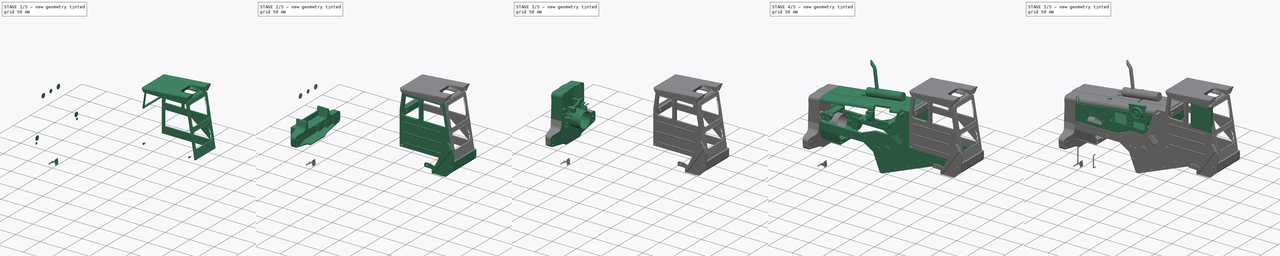
[diagram: build sequence overview — one tinted view per stage of 5, left to right]
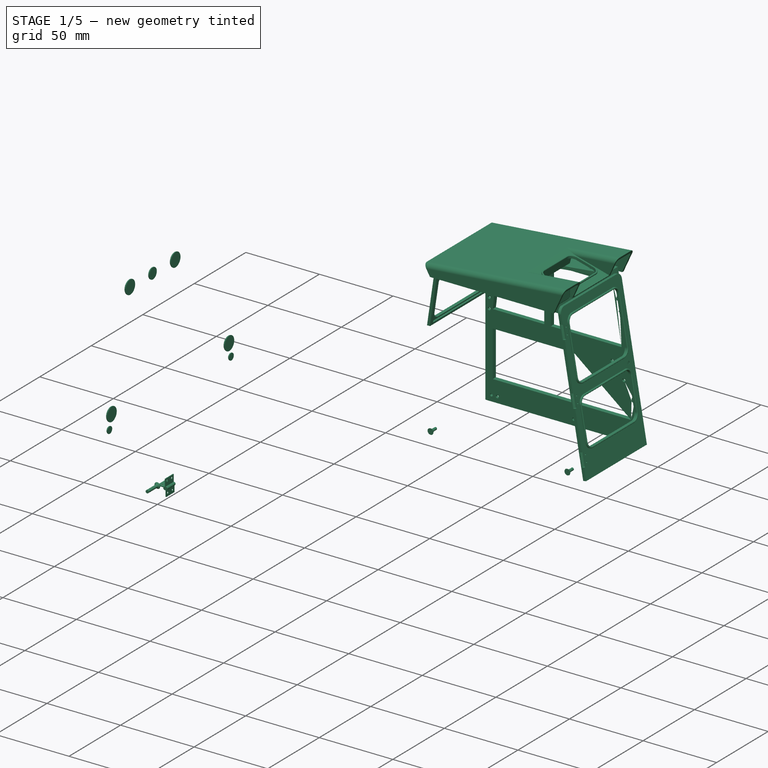
[diagram: stage 1 of 5 — iso view after this stage's code; geometry added in this stage tinted green]
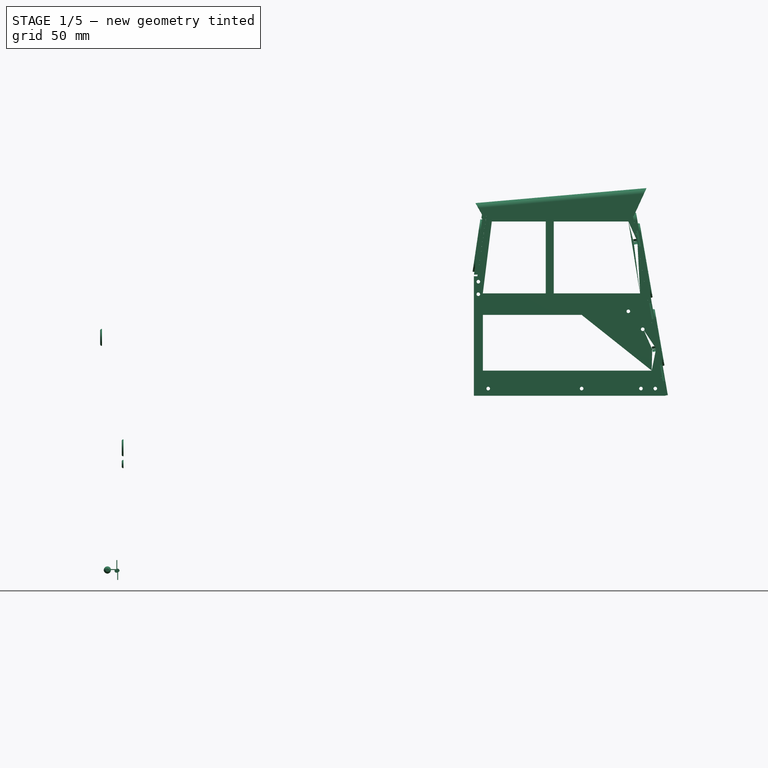
[diagram: stage 1 of 5 — front view after this stage's code; geometry added in this stage tinted green]
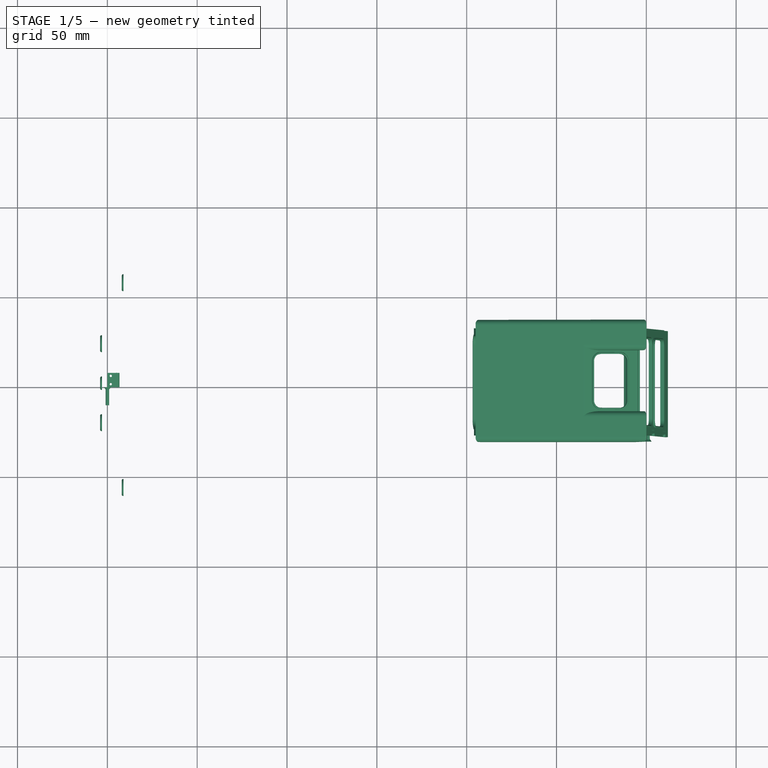
[diagram: stage 1 of 5 — top view after this stage's code; geometry added in this stage tinted green]
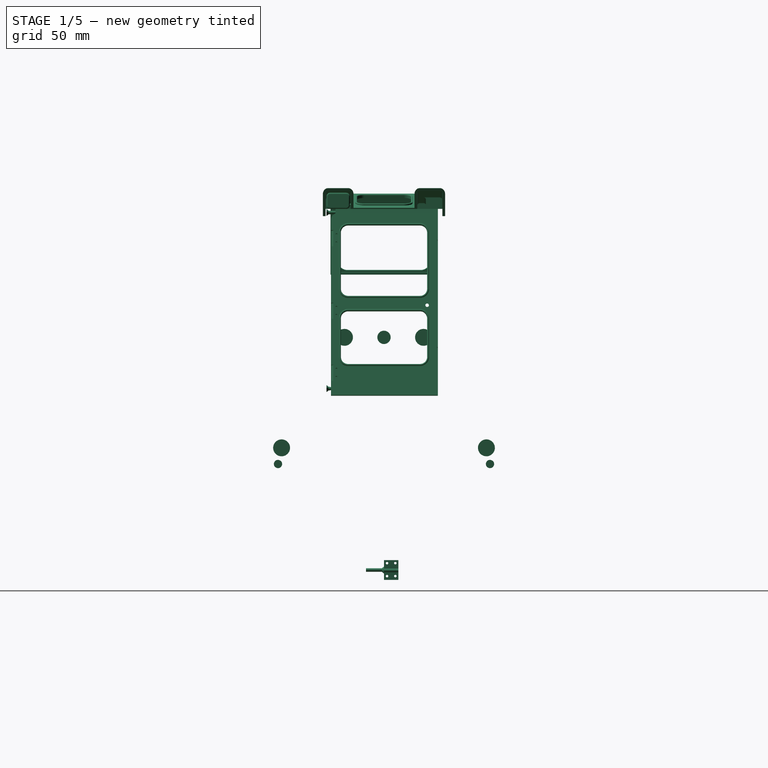
[diagram: stage 1 of 5 — right view after this stage's code; geometry added in this stage tinted green]
FCSTD DOCUMENT  (FreeCAD 0.20R)
Label: frame_00
License: All rights reserved
LicenseURL: http://en.wikipedia.org/wiki/All_rights_reserved
objects: Part::Cylinder×290, Part::Feature×281, Part::MultiFuse×156, Part::Cut×152, Part::Box×150, Part::Fillet×71, Part::Chamfer×45, Sketcher::SketchObject×39, PartDesign::Pad×22, Part::Part2DObjectPython×21, PartDesign::Body×17, PartDesign::Pocket×17, App::DocumentObjectGroup×15, Part::Cone×10, Part::Compound×7, Image::ImagePlane×6, Part::Mirroring×1, Part::Loft×1, Part::Extrusion×1
note: 1320 computed .brp shape members not serialized (recipe doc carries the construction recipe); baked Part::Feature solids carry a one-line shape summary decoded from their .brp

FEATURE [Sketcher::SketchObject] Sketch036
  AttachmentOffset = pos=(0,1.7,180.03) rot=(1,0,0;0.146608rad)
  FullyConstrained = true
  MapMode = 5
  Placement = pos=(180.03,-3.96e-14,1.7) rot=(0.603563,0.603563,0.520982;2.18101rad)
  Support = -> [YZ_Plane020]
  sketch-geometry (4):
    g0: LineSegment StartX=-29.75 StartY=164 StartZ=0 EndX=29.75 EndY=164 EndZ=0
    g1: LineSegment StartX=-29.75 StartY=164 StartZ=0 EndX=-29.75 EndY=202 EndZ=0
    g2: LineSegment StartX=29.75 StartY=164 StartZ=0 EndX=29.75 EndY=202 EndZ=0
    g3: LineSegment StartX=-29.75 StartY=202 StartZ=0 EndX=29.75 EndY=202 EndZ=0
  constraints (12):
    c: Horizontal(g0)
    c: DistanceX(g0) = -29.75
    c: DistanceY(g0) = 164
    c: Coincident(g1,g0)
    c: Vertical(g1)
    c: Coincident(g2,g0)
    c: Vertical(g2)
    c: Coincident(g3,g1)
    c: Horizontal(g3)
    c: Coincident(g2,g3)
    c: DistanceX(g2) = 29.75
    c: DistanceY(g2) = 202
FEATURE [PartDesign::Pad] Pad019
  Direction = (0.989272,-3e-16,-0.146083)
  Length = 2
  Length2 = 10
  Placement = pos=(0,0,0) rot=(0.57735,0.57735,0.57735;2.0944rad)
  Profile = -> Sketch036
  ReferenceAxis = -> Sketch036 [N_Axis]
  Refine = true
  Type = 0
FEATURE [Sketcher::SketchObject] Sketch037
  AttachmentOffset = pos=(0,1.7,180.03) rot=(1,0,0;0.146608rad)
  FullyConstrained = false
  MapMode = 5
  Placement = pos=(180.03,-3.96e-14,1.7) rot=(0.603563,0.603563,0.520982;2.18101rad)
  Support = -> [YZ_Plane020]
  sketch-geometry (8):
    g0: LineSegment StartX=-20.5 StartY=167 StartZ=0 EndX=20.5 EndY=167 EndZ=0
    g1: LineSegment StartX=-25.5 StartY=172 StartZ=0 EndX=-25.5 EndY=189.5 EndZ=0
    g2: LineSegment StartX=25.5 StartY=172 StartZ=0 EndX=25.5 EndY=189.5 EndZ=0
    g3: LineSegment StartX=-20.5 StartY=194.5 StartZ=0 EndX=20.5 EndY=194.5 EndZ=0
    g4: ArcOfCircle CenterX=-20.5 CenterY=189.5 CenterZ=0 NormalX=0 NormalY=0 NormalZ=1 AngleXU=0 Radius=5 StartAngle=1.5708 EndAngle=3.14159
    g5: ArcOfCircle CenterX=20.5 CenterY=189.5 CenterZ=0 NormalX=0 NormalY=0 NormalZ=1 AngleXU=0 Radius=5 StartAngle=-9e-16 EndAngle=1.5708
    g6: ArcOfCircle CenterX=-20.5 CenterY=172 CenterZ=0 NormalX=0 NormalY=0 NormalZ=1 AngleXU=0 Radius=5 StartAngle=3.14159 EndAngle=4.71239
    g7: ArcOfCircle CenterX=20.5 CenterY=172 CenterZ=0 NormalX=0 NormalY=0 NormalZ=1 AngleXU=0 Radius=5 StartAngle=4.71239 EndAngle=6.28319
  constraints (16):
    c: Horizontal(g0)
    c: Vertical(g1)
    c: Vertical(g2)
    c: Horizontal(g3)
    c: Tangent(g3,g4) = 1.5708
    c: Tangent(g1,g4) = 1.5708
    c: Tangent(g2,g5) = -1.5708
    c: Tangent(g3,g5) = 1.5708
    c: Tangent(g1,g6) = 1.5708
    c: Tangent(g0,g6) = -1.5708
    c: Tangent(g0,g7) = -1.5708
    c: Tangent(g2,g7) = -1.5708
    c: Radius(g4) = 5
    c: Radius(g6) = 5
    c: Radius(g5) = 5
    c: Radius(g7) = 5
FEATURE [PartDesign::Pocket] Pocket014
  BaseFeature = -> Pad019
  Direction = (-0.989272,3e-16,0.146083)
  Length = 5
  Length2 = 5
  Placement = pos=(0,0,0) rot=(0.57735,0.57735,0.57735;2.0944rad)
  Profile = -> Sketch037
  ReferenceAxis = -> Sketch037 [N_Axis]
  Refine = true
  Reversed = true
  Type = 1
FEATURE [Sketcher::SketchObject] Sketch038
  AttachmentOffset = pos=(0,1.7,180.03) rot=(1,0,0;0.146608rad)
  FullyConstrained = false
  MapMode = 5
  Placement = pos=(180.03,-3.96e-14,1.7) rot=(0.603563,0.603563,0.520982;2.18101rad)
  Support = -> [YZ_Plane020]
  sketch-geometry (16):
    g0: LineSegment StartX=-20.5 StartY=167 StartZ=0 EndX=20.5 EndY=167 EndZ=0
    g1: LineSegment StartX=-25.5 StartY=172 StartZ=0 EndX=-25.5 EndY=189.497 EndZ=0
    g2: LineSegment StartX=25.5 StartY=172 StartZ=0 EndX=25.5 EndY=189.497 EndZ=0
    g3: LineSegment StartX=-20.5 StartY=194.497 StartZ=0 EndX=20.5 EndY=194.497 EndZ=0
    g4: ArcOfCircle CenterX=-20.5 CenterY=189.497 CenterZ=0 NormalX=0 NormalY=0 NormalZ=1 AngleXU=0 Radius=5 StartAngle=1.5708 EndAngle=3.14159
    g5: ArcOfCircle CenterX=20.5 CenterY=189.497 CenterZ=0 NormalX=0 NormalY=0 NormalZ=1 AngleXU=0 Radius=5 StartAngle=8e-16 EndAngle=1.5708
    g6: ArcOfCircle CenterX=-20.5 CenterY=172 CenterZ=0 NormalX=0 NormalY=0 NormalZ=1 AngleXU=0 Radius=5 StartAngle=3.14159 EndAngle=4.71239
    g7: ArcOfCircle CenterX=20.5 CenterY=172 CenterZ=0 NormalX=0 NormalY=0 NormalZ=1 AngleXU=0 Radius=5 StartAngle=4.71239 EndAngle=6.28319
    g8: ArcOfCircle CenterX=-20.5 CenterY=189.497 CenterZ=0 NormalX=0 NormalY=0 NormalZ=1 AngleXU=0 Radius=6.00312 StartAngle=1.5708 EndAngle=3.14159
    g9: ArcOfCircle CenterX=20.5 CenterY=189.497 CenterZ=0 NormalX=0 NormalY=0 NormalZ=1 AngleXU=0 Radius=6.00312 StartAngle=-1.8e-15 EndAngle=1.5708
    g10: ArcOfCircle CenterX=20.5 CenterY=172 CenterZ=0 NormalX=0 NormalY=0 NormalZ=1 AngleXU=0 Radius=6.00312 StartAngle=4.71239 EndAngle=6.28319
    g11: ArcOfCircle CenterX=-20.5 CenterY=172 CenterZ=0 NormalX=0 NormalY=0 NormalZ=1 AngleXU=0 Radius=6.00312 StartAngle=3.14159 EndAngle=4.71239
    g12: LineSegment StartX=-26.5031 StartY=189.497 StartZ=0 EndX=-26.5031 EndY=172 EndZ=0
    g13: LineSegment StartX=-20.5 StartY=165.997 StartZ=0 EndX=20.5 EndY=165.997 EndZ=0
    g14: LineSegment StartX=26.5031 StartY=189.497 StartZ=0 EndX=26.5031 EndY=172 EndZ=0
    g15: LineSegment StartX=20.5 StartY=195.5 StartZ=0 EndX=-20.5 EndY=195.5 EndZ=0
  constraints (32):
    c: Horizontal(g0)
    c: Vertical(g1)
    c: Vertical(g2)
    c: Horizontal(g3)
    c: Tangent(g3,g4) = 1.5708
    c: Tangent(g1,g4) = 1.5708
    c: Tangent(g2,g5) = -1.5708
    c: Tangent(g3,g5) = 1.5708
    c: Tangent(g1,g6) = 1.5708
    c: Tangent(g0,g6) = -1.5708
    c: Tangent(g0,g7) = -1.5708
    c: Tangent(g2,g7) = -1.5708
    c: Radius(g4) = 5
    c: Radius(g6) = 5
    c: Radius(g5) = 5
    c: Radius(g7) = 5
    c: Coincident(g8,g4)
    c: Coincident(g9,g5)
    c: Coincident(g10,g7)
    c: Coincident(g11,g6)
    c: Vertical(g12)
    c: Coincident(g13,g10)
    c: Horizontal(g13)
    c: Vertical(g14)
    c: Horizontal(g15)
    c: Tangent(g14,g10) = 1.5708
    c: Tangent(g14,g9) = 1.5708
    c: Tangent(g15,g9) = -1.5708
    c: Tangent(g15,g8) = -1.5708
    c: Tangent(g12,g8) = -1.5708
    c: Tangent(g12,g11) = -1.5708
    c: Tangent(g13,g11) = -1.5708
FEATURE [PartDesign::Pad] Pad020
  BaseFeature = -> Pocket014
  Direction = (0.989272,-3e-16,-0.146083)
  Length = 1
  Length2 = 10
  Placement = pos=(0,0,0) rot=(0.57735,0.57735,0.57735;2.0944rad)
  Profile = -> Sketch038
  ReferenceAxis = -> Sketch038 [N_Axis]
  Refine = true
  Reversed = true
  Type = 0
FEATURE [PartDesign::Body] Body001014  label="frame-cab-rear-panel-body"
  Group = -> [Sketch036,Pad019,Sketch037,Pocket014,Sketch038,Pad020]
  Origin = -> Origin020
  Tip = -> Pad020
FEATURE [Part::Box] Box120  label="Cube"
  AttacherType = Attacher::AttachEngine3D
  Height = 29.5
  Length = 10
  Placement = pos=(205.21,-27,165.87) rot=(0,1,0;0.146608rad)
  Width = 54
FEATURE [Part::Box] Box130  label="Cube"
  AttacherType = Attacher::AttachEngine3D
  Height = 1.4
  Length = 8
  Placement = pos=(203,-30,163) rot=(0,1,0;0rad)
  Width = 60
FEATURE [Part::Box] Box131  label="Cube"
  AttacherType = Attacher::AttachEngine3D
  Height = 1
  Length = 8
  Placement = pos=(204,-30,201) rot=(0,1,0;0rad)
  Width = 60
FEATURE [Part::MultiFuse] Fusion004002009002027014004009002002008002004029002015013017006002012002031033002013006007008014029072011018024002019049062029014012006016002033001057009078004002010031016012003004006002003003002005005002020005028002  label="Fusion"
  Refine = true
  Shapes = -> [Box120,Box130,Box131]
FEATURE [Part::Cut] Cut176013009033007019019008010045003002004008006010017027003005053020098001031003007007002011005005004026009004013005002003006024015007006013  label="Cut"
  Base = -> Body001014
  Refine = true
  Tool = -> Fusion004002009002027014004009002002008002004029002015013017006002012002031033002013006007008014029072011018024002019049062029014012006016002033001057009078004002010031016012003004006002003003002005005002020005028002
FEATURE [Sketcher::SketchObject] Sketch041
  AttachmentOffset = pos=(0,97,310) rot=(1,0,0;-0.172439rad)
  FullyConstrained = false
  MapMode = 5
  Placement = pos=(310,-4.73e-14,97) rot=(-0.541193,-0.541193,-0.643599;4.28532rad)
  Support = -> [YZ_Plane022]
  sketch-geometry (6):
    g0: LineSegment StartX=-25.5 StartY=103 StartZ=0 EndX=25.5 EndY=103 EndZ=0
    g1: LineSegment StartX=29.5 StartY=99 StartZ=0 EndX=29.5 EndY=0 EndZ=0
    g2: LineSegment StartX=29.5 StartY=0 StartZ=0 EndX=-29.5 EndY=0 EndZ=0
    g3: LineSegment StartX=-29.5 StartY=0 StartZ=0 EndX=-29.5 EndY=99 EndZ=0
    g4: ArcOfCircle CenterX=-25.5 CenterY=99 CenterZ=0 NormalX=0 NormalY=0 NormalZ=1 AngleXU=0 Radius=4 StartAngle=1.5708 EndAngle=3.14159
    g5: ArcOfCircle CenterX=25.5 CenterY=99 CenterZ=0 NormalX=0 NormalY=0 NormalZ=1 AngleXU=0 Radius=4 StartAngle=8.645e-13 EndAngle=1.5708
  constraints (15):
    c: Horizontal(g0)
    c: Vertical(g1)
    c: Coincident(g1,g2)
    c: Horizontal(g2)
    c: Coincident(g2,g3)
    c: Vertical(g3)
    c: Distance(g-1,g0) = 103
    c: Distance(g-1,g1) = 29.5
    c: Distance(g-1,g3) = 29.5
    c: Tangent(g0,g4) = 1.5708
    c: Tangent(g3,g4) = 1.5708
    c: Tangent(g0,g5) = 1.5708
    c: Tangent(g1,g5) = 1.5708
    c: Radius(g4) = 4
    c: Radius(g5) = 4
FEATURE [PartDesign::Pad] Pad022
  Direction = (0.985169,-2e-16,0.171585)
  Length = 2
  Length2 = 10
  Placement = pos=(0,0,0) rot=(0.57735,0.57735,0.57735;2.0944rad)
  Profile = -> Sketch041
  ReferenceAxis = -> Sketch041 [N_Axis]
  Refine = true
  Type = 0
FEATURE [Sketcher::SketchObject] Sketch042
  AttachmentOffset = pos=(0,97,310) rot=(1,0,0;-0.172439rad)
  FullyConstrained = false
  MapMode = 5
  Placement = pos=(310,-4.73e-14,97) rot=(-0.541193,-0.541193,-0.643599;4.28532rad)
  Support = -> [YZ_Plane022]
  sketch-geometry (16):
    g0: LineSegment StartX=-20 StartY=56 StartZ=0 EndX=20 EndY=56 EndZ=0
    g1: LineSegment StartX=24 StartY=60 StartZ=0 EndX=24 EndY=92 EndZ=0
    g2: LineSegment StartX=20 StartY=96 StartZ=0 EndX=-20 EndY=96 EndZ=0
    g3: LineSegment StartX=-24 StartY=92 StartZ=0 EndX=-24 EndY=60 EndZ=0
    g4: LineSegment StartX=-20 StartY=17.5 StartZ=0 EndX=20 EndY=17.5 EndZ=0
    g5: LineSegment StartX=24 StartY=21.5 StartZ=0 EndX=24 EndY=43.5 EndZ=0
    g6: LineSegment StartX=20 StartY=47.5 StartZ=0 EndX=-20 EndY=47.5 EndZ=0
    g7: LineSegment StartX=-24 StartY=43.5 StartZ=0 EndX=-24 EndY=21.5 EndZ=0
    g8: ArcOfCircle CenterX=-20 CenterY=92 CenterZ=0 NormalX=0 NormalY=0 NormalZ=1 AngleXU=0 Radius=4 StartAngle=1.5708 EndAngle=3.14159
    g9: ArcOfCircle CenterX=20 CenterY=92 CenterZ=0 NormalX=0 NormalY=0 NormalZ=1 AngleXU=0 Radius=4 StartAngle=0 EndAngle=1.5708
    g10: ArcOfCircle CenterX=-20 CenterY=60 CenterZ=0 NormalX=0 NormalY=0 NormalZ=1 AngleXU=0 Radius=4 StartAngle=3.14159 EndAngle=4.71239
    g11: ArcOfCircle CenterX=20 CenterY=60 CenterZ=0 NormalX=0 NormalY=0 NormalZ=1 AngleXU=0 Radius=4 StartAngle=4.71239 EndAngle=6.28319
    g12: ArcOfCircle CenterX=20 CenterY=43.5 CenterZ=0 NormalX=0 NormalY=0 NormalZ=1 AngleXU=0 Radius=4 StartAngle=-9e-16 EndAngle=1.5708
    g13: ArcOfCircle CenterX=-20 CenterY=43.5 CenterZ=0 NormalX=0 NormalY=0 NormalZ=1 AngleXU=0 Radius=4 StartAngle=1.5708 EndAngle=3.14159
    g14: ArcOfCircle CenterX=-20 CenterY=21.5 CenterZ=0 NormalX=0 NormalY=0 NormalZ=1 AngleXU=0 Radius=4 StartAngle=3.14159 EndAngle=4.71239
    g15: ArcOfCircle CenterX=20 CenterY=21.5 CenterZ=0 NormalX=0 NormalY=0 NormalZ=1 AngleXU=0 Radius=4 StartAngle=4.71239 EndAngle=6.28319
  constraints (34):
    c: Horizontal(g0)
    c: Horizontal(g2)
    c: Vertical(g1)
    c: Vertical(g3)
    c: Horizontal(g4)
    c: Horizontal(g6)
    c: Vertical(g5)
    c: Vertical(g7)
    c: Tangent(g2,g8) = -1.5708
    c: Tangent(g3,g8) = -1.5708
    c: Tangent(g1,g9) = -1.5708
    c: Tangent(g2,g9) = -1.5708
    c: Tangent(g0,g10) = -1.5708
    c: Tangent(g3,g10) = -1.5708
    c: Tangent(g1,g11) = -1.5708
    c: Tangent(g0,g11) = -1.5708
    c: Tangent(g5,g12) = -1.5708
    c: Tangent(g6,g12) = -1.5708
    c: Tangent(g7,g13) = -1.5708
    c: Tangent(g6,g13) = -1.5708
    c: Tangent(g7,g14) = -1.5708
    c: Tangent(g4,g14) = -1.5708
    c: Tangent(g4,g15) = -1.5708
    c: Tangent(g5,g15) = -1.5708
    c: Radius(g14) = 4
    c: Radius(g13) = 4
    c: Radius(g12) = 4
    c: Radius(g15) = 4
    c: Distance(g-1,g7) = 24
    c: Distance(g-1,g5) = 24
    c: Radius(g10) = 4
    c: Radius(g11) = 4
    c: Radius(g9) = 4
    c: Radius(g8) = 4
FEATURE [PartDesign::Pocket] Pocket016
  BaseFeature = -> Pad022
  Direction = (-0.985169,2e-16,-0.171585)
  Length = 5
  Length2 = 5
  Placement = pos=(0,0,0) rot=(0.57735,0.57735,0.57735;2.0944rad)
  Profile = -> Sketch042
  ReferenceAxis = -> Sketch042 [N_Axis]
  Refine = true
  Reversed = true
  Type = 1
FEATURE [Sketcher::SketchObject] Sketch043
  AttachmentOffset = pos=(0,97,310) rot=(1,0,0;-0.172439rad)
  FullyConstrained = false
  MapMode = 5
  Placement = pos=(310,-4.73e-14,97) rot=(-0.541193,-0.541193,-0.643599;4.28532rad)
  Support = -> [YZ_Plane022]
  sketch-geometry (32):
    g0: LineSegment StartX=-20 StartY=56 StartZ=0 EndX=20 EndY=56 EndZ=0
    g1: LineSegment StartX=24 StartY=60 StartZ=0 EndX=24 EndY=92 EndZ=0
    g2: LineSegment StartX=20 StartY=96 StartZ=0 EndX=-20 EndY=96 EndZ=0
    g3: LineSegment StartX=-24 StartY=92 StartZ=0 EndX=-24 EndY=60 EndZ=0
    g4: LineSegment StartX=-20 StartY=17.5 StartZ=0 EndX=20 EndY=17.5 EndZ=0
    g5: LineSegment StartX=24 StartY=21.5 StartZ=0 EndX=24 EndY=43.5 EndZ=0
    g6: LineSegment StartX=20 StartY=47.5 StartZ=0 EndX=-20 EndY=47.5 EndZ=0
    g7: LineSegment StartX=-24 StartY=43.5 StartZ=0 EndX=-24 EndY=21.5 EndZ=0
    g8: ArcOfCircle CenterX=-20 CenterY=92 CenterZ=0 NormalX=0 NormalY=0 NormalZ=1 AngleXU=0 Radius=4 StartAngle=1.5708 EndAngle=3.14159
    g9: ArcOfCircle CenterX=20 CenterY=92 CenterZ=0 NormalX=0 NormalY=0 NormalZ=1 AngleXU=0 Radius=4 StartAngle=0 EndAngle=1.5708
    g10: ArcOfCircle CenterX=-20 CenterY=60 CenterZ=0 NormalX=0 NormalY=0 NormalZ=1 AngleXU=0 Radius=4 StartAngle=3.14159 EndAngle=4.71239
    g11: ArcOfCircle CenterX=20 CenterY=60 CenterZ=0 NormalX=0 NormalY=0 NormalZ=1 AngleXU=0 Radius=4 StartAngle=4.71239 EndAngle=6.28319
    g12: ArcOfCircle CenterX=20 CenterY=43.5 CenterZ=0 NormalX=0 NormalY=0 NormalZ=1 AngleXU=0 Radius=4 StartAngle=9e-16 EndAngle=1.5708
    g13: ArcOfCircle CenterX=-20 CenterY=43.5 CenterZ=0 NormalX=0 NormalY=0 NormalZ=1 AngleXU=0 Radius=4 StartAngle=1.5708 EndAngle=3.14159
    g14: ArcOfCircle CenterX=-20 CenterY=21.5 CenterZ=0 NormalX=0 NormalY=0 NormalZ=1 AngleXU=0 Radius=4 StartAngle=3.14159 EndAngle=4.71239
    g15: ArcOfCircle CenterX=20 CenterY=21.5 CenterZ=0 NormalX=0 NormalY=0 NormalZ=1 AngleXU=0 Radius=4 StartAngle=4.71239 EndAngle=6.28319
    g16: ArcOfCircle CenterX=-20 CenterY=92 CenterZ=0 NormalX=0 NormalY=0 NormalZ=1 AngleXU=0 Radius=5 StartAngle=1.5708 EndAngle=3.14159
    g17: ArcOfCircle CenterX=20 CenterY=92 CenterZ=0 NormalX=0 NormalY=0 NormalZ=1 AngleXU=0 Radius=5 StartAngle=2.92949e-07 EndAngle=1.5708
    g18: ArcOfCircle CenterX=20 CenterY=60 CenterZ=0 NormalX=0 NormalY=0 NormalZ=1 AngleXU=0 Radius=5 StartAngle=4.71239 EndAngle=6.28319
    g19: ArcOfCircle CenterX=-20 CenterY=60 CenterZ=0 NormalX=0 NormalY=0 NormalZ=1 AngleXU=0 Radius=5 StartAngle=3.14159 EndAngle=4.71239
    g20: ArcOfCircle CenterX=-20 CenterY=43.5 CenterZ=0 NormalX=0 NormalY=0 NormalZ=1 AngleXU=0 Radius=5 StartAngle=1.5708 EndAngle=3.14159
    g21: ArcOfCircle CenterX=20 CenterY=43.5 CenterZ=0 NormalX=0 NormalY=0 NormalZ=1 AngleXU=0 Radius=5 StartAngle=1.947e-12 EndAngle=1.5708
    g22: ArcOfCircle CenterX=20 CenterY=21.5 CenterZ=0 NormalX=0 NormalY=0 NormalZ=1 AngleXU=0 Radius=5 StartAngle=4.71239 EndAngle=6.28319
    g23: ArcOfCircle CenterX=-20 CenterY=21.5 CenterZ=0 NormalX=0 NormalY=0 NormalZ=1 AngleXU=0 Radius=5 StartAngle=3.14159 EndAngle=4.71239
    g24: LineSegment StartX=-25 StartY=92 StartZ=0 EndX=-25 EndY=60 EndZ=0
    g25: LineSegment StartX=25 StartY=92 StartZ=0 EndX=25 EndY=60 EndZ=0
    g26: LineSegment StartX=20 StartY=97 StartZ=0 EndX=-20 EndY=97 EndZ=0
    g27: LineSegment StartX=-20 StartY=55 StartZ=0 EndX=20 EndY=55 EndZ=0
    g28: LineSegment StartX=-20 StartY=48.5 StartZ=0 EndX=20 EndY=48.5 EndZ=0
    g29: LineSegment StartX=25 StartY=43.5 StartZ=0 EndX=25 EndY=21.5 EndZ=0
    g30: LineSegment StartX=20 StartY=16.5 StartZ=0 EndX=-20 EndY=16.5 EndZ=0
    g31: LineSegment StartX=-25 StartY=21.5 StartZ=0 EndX=-25 EndY=43.5 EndZ=0
  constraints (69):
    c: Horizontal(g0)
    c: Horizontal(g2)
    c: Vertical(g1)
    c: Vertical(g3)
    c: Horizontal(g4)
    c: Horizontal(g6)
    c: Vertical(g5)
    c: Vertical(g7)
    c: Tangent(g2,g8) = -1.5708
    c: Tangent(g3,g8) = -1.5708
    c: Tangent(g1,g9) = -1.5708
    c: Tangent(g2,g9) = -1.5708
    c: Tangent(g0,g10) = -1.5708
    c: Tangent(g3,g10) = -1.5708
    c: Tangent(g1,g11) = -1.5708
    c: Tangent(g0,g11) = -1.5708
    c: Tangent(g5,g12) = -1.5708
    c: Tangent(g6,g12) = -1.5708
    c: Tangent(g7,g13) = -1.5708
    c: Tangent(g6,g13) = -1.5708
    c: Tangent(g7,g14) = -1.5708
    c: Tangent(g4,g14) = -1.5708
    c: Tangent(g4,g15) = -1.5708
    c: Tangent(g5,g15) = -1.5708
    c: Radius(g14) = 4
    c: Radius(g13) = 4
    c: Radius(g12) = 4
    c: Radius(g15) = 4
    c: Distance(g-1,g7) = 24
    c: Distance(g-1,g5) = 24
    c: Radius(g10) = 4
    c: Radius(g11) = 4
    c: Radius(g9) = 4
    c: Radius(g8) = 4
    c: Coincident(g16,g8)
    c: Coincident(g17,g9)
    c: Coincident(g18,g11)
    c: Coincident(g19,g10)
    c: Coincident(g20,g13)
    c: Coincident(g21,g12)
    c: Coincident(g22,g15)
    c: Coincident(g23,g14)
    c: Coincident(g24,g16)
    c: Coincident(g24,g19)
    c: Vertical(g24)
    c: Tangent(g24,g16)
    c: Coincident(g25,g17)
    c: Coincident(g25,g18)
    c: Vertical(g25)
    c: Coincident(g26,g17)
    c: Coincident(g26,g16)
    c: Horizontal(g26)
    c: Tangent(g26,g16)
    c: Coincident(g27,g19)
    c: Coincident(g27,g18)
    c: Horizontal(g27)
    c: Coincident(g28,g20)
    c: Coincident(g28,g21)
    c: Horizontal(g28)
    c: Coincident(g29,g21)
    c: Coincident(g29,g22)
    c: Vertical(g29)
    c: Coincident(g30,g22)
    c: Coincident(g30,g23)
    c: Horizontal(g30)
    c: Coincident(g31,g23)
    c: Coincident(g31,g20)
    c: Vertical(g31)
    c: Tangent(g31,g20)
FEATURE [PartDesign::Pad] Pad023
  BaseFeature = -> Pocket016
  Direction = (0.985169,-2e-16,0.171585)
  Length = 3
  Length2 = 10
  Placement = pos=(0,0,0) rot=(0.57735,0.57735,0.57735;2.0944rad)
  Profile = -> Sketch043
  ReferenceAxis = -> Sketch043 [N_Axis]
  Refine = true
  Type = 0
FEATURE [Part::Feature] Fusion004002009002027014004009002002008002004029002015013017006002012002031033002013006007008014029072011018024002019049062029014012006016002033001057009078004002010031016012003004006002003003002005005002020005028040026036  label="SCREW-V-M2x5"
  Placement = pos=(208,-32,101) rot=(-1,0,0;1.5708rad)
  shape: bbox 4 x 5 x 4 mm, 6 faces (baked)
FEATURE [Part::Feature] Fusion004002009002027014004009002002008002004029002015013017006002012002031033002013006007008014029072011018024002019049062029014012006016002033001057009078004002010031016012003004006002003003002005005002020005028040026037  label="SCREW-V-M2x5"
  Placement = pos=(301,-32,101) rot=(-1,0,0;1.5708rad)
  shape: bbox 4 x 5 x 4 mm, 6 faces (baked)
FEATURE [Part::Feature] Fusion004002009002027014004009002002008002004029002015013017006002012002031033002013006007008014029072011018024002019049062029014012006016002033001057009078004002010031016012003004006002003003002005005002020005028040026038  label="SCREW-V-M2x5"
  Placement = pos=(289,-32,199) rot=(-1,0,0;1.5708rad)
  shape: bbox 4 x 5 x 4 mm, 6 faces (baked)
FEATURE [Part::Feature] Fusion004002009002027014004009002002008002004029002015013017006002012002031033002013006007008014029072011018024002019049062029014012006016002033001057009078004002010031016012003004006002003003002005005002020005028040026039  label="SCREW-V-M2x5"
  Placement = pos=(214,-32,199) rot=(-1,0,0;1.5708rad)
  shape: bbox 4 x 5 x 4 mm, 6 faces (baked)
FEATURE [Part::MultiFuse] Fusion004002009002027014004009002002008002004029002015013017006002012002031033002013006007008014029072011018024002019049062029014012006016002033001057009078004002010031016012003004006002003003002005005002020005028040026040  label="frame-cab-panel-SCREWS"
  Refine = true
  Shapes = -> [Fusion004002009002027014004009002002008002004029002015013017006002012002031033002013006007008014029072011018024002019049062029014012006016002033001057009078004002010031016012003004006002003003002005005002020005028040026036,+3 more]
FEATURE [Part::Feature] Part__Mirroring007002003002018002002002005004004002003004003003004003003003003002002002002002002002002004002001  label="frame-cab-left-panel"
  shape: bbox 107 x 3 x 104 mm, 93 faces (baked)
FEATURE [Part::Cylinder] Cylinder1492562  label="Cylinder"
  Angle = 360
  AttacherType = Attacher::AttachEngine3D
  FirstAngle = 0
  Height = 4.4
  Placement = pos=(303.27,28.5,122.83) rot=(0,1,0;1.39975rad)
  Radius = 1.5
  SecondAngle = 0
FEATURE [Part::Feature] Part__Mirroring007002003002018002002002005004004002003004003003004003003003003002002002002002002002002004002002001  label="frame-cab-left-inner-panel-base"
  shape: bbox 106 x 3 x 104 mm, 82 faces (baked)
FEATURE [Part::Cylinder] Cylinder1492563  label="Cylinder"
  Angle = 360
  AttacherType = Attacher::AttachEngine3D
  FirstAngle = 0
  Height = 4.4
  Placement = pos=(292.947,28.5,182.595) rot=(0,1,0;1.39975rad)
  Radius = 1.5
  SecondAngle = 0
FEATURE [Part::MultiFuse] Fusion004002009002027014004009002002008002004029002015013017006002012002031033002013006007008014029072011018024002019049062029014012006016002033001057009078004002010031016012003004006002003003002005005002020005028040026040002016012008003002  label="Fusion"
  Refine = true
  Shapes = -> [Cylinder1492563,Cylinder1492562]
FEATURE [Part::Cut] Cut176013009033007019019008010045003002004008006010017027003005053020098001031003007007002011005005004026009004013004003002011004011006011012003022017003021076  label="frame-cab-left-inner-panel"
  Base = -> Part__Mirroring007002003002018002002002005004004002003004003003004003003003003002002002002002002002002004002002001
  Refine = true
  Tool = -> Fusion004002009002027014004009002002008002004029002015013017006002012002031033002013006007008014029072011018024002019049062029014012006016002033001057009078004002010031016012003004006002003003002005005002020005028040026040002016012008003002
FEATURE [Part::Cylinder] Cylinder1492564  label="Cylinder"
  Angle = 360
  AttacherType = Attacher::AttachEngine3D
  FirstAngle = 0
  Height = 4.4
  Placement = pos=(302.653,24,145.205) rot=(0,1,0;1.39975rad)
  Radius = 1
  SecondAngle = 0
FEATURE [Part::Box] Box856  label="Cube"
  AttacherType = Attacher::AttachEngine3D
  Height = 7
  Length = 81.6
  Placement = pos=(211.5,-27,194) rot=(0,0,1;0rad)
  Width = 54
FEATURE [Part::Chamfer] Chamfer039025078004061
  Base = -> Box856
  Edges = 1 edges: [Edge6 r1=6.99 r2=1.2]
FEATURE [Part::Box] Box857  label="Cube"
  AttacherType = Attacher::AttachEngine3D
  Height = 4
  Length = 76
  Placement = pos=(211.5,-23,194) rot=(0,0,1;0rad)
  Width = 46
FEATURE [Part::Cut] Cut176013009033007019019008010045003002004008006010017027003005053020098001031003007007002011005005004026009004013004003002011004011006011012003022017003021078  label="Cut"
  Base = -> Chamfer039025078004061
  Refine = true
  Tool = -> Box857
FEATURE [Part::Box] Box858  label="Cube"
  AttacherType = Attacher::AttachEngine3D
  Height = 7
  Length = 72
  Placement = pos=(215.5,-23,194) rot=(0,0,1;0rad)
  Width = 46
FEATURE [Part::Cut] Cut176013009033007019019008010045003002004008006010017027003005053020098001031003007007002011005005004026009004013004003002011004011006011012003022017003021079  label="Cut"
  Base = -> Cut176013009033007019019008010045003002004008006010017027003005053020098001031003007007002011005005004026009004013004003002011004011006011012003022017003021078
  Refine = true
  Tool = -> Box858
FEATURE [Part::Feature] Fusion004002009002027014004009002002008002004029002015013017006002012002031033002013006007008014029072011018024002019049062029014012006016002033001057009078004002010031016012003004006002003003002005005002020005028040026040002016012008003002002  label="SCREW-V-M2x8"
  Placement = pos=(285,-30,198) rot=(-1,0,0;1.5708rad)
  shape: bbox 4 x 8 x 4 mm, 6 faces (baked)
FEATURE [Part::Feature] Fusion004002009002027014004009002002008002004029002015013017006002012002031033002013006007008014029072011018024002019049062029014012006016002033001057009078004002010031016012003004006002003003002005005002020005028040026040002016012008003002003  label="SCREW-V-M2x8"
  Placement = pos=(253,-30,198) rot=(-1,0,0;1.5708rad)
  shape: bbox 4 x 8 x 4 mm, 6 faces (baked)
FEATURE [Part::Feature] Fusion004002009002027014004009002002008002004029002015013017006002012002031033002013006007008014029072011018024002019049062029014012006016002033001057009078004002010031016012003004006002003003002005005002020005028040026040002016012008003002004  label="SCREW-V-M2x8"
  Placement = pos=(218,-30,198) rot=(-1,0,0;1.5708rad)
  shape: bbox 4 x 8 x 4 mm, 6 faces (baked)
FEATURE [Part::Feature] Fusion004002009002027014004009002002008002004029002015013017006002012002031033002013006007008014029072011018024002019049062029014012006016002033001057009078004002010031016012003004006002003003002005005002020005028040026040002016012008003002005  label="SCREW-V-M2x8"
  Placement = pos=(285,30,198) rot=(1,0,0;1.5708rad)
  shape: bbox 4 x 8 x 4 mm, 6 faces (baked)
FEATURE [Part::Feature] Fusion004002009002027014004009002002008002004029002015013017006002012002031033002013006007008014029072011018024002019049062029014012006016002033001057009078004002010031016012003004006002003003002005005002020005028040026040002016012008003002006  label="SCREW-V-M2x8"
  Placement = pos=(253,30,198) rot=(1,0,0;1.5708rad)
  shape: bbox 4 x 8 x 4 mm, 6 faces (baked)
FEATURE [Part::Feature] Fusion004002009002027014004009002002008002004029002015013017006002012002031033002013006007008014029072011018024002019049062029014012006016002033001057009078004002010031016012003004006002003003002005005002020005028040026040002016012008003002007  label="SCREW-V-M2x8"
  Placement = pos=(218,30,198) rot=(1,0,0;1.5708rad)
  shape: bbox 4 x 8 x 4 mm, 6 faces (baked)
FEATURE [Part::MultiFuse] Fusion004002009002027014004009002002008002004029002015013017006002012002031033002013006007008014029072011018024002019049062029014012006016002033001057009078004002010031016012003004006002003003002005005002020005028040026040002016012008003002008  label="Fusion"
  Refine = true
  Shapes = -> [Fusion004002009002027014004009002002008002004029002015013017006002012002031033002013006007008014029072011018024002019049062029014012006016002033001057009078004002010031016012003004006002003003002005005002020005028040026040002016012008003002007,+5 more]
FEATURE [Part::Box] Box859  label="Cube"
  AttacherType = Attacher::AttachEngine3D
  Height = 0.5
  Length = 5
  Width = 8
FEATURE [Part::Box] Box860  label="Cube"
  AttacherType = Attacher::AttachEngine3D
  Height = 5
  Length = 0.5
  Placement = pos=(5,0,0.5) rot=(0,0,1;0rad)
  Width = 8
FEATURE [Part::Cylinder] Cylinder1492565  label="Cylinder"
  Angle = 360
  AttacherType = Attacher::AttachEngine3D
  FirstAngle = 0
  Height = 0.5
  Placement = pos=(1.8,1.7,0) rot=(0,0,1;0rad)
  Radius = 0.7
  SecondAngle = 0
FEATURE [Part::Cylinder] Cylinder1492566  label="Cylinder"
  Angle = 360
  AttacherType = Attacher::AttachEngine3D
  FirstAngle = 0
  Height = 0.5
  Placement = pos=(1.8,6.3,0) rot=(0,0,1;0rad)
  Radius = 0.7
  SecondAngle = 0
FEATURE [Part::Cylinder] Cylinder1492567  label="Cylinder"
  Angle = 360
  AttacherType = Attacher::AttachEngine3D
  FirstAngle = 0
  Height = 8
  Placement = pos=(5.75,0,-0.25) rot=(-1,0,0;1.5708rad)
  Radius = 1
  SecondAngle = 0
FEATURE [Part::Cylinder] Cylinder1492568  label="Cylinder"
  Angle = 360
  AttacherType = Attacher::AttachEngine3D
  FirstAngle = 0
  Height = 0.5
  Placement = pos=(5.5,1.7,3.8) rot=(0,-1,0;1.5708rad)
  Radius = 0.7
  SecondAngle = 0
FEATURE [Part::Cylinder] Cylinder1492569  label="Cylinder"
  Angle = 360
  AttacherType = Attacher::AttachEngine3D
  FirstAngle = 0
  Height = 0.5
  Placement = pos=(5.5,6.3,3.8) rot=(0,-1,0;1.5708rad)
  Radius = 0.7
  SecondAngle = 0
FEATURE [Part::MultiFuse] Fusion004002009002027014004009002002008002004029002015013017006002012002031033002013006007008014029072011018024002019049062029014012006016002033001057009078004002010031016012003004006002003003002005005002020005028040026040002016012008003002009  label="Fusion"
  Refine = true
  Shapes = -> [Cylinder1492565,Cylinder1492566]
FEATURE [Part::Cut] Cut176013009033007019019008010045003002004008006010017027003005053020098001031003007007002011005005004026009004013004003002011004011006011012003022017003021081  label="Cut"
  Base = -> Box859
  Refine = true
  Tool = -> Fusion004002009002027014004009002002008002004029002015013017006002012002031033002013006007008014029072011018024002019049062029014012006016002033001057009078004002010031016012003004006002003003002005005002020005028040026040002016012008003002009
FEATURE [Part::MultiFuse] Fusion004002009002027014004009002002008002004029002015013017006002012002031033002013006007008014029072011018024002019049062029014012006016002033001057009078004002010031016012003004006002003003002005005002020005028040026040002016012008003002010  label="Fusion"
  Refine = true
  Shapes = -> [Cylinder1492568,Cylinder1492569]
FEATURE [Part::Cut] Cut176013009033007019019008010045003002004008006010017027003005053020098001031003007007002011005005004026009004013004003002011004011006011012003022017003021082  label="Cut"
  Base = -> Box860
  Refine = true
  Tool = -> Fusion004002009002027014004009002002008002004029002015013017006002012002031033002013006007008014029072011018024002019049062029014012006016002033001057009078004002010031016012003004006002003003002005005002020005028040026040002016012008003002010
FEATURE [Part::Compound] Compound003002002003005  label="HINGE-90d-INT-8x10mm"
  Links = -> [Cylinder1492567,Cut176013009033007019019008010045003002004008006010017027003005053020098001031003007007002011005005004026009004013004003002011004011006011012003022017003021081,Cut176013009033007019019008010045003002004008006010017027003005053020098001031003007007002011005005004026009004013004003002011004011006011012003022017003021082]
FEATURE [Part::Box] Box861  label="Cube"
  AttacherType = Attacher::AttachEngine3D
  Height = 0.5
  Length = 5
  Width = 8
FEATURE [Part::Cylinder] Cylinder1492570  label="Cylinder"
  Angle = 360
  AttacherType = Attacher::AttachEngine3D
  FirstAngle = 0
  Height = 0.5
  Placement = pos=(2,1.7,0) rot=(0,0,1;0rad)
  Radius = 0.7
  SecondAngle = 0
FEATURE [Part::Cylinder] Cylinder1492571  label="Cylinder"
  Angle = 360
  AttacherType = Attacher::AttachEngine3D
  FirstAngle = 0
  Height = 0.5
  Placement = pos=(2,6.3,0) rot=(0,0,1;0rad)
  Radius = 0.7
  SecondAngle = 0
FEATURE [Part::MultiFuse] Fusion004002009002027014004009002002008002004029002015013017006002012002031033002013006007008014029072011018024002019049062029014012006016002033001057009078004002010031016012003004006002003003002005005002020005028040026040002016012008003002011  label="Fusion"
  Refine = true
  Shapes = -> [Cylinder1492570,Cylinder1492571]
FEATURE [Part::Cylinder] Cylinder1492572  label="Cylinder"
  Angle = 360
  AttacherType = Attacher::AttachEngine3D
  FirstAngle = 0
  Height = 8
  Placement = pos=(5,0,-0.5) rot=(-1,0,0;1.5708rad)
  Radius = 1
  SecondAngle = 0
FEATURE [Part::Box] Box862  label="Cube"
  AttacherType = Attacher::AttachEngine3D
  Height = 5
  Length = 0.5
  Placement = pos=(5.5,0,-5.5) rot=(0,0,1;0rad)
  Width = 8
FEATURE [Part::Cylinder] Cylinder1492573  label="Cylinder"
  Angle = 360
  AttacherType = Attacher::AttachEngine3D
  FirstAngle = 0
  Height = 0.5
  Placement = pos=(5.5,1.7,-3.4) rot=(0,1,0;1.5708rad)
  Radius = 0.7
  SecondAngle = 0
FEATURE [Part::Cylinder] Cylinder1492574  label="Cylinder"
  Angle = 360
  AttacherType = Attacher::AttachEngine3D
  FirstAngle = 0
  Height = 0.5
  Placement = pos=(5.5,6.3,-3.4) rot=(0,1,0;1.5708rad)
  Radius = 0.7
  SecondAngle = 0
FEATURE [Part::MultiFuse] Fusion004002009002027014004009002002008002004029002015013017006002012002031033002013006007008014029072011018024002019049062029014012006016002033001057009078004002010031016012003004006002003003002005005002020005028040026040002016012008003002012  label="Fusion"
  Refine = true
  Shapes = -> [Cylinder1492573,Cylinder1492574]
FEATURE [Part::Cut] Cut176013009033007019019008010045003002004008006010017027003005053020098001031003007007002011005005004026009004013004003002011004011006011012003022017003021083  label="Cut"
  Base = -> Box861
  Refine = true
  Tool = -> Fusion004002009002027014004009002002008002004029002015013017006002012002031033002013006007008014029072011018024002019049062029014012006016002033001057009078004002010031016012003004006002003003002005005002020005028040026040002016012008003002011
FEATURE [Part::Cut] Cut176013009033007019019008010045003002004008006010017027003005053020098001031003007007002011005005004026009004013004003002011004011006011012003022017003021084  label="Cut"
  Base = -> Box862
  Refine = true
  Tool = -> Fusion004002009002027014004009002002008002004029002015013017006002012002031033002013006007008014029072011018024002019049062029014012006016002033001057009078004002010031016012003004006002003003002005005002020005028040026040002016012008003002012
FEATURE [Part::Compound] Compound003002002003006  label="HINGE-90d-EXT-8x10mm"
  Links = -> [Cylinder1492572,Cut176013009033007019019008010045003002004008006010017027003005053020098001031003007007002011005005004026009004013004003002011004011006011012003022017003021083,Cut176013009033007019019008010045003002004008006010017027003005053020098001031003007007002011005005004026009004013004003002011004011006011012003022017003021084]
FEATURE [Part::Feature] Compound003002002003006001  label="HINGE-90d-EXT-8x10mm"
  Placement = pos=(296.084,-24.4503,188.549) rot=(-0.540459,0.54079,-0.644554;1.99606rad)
  shape: bbox 7.302 x 6.004 x 8.927 mm, 19 faces, 3 solids (baked)
FEATURE [Part::Feature] Compound003002002003006002  label="HINGE-90d-EXT-8x10mm"
  Placement = pos=(303.397,-24.4278,148.251) rot=(-0.540459,0.54079,-0.644554;1.99606rad)
  shape: bbox 7.302 x 6.004 x 8.927 mm, 19 faces, 3 solids (baked)
FEATURE [Part::Feature] Compound003002002003006003  label="HINGE-90d-EXT-8x10mm"
  Placement = pos=(309.511,-24.4085,113.783) rot=(-0.53886,0.539193,-0.647225;1.99229rad)
  shape: bbox 7.35 x 6.004 x 8.958 mm, 19 faces, 3 solids (baked)
FEATURE [Part::Cylinder] Cylinder1492575  label="Cylinder"
  Angle = 360
  AttacherType = Attacher::AttachEngine3D
  FirstAngle = 0
  Height = 4.4
  Placement = pos=(301.6,-26.5,146.2) rot=(0,1,0;1.39975rad)
  Radius = 0.5
  SecondAngle = 0
FEATURE [Part::Cylinder] Cylinder1492576  label="Cylinder"
  Angle = 360
  AttacherType = Attacher::AttachEngine3D
  FirstAngle = 0
  Height = 4.4
  Placement = pos=(302.3,-26.5,141.7) rot=(0,1,0;1.39975rad)
  Radius = 0.5
  SecondAngle = 0
FEATURE [Part::Cylinder] Cylinder1492577  label="Cylinder"
  Angle = 360
  AttacherType = Attacher::AttachEngine3D
  FirstAngle = 0
  Height = 9
  Placement = pos=(304.377,-29.425,139.798) rot=(0,-1,0;0.174533rad)
  Radius = 1.3
  SecondAngle = 0
FEATURE [Part::Cylinder] Cylinder1492578  label="Cylinder"
  Angle = 360
  AttacherType = Attacher::AttachEngine3D
  FirstAngle = 0
  Height = 9
  Placement = pos=(310.455,-29.425,105.329) rot=(0,-1,0;0.174533rad)
  Radius = 1.3
  SecondAngle = 0
FEATURE [Part::Cylinder] Cylinder1492579  label="Cylinder"
  Angle = 360
  AttacherType = Attacher::AttachEngine3D
  FirstAngle = 0
  Height = 9
  Placement = pos=(297.257,-29.425,180.175) rot=(0,-1,0;0.174533rad)
  Radius = 1.3
  SecondAngle = 0
FEATURE [Part::Cylinder] Cylinder1492580  label="Cylinder"
  Angle = 360
  AttacherType = Attacher::AttachEngine3D
  FirstAngle = 0
  Height = 4.4
  Placement = pos=(294.621,-26.5,186.602) rot=(0,1,0;1.39975rad)
  Radius = 0.5
  SecondAngle = 0
FEATURE [Part::Cylinder] Cylinder1492581  label="Cylinder"
  Angle = 360
  AttacherType = Attacher::AttachEngine3D
  FirstAngle = 0
  Height = 4.4
  Placement = pos=(295.404,-26.5,182.069) rot=(0,1,0;1.39975rad)
  Radius = 0.5
  SecondAngle = 0
FEATURE [Part::Cylinder] Cylinder1492582  label="Cylinder"
  Angle = 360
  AttacherType = Attacher::AttachEngine3D
  FirstAngle = 0
  Height = 4.4
  Placement = pos=(307.557,-26.5,111.711) rot=(0,1,0;1.39975rad)
  Radius = 0.5
  SecondAngle = 0
FEATURE [Part::Cylinder] Cylinder1492583  label="Cylinder"
  Angle = 360
  AttacherType = Attacher::AttachEngine3D
  FirstAngle = 0
  Height = 4.4
  Placement = pos=(308.34,-26.5,107.178) rot=(0,1,0;1.39975rad)
  Radius = 0.5
  SecondAngle = 0
FEATURE [Part::MultiFuse] Fusion004002009002027014004009002002008002004029002015013017006002012002031033002013006007008014029072011018024002019049062029014012006016002033001057009078004002010031016012003004006002003003002005005002020005028040026040002016012008003002013  label="Fusion"
  Refine = true
  Shapes = -> [Cylinder1492575,Cylinder1492576,Cylinder1492577,Cylinder1492578,Cylinder1492579,Cylinder1492580,Cylinder1492581,Cylinder1492582,Cylinder1492583]
FEATURE [Sketcher::SketchObject] Sketch050
  AttachmentOffset = pos=(0,97,310) rot=(1,0,0;-0.172439rad)
  FullyConstrained = false
  MapMode = 5
  Placement = pos=(310,-4.73e-14,97) rot=(-0.541193,-0.541193,-0.643599;4.28532rad)
  Support = -> [YZ_Plane022]
  sketch-geometry (4):
    g0: LineSegment StartX=26 StartY=13 StartZ=0 EndX=26 EndY=100 EndZ=0
    g1: LineSegment StartX=-26 StartY=100 StartZ=0 EndX=-26 EndY=13 EndZ=0
    g2: LineSegment StartX=-26 StartY=13 StartZ=0 EndX=26 EndY=13 EndZ=0
    g3: LineSegment StartX=26 StartY=100 StartZ=0 EndX=-26 EndY=100 EndZ=0
  constraints (4):
    c: Vertical(g0)
    c: Vertical(g1)
    c: Horizontal(g2)
    c: Horizontal(g3)
FEATURE [PartDesign::Pocket] Pocket017
  BaseFeature = -> Pad023
  Direction = (-0.985169,2e-16,-0.171585)
  Length = 1
  Length2 = 5
  Placement = pos=(0,0,0) rot=(0.57735,0.57735,0.57735;2.0944rad)
  Profile = -> Sketch050
  ReferenceAxis = -> Sketch050 [N_Axis]
  Refine = true
  Reversed = true
  Type = 0
FEATURE [PartDesign::Body] Body001016  label="frame-cab-front-door-body"
  Group = -> [Sketch041,Pad022,Sketch042,Pocket016,Sketch043,Pad023,Sketch050,Pocket017]
  Origin = -> Origin022
  Tip = -> Pocket017
FEATURE [Part::Cone] Cone008  label="Cone"
  Angle = 360
  AttacherType = Attacher::AttachEngine3D
  Height = 1
  Placement = pos=(302.653,24,145.205) rot=(0,1,0;1.39975rad)
  Radius1 = 2
  Radius2 = 1
FEATURE [Part::MultiFuse] Fusion004002009002027014004009002002008002004029002015013017006002012002031033002013006007008014029072011018024002019049062029014012006016002033001057009078004002010031016012003004006002003003002005005002020005028040026040002016012008003002014  label="Fusion"
  Placement = pos=(-0.5,0,2) rot=(0,0,1;0rad)
  Refine = true
  Shapes = -> [Cylinder1492564,Cone008]
FEATURE [Part::Cylinder] Cylinder1492584  label="Cylinder"
  Angle = 360
  AttacherType = Attacher::AttachEngine3D
  FirstAngle = 0
  Height = 3.9
  Placement = pos=(303.27,28.5,122.83) rot=(0,1,0;1.39975rad)
  Radius = 1.5
  SecondAngle = 0
FEATURE [Part::Cylinder] Cylinder1492585  label="Cylinder"
  Angle = 360
  AttacherType = Attacher::AttachEngine3D
  FirstAngle = 0
  Height = 3.9
  Placement = pos=(292.947,28.5,182.595) rot=(0,1,0;1.39975rad)
  Radius = 1.5
  SecondAngle = 0
FEATURE [Part::MultiFuse] Fusion004002009002027014004009002002008002004029002015013017006002012002031033002013006007008014029072011018024002019049062029014012006016002033001057009078004002010031016012003004006002003003002005005002020005028040026040002016012008003002015  label="Fusion"
  Placement = pos=(0,-0.75,0) rot=(0,0,1;0rad)
  Refine = true
  Shapes = -> [Cylinder1492585,Cylinder1492584]
FEATURE [Part::Box] Box863  label="Cube"
  AttacherType = Attacher::AttachEngine3D
  Height = 0.5
  Length = 5
  Width = 8
FEATURE [Part::Box] Box864  label="Cube"
  AttacherType = Attacher::AttachEngine3D
  Height = 5
  Length = 0.5
  Placement = pos=(5.5,0,-5.5) rot=(0,0,1;0rad)
  Width = 8
FEATURE [Part::Cylinder] Cylinder1492586  label="Cylinder"
  Angle = 360
  AttacherType = Attacher::AttachEngine3D
  FirstAngle = 0
  Height = 0.5
  Placement = pos=(2,1.7,0) rot=(0,0,1;0rad)
  Radius = 0.7
  SecondAngle = 0
FEATURE [Part::Cylinder] Cylinder1492587  label="Cylinder"
  Angle = 360
  AttacherType = Attacher::AttachEngine3D
  FirstAngle = 0
  Height = 0.5
  Placement = pos=(2,6.3,0) rot=(0,0,1;0rad)
  Radius = 0.7
  SecondAngle = 0
FEATURE [Part::Cylinder] Cylinder1492588  label="Cylinder"
  Angle = 360
  AttacherType = Attacher::AttachEngine3D
  FirstAngle = 0
  Height = 8
  Placement = pos=(5,0,-0.5) rot=(-1,0,0;1.5708rad)
  Radius = 1
  SecondAngle = 0
FEATURE [Part::Cylinder] Cylinder1492589  label="Cylinder"
  Angle = 360
  AttacherType = Attacher::AttachEngine3D
  FirstAngle = 0
  Height = 0.5
  Placement = pos=(5.5,1.7,-3.4) rot=(0,1,0;1.5708rad)
  Radius = 0.7
  SecondAngle = 0
FEATURE [Part::Cylinder] Cylinder1492590  label="Cylinder"
  Angle = 360
  AttacherType = Attacher::AttachEngine3D
  FirstAngle = 0
  Height = 0.5
  Placement = pos=(5.5,6.3,-3.4) rot=(0,1,0;1.5708rad)
  Radius = 0.7
  SecondAngle = 0
FEATURE [Part::MultiFuse] Fusion004002009002027014004009002002008002004029002015013017006002012002031033002013006007008014029072011018024002019049062029014012006016002033001057009078004002010031016012003004006002003003002005005002020005028040026040002016012008003002016  label="Fusion"
  Refine = true
  Shapes = -> [Cylinder1492586,Cylinder1492587]
FEATURE [Part::Cut] Cut176013009033007019019008010045003002004008006010017027003005053020098001031003007007002011005005004026009004013004003002011004011006011012003022017003021088  label="Cut"
  Base = -> Box863
  Refine = true
  Tool = -> Fusion004002009002027014004009002002008002004029002015013017006002012002031033002013006007008014029072011018024002019049062029014012006016002033001057009078004002010031016012003004006002003003002005005002020005028040026040002016012008003002016
FEATURE [Part::MultiFuse] Fusion004002009002027014004009002002008002004029002015013017006002012002031033002013006007008014029072011018024002019049062029014012006016002033001057009078004002010031016012003004006002003003002005005002020005028040026040002016012008003002017  label="Fusion"
  Refine = true
  Shapes = -> [Cylinder1492589,Cylinder1492590]
FEATURE [Part::Cut] Cut176013009033007019019008010045003002004008006010017027003005053020098001031003007007002011005005004026009004013004003002011004011006011012003022017003021089  label="Cut"
  Base = -> Box864
  Placement = pos=(0,0,-1) rot=(0,-1,0;0.148353rad)
  Refine = true
  Tool = -> Fusion004002009002027014004009002002008002004029002015013017006002012002031033002013006007008014029072011018024002019049062029014012006016002033001057009078004002010031016012003004006002003003002005005002020005028040026040002016012008003002017
FEATURE [Part::Compound] Compound003002002003006004  label="HINGE-90d-EXT-8x10mm"
  Links = -> [Cylinder1492588,Cut176013009033007019019008010045003002004008006010017027003005053020098001031003007007002011005005004026009004013004003002011004011006011012003022017003021088,Cut176013009033007019019008010045003002004008006010017027003005053020098001031003007007002011005005004026009004013004003002011004011006011012003022017003021089]
  Placement = pos=(208.68,-20,195.65) rot=(0,-1,0;1.42244rad)
FEATURE [Part::Feature] Compound003002002003006004001  label="HINGE-90d-EXT-8x10mm"
  Placement = pos=(208.68,12,195.65) rot=(0,-1,0;1.42244rad)
  shape: bbox 6.984 x 8 x 5.871 mm, 19 faces, 3 solids (baked)
FEATURE [Part::Box] Box865  label="Cube"
  AttacherType = Attacher::AttachEngine3D
  Height = 18
  Length = 95
  Placement = pos=(205,-34,197) rot=(0,0,1;0rad)
  Width = 68
FEATURE [Part::Box] Box866  label="Cube"
  AttacherType = Attacher::AttachEngine3D
  Height = 13.5
  Length = 102
  Placement = pos=(202,-34,204) rot=(0,-1,0;0.087266rad)
  Width = 68
FEATURE [Part::Cut] Cut176013009033007019019008010045003002004008006010017027003005053020098001031003007007002011005005004026009004013004003002011004011006011012003022017003021090  label="Cut"
  Base = -> Box865
  Refine = true
  Tool = -> Box866
FEATURE [Part::Box] Box867  label="Cube"
  AttacherType = Attacher::AttachEngine3D
  Height = 15.5
  Length = 50
  Placement = pos=(258,-17,211.5) rot=(0,1,0;0.261799rad)
  Width = 34
FEATURE [Part::Chamfer] Chamfer039025078004062
  Base = -> Cut176013009033007019019008010045003002004008006010017027003005053020098001031003007007002011005005004026009004013004003002011004011006011012003022017003021090
  Edges = 1 edges: [Edge4 r1=7 r2=4]
FEATURE [Part::Box] Box868  label="Cube"
  AttacherType = Attacher::AttachEngine3D
  Height = 4.5
  Length = 95
  Placement = pos=(205,-32.5,196.5) rot=(0,0,1;0rad)
  Width = 65
FEATURE [Part::Chamfer] Chamfer039025078004063
  Base = -> Chamfer039025078004062
  Edges = 1 edges: [Edge15 r1=7 r2=15.3]
FEATURE [Part::Cut] Cut176013009033007019019008010045003002004008006010017027003005053020098001031003007007002011005005004026009004013004003002011004011006011012003022017003021091  label="Cut"
  Base = -> Chamfer039025078004063
  Refine = true
  Tool = -> Box867
FEATURE [Part::Cut] Cut176013009033007019019008010045003002004008006010017027003005053020098001031003007007002011005005004026009004013004003002011004011006011012003022017003021092  label="Cut"
  Base = -> Cut176013009033007019019008010045003002004008006010017027003005053020098001031003007007002011005005004026009004013004003002011004011006011012003022017003021091
  Refine = true
  Tool = -> Box868
FEATURE [Part::Cut] Cut176013009033007019019008010045003002004008006010017027003005053020098001031003007007002011005005004026009004013004003002011004011006011012003022017003021093  label="Cut"
  Base = -> Body001016
  Refine = true
  Tool = -> Fusion004002009002027014004009002002008002004029002015013017006002012002031033002013006007008014029072011018024002019049062029014012006016002033001057009078004002010031016012003004006002003003002005005002020005028040026040002016012008003002013
FEATURE [Part::Fillet] Fillet001006007031015002010024020010005025  label="Fillet"
  Base = -> Cut176013009033007019019008010045003002004008006010017027003005053020098001031003007007002011005005004026009004013004003002011004011006011012003022017003021093
  Edges = 16 edges r=0.4: [Edge30,Edge50,Edge55,Edge59,Edge63,Edge69,Edge76,Edge78,Edge80,Edge82,Edge84,Edge86,Edge95,Edge97,Edge99,Edge101]
FEATURE [Part::Cut] Cut176013009033007019019008010045003002004008006010017027003005053020098001031003007007002011005005004026009004013004003002011004011006011012003022017003021094  label="Cut"
  Base = -> Fillet001006007031015002010024020010005025
  Refine = true
  Tool = -> Fusion004002009002027014004009002002008002004029002015013017006002012002031033002013006007008014029072011018024002019049062029014012006016002033001057009078004002010031016012003004006002003003002005005002020005028040026040002016012008003002015
FEATURE [Part::Cut] Cut176013009033007019019008010045003002004008006010017027003005053020098001031003007007002011005005004026009004013004003002011004011006011012003022017003021095  label="frame-cab-front-door"
  Base = -> Cut176013009033007019019008010045003002004008006010017027003005053020098001031003007007002011005005004026009004013004003002011004011006011012003022017003021094
  Refine = true
  Tool = -> Fusion004002009002027014004009002002008002004029002015013017006002012002031033002013006007008014029072011018024002019049062029014012006016002033001057009078004002010031016012003004006002003003002005005002020005028040026040002016012008003002014
FEATURE [Part::Box] Box869  label="Cube"
  AttacherType = Attacher::AttachEngine3D
  Height = 10
  Length = 43
  Placement = pos=(258,-32.5,201) rot=(0,0,1;0rad)
  Width = 14
FEATURE [Part::Box] Box870  label="Cube"
  AttacherType = Attacher::AttachEngine3D
  Height = 13.5
  Length = 100
  Placement = pos=(202,-34,202.5) rot=(0,-1,0;0.087266rad)
  Width = 16
FEATURE [Part::Box] Box874  label="Cube"
  AttacherType = Attacher::AttachEngine3D
  Height = 15.8
  Length = 21
  Placement = pos=(266,-16,194) rot=(0,1,0;0.261799rad)
  Width = 32
FEATURE [Part::Fillet] Fillet001006007031015002010024020010005027002  label="Fillet"
  Base = -> Box874
  Edges = 4 edges r=5: [Edge1,Edge3,Edge5,Edge7]
FEATURE [Part::Box] Box876  label="Cube"
  AttacherType = Attacher::AttachEngine3D
  Height = 16.5
  Length = 95
  Placement = pos=(205,-32.5,184.5) rot=(0,0,1;0rad)
  Width = 65
FEATURE [Part::Cut] Cut176013009033007019019008010045003002004008006010017027003005053020098001031003007007002011005005004026009004013004003002011004011006011012003022017003021098  label="Cut"
  Base = -> Fillet001006007031015002010024020010005027002
  Refine = true
  Tool = -> Box876
FEATURE [Part::Cylinder] Cylinder1492593  label="Cylinder"
  Angle = 360
  AttacherType = Attacher::AttachEngine3D
  FirstAngle = 0
  Height = 9
  Placement = pos=(209.85,-11.5,200.4) rot=(1,0,0;1.5708rad)
  Radius = 1.3
  SecondAngle = 0
FEATURE [Part::Cylinder] Cylinder1492594  label="Cylinder"
  Angle = 360
  AttacherType = Attacher::AttachEngine3D
  FirstAngle = 0
  Height = 4.4
  Placement = pos=(208,-13.7,197.75) rot=(0,1,0;1.71042rad)
  Radius = 0.5
  SecondAngle = 0
FEATURE [Part::Cylinder] Cylinder1492595  label="Cylinder"
  Angle = 360
  AttacherType = Attacher::AttachEngine3D
  FirstAngle = 0
  Height = 4.4
  Placement = pos=(208,-18.3,197.75) rot=(0,1,0;1.71042rad)
  Radius = 0.5
  SecondAngle = 0
FEATURE [Part::Cylinder] Cylinder1492596  label="Cylinder"
  Angle = 360
  AttacherType = Attacher::AttachEngine3D
  FirstAngle = 0
  Height = 1.5
  Placement = pos=(213.05,-13.7,201) rot=(0,1,0;0rad)
  Radius = 1
  SecondAngle = 0
FEATURE [Part::Cylinder] Cylinder1492597  label="Cylinder"
  Angle = 360
  AttacherType = Attacher::AttachEngine3D
  FirstAngle = 0
  Height = 1.5
  Placement = pos=(213.05,-18.3,201) rot=(0,1,0;0rad)
  Radius = 1
  SecondAngle = 0
FEATURE [Part::Box] Box879  label="Cube"
  AttacherType = Attacher::AttachEngine3D
  Height = 0.8
  Length = 6.3
  Placement = pos=(209,-20.3,201) rot=(0,1,0;0rad)
  Width = 8.6
FEATURE [Part::Cylinder] Cylinder1492598  label="Cylinder"
  Angle = 360
  AttacherType = Attacher::AttachEngine3D
  FirstAngle = 0
  Height = 5
  Placement = pos=(213.05,-13.7,197) rot=(0,1,0;0rad)
  Radius = 0.5
  SecondAngle = 0
FEATURE [Part::Cylinder] Cylinder1492599  label="Cylinder"
  Angle = 360
  AttacherType = Attacher::AttachEngine3D
  FirstAngle = 0
  Height = 5
  Placement = pos=(213.05,-18.3,197) rot=(0,1,0;0rad)
  Radius = 0.5
  SecondAngle = 0
FEATURE [Part::MultiFuse] Fusion004002009002027014004009002002008002004029002015013017006002012002031033002013006007008014029072011018024002019049062029014012006016002033001057009078004002010031016012003004006002003003002005005002020005028040026040002016012008003002018004  label="Fusion"
  Refine = true
  Shapes = -> [Cylinder1492593,Cylinder1492594,Cylinder1492595,Cylinder1492596,Cylinder1492597,Box879,Cylinder1492598,Cylinder1492599]
FEATURE [Part::Feature] Fusion004002009002027014004009002002008002004029002015013017006002012002031033002013006007008014029072011018024002019049062029014012006016002033001057009078004002010031016012003004006002003003002005005002020005028040026040002016012008003002018004001  label="Fusion"
  Placement = pos=(0,32,0) rot=(0,0,1;0rad)
  shape: bbox 7.37 x 9 x 5.857 mm, 23 faces, 3 solids (baked)
FEATURE [Part::MultiFuse] Fusion004002009002027014004009002002008002004029002015013017006002012002031033002013006007008014029072011018024002019049062029014012006016002033001057009078004002010031016012003004006002003003002005005002020005028040026040002016012008003002018004002  label="Fusion"
  Refine = true
  Shapes = -> [Fusion004002009002027014004009002002008002004029002015013017006002012002031033002013006007008014029072011018024002019049062029014012006016002033001057009078004002010031016012003004006002003003002005005002020005028040026040002016012008003002018004,+1 more]
FEATURE [Part::Feature] Fusion004002009002027014004009002002008002004029002015013017006002012002031033002013006007008014029072011018024002019049062029014012006016002033001057009078004002010031016012003004006002003003002005005002020005028040026040002016012008003002018004002001  label="Fusion"
  shape: bbox 7.37 x 41 x 5.857 mm, 46 faces, 6 solids (baked)
FEATURE [Part::Cut] Cut176013009033007019019008010045003002004008006010017027003005053020098001031003007007002011005005004026009004013004003002011004011006011012003022017003021102  label="frame-cab-rear-panel"
  Base = -> Cut176013009033007019019008010045003002004008006010017027003005053020098001031003007007002011005005004026009004013005002003006024015007006013
  Refine = true
  Tool = -> Fusion004002009002027014004009002002008002004029002015013017006002012002031033002013006007008014029072011018024002019049062029014012006016002033001057009078004002010031016012003004006002003003002005005002020005028040026040002016012008003002018004002
FEATURE [Part::MultiFuse] Fusion004002009002027014004009002002008002004029002015013017006002012002031033002013006007008014029072011018024002019049062029014012006016002033001057009078004002010031016012003004006002003003002005005002020005028040026040002016012008003002018004002005  label="Fusion"
  Refine = true
  Shapes = -> [Cut176013009033007019019008010045003002004008006010017027003005053020098001031003007007002011005005004026009004013004003002011004011006011012003022017003021092,Cut176013009033007019019008010045003002004008006010017027003005053020098001031003007007002011005005004026009004013004003002011004011006011012003022017003021098]
FEATURE [Part::Box] Box882  label="Cube"
  AttacherType = Attacher::AttachEngine3D
  Height = 15.8
  Length = 19
  Placement = pos=(266,-16,194) rot=(0,1,0;0.261799rad)
  Width = 30
FEATURE [Part::Fillet] Fillet001006007031015002010024020010005027005  label="Fillet"
  Base = -> Box882
  Edges = 4 edges r=4: [Edge1,Edge3,Edge5,Edge7]
  Placement = pos=(1,1,0) rot=(0,0,1;0rad)
FEATURE [Part::Cut] Cut176013009033007019019008010045003002004008006010017027003005053020098001031003007007002011005005004026009004013004003002011004011006011012003022017003021104  label="Cut"
  Base = -> Fusion004002009002027014004009002002008002004029002015013017006002012002031033002013006007008014029072011018024002019049062029014012006016002033001057009078004002010031016012003004006002003003002005005002020005028040026040002016012008003002018004002005
  Refine = true
  Tool = -> Fillet001006007031015002010024020010005027005
FEATURE [Part::Feature] Fusion004002009002027014004009002002008002004029002015013017006002012002031033002013006007008014029072011018024002019049062029014012006016002033001057009078004002010031016012003004006002003003002005005002020005028040026040002016012008003002018004002007  label="Fusion"
  shape: bbox 7.37 x 41 x 5.857 mm, 46 faces, 6 solids (baked)
FEATURE [Part::Chamfer] Chamfer039025078004064
  Base = -> Cut176013009033007019019008010045003002004008006010017027003005053020098001031003007007002011005005004026009004013004003002011004011006011012003022017003021079
  Edges = 4 edges r=3: [Edge30,Edge31,Edge32,Edge33]
FEATURE [Part::Cut] Cut176013009033007019019008010045003002004008006010017027003005053020098001031003007007002011005005004026009004013004003002011004011006011012003022017003021110  label="Cut"
  Base = -> Chamfer039025078004064
  Refine = true
  Tool = -> Fusion004002009002027014004009002002008002004029002015013017006002012002031033002013006007008014029072011018024002019049062029014012006016002033001057009078004002010031016012003004006002003003002005005002020005028040026040002016012008003002008
FEATURE [Part::Cut] Cut176013009033007019019008010045003002004008006010017027003005053020098001031003007007002011005005004026009004013004003002011004011006011012003022017003021111  label="Cut"
  Base = -> Cut176013009033007019019008010045003002004008006010017027003005053020098001031003007007002011005005004026009004013004003002011004011006011012003022017003021110
  Refine = true
  Tool = -> Fusion004002009002027014004009002002008002004029002015013017006002012002031033002013006007008014029072011018024002019049062029014012006016002033001057009078004002010031016012003004006002003003002005005002020005028040026040002016012008003002018004002007
FEATURE [Part::Cylinder] Cylinder1492608  label="Cylinder"
  Angle = 360
  AttacherType = Attacher::AttachEngine3D
  FirstAngle = 0
  Height = 11
  Placement = pos=(265,-16,196) rot=(0,0,1;0rad)
  Radius = 0.9
  SecondAngle = 0
FEATURE [Part::Cylinder] Cylinder1492609  label="Cylinder"
  Angle = 360
  AttacherType = Attacher::AttachEngine3D
  FirstAngle = 0
  Height = 11
  Placement = pos=(219,16,192) rot=(0,0,1;0rad)
  Radius = 0.9
  SecondAngle = 0
FEATURE [Part::Cylinder] Cylinder1492610  label="Cylinder"
  Angle = 360
  AttacherType = Attacher::AttachEngine3D
  FirstAngle = 0
  Height = 11
  Placement = pos=(265,16,196) rot=(0,0,1;0rad)
  Radius = 0.9
  SecondAngle = 0
FEATURE [Part::Cylinder] Cylinder1492611  label="Cylinder"
  Angle = 360
  AttacherType = Attacher::AttachEngine3D
  FirstAngle = 0
  Height = 11
  Placement = pos=(219,-16,192) rot=(0,0,1;0rad)
  Radius = 0.9
  SecondAngle = 0
FEATURE [Part::MultiFuse] Fusion004002009002027014004009002002008002004029002015013017006002012002031033002013006007008014029072011018024002019049062029014012006016002033001057009078004002010031016012003004006002003003002005005002020005028040026040002016012008003002018004002010  label="Fusion"
  Refine = true
  Shapes = -> [Cylinder1492608,Cylinder1492609,Cylinder1492610,Cylinder1492611]
FEATURE [Part::Box] Box884  label="Cube"
  AttacherType = Attacher::AttachEngine3D
  Height = 2
  Length = 6
  Placement = pos=(215.5,-23,199) rot=(0,0,1;0rad)
  Width = 10
FEATURE [Part::Box] Box885  label="Cube"
  AttacherType = Attacher::AttachEngine3D
  Height = 2
  Length = 6
  Placement = pos=(215.5,13,199) rot=(0,0,1;0rad)
  Width = 10
FEATURE [Part::Box] Box886  label="Cube"
  AttacherType = Attacher::AttachEngine3D
  Height = 2
  Length = 29
  Placement = pos=(258.5,13,199) rot=(0,0,1;0rad)
  Width = 10
FEATURE [Part::Chamfer] Chamfer039025078004065
  Base = -> Box886
  Edges = 1 edges: [Edge5 r1=5 r2=22]
FEATURE [Part::Chamfer] Chamfer039025078004066  label="Chamfer"
  Base = -> Chamfer039025078004065
  Edges = 1 edges: [Edge15 r1=5 r2=8]
FEATURE [Part::Feature] Part__Mirroring007002003002018002002002005004004002003004003003004003003003003002002002002002002002002004002002002001  label="Chamfer"
  shape: bbox 29 x 10 x 2 mm, 8 faces (baked)
FEATURE [Part::MultiFuse] Fusion004002009002027014004009002002008002004029002015013017006002012002031033002013006007008014029072011018024002019049062029014012006016002033001057009078004002010031016012003004006002003003002005005002020005028040026040002016012008003002018004002011  label="Fusion"
  Refine = true
  Shapes = -> [Cut176013009033007019019008010045003002004008006010017027003005053020098001031003007007002011005005004026009004013004003002011004011006011012003022017003021111,Box884,Box885,Chamfer039025078004066,Part__Mirroring007002003002018002002002005004004002003004003003004003003003003002002002002002002002002004002002002001]
FEATURE [Part::Chamfer] Chamfer039025078004067
  Base = -> Fusion004002009002027014004009002002008002004029002015013017006002012002031033002013006007008014029072011018024002019049062029014012006016002033001057009078004002010031016012003004006002003003002005005002020005028040026040002016012008003002018004002011
  Edges = 1 edges r=2: [Edge71]
FEATURE [Part::Feature] Fusion004002009002027014004009002002008002004029002015013017006002012002031033002013006007008014029072011018024002019049062029014012006016002033001057009078004002010031016012003004006002003003002005005002020005028040026040002016012008003002018004002012  label="SCREW-V-M2x5(2mm)"
  Placement = pos=(265,16,199) rot=(1,0,0;0rad)
  shape: bbox 4 x 4 x 5 mm, 4 faces (baked)
FEATURE [Part::Feature] Fusion004002009002027014004009002002008002004029002015013017006002012002031033002013006007008014029072011018024002019049062029014012006016002033001057009078004002010031016012003004006002003003002005005002020005028040026040002016012008003002018004002013  label="SCREW-V-M2x5(2mm)"
  Placement = pos=(265,-16,199) rot=(1,0,0;0rad)
  shape: bbox 4 x 4 x 5 mm, 4 faces (baked)
FEATURE [Part::Feature] Fusion004002009002027014004009002002008002004029002015013017006002012002031033002013006007008014029072011018024002019049062029014012006016002033001057009078004002010031016012003004006002003003002005005002020005028040026040002016012008003002018004002014  label="SCREW-V-M2x5(2mm)"
  Placement = pos=(219,-16,199) rot=(1,0,0;0rad)
  shape: bbox 4 x 4 x 5 mm, 4 faces (baked)
FEATURE [Part::Feature] Fusion004002009002027014004009002002008002004029002015013017006002012002031033002013006007008014029072011018024002019049062029014012006016002033001057009078004002010031016012003004006002003003002005005002020005028040026040002016012008003002018004002015  label="SCREW-V-M2x5(2mm)"
  Placement = pos=(219,16,199) rot=(1,0,0;0rad)
  shape: bbox 4 x 4 x 5 mm, 4 faces (baked)
FEATURE [Part::MultiFuse] Fusion004002009002027014004009002002008002004029002015013017006002012002031033002013006007008014029072011018024002019049062029014012006016002033001057009078004002010031016012003004006002003003002005005002020005028040026040002016012008003002018004002016  label="Fusion"
  Refine = true
  Shapes = -> [Fusion004002009002027014004009002002008002004029002015013017006002012002031033002013006007008014029072011018024002019049062029014012006016002033001057009078004002010031016012003004006002003003002005005002020005028040026040002016012008003002018004002012,+3 more]
FEATURE [Part::Cut] Cut176013009033007019019008010045003002004008006010017027003005053020098001031003007007002011005005004026009004013004003002011004011006011012003022017003021117  label="Cut"
  Base = -> Chamfer039025078004067
  Refine = true
  Tool = -> Fusion004002009002027014004009002002008002004029002015013017006002012002031033002013006007008014029072011018024002019049062029014012006016002033001057009078004002010031016012003004006002003003002005005002020005028040026040002016012008003002018004002016
FEATURE [Part::Fillet] Fillet001006007031015002010024020010005027008  label="Fillet"
  Base = -> Cut176013009033007019019008010045003002004008006010017027003005053020098001031003007007002011005005004026009004013004003002011004011006011012003022017003021117
  Edges = 2 edges r=2: [Edge135,Edge145]
FEATURE [Part::Cone] Cone009  label="Cone"
  Angle = 360
  AttacherType = Attacher::AttachEngine3D
  Height = 1.25
  Radius1 = 2
  Radius2 = 0.9
FEATURE [Part::Cylinder] Cylinder1492612  label="Cylinder"
  Angle = 360
  AttacherType = Attacher::AttachEngine3D
  FirstAngle = 0
  Height = 10
  Radius = 0.9
  SecondAngle = 0
FEATURE [Part::Cylinder] Cylinder1492613  label="Cylinder"
  Angle = 360
  AttacherType = Attacher::AttachEngine3D
  FirstAngle = 0
  Height = 10
  Radius = 1
  SecondAngle = 0
FEATURE [Part::MultiFuse] Fusion004002009002027014004009002002008002004029002015013017006002012002031033002013006007008014029072011018024002019049062029014012006016002033001057009078004002010031016012003004006002003003002005005002020005028040026040002016012008003002018004002017  label="SCREW-V-M2x10(2mm)"
  Placement = pos=(0,0,0) rot=(1,0,0;1.5708rad)
  Refine = true
  Shapes = -> [Cylinder1492612,Cone009,Cylinder1492613]
FEATURE [App::DocumentObjectGroup] Group004  label="Parts"
  Group = -> [Fillet001006007031015002,Fusion004002009002027014004009002002008002004029002015013017006002012002031033002013006007008014029072011018024002019049062029014012006016002033001057009078004002010031016012003004006002003003002005005002,Cut176013009033007019019008010045003002004008006010017027003005053020098001031003007007002011005005004026009004013001,+12 more]
FEATURE [Part::Feature] Fusion004002009002027014004009002002008002004029002015013017006002012002031033002013006007008014029072011018024002019049062029014012006016002033001057009078004002010031016012003004006002003003002005005002020005028040026040002016012008003002018004002017002  label="SCREW-V-M2x10(2mm)"
  Placement = pos=(289,-23,194) rot=(1,0,0;0rad)
  shape: bbox 4 x 4 x 10 mm, 4 faces (baked)
FEATURE [Part::Feature] Fusion004002009002027014004009002002008002004029002015013017006002012002031033002013006007008014029072011018024002019049062029014012006016002033001057009078004002010031016012003004006002003003002005005002020005028040026040002016012008003002018004002017003  label="SCREW-V-M2x10(2mm)"
  Placement = pos=(289,23,194) rot=(1,0,0;0rad)
  shape: bbox 4 x 4 x 10 mm, 4 faces (baked)
FEATURE [Part::Feature] Fusion004002009002027014004009002002008002004029002015013017006002012002031033002013006007008014029072011018024002019049062029014012006016002033001057009078004002010031016012003004006002003003002005005002020005028040026040002016012008003002018004002017004  label="SCREW-V-M2x10(2mm)"
  Placement = pos=(281,-20,199) rot=(1,0,0;0rad)
  shape: bbox 4 x 4 x 10 mm, 4 faces (baked)
FEATURE [Part::Feature] Fusion004002009002027014004009002002008002004029002015013017006002012002031033002013006007008014029072011018024002019049062029014012006016002033001057009078004002010031016012003004006002003003002005005002020005028040026040002016012008003002018004002017005  label="SCREW-V-M2x10(2mm)"
  Placement = pos=(281,20,199) rot=(1,0,0;0rad)
  shape: bbox 4 x 4 x 10 mm, 4 faces (baked)
FEATURE [Part::MultiFuse] Fusion004002009002027014004009002002008002004029002015013017006002012002031033002013006007008014029072011018024002019049062029014012006016002033001057009078004002010031016012003004006002003003002005005002020005028040026040002016012008003002018004002017006  label="Fusion"
  Refine = true
  Shapes = -> [Fusion004002009002027014004009002002008002004029002015013017006002012002031033002013006007008014029072011018024002019049062029014012006016002033001057009078004002010031016012003004006002003003002005005002020005028040026040002016012008003002018004002017002,+3 more]
FEATURE [Part::Cut] Cut176013009033007019019008010045003002004008006010017027003005053020098001031003007007002011005005004026009004013004003002011004011006011012003022017003021118  label="frame-cab-top-frame"
  Base = -> Fillet001006007031015002010024020010005027008
  Refine = true
  Tool = -> Fusion004002009002027014004009002002008002004029002015013017006002012002031033002013006007008014029072011018024002019049062029014012006016002033001057009078004002010031016012003004006002003003002005005002020005028040026040002016012008003002018004002017006
FEATURE [App::DocumentObjectGroup] Group013  label="Cab"
  Group = -> [Fusion004002009002027014004009002002008002004029002015013017006002012002031033002013006007008014029072011018024002019049062029014012006016002033001057009078004002010031016012003004006002003003002005005002020005029,Cut176013009033007019019008010045003002004008006010017027003005053020098001031003007007002011005005004026009004013004003002011004011006011012003022017003021075,+11 more]
FEATURE [Part::Box] Box887  label="Cube"
  AttacherType = Attacher::AttachEngine3D
  Height = 15
  Length = 23.5
  Placement = pos=(265.162,-21,192.993) rot=(0,1,0;0.261799rad)
  Width = 42
FEATURE [Part::Cut] Cut176013009033007019019008010045003002004008006010017027003005053020098001031003007007002011005005004026009004013004003002011004011006011012003022017003021119  label="Cut"
  Base = -> Cut176013009033007019019008010045003002004008006010017027003005053020098001031003007007002011005005004026009004013004003002011004011006011012003022017003021104
  Refine = true
  Tool = -> Box887
FEATURE [Part::Cut] Cut176013009033007019019008010045003002004008006010017027003005053020098001031003007007002011005005004026009004013004003002011004011006011012003022017003021120  label="Cut"
  Base = -> Cut176013009033007019019008010045003002004008006010017027003005053020098001031003007007002011005005004026009004013004003002011004011006011012003022017003021119
  Refine = true
  Tool = -> Fusion004002009002027014004009002002008002004029002015013017006002012002031033002013006007008014029072011018024002019049062029014012006016002033001057009078004002010031016012003004006002003003002005005002020005028040026040002016012008003002018004002010
FEATURE [Part::Fillet] Fillet001006007031015002010024020010005027009  label="Fillet"
  Base = -> Cut176013009033007019019008010045003002004008006010017027003005053020098001031003007007002011005005004026009004013004003002011004011006011012003022017003021120
  Edges = 4 edges r=0.45: [Edge66,Edge74,Edge94,Edge98]
FEATURE [Part::Cut] Cut176013009033007019019008010045003002004008006010017027003005053020098001031003007007002011005005004026009004013004003002011004011006011012003022017003021121  label="Cut"
  Base = -> Fillet001006007031015002010024020010005027009
  Refine = true
  Tool = -> Fusion004002009002027014004009002002008002004029002015013017006002012002031033002013006007008014029072011018024002019049062029014012006016002033001057009078004002010031016012003004006002003003002005005002020005028040026040002016012008003002018004002001
FEATURE [Part::Fillet] Fillet001006007031015002010024020010005027011  label="Fillet"
  Base = -> Cut176013009033007019019008010045003002004008006010017027003005053020098001031003007007002011005005004026009004013004003002011004011006011012003022017003021121
  Edges = 5 edges r=3: [Edge9,Edge29,Edge30,Edge32,Edge34]
FEATURE [Part::Box] Box888  label="Cube"
  AttacherType = Attacher::AttachEngine3D
  Height = 10
  Length = 43
  Placement = pos=(222,-23.5,201) rot=(0,0,1;0rad)
  Width = 5
FEATURE [Part::MultiFuse] Fusion004002009002027014004009002002008002004029002015013017006002012002031033002013006007008014029072011018024002019049062029014012006016002033001057009078004002010031016012003004006002003003002005005002020005028040026040002016012008003002018004002017007  label="Fusion"
  Refine = true
  Shapes = -> [Box888,Box869]
FEATURE [Part::Cut] Cut176013009033007019019008010045003002004008006010017027003005053020098001031003007007002011005005004026009004013004003002011004011006011012003022017003021122  label="Cut"
  Base = -> Fusion004002009002027014004009002002008002004029002015013017006002012002031033002013006007008014029072011018024002019049062029014012006016002033001057009078004002010031016012003004006002003003002005005002020005028040026040002016012008003002018004002017007
  Refine = true
  Tool = -> Box870
FEATURE [Part::Fillet] Fillet001006007031015002010024020010005027012  label="Fillet"
  Base = -> Cut176013009033007019019008010045003002004008006010017027003005053020098001031003007007002011005005004026009004013004003002011004011006011012003022017003021122
  Edges = 5 edges r=1.5: [Edge7,Edge8,Edge10,Edge14,Edge20]
FEATURE [Part::Box] Box889  label="Cube"
  AttacherType = Attacher::AttachEngine3D
  Height = 10
  Length = 43
  Placement = pos=(258,-32.5,201) rot=(0,0,1;0rad)
  Width = 14
FEATURE [Part::Box] Box890  label="Cube"
  AttacherType = Attacher::AttachEngine3D
  Height = 13.5
  Length = 100
  Placement = pos=(202,-34,202.5) rot=(0,-1,0;0.087266rad)
  Width = 16
FEATURE [Part::Box] Box891  label="Cube"
  AttacherType = Attacher::AttachEngine3D
  Height = 10
  Length = 43
  Placement = pos=(222,-32.5,201) rot=(0,0,1;0rad)
  Width = 5
FEATURE [Part::MultiFuse] Fusion004002009002027014004009002002008002004029002015013017006002012002031033002013006007008014029072011018024002019049062029014012006016002033001057009078004002010031016012003004006002003003002005005002020005028040026040002016012008003002018004002017008  label="Fusion"
  Refine = true
  Shapes = -> [Box891,Box889]
FEATURE [Part::Cut] Cut176013009033007019019008010045003002004008006010017027003005053020098001031003007007002011005005004026009004013004003002011004011006011012003022017003021123  label="Cut"
  Base = -> Fusion004002009002027014004009002002008002004029002015013017006002012002031033002013006007008014029072011018024002019049062029014012006016002033001057009078004002010031016012003004006002003003002005005002020005028040026040002016012008003002018004002017008
  Refine = true
  Tool = -> Box890
FEATURE [Part::Fillet] Fillet001006007031015002010024020010005027013  label="Fillet"
  Base = -> Cut176013009033007019019008010045003002004008006010017027003005053020098001031003007007002011005005004026009004013004003002011004011006011012003022017003021123
  Edges = 5 edges r=1.5: [Edge5,Edge6,Edge9,Edge11,Edge18]
  Placement = pos=(0,51,0) rot=(0,0,1;0rad)
FEATURE [Part::MultiFuse] Fusion004002009002027014004009002002008002004029002015013017006002012002031033002013006007008014029072011018024002019049062029014012006016002033001057009078004002010031016012003004006002003003002005005002020005028040026040002016012008003002018004002017009  label="Fusion"
  Refine = true
  Shapes = -> [Fillet001006007031015002010024020010005027013,Fillet001006007031015002010024020010005027012]
FEATURE [Part::Cut] Cut176013009033007019019008010045003002004008006010017027003005053020098001031003007007002011005005004026009004013004003002011004011006011012003022017003021124  label="frame-cab-top"
  Base = -> Fillet001006007031015002010024020010005027011
  Refine = true
  Tool = -> Fusion004002009002027014004009002002008002004029002015013017006002012002031033002013006007008014029072011018024002019049062029014012006016002033001057009078004002010031016012003004006002003003002005005002020005028040026040002016012008003002018004002017009
FEATURE [Part::Box] Box892  label="Cube"
  AttacherType = Attacher::AttachEngine3D
  Height = 10
  Length = 8
  Placement = pos=(285,-32,201) rot=(0,0,1;0rad)
  Width = 13
FEATURE [Part::Box] Box893  label="Cube"
  AttacherType = Attacher::AttachEngine3D
  Height = 13.5
  Length = 100
  Placement = pos=(202,-34,202) rot=(0,-1,0;0.087266rad)
  Width = 16
FEATURE [Part::Cylinder] Cylinder1492614  label="Cylinder"
  Angle = 360
  AttacherType = Attacher::AttachEngine3D
  FirstAngle = 0
  Height = 9
  Placement = pos=(284,-25.5,205.5) rot=(0,1,0;1.5708rad)
  Radius = 2.5
  SecondAngle = 0
FEATURE [Part::Cut] Cut176013009033007019019008010045003002004008006010017027003005053020098001031003007007002011005005004026009004013004003002011004011006011012003022017003021125  label="Cut"
  Base = -> Box892
  Refine = true
  Tool = -> Box893
FEATURE [Part::Fillet] Fillet001006007031015002010024020010005027014  label="Fillet"
  Base = -> Cut176013009033007019019008010045003002004008006010017027003005053020098001031003007007002011005005004026009004013004003002011004011006011012003022017003021125
  Edges = 4 edges r=2: [Edge6,Edge7,Edge8,Edge11]
FEATURE [Part::Feature] Face
  shape: bbox 2e-07 x 14.3 x 9.858 mm, 1 faces, 0 solids (baked)
FEATURE [Part::Feature] Face001
  shape: bbox 2e-07 x 6.036 x 6.2 mm, 1 faces, 0 solids (baked)
FEATURE [Part::Loft] Loft
  Closed = false
  MaxDegree = 5
  Ruled = false
  Sections = -> [Face,Face001]
  Solid = true
FEATURE [Part::MultiFuse] Fusion004002009002027014004009002002008002004029002015013017006002012002031033002013006007008014029072011018024002019049062029014012006016002033001057009078004002010031016012003004006002003003002005005002020005028040026040002016012008003002018004002017010  label="Fusion"
  Placement = pos=(0.2,0,0) rot=(0,0,1;0rad)
  Refine = true
  Shapes = -> [Cylinder1492614,Loft]
FEATURE [Part::Cut] Cut176013009033007019019008010045003002004008006010017027003005053020098001031003007007002011005005004026009004013004003002011004011006011012003022017003021126  label="Cut"
  Base = -> Fillet001006007031015002010024020010005027014
  Refine = true
  Tool = -> Fusion004002009002027014004009002002008002004029002015013017006002012002031033002013006007008014029072011018024002019049062029014012006016002033001057009078004002010031016012003004006002003003002005005002020005028040026040002016012008003002018004002017010
FEATURE [Part::Feature] Face002
  shape: bbox 2e-07 x 14.3 x 9.858 mm, 1 faces, 0 solids (baked)
FEATURE [Part::Extrusion] Extrude
  Base = -> Face002
  Dir = (1,0,0)
  DirMode = 0
  FaceMakerClass = Part::FaceMakerBullseye
  LengthFwd = 1
  LengthRev = 0
  Solid = false
  Symmetric = false
FEATURE [Part::Fillet] Fillet001006007031015002010024020010005027015  label="frame-cab-front-right-lamp-glass-TRANSPARENT"
  Base = -> Extrude
  Edges = 4 edges r=0.75: [Edge4,Edge10,Edge16,Edge22]
FEATURE [Part::Box] Box895  label="Cube"
  AttacherType = Attacher::AttachEngine3D
  Height = 3
  Length = 12
  Placement = pos=(279,-22.5,201) rot=(0,0,1;0rad)
  Width = 3.5
FEATURE [Part::Box] Box896  label="Cube"
  AttacherType = Attacher::AttachEngine3D
  Height = 3
  Length = 5
  Placement = pos=(279,-22.5,201) rot=(0,0,1;0rad)
  Width = 4.5
FEATURE [Part::MultiFuse] Fusion004002009002027014004009002002008002004029002015013017006002012002031033002013006007008014029072011018024002019049062029014012006016002033001057009078004002010031016012003004006002003003002005005002020005028040026040002016012008003002018004002017011  label="Fusion"
  Refine = true
  Shapes = -> [Box896,Box895]
FEATURE [Part::MultiFuse] Fusion004002009002027014004009002002008002004029002015013017006002012002031033002013006007008014029072011018024002019049062029014012006016002033001057009078004002010031016012003004006002003003002005005002020005028040026040002016012008003002018004002017012  label="Fusion"
  Refine = true
  Shapes = -> [Cut176013009033007019019008010045003002004008006010017027003005053020098001031003007007002011005005004026009004013004003002011004011006011012003022017003021126,+1 more]
FEATURE [Part::Cylinder] Cylinder1492615  label="Cylinder"
  Angle = 360
  AttacherType = Attacher::AttachEngine3D
  FirstAngle = 0
  Height = 10
  Placement = pos=(281,-20,195) rot=(0,1,0;0rad)
  Radius = 0.9
  SecondAngle = 0
FEATURE [Part::Cylinder] Cylinder1492616  label="Cylinder"
  Angle = 360
  AttacherType = Attacher::AttachEngine3D
  FirstAngle = 0
  Height = 10
  Placement = pos=(289,-23,194) rot=(0,1,0;0rad)
  Radius = 0.9
  SecondAngle = 0
FEATURE [Part::MultiFuse] Fusion004002009002027014004009002002008002004029002015013017006002012002031033002013006007008014029072011018024002019049062029014012006016002033001057009078004002010031016012003004006002003003002005005002020005028040026040002016012008003002018004002017013  label="Fusion"
  Refine = true
  Shapes = -> [Cylinder1492615,Cylinder1492616]
FEATURE [Part::Cut] Cut176013009033007019019008010045003002004008006010017027003005053020098001031003007007002011005005004026009004013004003002011004011006011012003022017003021127  label="Cut"
  Base = -> Fusion004002009002027014004009002002008002004029002015013017006002012002031033002013006007008014029072011018024002019049062029014012006016002033001057009078004002010031016012003004006002003003002005005002020005028040026040002016012008003002018004002017012
  Refine = true
  Tool = -> Fusion004002009002027014004009002002008002004029002015013017006002012002031033002013006007008014029072011018024002019049062029014012006016002033001057009078004002010031016012003004006002003003002005005002020005028040026040002016012008003002018004002017013
FEATURE [Part::Feature] Fillet001006007031015002010024020010005027015001  label="frame-cab-front-left-lamp-glass-TRANSPARENT"
  Placement = pos=(0,51,0) rot=(0,0,1;0rad)
  shape: bbox 1 x 14.3 x 9.858 mm, 18 faces (baked)
FEATURE [Part::Chamfer] Chamfer039025078004068  label="frame-cab-front-right-lamp-holder"
  Base = -> Cut176013009033007019019008010045003002004008006010017027003005053020098001031003007007002011005005004026009004013004003002011004011006011012003022017003021127
  Edges = 1 edges: [Edge29 r1=2.75 r2=0.75]
FEATURE [Part::Feature] Part__Mirroring007002003002018002002002005004004002003004003003004003003003003002002002002002002002002004002002002002001  label="frame-cab-front-left-lamp-holder"
  shape: bbox 14.2 x 14 x 8.962 mm, 30 faces (baked)
FEATURE [App::DocumentObjectGroup] Group015  label="Work In Progress"
  Group = -> [Chamfer039025078004059,Cut176013009033007019019008010045003002004008006010017027003005053020098001031003007007002011005005004026009004013004003002011004011006011012003022017003021073,Cut176013009033007019019008010045003002004008006010017027003005053020098001031003007007002011005005004026009004013004003002011004011006011012003022017003021124,Fillet001006007031015002010024020010005027015,+3 more]
FEATURE [Part::Cylinder] Cylinder1492617  label="Cylinder"
  Angle = 360
  AttacherType = Attacher::AttachEngine3D
  FirstAngle = 0
  Height = 1
  Placement = pos=(9,-59,59) rot=(0,1,0;-1.5708rad)
  Radius = 2.3
  SecondAngle = 0
FEATURE [Part::Fillet] Fillet001006007031015002010024020010005027015002  label="frame-rear-bumper-right-upper-lamp-glass-TRANSPARENT"
  Base = -> Cylinder1492617
  Edges = 1 edges r=0.75: [Edge3]
FEATURE [Part::Cylinder] Cylinder1492618  label="Cylinder"
  Angle = 360
  AttacherType = Attacher::AttachEngine3D
  FirstAngle = 0
  Height = 1
  Placement = pos=(9,-57,68) rot=(0,-1,0;1.5708rad)
  Radius = 4.7
  SecondAngle = 0
FEATURE [Part::Fillet] Fillet001006007031015002010024020010005027015003  label="frame-rear-bumper-right-lower-lamp-glass-TRANSPARENT"
  Base = -> Cylinder1492618
  Edges = 1 edges r=0.75: [Edge3]
FEATURE [Part::Cylinder] Cylinder1492619  label="Cylinder"
  Angle = 360
  AttacherType = Attacher::AttachEngine3D
  FirstAngle = 0
  Height = 1
  Placement = pos=(9,59,59) rot=(0,-1,0;1.5708rad)
  Radius = 2.3
  SecondAngle = 0
FEATURE [Part::Cylinder] Cylinder1492620  label="Cylinder"
  Angle = 360
  AttacherType = Attacher::AttachEngine3D
  FirstAngle = 0
  Height = 1
  Placement = pos=(9,57,68) rot=(0,-1,0;1.5708rad)
  Radius = 4.7
  SecondAngle = 0
FEATURE [Part::Fillet] Fillet001006007031015002010024020010005027015004  label="frame-rear-bumper-left-lower-lamp-glass-TRANSPARENT"
  Base = -> Cylinder1492619
  Edges = 1 edges r=0.75: [Edge3]
FEATURE [Part::Fillet] Fillet001006007031015002010024020010005027015005  label="frame-rear-bumper-left-upper-lamp-glass-TRANSPARENT"
  Base = -> Cylinder1492620
  Edges = 1 edges r=0.75: [Edge3]
FEATURE [Part::Cylinder] Cylinder1492621  label="Cylinder"
  Angle = 360
  AttacherType = Attacher::AttachEngine3D
  FirstAngle = 0
  Height = 1
  Placement = pos=(-3,22,129.5) rot=(0,-1,0;1.5708rad)
  Radius = 4.7
  SecondAngle = 0
FEATURE [Part::Fillet] Fillet001006007031015002010024020010005027015006  label="frame-rear-left-lamp-glass-TRANSPARENT"
  Base = -> Cylinder1492621
  Edges = 1 edges r=0.75: [Edge3]
FEATURE [Part::Cylinder] Cylinder1492622  label="Cylinder"
  Angle = 360
  AttacherType = Attacher::AttachEngine3D
  FirstAngle = 0
  Height = 1
  Placement = pos=(-3,-22,129.5) rot=(0,-1,0;1.5708rad)
  Radius = 4.7
  SecondAngle = 0
FEATURE [Part::Fillet] Fillet001006007031015002010024020010005027015007  label="frame-rear-right-lamp-glass-TRANSPARENT"
  Base = -> Cylinder1492622
  Edges = 1 edges r=0.75: [Edge3]
FEATURE [Part::Cylinder] Cylinder1492623  label="Cylinder"
  Angle = 360
  AttacherType = Attacher::AttachEngine3D
  FirstAngle = 0
  Height = 1
  Placement = pos=(-3,0,129.5) rot=(0,-1,0;1.5708rad)
  Radius = 3.7
  SecondAngle = 0
FEATURE [Part::Fillet] Fillet001006007031015002010024020010005027015008  label="frame-rear-centre-lamp-glass-TRANSPARENT"
  Base = -> Cylinder1492623
  Edges = 1 edges r=0.75: [Edge3]
FEATURE [App::DocumentObjectGroup] Group016  label="Rear"
  Group = -> [Cut176013009033007019019008010045003002004008006010017027003005053020098001031003007007002011005005004026009004013004003002011004011006011012003022017003021021,Cut176013009033007019019008010045003002004008006010017027003005053020098001031003007007002011005005004026009004013004003002011004011006011012003022017003021024,+12 more]
FEATURE [App::DocumentObjectGroup] Group003  label="Frame"
  Group = -> [Box003,_03012_302001,Compound002,Fusion004002009002027014004009002002008002004029002015013017006002012002031033002013006007008014029072011018024002019049062029014012006016002033001057009078004002010031016012003004001,Compound003003,Fillet001006007031015002010024013,Group013,Group014,Fillet001006007031016007002,Fillet001006007031016007003,+12 more]
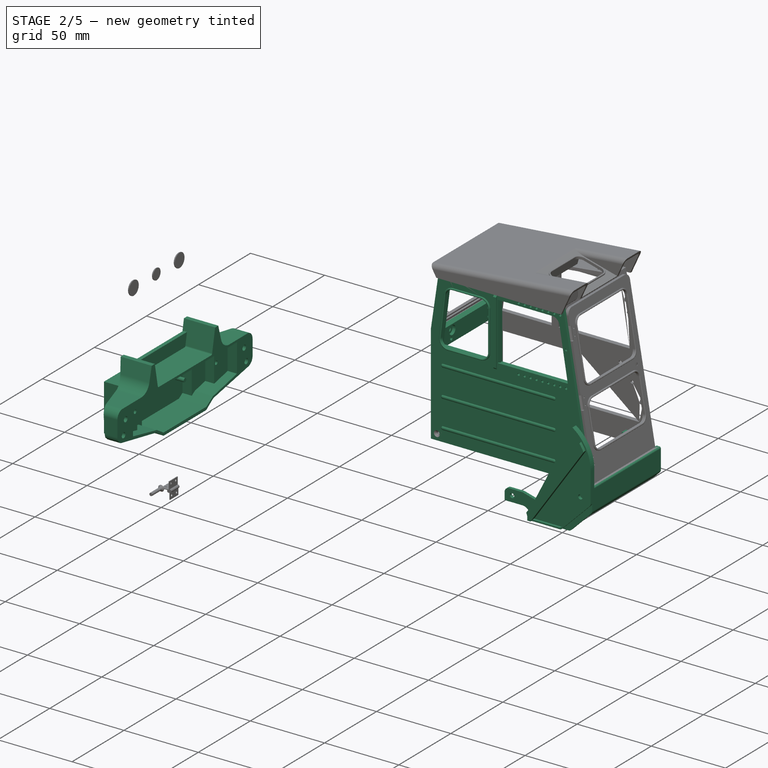
[diagram: stage 2 of 5 — iso view after this stage's code; geometry added in this stage tinted green]
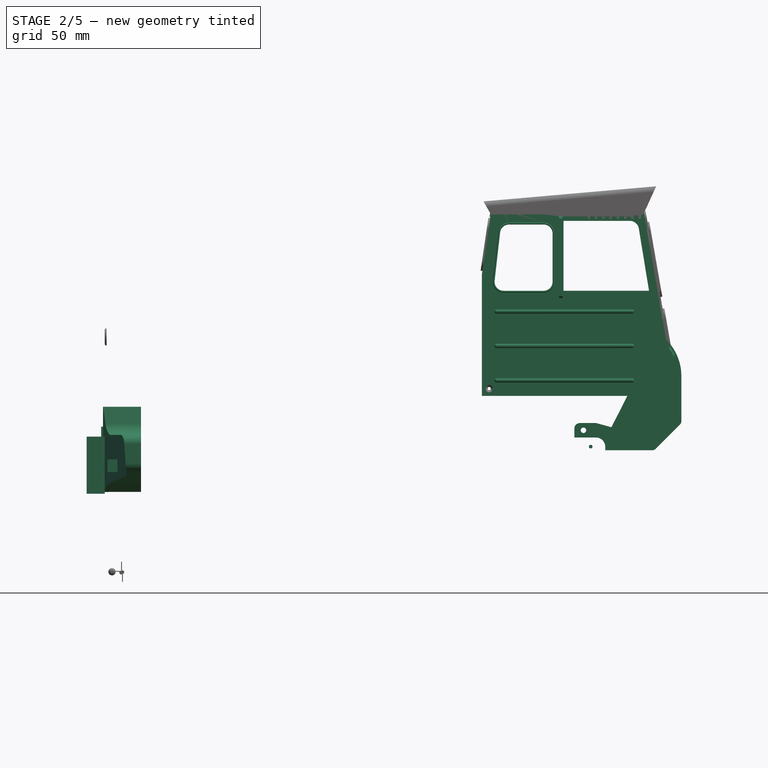
[diagram: stage 2 of 5 — front view after this stage's code; geometry added in this stage tinted green]
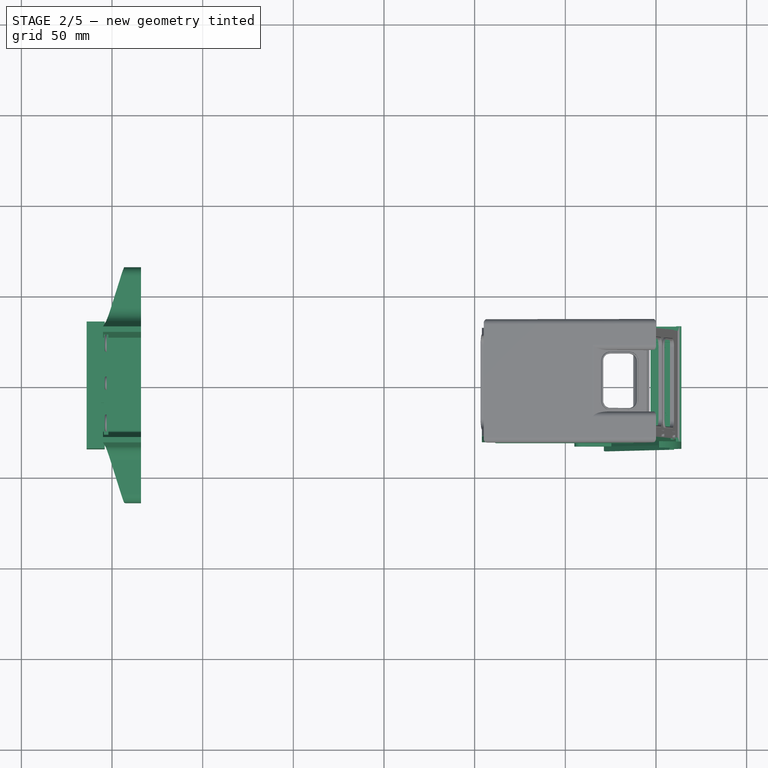
[diagram: stage 2 of 5 — top view after this stage's code; geometry added in this stage tinted green]
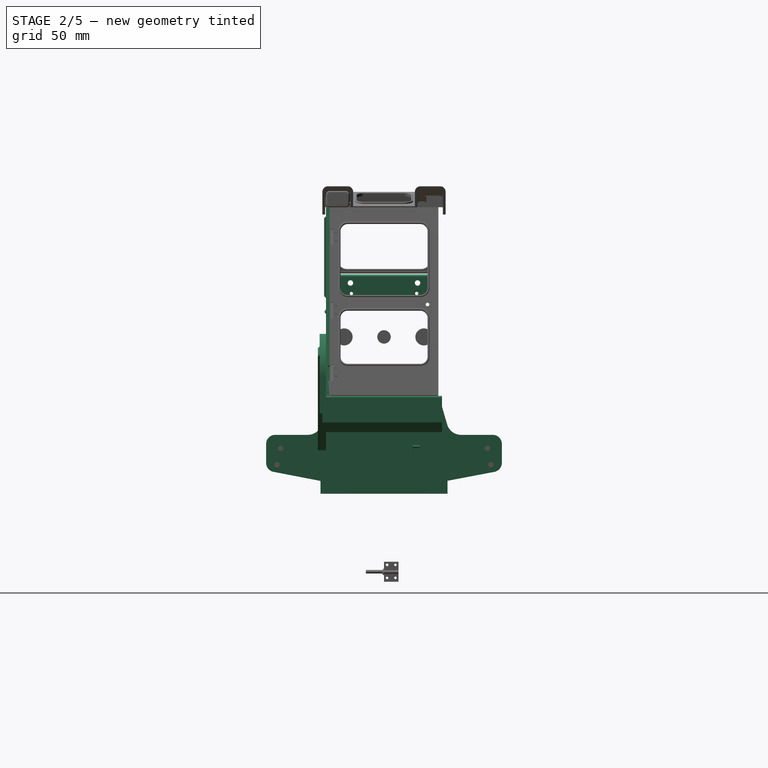
[diagram: stage 2 of 5 — right view after this stage's code; geometry added in this stage tinted green]
FEATURE [Image::ImagePlane] ImagePlane005
  Placement = pos=(247,0,118) rot=(-1,0,0;4.71239rad)
  XSize = 505
  YSize = 216.07
FEATURE [App::DocumentObjectGroup] Group001  label="Images"
  Group = -> [ImagePlane,ImagePlane001,ImagePlane002,ImagePlane003,ImagePlane004,ImagePlane005]
FEATURE [Sketcher::SketchObject] Sketch032
  AttachmentOffset = pos=(0,0,30) rot=(0,0,1;0rad)
  FullyConstrained = false
  MapMode = 5
  Placement = pos=(0,-30,-6.7e-15) rot=(1,0,0;1.5708rad)
  Support = -> [XZ_Plane022]
  sketch-geometry (5):
    g0: LineSegment StartX=204 StartY=164 StartZ=0 EndX=204 EndY=97 EndZ=0
    g1: LineSegment StartX=204 StartY=97 StartZ=0 EndX=311 EndY=97 EndZ=0
    g2: LineSegment StartX=204 StartY=164 StartZ=0 EndX=209.46 EndY=201 EndZ=0
    g3: LineSegment StartX=209.46 StartY=201 StartZ=0 EndX=292.891 EndY=201 EndZ=0
    g4: LineSegment StartX=311 StartY=97 StartZ=0 EndX=292.891 EndY=201 EndZ=0
  constraints (8):
    c: Vertical(g0)
    c: Coincident(g1,g0)
    c: Horizontal(g1)
    c: Coincident(g2,g0)
    c: Coincident(g3,g2)
    c: Horizontal(g3)
    c: Coincident(g4,g1)
    c: PointOnObject(g3,g4)
FEATURE [PartDesign::Pad] Pad017
  Direction = (0,-1,-2e-16)
  Length = 2
  Length2 = 10
  Placement = pos=(0,0,0) rot=(1,0,0;1.5708rad)
  Profile = -> Sketch032
  ReferenceAxis = -> Sketch032 [N_Axis]
  Refine = true
  Type = 0
FEATURE [Sketcher::SketchObject] Sketch033
  AttachmentOffset = pos=(0,0,30) rot=(0,0,1;0rad)
  FullyConstrained = false
  MapMode = 5
  Placement = pos=(0,-30,-6.7e-15) rot=(1,0,0;1.5708rad)
  Support = -> [XZ_Plane022]
  sketch-geometry (13):
    g0: LineSegment StartX=219.012 StartY=191.525 StartZ=0 EndX=238 EndY=191.525 EndZ=0
    g1: LineSegment StartX=243 StartY=186.525 StartZ=0 EndX=243 EndY=160 EndZ=0
    g2: LineSegment StartX=238 StartY=155 StartZ=0 EndX=216 EndY=155 EndZ=0
    g3: LineSegment StartX=211.032 StartY=160.564 StartZ=0 EndX=214.044 EndY=187.089 EndZ=0
    g4: LineSegment StartX=249 StartY=193.493 StartZ=0 EndX=285.608 EndY=193.493 EndZ=0
    g5: LineSegment StartX=290.542 StartY=189.3 StartZ=0 EndX=296.154 EndY=155 EndZ=0
    g6: LineSegment StartX=296.154 StartY=155 StartZ=0 EndX=249 EndY=155 EndZ=0
    g7: LineSegment StartX=249 StartY=155 StartZ=0 EndX=249 EndY=193.493 EndZ=0
    g8: ArcOfCircle CenterX=219.012 CenterY=186.525 CenterZ=0 NormalX=0 NormalY=0 NormalZ=1 AngleXU=0 Radius=5 StartAngle=1.5708 EndAngle=3.02854
    g9: ArcOfCircle CenterX=238 CenterY=186.525 CenterZ=0 NormalX=0 NormalY=0 NormalZ=1 AngleXU=0 Radius=5 StartAngle=-9e-16 EndAngle=1.5708
    g10: ArcOfCircle CenterX=238 CenterY=160 CenterZ=0 NormalX=0 NormalY=0 NormalZ=1 AngleXU=0 Radius=5 StartAngle=4.71239 EndAngle=6.28319
    g11: ArcOfCircle CenterX=216 CenterY=160 CenterZ=0 NormalX=0 NormalY=0 NormalZ=1 AngleXU=0 Radius=5 StartAngle=3.02854 EndAngle=4.71239
    g12: ArcOfCircle CenterX=285.608 CenterY=188.493 CenterZ=0 NormalX=0 NormalY=0 NormalZ=1 AngleXU=0 Radius=5 StartAngle=0.162168 EndAngle=1.5708
  constraints (24):
    c: Horizontal(g0)
    c: Vertical(g1)
    c: Horizontal(g2)
    c: Horizontal(g4)
    c: Coincident(g5,g6)
    c: Horizontal(g6)
    c: Coincident(g6,g7)
    c: Coincident(g7,g4)
    c: Vertical(g7)
    c: Tangent(g0,g8) = 1.5708
    c: Tangent(g3,g8) = 1.5708
    c: Tangent(g0,g9) = 1.5708
    c: Tangent(g1,g9) = 1.5708
    c: Tangent(g1,g10) = 1.5708
    c: Tangent(g2,g10) = 1.5708
    c: Tangent(g2,g11) = 1.5708
    c: Tangent(g3,g11) = 1.5708
    c: Radius(g8) = 5
    c: Radius(g9) = 5
    c: Radius(g10) = 5
    c: Radius(g11) = 5
    c: Tangent(g4,g12) = 1.5708
    c: Tangent(g5,g12) = 1.5708
    c: Radius(g12) = 5
FEATURE [PartDesign::Pocket] Pocket012
  BaseFeature = -> Pad017
  Direction = (0,1,2e-16)
  Length = 5
  Length2 = 5
  Placement = pos=(0,0,0) rot=(1,0,0;1.5708rad)
  Profile = -> Sketch033
  ReferenceAxis = -> Sketch033 [N_Axis]
  Refine = true
  Reversed = true
  Type = 1
FEATURE [Sketcher::SketchObject] Sketch034
  AttachmentOffset = pos=(0,0,30) rot=(0,0,1;0rad)
  FullyConstrained = false
  MapMode = 5
  Placement = pos=(0,-30,-6.7e-15) rot=(1,0,0;1.5708rad)
  Support = -> [XZ_Plane022]
  sketch-geometry (4):
    g0: LineSegment StartX=211 StartY=194.5 StartZ=0 EndX=292 EndY=194.5 EndZ=0
    g1: LineSegment StartX=292 StartY=194.5 StartZ=0 EndX=299.5 EndY=153 EndZ=0
    g2: LineSegment StartX=299.5 StartY=153 StartZ=0 EndX=205 EndY=153 EndZ=0
    g3: LineSegment StartX=205 StartY=153 StartZ=0 EndX=211 EndY=194.5 EndZ=0
  constraints (6):
    c: Horizontal(g0)
    c: Coincident(g0,g1)
    c: Coincident(g1,g2)
    c: Horizontal(g2)
    c: Coincident(g2,g3)
    c: Coincident(g3,g0)
FEATURE [PartDesign::Pocket] Pocket013
  BaseFeature = -> Pocket012
  Direction = (0,1,2e-16)
  Length = 1
  Length2 = 5
  Placement = pos=(0,0,0) rot=(1,0,0;1.5708rad)
  Profile = -> Sketch034
  ReferenceAxis = -> Sketch034 [N_Axis]
  Refine = true
  Reversed = true
  Type = 0
FEATURE [Sketcher::SketchObject] Sketch035
  AttachmentOffset = pos=(0,0,32) rot=(0,0,1;0rad)
  FullyConstrained = false
  MapMode = 5
  Placement = pos=(0,-32,-7.1e-15) rot=(1,0,0;1.5708rad)
  Support = -> [XZ_Plane022]
  sketch-geometry (20):
    g0: LineSegment StartX=219.012 StartY=191.525 StartZ=0 EndX=238 EndY=191.525 EndZ=0
    g1: LineSegment StartX=243 StartY=186.525 StartZ=0 EndX=243 EndY=160 EndZ=0
    g2: LineSegment StartX=238 StartY=155 StartZ=0 EndX=216 EndY=155 EndZ=0
    g3: LineSegment StartX=211.032 StartY=160.564 StartZ=0 EndX=214.044 EndY=187.089 EndZ=0
    g4: ArcOfCircle CenterX=219.012 CenterY=186.525 CenterZ=0 NormalX=0 NormalY=0 NormalZ=1 AngleXU=0 Radius=5 StartAngle=1.5708 EndAngle=3.02854
    g5: ArcOfCircle CenterX=238 CenterY=186.525 CenterZ=0 NormalX=0 NormalY=0 NormalZ=1 AngleXU=0 Radius=5 StartAngle=-9e-16 EndAngle=1.5708
    g6: ArcOfCircle CenterX=238 CenterY=160 CenterZ=0 NormalX=0 NormalY=0 NormalZ=1 AngleXU=0 Radius=5 StartAngle=4.71239 EndAngle=6.28319
    g7: ArcOfCircle CenterX=216 CenterY=160 CenterZ=0 NormalX=0 NormalY=0 NormalZ=1 AngleXU=0 Radius=5 StartAngle=3.02854 EndAngle=4.71239
    g8: LineSegment StartX=213.05 StartY=187.202 StartZ=0 EndX=210.038 EndY=160.677 EndZ=0
    g9: LineSegment StartX=216 StartY=154 StartZ=0 EndX=238 EndY=154 EndZ=0
    g10: LineSegment StartX=244 StartY=160 StartZ=0 EndX=244 EndY=186.525 EndZ=0
    g11: LineSegment StartX=238 StartY=192.525 StartZ=0 EndX=219.012 EndY=192.525 EndZ=0
    g12: ArcOfCircle CenterX=219.012 CenterY=186.525 CenterZ=0 NormalX=0 NormalY=0 NormalZ=1 AngleXU=0 Radius=6 StartAngle=1.5708 EndAngle=3.02854
    g13: ArcOfCircle CenterX=238 CenterY=186.525 CenterZ=0 NormalX=0 NormalY=0 NormalZ=1 AngleXU=0 Radius=6 StartAngle=1.5e-15 EndAngle=1.5708
    g14: ArcOfCircle CenterX=238 CenterY=160 CenterZ=0 NormalX=0 NormalY=0 NormalZ=1 AngleXU=0 Radius=6 StartAngle=4.71239 EndAngle=6.28319
    g15: ArcOfCircle CenterX=216 CenterY=160 CenterZ=0 NormalX=0 NormalY=0 NormalZ=1 AngleXU=0 Radius=6 StartAngle=3.02854 EndAngle=4.71239
    g16: LineSegment StartX=246.5 StartY=196 StartZ=0 EndX=248.5 EndY=196 EndZ=0
    g17: LineSegment StartX=248.5 StartY=196 StartZ=0 EndX=248.5 EndY=151 EndZ=0
    g18: LineSegment StartX=248.5 StartY=151 StartZ=0 EndX=246.5 EndY=151 EndZ=0
    g19: LineSegment StartX=246.5 StartY=151 StartZ=0 EndX=246.5 EndY=196 EndZ=0
  constraints (45):
    c: Horizontal(g0)
    c: Vertical(g1)
    c: Horizontal(g2)
    c: Tangent(g0,g4) = 1.5708
    c: Tangent(g3,g4) = 1.5708
    c: Tangent(g0,g5) = 1.5708
    c: Tangent(g1,g5) = 1.5708
    c: Tangent(g1,g6) = 1.5708
    c: Tangent(g2,g6) = 1.5708
    c: Tangent(g2,g7) = 1.5708
    c: Tangent(g3,g7) = 1.5708
    c: Radius(g4) = 5
    c: Radius(g5) = 5
    c: Radius(g7) = 5
    c: DistanceX(g4) = 219.012
    c: DistanceY(g4) = 186.525
    c: DistanceX(g5) = 238
    c: DistanceX(g6) = 238
    c: DistanceY(g6) = 160
    c: DistanceX(g7) = 216
    c: Horizontal(g9)
    c: Vertical(g10)
    c: Horizontal(g11)
    c: Parallel(g8,g3)
    c: Coincident(g12,g4)
    c: Coincident(g13,g5)
    c: Coincident(g14,g6)
    c: Coincident(g15,g7)
    c: Distance(g3,g8) = 1
    c: Coincident(g15,g9)
    c: Tangent(g15,g8) = -1.5708
    c: Tangent(g12,g8) = -1.5708
    c: Tangent(g11,g12) = -1.5708
    c: Tangent(g13,g11) = -1.5708
    c: Tangent(g13,g10) = -1.5708
    c: Tangent(g14,g10) = -1.5708
    c: Tangent(g9,g14) = -1.5708
    c: Horizontal(g16)
    c: Coincident(g16,g17)
    c: Vertical(g17)
    c: Coincident(g17,g18)
    c: Horizontal(g18)
    c: Coincident(g18,g19)
    c: Coincident(g19,g16)
    c: Vertical(g19)
FEATURE [PartDesign::Pad] Pad018
  BaseFeature = -> Pocket013
  Direction = (0,-1,-2e-16)
  Length = 1
  Length2 = 10
  Placement = pos=(0,0,0) rot=(1,0,0;1.5708rad)
  Profile = -> Sketch035
  ReferenceAxis = -> Sketch035 [N_Axis]
  Refine = true
  Type = 0
FEATURE [PartDesign::Body] Body001013  label="frame-cab-right-panel-body"
  Group = -> [Sketch032,Pad017,Sketch033,Pocket012,Sketch034,Pocket013,Sketch035,Pad018]
  Origin = -> Origin019
  Tip = -> Pad018
FEATURE [Part::Cylinder] Cylinder1492373
  Angle = 360
  AttacherType = Attacher::AttachEngine3D
  FirstAngle = 0
  Height = 77
  Placement = pos=(211,-31.5,143.5) rot=(0,1,0;1.5708rad)
  Radius = 1.25
  SecondAngle = 0
FEATURE [Part::Fillet] Fillet001006007031015002010024014  label="Fillet"
  Base = -> Cylinder1492373
  Edges = 2 edges r=1: [Edge2,Edge3]
FEATURE [Part::Cylinder] Cylinder1492374
  Angle = 360
  AttacherType = Attacher::AttachEngine3D
  FirstAngle = 0
  Height = 77
  Placement = pos=(211,-31.5,124.5) rot=(0,1,0;1.5708rad)
  Radius = 1.25
  SecondAngle = 0
FEATURE [Part::Fillet] Fillet001006007031015002010024015  label="Fillet"
  Base = -> Cylinder1492374
  Edges = 2 edges r=1: [Edge2,Edge3]
FEATURE [Part::Cylinder] Cylinder1492375
  Angle = 360
  AttacherType = Attacher::AttachEngine3D
  FirstAngle = 0
  Height = 77
  Placement = pos=(211,-31.5,105.5) rot=(0,1,0;1.5708rad)
  Radius = 1.25
  SecondAngle = 0
FEATURE [Part::Fillet] Fillet001006007031015002010024016  label="Fillet"
  Base = -> Cylinder1492375
  Edges = 2 edges r=1: [Edge2,Edge3]
FEATURE [Part::MultiFuse] Fusion004002009002027014004009002002008002004029002015013017006002012002031033002013006007008014029072011018024002019049062029014012006016002033001057009078004002010031016012003004006002003003002005005002020005025  label="Fusion"
  Refine = true
  Shapes = -> [Body001013,Fillet001006007031015002010024014,Fillet001006007031015002010024015,Fillet001006007031015002010024016]
FEATURE [Part::Fillet] Fillet001006007031015002010024017  label="Fillet"
  Base = -> Fusion004002009002027014004009002002008002004029002015013017006002012002031033002013006007008014029072011018024002019049062029014012006016002033001057009078004002010031016012003004006002003003002005005002020005025
  Edges = 8 edges r=0.49: [Edge67,Edge69,Edge75,Edge77,Edge105,Edge107,Edge109,Edge111]
FEATURE [Part::Chamfer] Chamfer011006026  label="Chanfer"
  Base = -> Fillet001006007031015002010024017
  Edges = 2 edges r=0.99: [Edge88,Edge94]
FEATURE [Part::Cylinder] Cylinder1492385  label="Cylinder"
  Angle = 360
  AttacherType = Attacher::AttachEngine3D
  FirstAngle = 0
  Height = 6
  Placement = pos=(263,-34,195.25) rot=(-1,0,0;1.5708rad)
  Radius = 0.75
  SecondAngle = 0
FEATURE [Part::Cylinder] Cylinder1492386  label="Cylinder"
  Angle = 360
  AttacherType = Attacher::AttachEngine3D
  FirstAngle = 0
  Height = 6
  Placement = pos=(267,-34,195.25) rot=(-1,0,0;1.5708rad)
  Radius = 0.75
  SecondAngle = 0
FEATURE [Part::Cylinder] Cylinder1492387  label="Cylinder"
  Angle = 360
  AttacherType = Attacher::AttachEngine3D
  FirstAngle = 0
  Height = 6
  Placement = pos=(271,-34,195.25) rot=(-1,0,0;1.5708rad)
  Radius = 0.75
  SecondAngle = 0
FEATURE [Part::Cylinder] Cylinder1492388  label="Cylinder"
  Angle = 360
  AttacherType = Attacher::AttachEngine3D
  FirstAngle = 0
  Height = 6
  Placement = pos=(275,-34,195.25) rot=(-1,0,0;1.5708rad)
  Radius = 0.75
  SecondAngle = 0
FEATURE [Part::Cylinder] Cylinder1492389  label="Cylinder"
  Angle = 360
  AttacherType = Attacher::AttachEngine3D
  FirstAngle = 0
  Height = 6
  Placement = pos=(279,-34,195.25) rot=(-1,0,0;1.5708rad)
  Radius = 0.75
  SecondAngle = 0
FEATURE [Part::Cylinder] Cylinder1492390  label="Cylinder"
  Angle = 360
  AttacherType = Attacher::AttachEngine3D
  FirstAngle = 0
  Height = 6
  Placement = pos=(283,-34,195.25) rot=(-1,0,0;1.5708rad)
  Radius = 0.75
  SecondAngle = 0
FEATURE [Part::Cylinder] Cylinder1492391  label="Cylinder"
  Angle = 360
  AttacherType = Attacher::AttachEngine3D
  FirstAngle = 0
  Height = 6
  Placement = pos=(287,-34,195.25) rot=(-1,0,0;1.5708rad)
  Radius = 0.75
  SecondAngle = 0
FEATURE [Part::Cylinder] Cylinder1492392  label="Cylinder"
  Angle = 360
  AttacherType = Attacher::AttachEngine3D
  FirstAngle = 0
  Height = 6
  Placement = pos=(291,-34,195.25) rot=(-1,0,0;1.5708rad)
  Radius = 0.75
  SecondAngle = 0
FEATURE [Part::Cylinder] Cylinder1492393  label="Cylinder"
  Angle = 360
  AttacherType = Attacher::AttachEngine3D
  FirstAngle = 0
  Height = 6
  Placement = pos=(295,-34,175.25) rot=(-1,0,0;1.5708rad)
  Radius = 0.75
  SecondAngle = 0
FEATURE [Part::Cylinder] Cylinder1492394  label="Cylinder"
  Angle = 360
  AttacherType = Attacher::AttachEngine3D
  FirstAngle = 0
  Height = 6
  Placement = pos=(263,-34,151.75) rot=(-1,0,0;1.5708rad)
  Radius = 0.75
  SecondAngle = 0
FEATURE [Part::Cylinder] Cylinder1492395  label="Cylinder"
  Angle = 360
  AttacherType = Attacher::AttachEngine3D
  FirstAngle = 0
  Height = 6
  Placement = pos=(267,-34,151.75) rot=(-1,0,0;1.5708rad)
  Radius = 0.75
  SecondAngle = 0
FEATURE [Part::Cylinder] Cylinder1492396  label="Cylinder"
  Angle = 360
  AttacherType = Attacher::AttachEngine3D
  FirstAngle = 0
  Height = 6
  Placement = pos=(271,-34,151.75) rot=(-1,0,0;1.5708rad)
  Radius = 0.75
  SecondAngle = 0
FEATURE [Part::Cylinder] Cylinder1492397  label="Cylinder"
  Angle = 360
  AttacherType = Attacher::AttachEngine3D
  FirstAngle = 0
  Height = 6
  Placement = pos=(275,-34,151.75) rot=(-1,0,0;1.5708rad)
  Radius = 0.75
  SecondAngle = 0
FEATURE [Part::Cylinder] Cylinder1492398  label="Cylinder"
  Angle = 360
  AttacherType = Attacher::AttachEngine3D
  FirstAngle = 0
  Height = 6
  Placement = pos=(279,-34,151.75) rot=(-1,0,0;1.5708rad)
  Radius = 0.75
  SecondAngle = 0
FEATURE [Part::Cylinder] Cylinder1492399  label="Cylinder"
  Angle = 360
  AttacherType = Attacher::AttachEngine3D
  FirstAngle = 0
  Height = 6
  Placement = pos=(283,-34,151.75) rot=(-1,0,0;1.5708rad)
  Radius = 0.75
  SecondAngle = 0
FEATURE [Part::Cylinder] Cylinder1492400  label="Cylinder"
  Angle = 360
  AttacherType = Attacher::AttachEngine3D
  FirstAngle = 0
  Height = 6
  Placement = pos=(287,-34,151.75) rot=(-1,0,0;1.5708rad)
  Radius = 0.75
  SecondAngle = 0
FEATURE [Part::Cylinder] Cylinder1492401  label="Cylinder"
  Angle = 360
  AttacherType = Attacher::AttachEngine3D
  FirstAngle = 0
  Height = 6
  Placement = pos=(291,-34,151.75) rot=(-1,0,0;1.5708rad)
  Radius = 0.75
  SecondAngle = 0
FEATURE [Part::Cylinder] Cylinder1492402  label="Cylinder"
  Angle = 360
  AttacherType = Attacher::AttachEngine3D
  FirstAngle = 0
  Height = 6
  Placement = pos=(295,-34,151.75) rot=(-1,0,0;1.5708rad)
  Radius = 0.75
  SecondAngle = 0
FEATURE [Part::MultiFuse] Fusion004002009002027014004009002002008002004029002015013017006002012002031033002013006007008014029072011018024002019049062029014012006016002033001057009078004002010031016012003004006002003003002005005002020005028  label="frame-grid-CARVING"
  Placement = pos=(0,0.5,0) rot=(0,0,1;0rad)
  Refine = true
  Shapes = -> [Cylinder1492385,Cylinder1492386,Cylinder1492387,Cylinder1492388,Cylinder1492389,Cylinder1492390,Cylinder1492391,Cylinder1492392,Cylinder1492393,Cylinder1492394,Cylinder1492395,Cylinder1492396,Cylinder1492397,Cylinder1492398,Cylinder1492399,Cylinder1492400,Cylinder1492401,Cylinder1492402]
FEATURE [Sketcher::SketchObject] Sketch039
  AttachmentOffset = pos=(0,0,27) rot=(0,0,1;0rad)
  FullyConstrained = false
  MapMode = 5
  Placement = pos=(0,-27,-6e-15) rot=(1,0,0;1.5708rad)
  Support = -> [XZ_Plane025]
  sketch-geometry (6):
    g0: LineSegment StartX=204 StartY=163.5 StartZ=0 EndX=204 EndY=97 EndZ=0
    g1: LineSegment StartX=204 StartY=97 StartZ=0 EndX=310 EndY=97 EndZ=0
    g2: LineSegment StartX=211.5 StartY=201 StartZ=0 EndX=291.881 EndY=201 EndZ=0
    g3: LineSegment StartX=204 StartY=163.5 StartZ=0 EndX=205.945 EndY=163.5 EndZ=0
    g4: LineSegment StartX=211.5 StartY=201 StartZ=0 EndX=205.945 EndY=163.5 EndZ=0
    g5: LineSegment StartX=310 StartY=97 StartZ=0 EndX=291.881 EndY=201 EndZ=0
  constraints (12):
    c: Vertical(g0)
    c: Coincident(g1,g0)
    c: Horizontal(g1)
    c: Horizontal(g2)
    c: Coincident(g3,g0)
    c: Horizontal(g3)
    c: DistanceX(g0) = 204
    c: DistanceY(g0) = 163.5
    c: Coincident(g4,g2)
    c: Coincident(g4,g3)
    c: Coincident(g5,g1)
    c: PointOnObject(g2,g5)
FEATURE [PartDesign::Pad] Pad021
  Direction = (0,-1,-2e-16)
  Length = 3
  Length2 = 10
  Placement = pos=(0,0,0) rot=(1,0,0;1.5708rad)
  Profile = -> Sketch039
  ReferenceAxis = -> Sketch039 [N_Axis]
  Refine = true
  Type = 0
FEATURE [Sketcher::SketchObject] Sketch040
  AttachmentOffset = pos=(0,0,27) rot=(0,0,1;0rad)
  FullyConstrained = false
  MapMode = 5
  Placement = pos=(0,-27,-6e-15) rot=(1,0,0;1.5708rad)
  Support = -> [XZ_Plane025]
  sketch-geometry (12):
    g0: LineSegment StartX=214 StartY=194 StartZ=0 EndX=244 EndY=194 EndZ=0
    g1: LineSegment StartX=290 StartY=194 StartZ=0 EndX=296.5 EndY=154 EndZ=0
    g2: LineSegment StartX=296.5 StartY=154 StartZ=0 EndX=248.5 EndY=154 EndZ=0
    g3: LineSegment StartX=209 StartY=154 StartZ=0 EndX=214 EndY=194 EndZ=0
    g4: LineSegment StartX=244 StartY=194 StartZ=0 EndX=244 EndY=154 EndZ=0
    g5: LineSegment StartX=248.5 StartY=194 StartZ=0 EndX=248.5 EndY=154 EndZ=0
    g6: LineSegment StartX=244 StartY=154 StartZ=0 EndX=209 EndY=154 EndZ=0
    g7: LineSegment StartX=248.5 StartY=194 StartZ=0 EndX=290 EndY=194 EndZ=0
    g8: LineSegment StartX=303 StartY=111 StartZ=0 EndX=209 EndY=111 EndZ=0
    g9: LineSegment StartX=209 StartY=111 StartZ=0 EndX=209 EndY=142 EndZ=0
    g10: LineSegment StartX=209 StartY=142 StartZ=0 EndX=264 EndY=142 EndZ=0
    g11: LineSegment StartX=264 StartY=142 StartZ=0 EndX=303 EndY=111 EndZ=0
  constraints (17):
    c: Horizontal(g0)
    c: Coincident(g7,g1)
    c: Coincident(g1,g2)
    c: Horizontal(g2)
    c: Coincident(g6,g3)
    c: Coincident(g3,g0)
    c: Vertical(g4)
    c: Coincident(g2,g5)
    c: Coincident(g6,g4)
    c: Coincident(g0,g4)
    c: Coincident(g7,g5)
    c: Horizontal(g8)
    c: Coincident(g8,g9)
    c: Coincident(g9,g10)
    c: Horizontal(g10)
    c: Coincident(g10,g11)
    c: Coincident(g11,g8)
FEATURE [PartDesign::Pocket] Pocket015
  BaseFeature = -> Pad021
  Direction = (0,1,2e-16)
  Length = 5
  Length2 = 5
  Placement = pos=(0,0,0) rot=(1,0,0;1.5708rad)
  Profile = -> Sketch040
  ReferenceAxis = -> Sketch040 [N_Axis]
  Refine = true
  Reversed = true
  Type = 1
FEATURE [PartDesign::Body] Body001015  label="frame-cab-right-inner-panel-body"
  Group = -> [Sketch039,Pad021,Sketch040,Pocket015]
  Origin = -> Origin021
  Tip = -> Pocket015
FEATURE [Part::Feature] Fusion004002009002027014004009002002008002004029002015013017006002012002031033002013006007008014029072011018024002019049062029014012006016002033001057009078004002010031016012003004006002003003002005005002020005028001  label="frame-grid-CARVING"
  Placement = pos=(0,0.5,0) rot=(0,0,1;0rad)
  shape: bbox 33.5 x 6 x 45 mm, 54 faces, 18 solids (baked)
FEATURE [Part::Cut] Cut176013009033007019019008010045003002004008006010017027003005053020098001031003007007002011005005004026009004013005002003006024015007006012  label="Cut"
  Base = -> Chamfer011006026
  Refine = true
  Tool = -> Fusion004002009002027014004009002002008002004029002015013017006002012002031033002013006007008014029072011018024002019049062029014012006016002033001057009078004002010031016012003004006002003003002005005002020005028
FEATURE [Part::Feature] Fusion010001  label="frame-motor-cover-right-rear-panel-GRID"
  Placement = pos=(0,-30.8,0) rot=(0,0,1;0rad)
  shape: bbox 35 x 0.2 x 31.2 mm, 2145 faces (baked)
FEATURE [Part::Feature] Fusion004002009002027014004009002002008002004029002015013017006002012002031033002013006007008014029072011018024002019049062029014012006016002033001057009078004002010031016012003004006002003003002005005002020005028005  label="frame-motor-cover-left-rear-panel-GRID"
  Placement = pos=(0,30.8,0) rot=(0,0,1;0rad)
  shape: bbox 35 x 0.2 x 31.2 mm, 2145 faces (baked)
FEATURE [Sketcher::SketchObject] Sketch045
  AttachmentOffset = pos=(0,0,-16) rot=(0,0,1;0rad)
  FullyConstrained = false
  MapMode = 5
  Placement = pos=(16,-3.6e-15,3.6e-15) rot=(-0.57735,0.57735,0.57735;4.18879rad)
  Support = -> [YZ_Plane025]
  sketch-geometry (26):
    g0: LineSegment StartX=60 StartY=75.5 StartZ=0 EndX=42 EndY=75.5 EndZ=0
    g1: LineSegment StartX=-65 StartY=70.5 StartZ=0 EndX=-65 EndY=60 EndZ=0
    g2: LineSegment StartX=-60.9345 StartY=55.0881 StartZ=0 EndX=-28.3786 EndY=48.8943 EndZ=0
    g3: LineSegment StartX=-26.0683 StartY=47.9217 StartZ=0 EndX=-20.5 EndY=44.0391 EndZ=0
    g4: LineSegment StartX=-20.5 StartY=44.0391 StartZ=0 EndX=0 EndY=44.0391 EndZ=0
    g5: LineSegment StartX=0 StartY=44.0391 StartZ=0 EndX=20.5 EndY=44.0391 EndZ=0
    g6: LineSegment StartX=65 StartY=70.5 StartZ=0 EndX=65 EndY=60 EndZ=0
    g7: LineSegment StartX=60.9483 StartY=55.0907 StartZ=0 EndX=28.8524 EndY=48.8911 EndZ=0
    g8: LineSegment StartX=20.5 StartY=44.0391 StartZ=0 EndX=26.75 EndY=48.0497 EndZ=0
    g9: ArcOfCircle CenterX=-60 CenterY=70.5 CenterZ=0 NormalX=0 NormalY=0 NormalZ=1 AngleXU=0 Radius=5 StartAngle=1.5708 EndAngle=3.14159
    g10: ArcOfCircle CenterX=60 CenterY=70.5 CenterZ=0 NormalX=0 NormalY=0 NormalZ=1 AngleXU=0 Radius=5 StartAngle=-9e-16 EndAngle=1.5708
    g11: ArcOfCircle CenterX=60 CenterY=60 CenterZ=0 NormalX=0 NormalY=0 NormalZ=1 AngleXU=0 Radius=5 StartAngle=4.9032 EndAngle=6.28319
    g12: ArcOfCircle CenterX=-60 CenterY=60 CenterZ=0 NormalX=0 NormalY=0 NormalZ=1 AngleXU=0 Radius=5 StartAngle=3.14159 EndAngle=4.52438
    g13: ArcOfCircle CenterX=29.9904 CenterY=43 CenterZ=0 NormalX=0 NormalY=0 NormalZ=1 AngleXU=0 Radius=6 StartAngle=1.76161 EndAngle=2.14131
    g14: ArcOfCircle CenterX=-29.5 CenterY=43 CenterZ=0 NormalX=0 NormalY=0 NormalZ=1 AngleXU=0 Radius=6 StartAngle=0.961907 EndAngle=1.38279
    g15: LineSegment StartX=-32 StartY=91 StartZ=0 EndX=-34.8156 EndY=81.2752 EndZ=0
    g16: LineSegment StartX=-32 StartY=91 StartZ=0 EndX=-29 EndY=91 EndZ=0
    g17: LineSegment StartX=-29 StartY=91 StartZ=0 EndX=-27.6374 EndY=84 EndZ=0
    g18: LineSegment StartX=-27.6374 StartY=84 StartZ=0 EndX=0 EndY=84 EndZ=0
    g19: LineSegment StartX=0 StartY=84 StartZ=0 EndX=27.644 EndY=84 EndZ=0
    g20: LineSegment StartX=27.644 StartY=84 StartZ=0 EndX=29 EndY=91 EndZ=0
    g21: LineSegment StartX=29 StartY=91 StartZ=0 EndX=32 EndY=91 EndZ=0
    g22: LineSegment StartX=32 StartY=91 StartZ=0 EndX=34.2158 EndY=81.6544 EndZ=0
    g23: LineSegment StartX=-42.5 StartY=75.5 StartZ=0 EndX=-60 EndY=75.5 EndZ=0
    g24: ArcOfCircle CenterX=42 CenterY=83.5 CenterZ=0 NormalX=0 NormalY=0 NormalZ=1 AngleXU=0 Radius=8 StartAngle=3.37439 EndAngle=4.71239
    g25: ArcOfCircle CenterX=-42.5 CenterY=83.5 CenterZ=0 NormalX=0 NormalY=0 NormalZ=1 AngleXU=0 Radius=8 StartAngle=4.71239 EndAngle=6.00137
  constraints (59):
    c: Horizontal(g0)
    c: Vertical(g1)
    c: Coincident(g4,g3)
    c: PointOnObject(g4,g-2)
    c: Horizontal(g4)
    c: Coincident(g5,g4)
    c: Horizontal(g5)
    c: Distance(g3,g-2) = 20.5
    c: Distance(g5,g-2) = 20.5
    c: Vertical(g6)
    c: Coincident(g8,g5)
    c: Coincident(g23,g9) = -1.5708
    c: Tangent(g1,g9) = -1.5708
    c: Radius(g9) = 5
    c: Tangent(g6,g10) = 1.5708
    c: Tangent(g0,g10) = -1.5708
    c: Radius(g10) = 5
    c: Distance(g6,g-2) = 65
    c: Tangent(g6,g11) = 1.5708
    c: Tangent(g7,g11) = 1.5708
    c: Radius(g11) = 5
    c: Tangent(g1,g12) = -1.5708
    c: Tangent(g2,g12) = -1.5708
    c: Radius(g12) = 5
    c: DistanceX(g12) = -60
    c: DistanceY(g12) = 60
    c: DistanceY(g11) = 60
    c: Tangent(g8,g13) = 1.5708
    c: Tangent(g7,g13) = -1.5708
    c: Radius(g13) = 6
    c: Tangent(g3,g14) = 1.5708
    c: Tangent(g2,g14) = 1.5708
    c: Radius(g14) = 6
    c: Coincident(g16,g15)
    c: Horizontal(g16)
    c: Coincident(g17,g16)
    c: Coincident(g18,g17)
    c: PointOnObject(g18,g-2)
    c: Horizontal(g18)
    c: Coincident(g19,g18)
    c: Horizontal(g19)
    c: Coincident(g20,g19)
    c: Coincident(g21,g20)
    c: Horizontal(g21)
    c: Coincident(g22,g21)
    c: DistanceY(g0) = 75.5
    c: DistanceX(g9) = -60
    c: DistanceY(g9) = 75.5
    c: Tangent(g0,g24) = 1.5708
    c: Tangent(g22,g24) = -1.5708
    c: Radius(g24) = 8
    c: DistanceX(g15) = -32
    c: DistanceY(g15) = 91
    c: DistanceX(g21) = 32
    c: DistanceY(g21) = 91
    c: Tangent(g15,g25) = 1.5708
    c: Tangent(g23,g25) = 1.5708
    c: Radius(g25) = 8
    c: DistanceX(g24) = 42
FEATURE [PartDesign::Pad] Pad024
  Direction = (-1,2e-16,-3e-16)
  Length = 21
  Length2 = 10
  Placement = pos=(0,0,0) rot=(0.57735,0.57735,0.57735;2.0944rad)
  Profile = -> Sketch045
  ReferenceAxis = -> Sketch045 [N_Axis]
  Refine = true
  Type = 0
FEATURE [PartDesign::Body] Body001017  label="frame-rear-bumper-body"
  Group = -> [Sketch045,Pad024]
  Origin = -> Origin023
  Tip = -> Pad024
FEATURE [Part::Box] Box134  label="Cube"
  AttacherType = Attacher::AttachEngine3D
  Height = 48
  Length = 18
  Placement = pos=(-9,-66,43) rot=(0,0,1;0rad)
  Width = 45.5
FEATURE [Part::Chamfer] Chamfer011006029
  Base = -> Box134
  Edges = 1 edges: [Edge6 r1=47 r2=3]
FEATURE [Part::Chamfer] Chamfer011006030  label="Chamfer"
  Base = -> Chamfer011006029
  Edges = 1 edges: [Edge9 r1=44.5 r2=14]
FEATURE [Part::Feature] Part__Mirroring007002003002018002002002005004004002003004003003004003003003003002002002001  label="Chamfer"
  shape: bbox 19.87 x 47.37 x 49.87 mm, 9 faces (baked)
FEATURE [Part::MultiFuse] Fusion004002009002027014004009002002008002004029002015013017006002012002031033002013006007008014029072011018024002019049062029014012006016002033001057009078004002010031016012003004006002003003002005005002020005028006  label="Fusion"
  Placement = pos=(-0.5,0,0) rot=(0,0,1;0rad)
  Refine = true
  Shapes = -> [Chamfer011006030,Part__Mirroring007002003002018002002002005004004002003004003003004003003003003002002002001]
FEATURE [Part::Cut] Cut176013009033007019019008010045003002004008006010017027003005053020098001031003007007002011005005004026009004013005002003006024015007006018  label="Cut"
  Base = -> Body001017
  Refine = true
  Tool = -> Fusion004002009002027014004009002002008002004029002015013017006002012002031033002013006007008014029072011018024002019049062029014012006016002033001057009078004002010031016012003004006002003003002005005002020005028006
FEATURE [Sketcher::SketchObject] Sketch046
  AttachmentOffset = pos=(0,0,44) rot=(0,0,1;0rad)
  FullyConstrained = false
  MapMode = 5
  Placement = pos=(0,0,44) rot=(0,0,1;0rad)
  Support = -> [XY_Plane024]
  sketch-geometry (6):
    g0: LineSegment StartX=8 StartY=-64 StartZ=0 EndX=8 EndY=-50 EndZ=0
    g1: LineSegment StartX=-4.5 StartY=-20.5 StartZ=0 EndX=8 EndY=-50 EndZ=0
    g2: LineSegment StartX=-4.5 StartY=0 StartZ=0 EndX=-4.5 EndY=-20.5 EndZ=0
    g3: LineSegment StartX=-4.5 StartY=0 StartZ=0 EndX=-6 EndY=0 EndZ=0
    g4: LineSegment StartX=-6 StartY=0 StartZ=0 EndX=-6 EndY=-64 EndZ=0
    g5: LineSegment StartX=8 StartY=-64 StartZ=0 EndX=-6 EndY=-64 EndZ=0
  constraints (12):
    c: Vertical(g0)
    c: Coincident(g1,g0)
    c: PointOnObject(g2,g-1)
    c: Coincident(g2,g1)
    c: Vertical(g2)
    c: Coincident(g3,g2)
    c: PointOnObject(g3,g-1)
    c: Coincident(g4,g3)
    c: Vertical(g4)
    c: Coincident(g5,g0)
    c: Coincident(g5,g4)
    c: Horizontal(g5)
FEATURE [PartDesign::Pad] Pad025
  Direction = (0,0,1)
  Length = 30.5
  Length2 = 10
  Profile = -> Sketch046
  ReferenceAxis = -> Sketch046 [N_Axis]
  Refine = true
  Type = 0
FEATURE [PartDesign::Body] Body001018
  Group = -> [Sketch046,Pad025]
  Origin = -> Origin024
  Tip = -> Pad025
FEATURE [Part::Fillet] Fillet001006007031015002010024020010005009  label="Fillet"
  Base = -> Body001018
  Edges = 1 edges r=4: [Edge18]
FEATURE [Part::Feature] Part__Mirroring007002003002018002002002005004004002003004003003004003003003003002002002002001  label="Fillet"
  shape: bbox 14 x 64 x 30.5 mm, 9 faces (baked)
FEATURE [Part::MultiFuse] Fusion004002009002027014004009002002008002004029002015013017006002012002031033002013006007008014029072011018024002019049062029014012006016002033001057009078004002010031016012003004006002003003002005005002020005028007  label="Fusion"
  Refine = true
  Shapes = -> [Part__Mirroring007002003002018002002002005004004002003004003003004003003003003002002002002001,Fillet001006007031015002010024020010005009]
FEATURE [Part::Cut] Cut176013009033007019019008010045003002004008006010017027003005053020098001031003007007002011005005004026009004013005002003006024015007006019  label="Cut"
  Base = -> Cut176013009033007019019008010045003002004008006010017027003005053020098001031003007007002011005005004026009004013005002003006024015007006018
  Refine = true
  Tool = -> Fusion004002009002027014004009002002008002004029002015013017006002012002031033002013006007008014029072011018024002019049062029014012006016002033001057009078004002010031016012003004006002003003002005005002020005028007
FEATURE [Part::Box] Box135  label="Cube"
  AttacherType = Attacher::AttachEngine3D
  Height = 16
  Length = 0.5
  Placement = pos=(-5,-29,75.5) rot=(0,0,1;0rad)
  Width = 58
FEATURE [Part::Chamfer] Chamfer011006031
  Base = -> Box135
  Edges = 2 edges: [Edge9 r1=15.5 r2=3,Edge11 r1=15.5 r2=3]
FEATURE [Part::Cylinder] Cylinder1492415  label="Cylinder"
  Angle = 360
  AttacherType = Attacher::AttachEngine3D
  FirstAngle = 0
  Height = 2
  Placement = pos=(-14,-57,68) rot=(0,1,0;1.5708rad)
  Radius = 5
  SecondAngle = 0
FEATURE [Part::Cylinder] Cylinder1492416  label="Cylinder"
  Angle = 360
  AttacherType = Attacher::AttachEngine3D
  FirstAngle = 0
  Height = 2
  Placement = pos=(-14,-59,59) rot=(0,1,0;1.5708rad)
  Radius = 2.5
  SecondAngle = 0
FEATURE [Part::Cylinder] Cylinder1492417  label="Cylinder"
  Angle = 360
  AttacherType = Attacher::AttachEngine3D
  FirstAngle = 0
  Height = 2
  Placement = pos=(-14,57,68) rot=(0,1,0;1.5708rad)
  Radius = 5
  SecondAngle = 0
FEATURE [Part::Cylinder] Cylinder1492418  label="Cylinder"
  Angle = 360
  AttacherType = Attacher::AttachEngine3D
  FirstAngle = 0
  Height = 2
  Placement = pos=(-14,59,59) rot=(0,1,0;1.5708rad)
  Radius = 2.5
  SecondAngle = 0
FEATURE [Part::Fillet] Fillet001006007031015002010024020010005010  label="Fillet"
  Base = -> Chamfer011006031
  Edges = 2 edges r=1: [Edge11,Edge15]
FEATURE [Part::MultiFuse] Fusion004002009002027014004009002002008002004029002015013017006002012002031033002013006007008014029072011018024002019049062029014012006016002033001057009078004002010031016012003004006002003003002005005002020005028008  label="Fusion"
  Placement = pos=(22,0,0) rot=(0,0,1;0rad)
  Refine = true
  Shapes = -> [Cylinder1492415,Cylinder1492416,Cylinder1492417,Cylinder1492418]
FEATURE [Part::Cut] Cut176013009033007019019008010045003002004008006010017027003005053020098001031003007007002011005005004026009004013005002003006024015007006020  label="Cut"
  Base = -> Cut176013009033007019019008010045003002004008006010017027003005053020098001031003007007002011005005004026009004013005002003006024015007006019
  Refine = true
  Tool = -> Fillet001006007031015002010024020010005010
FEATURE [Part::Cut] Cut176013009033007019019008010045003002004008006010017027003005053020098001031003007007002011005005004026009004013005002003006024015007006021  label="Cut"
  Base = -> Cut176013009033007019019008010045003002004008006010017027003005053020098001031003007007002011005005004026009004013005002003006024015007006020
  Refine = true
  Tool = -> Fusion004002009002027014004009002002008002004029002015013017006002012002031033002013006007008014029072011018024002019049062029014012006016002033001057009078004002010031016012003004006002003003002005005002020005028008
FEATURE [Part::Box] Box781  label="Cube"
  AttacherType = Attacher::AttachEngine3D
  Height = 16
  Length = 18
  Placement = pos=(-2,-29,75.5) rot=(0,0,1;0rad)
  Width = 58
FEATURE [Part::Chamfer] Chamfer039025078004044
  Base = -> Box781
  Edges = 2 edges: [Edge9 r1=15.5 r2=3,Edge11 r1=15.5 r2=3]
FEATURE [Part::Fillet] Fillet001006007031015002010024020010005011  label="Fillet"
  Base = -> Chamfer039025078004044
  Edges = 2 edges r=1: [Edge11,Edge15]
FEATURE [Part::Cut] Cut176013009033007019019008010045003002004008006010017027003005053020098001031003007007002011005005004026009004013005002003006024015007006023  label="Cut"
  Base = -> Cut176013009033007019019008010045003002004008006010017027003005053020098001031003007007002011005005004026009004013005002003006024015007006021
  Refine = true
  Tool = -> Fillet001006007031015002010024020010005011
FEATURE [Part::Box] Box798  label="Cube"
  AttacherType = Attacher::AttachEngine3D
  Height = 28
  Length = 6.25
  Placement = pos=(-2.5,-24,46) rot=(0,0,1;0rad)
  Width = 48
FEATURE [Part::Box] Box799  label="Cube"
  AttacherType = Attacher::AttachEngine3D
  Height = 28
  Length = 6.25
  Placement = pos=(3.75,-37,46) rot=(0,0,1;0rad)
  Width = 74
FEATURE [Part::Box] Box800  label="Cube"
  AttacherType = Attacher::AttachEngine3D
  Height = 28
  Length = 6.25
  Placement = pos=(9.75,-50,46) rot=(0,0,1;0rad)
  Width = 100
FEATURE [Part::Box] Box801  label="Cube"
  AttacherType = Attacher::AttachEngine3D
  Height = 15
  Length = 20
  Placement = pos=(-3,-51,40) rot=(0,0,1;0rad)
  Width = 24
FEATURE [Part::Box] Box802  label="Cube"
  AttacherType = Attacher::AttachEngine3D
  Height = 10
  Length = 20
  Placement = pos=(-3,-50,40) rot=(0,0,1;0rad)
  Width = 31
FEATURE [Part::Chamfer] Chamfer039025078004049
  Base = -> Box801
  Edges = 1 edges: [Edge12 r1=5 r2=23.5]
FEATURE [Part::Chamfer] Chamfer039025078004050
  Base = -> Box802
  Edges = 1 edges: [Edge12 r1=5 r2=8]
FEATURE [Part::MultiFuse] Fusion004002009002027014004009002002008002004029002015013017006002012002031033002013006007008014029072011018024002019049062029014012006016002033001057009078004002010031016012003004006002003003002005005002020005028028  label="Fusion"
  Refine = true
  Shapes = -> [Box798,Box799,Box800]
FEATURE [Part::MultiFuse] Fusion004002009002027014004009002002008002004029002015013017006002012002031033002013006007008014029072011018024002019049062029014012006016002033001057009078004002010031016012003004006002003003002005005002020005028029  label="Fusion"
  Refine = true
  Shapes = -> [Chamfer039025078004049,Chamfer039025078004050]
FEATURE [Part::Feature] Part__Mirroring007002003002018002002002005004004002003004003003004003003003003002002002002002002002002002  label="Fusion"
  shape: bbox 20 x 32 x 15 mm, 8 faces (baked)
FEATURE [Part::MultiFuse] Fusion004002009002027014004009002002008002004029002015013017006002012002031033002013006007008014029072011018024002019049062029014012006016002033001057009078004002010031016012003004006002003003002005005002020005028030  label="Fusion"
  Refine = true
  Shapes = -> [Fusion004002009002027014004009002002008002004029002015013017006002012002031033002013006007008014029072011018024002019049062029014012006016002033001057009078004002010031016012003004006002003003002005005002020005028029,Part__Mirroring007002003002018002002002005004004002003004003003004003003003003002002002002002002002002002]
FEATURE [Part::Cut] Cut176013009033007019019008010045003002004008006010017027003005053020098001031003007007002011005005004026009004013004003002011004011006011012003022017003021012  label="Cut"
  Base = -> Fusion004002009002027014004009002002008002004029002015013017006002012002031033002013006007008014029072011018024002019049062029014012006016002033001057009078004002010031016012003004006002003003002005005002020005028028
  Refine = true
  Tool = -> Fusion004002009002027014004009002002008002004029002015013017006002012002031033002013006007008014029072011018024002019049062029014012006016002033001057009078004002010031016012003004006002003003002005005002020005028030
FEATURE [Part::Cut] Cut176013009033007019019008010045003002004008006010017027003005053020098001031003007007002011005005004026009004013004003002011004011006011012003022017003021013  label="Cut"
  Base = -> Cut176013009033007019019008010045003002004008006010017027003005053020098001031003007007002011005005004026009004013005002003006024015007006023
  Refine = true
  Tool = -> Cut176013009033007019019008010045003002004008006010017027003005053020098001031003007007002011005005004026009004013004003002011004011006011012003022017003021012
FEATURE [Part::Cylinder] Cylinder1492446  label="Cylinder"
  Angle = 360
  AttacherType = Attacher::AttachEngine3D
  FirstAngle = 0
  Height = 15
  Placement = pos=(0,-59,59) rot=(0,-1,0;1.5708rad)
  Radius = 1.5
  SecondAngle = 0
FEATURE [Part::Cylinder] Cylinder1492447  label="Cylinder"
  Angle = 360
  AttacherType = Attacher::AttachEngine3D
  FirstAngle = 0
  Height = 15
  Placement = pos=(0,-57,68) rot=(0,-1,0;1.5708rad)
  Radius = 1.5
  SecondAngle = 0
FEATURE [Part::Cylinder] Cylinder1492448  label="Cylinder"
  Angle = 360
  AttacherType = Attacher::AttachEngine3D
  FirstAngle = 0
  Height = 10
  Placement = pos=(0,-59,59) rot=(0,-1,0;1.5708rad)
  Radius = 1.75
  SecondAngle = 0
FEATURE [Part::Cylinder] Cylinder1492449  label="Cylinder"
  Angle = 360
  AttacherType = Attacher::AttachEngine3D
  FirstAngle = 0
  Height = 10
  Placement = pos=(0,-57,68) rot=(0,-1,0;1.5708rad)
  Radius = 1.75
  SecondAngle = 0
FEATURE [Part::MultiFuse] Fusion004002009002027014004009002002008002004029002015013017006002012002031033002013006007008014029072011018024002019049062029014012006016002033001057009078004002010031016012003004006002003003002005005002020005028037  label="Fusion"
  Placement = pos=(24,0,0) rot=(0,0,1;0rad)
  Refine = true
  Shapes = -> [Cylinder1492446,Cylinder1492447,Cylinder1492448,Cylinder1492449]
FEATURE [Part::Cylinder] Cylinder1492450  label="Cylinder"
  Angle = 360
  AttacherType = Attacher::AttachEngine3D
  FirstAngle = 0
  Height = 11.5
  Placement = pos=(-2,-53,62) rot=(0,-1,0;1.5708rad)
  Radius = 1.25
  SecondAngle = 0
FEATURE [Part::Cylinder] Cylinder1492451  label="Cylinder"
  Angle = 360
  AttacherType = Attacher::AttachEngine3D
  FirstAngle = 0
  Height = 6
  Placement = pos=(-2,-53,62) rot=(0,-1,0;1.5708rad)
  Radius = 1.5
  SecondAngle = 0
FEATURE [Part::MultiFuse] Fusion004002009002027014004009002002008002004029002015013017006002012002031033002013006007008014029072011018024002019049062029014012006016002033001057009078004002010031016012003004006002003003002005005002020005028038  label="Fusion"
  Placement = pos=(18,14,2) rot=(0,0,1;0rad)
  Refine = true
  Shapes = -> [Cylinder1492450,Cylinder1492451]
FEATURE [Part::Box] Box803  label="Cube"
  AttacherType = Attacher::AttachEngine3D
  Height = 7
  Length = 10
  Placement = pos=(-7,25,55) rot=(0,0,1;0rad)
  Width = 15
FEATURE [Part::Box] Box804  label="Cube"
  AttacherType = Attacher::AttachEngine3D
  Height = 7
  Length = 10
  Placement = pos=(-7,-40,55) rot=(0,0,1;0rad)
  Width = 15
FEATURE [Part::MultiFuse] Fusion004002009002027014004009002002008002004029002015013017006002012002031033002013006007008014029072011018024002019049062029014012006016002033001057009078004002010031016012003004006002003003002005005002020005028040002  label="Fusion"
  Refine = true
  Shapes = -> [Box804,Box803]
FEATURE [Part::Cylinder] Cylinder1492458  label="Cylinder"
  Angle = 360
  AttacherType = Attacher::AttachEngine3D
  FirstAngle = 0
  Height = 15
  Placement = pos=(0,59,59) rot=(0,-1,0;1.5708rad)
  Radius = 1.5
  SecondAngle = 0
FEATURE [Part::Cylinder] Cylinder1492459  label="Cylinder"
  Angle = 360
  AttacherType = Attacher::AttachEngine3D
  FirstAngle = 0
  Height = 15
  Placement = pos=(0,57,68) rot=(0,-1,0;1.5708rad)
  Radius = 1.5
  SecondAngle = 0
FEATURE [Part::Cylinder] Cylinder1492460  label="Cylinder"
  Angle = 360
  AttacherType = Attacher::AttachEngine3D
  FirstAngle = 0
  Height = 10
  Placement = pos=(0,59,59) rot=(0,-1,0;1.5708rad)
  Radius = 1.75
  SecondAngle = 0
FEATURE [Part::Cylinder] Cylinder1492461  label="Cylinder"
  Angle = 360
  AttacherType = Attacher::AttachEngine3D
  FirstAngle = 0
  Height = 10
  Placement = pos=(0,57,68) rot=(0,-1,0;1.5708rad)
  Radius = 1.75
  SecondAngle = 0
FEATURE [Part::MultiFuse] Fusion004002009002027014004009002002008002004029002015013017006002012002031033002013006007008014029072011018024002019049062029014012006016002033001057009078004002010031016012003004006002003003002005005002020005028040004  label="Fusion"
  Placement = pos=(24,0,0) rot=(0,0,1;0rad)
  Refine = true
  Shapes = -> [Cylinder1492458,Cylinder1492459,Cylinder1492460,Cylinder1492461]
FEATURE [Part::Cylinder] Cylinder1492462  label="Cylinder"
  Angle = 360
  AttacherType = Attacher::AttachEngine3D
  FirstAngle = 0
  Height = 11.5
  Placement = pos=(-2,-53,62) rot=(0,-1,0;1.5708rad)
  Radius = 1.25
  SecondAngle = 0
FEATURE [Part::Cylinder] Cylinder1492463  label="Cylinder"
  Angle = 360
  AttacherType = Attacher::AttachEngine3D
  FirstAngle = 0
  Height = 6
  Placement = pos=(-2,-53,62) rot=(0,-1,0;1.5708rad)
  Radius = 1.5
  SecondAngle = 0
FEATURE [Part::MultiFuse] Fusion004002009002027014004009002002008002004029002015013017006002012002031033002013006007008014029072011018024002019049062029014012006016002033001057009078004002010031016012003004006002003003002005005002020005028040005  label="Fusion"
  Placement = pos=(18,92,2) rot=(0,0,1;0rad)
  Refine = true
  Shapes = -> [Cylinder1492462,Cylinder1492463]
FEATURE [Part::MultiFuse] Fusion004002009002027014004009002002008002004029002015013017006002012002031033002013006007008014029072011018024002019049062029014012006016002033001057009078004002010031016012003004006002003003002005005002020005028040006  label="Fusion"
  Refine = true
  Shapes = -> [Fusion004002009002027014004009002002008002004029002015013017006002012002031033002013006007008014029072011018024002019049062029014012006016002033001057009078004002010031016012003004006002003003002005005002020005028037,+4 more]
FEATURE [Part::Cut] Cut176013009033007019019008010045003002004008006010017027003005053020098001031003007007002011005005004026009004013004003002011004011006011012003022017003021016  label="Cut"
  Base = -> Cut176013009033007019019008010045003002004008006010017027003005053020098001031003007007002011005005004026009004013004003002011004011006011012003022017003021013
  Refine = true
  Tool = -> Fusion004002009002027014004009002002008002004029002015013017006002012002031033002013006007008014029072011018024002019049062029014012006016002033001057009078004002010031016012003004006002003003002005005002020005028040006
FEATURE [Part::Box] Box807  label="Cube"
  AttacherType = Attacher::AttachEngine3D
  Height = 20
  Length = 2
  Placement = pos=(-5.99,-10,60) rot=(0,0,1;0rad)
  Width = 20
FEATURE [Part::Cylinder] Cylinder1492478  label="Cylinder"
  Angle = 360
  AttacherType = Attacher::AttachEngine3D
  FirstAngle = 0
  Height = 2
  Placement = pos=(-2.2,0,70) rot=(0,-1,0;1.5708rad)
  Radius = 1.5
  SecondAngle = 0
FEATURE [Part::Cylinder] Cylinder1492479  label="Cylinder"
  Angle = 360
  AttacherType = Attacher::AttachEngine3D
  FirstAngle = 0
  Height = 20
  Placement = pos=(16,0,70) rot=(0,-1,0;1.5708rad)
  Radius = 1.25
  SecondAngle = 0
FEATURE [Part::MultiFuse] Fusion004002009002027014004009002002008002004029002015013017006002012002031033002013006007008014029072011018024002019049062029014012006016002033001057009078004002010031016012003004006002003003002005005002020005028040016  label="Fusion"
  Refine = true
  Shapes = -> [Cylinder1492478,Cylinder1492479]
FEATURE [Part::Cylinder] Cylinder1492482  label="Cylinder"
  Angle = 360
  AttacherType = Attacher::AttachEngine3D
  FirstAngle = 0
  Height = 4
  Placement = pos=(-2,8,78) rot=(0,-1,0;1.5708rad)
  Radius = 0.9
  SecondAngle = 0
FEATURE [Part::Cylinder] Cylinder1492483  label="Cylinder"
  Angle = 360
  AttacherType = Attacher::AttachEngine3D
  FirstAngle = 0
  Height = 4
  Placement = pos=(-2,-8,78) rot=(0,-1,0;1.5708rad)
  Radius = 0.9
  SecondAngle = 0
FEATURE [Part::Cylinder] Cylinder1492484  label="Cylinder"
  Angle = 360
  AttacherType = Attacher::AttachEngine3D
  FirstAngle = 0
  Height = 4
  Placement = pos=(-2,8,62) rot=(0,-1,0;1.5708rad)
  Radius = 0.9
  SecondAngle = 0
FEATURE [Part::Cylinder] Cylinder1492485  label="Cylinder"
  Angle = 360
  AttacherType = Attacher::AttachEngine3D
  FirstAngle = 0
  Height = 4
  Placement = pos=(-2,-8,62) rot=(0,-1,0;1.5708rad)
  Radius = 0.9
  SecondAngle = 0
FEATURE [Part::MultiFuse] Fusion004002009002027014004009002002008002004029002015013017006002012002031033002013006007008014029072011018024002019049062029014012006016002033001057009078004002010031016012003004006002003003002005005002020005028040019  label="Fusion"
  Refine = true
  Shapes = -> [Cylinder1492482,Cylinder1492483,Cylinder1492484,Cylinder1492485]
FEATURE [Part::MultiFuse] Fusion004002009002027014004009002002008002004029002015013017006002012002031033002013006007008014029072011018024002019049062029014012006016002033001057009078004002010031016012003004006002003003002005005002020005028040020  label="Fusion"
  Refine = true
  Shapes = -> [Fusion004002009002027014004009002002008002004029002015013017006002012002031033002013006007008014029072011018024002019049062029014012006016002033001057009078004002010031016012003004006002003003002005005002020005028040019,+1 more]
FEATURE [Part::Box] Box845  label="Cube"
  AttacherType = Attacher::AttachEngine3D
  Height = 31.5
  Length = 10
  Placement = pos=(-13.99,-35,43) rot=(0,0,1;0rad)
  Width = 70
FEATURE [Part::Box] Box846  label="Cube"
  AttacherType = Attacher::AttachEngine3D
  Height = 20
  Length = 17
  Placement = pos=(297,-32,77) rot=(0,0,1;0rad)
  Width = 64
FEATURE [Part::Chamfer] Chamfer039025078004057
  Base = -> Box846
  Edges = 1 edges r=5: [Edge8]
FEATURE [Part::Box] Box847  label="Cube"
  AttacherType = Attacher::AttachEngine3D
  Height = 15.2
  Length = 14.2
  Placement = pos=(297,-32,81.8) rot=(0,0,1;0rad)
  Width = 5
FEATURE [Part::Box] Box848  label="Cube"
  AttacherType = Attacher::AttachEngine3D
  Height = 15.2
  Length = 14.2
  Placement = pos=(297,27,81.8) rot=(0,0,1;0rad)
  Width = 5
FEATURE [Part::MultiFuse] Fusion004002009002027014004009002002008002004029002015013017006002012002031033002013006007008014029072011018024002019049062029014012006016002033001057009078004002010031016012003004006002003003002005005002020005028040026034  label="Fusion"
  Refine = true
  Shapes = -> [Box848,Box847]
FEATURE [Part::Cut] Cut176013009033007019019008010045003002004008006010017027003005053020098001031003007007002011005005004026009004013004003002011004011006011012003022017003021060  label="Cut"
  Base = -> Chamfer039025078004057
  Refine = true
  Tool = -> Fusion004002009002027014004009002002008002004029002015013017006002012002031033002013006007008014029072011018024002019049062029014012006016002033001057009078004002010031016012003004006002003003002005005002020005028040026034
FEATURE [Part::Cylinder] Cylinder1492538  label="Cylinder"
  Angle = 360
  AttacherType = Attacher::AttachEngine3D
  FirstAngle = 0
  Height = 17
  Placement = pos=(306,-36,89.5) rot=(-1,0,0;1.5708rad)
  Radius = 1.25
  SecondAngle = 0
FEATURE [Part::Cylinder] Cylinder1492539  label="Cylinder"
  Angle = 360
  AttacherType = Attacher::AttachEngine3D
  FirstAngle = 0
  Height = 17
  Placement = pos=(306,36,89.5) rot=(1,0,0;1.5708rad)
  Radius = 1.25
  SecondAngle = 0
FEATURE [Sketcher::SketchObject] Sketch
  AttachmentOffset = pos=(0,0,32) rot=(0,0,1;0rad)
  FullyConstrained = false
  MapMode = 5
  Placement = pos=(0,-32,-7.1e-15) rot=(1,0,0;1.5708rad)
  Support = -> [XZ_Plane]
  sketch-geometry (11):
    g0: LineSegment StartX=314 StartY=82 StartZ=0 EndX=314 EndY=108 EndZ=0
    g1: LineSegment StartX=314 StartY=82 StartZ=0 EndX=299 EndY=67 EndZ=0
    g2: LineSegment StartX=299 StartY=67 StartZ=0 EndX=272 EndY=67 EndZ=0
    g3: LineSegment StartX=272 StartY=69 StartZ=0 EndX=272 EndY=67 EndZ=0
    g4: ArcOfCircle CenterX=267 CenterY=69 CenterZ=0 NormalX=0 NormalY=0 NormalZ=1 AngleXU=0 Radius=5 StartAngle=-9e-16 EndAngle=1.5708
    g5: ArcOfCircle CenterX=286 CenterY=108 CenterZ=0 NormalX=0 NormalY=0 NormalZ=1 AngleXU=0 Radius=28 StartAngle=0 EndAngle=0.975834
    g6: LineSegment StartX=301.693 StartY=131.189 StartZ=0 EndX=275.432 EndY=79.7004 EndZ=0
    g7: LineSegment StartX=267 StartY=82 StartZ=0 EndX=255 EndY=82 EndZ=0
    g8: LineSegment StartX=255 StartY=82 StartZ=0 EndX=255 EndY=74 EndZ=0
    g9: LineSegment StartX=255 StartY=74 StartZ=0 EndX=267 EndY=74 EndZ=0
    g10: LineSegment StartX=267 StartY=82 StartZ=0 EndX=275.432 EndY=79.7004 EndZ=0
  constraints (23):
    c: Vertical(g0)
    c: Coincident(g1,g0)
    c: Coincident(g2,g1)
    c: Horizontal(g2)
    c: Coincident(g3,g2)
    c: Vertical(g3)
    c: DistanceX(g2) = 272
    c: DistanceY(g2) = 67
    c: Tangent(g3,g4) = 1.5708
    c: Radius(g4) = 5
    c: Coincident(g5,g0)
    c: DistanceX(g0) = 314
    c: DistanceY(g0) = 108
    c: Coincident(g5,g6)
    c: DistanceX(g5) = 286
    c: DistanceY(g5) = 108
    c: Horizontal(g7)
    c: Coincident(g8,g7)
    c: Vertical(g8)
    c: Coincident(g9,g8)
    c: Horizontal(g9)
    c: Coincident(g10,g7)
    c: Coincident(g10,g6)
FEATURE [PartDesign::Pad] Pad
  Direction = (0,-1,2e-16)
  Length = 2
  Length2 = 10
  Placement = pos=(0,0,0) rot=(1,0,0;1.5708rad)
  Profile = -> Sketch
  ReferenceAxis = -> Sketch [N_Axis]
  Refine = true
  Type = 0
FEATURE [Sketcher::SketchObject] Sketch048
  AttachmentOffset = pos=(0,0,34) rot=(0,0,1;0rad)
  FullyConstrained = false
  MapMode = 5
  Placement = pos=(0,-34,-7.5e-15) rot=(1,0,0;1.5708rad)
  Support = -> [XZ_Plane]
  sketch-geometry (10):
    g0: LineSegment StartX=314 StartY=87 StartZ=0 EndX=314 EndY=108 EndZ=0
    g1: LineSegment StartX=314 StartY=87 StartZ=0 EndX=294 EndY=67 EndZ=0
    g2: LineSegment StartX=294 StartY=67 StartZ=0 EndX=272 EndY=67 EndZ=0
    g3: LineSegment StartX=272 StartY=68 StartZ=0 EndX=272 EndY=67 EndZ=0
    g4: ArcOfCircle CenterX=286 CenterY=108 CenterZ=0 NormalX=0 NormalY=0 NormalZ=1 AngleXU=0 Radius=28 StartAngle=0 EndAngle=0.976443
    g5: LineSegment StartX=301.679 StartY=131.198 StartZ=0 EndX=301.227 EndY=130.296 EndZ=0
    g6: ArcOfCircle CenterX=286 CenterY=108 CenterZ=0 NormalX=0 NormalY=0 NormalZ=1 AngleXU=0 Radius=27 StartAngle=0 EndAngle=0.971602
    g7: LineSegment StartX=313 StartY=108 StartZ=0 EndX=313 EndY=87.4142 EndZ=0
    g8: LineSegment StartX=313 StartY=87.4142 StartZ=0 EndX=293.586 EndY=68 EndZ=0
    g9: LineSegment StartX=272 StartY=68 StartZ=0 EndX=293.586 EndY=68 EndZ=0
  constraints (22):
    c: Vertical(g0)
    c: Coincident(g1,g0)
    c: Coincident(g2,g1)
    c: Horizontal(g2)
    c: Coincident(g3,g2)
    c: Vertical(g3)
    c: DistanceX(g2) = 272
    c: DistanceY(g2) = 67
    c: DistanceX(g0) = 314
    c: DistanceY(g0) = 108
    c: Coincident(g4,g5)
    c: Radius(g6) = 27
    c: Vertical(g7)
    c: DistanceY(g0) = 87
    c: DistanceX(g1) = 294
    c: Coincident(g7,g8)
    c: Coincident(g6,g5)
    c: Coincident(g9,g3)
    c: Horizontal(g9)
    c: Coincident(g9,g8)
    c: Tangent(g4,g0) = -1.5708
    c: Tangent(g7,g6) = 1.5708
FEATURE [PartDesign::Pad] Pad027
  BaseFeature = -> Pad
  Direction = (0,-1,2e-16)
  Length = 1.5
  Length2 = 10
  Placement = pos=(0,0,0) rot=(1,0,0;1.5708rad)
  Profile = -> Sketch048
  ReferenceAxis = -> Sketch048 [N_Axis]
  Refine = true
  Type = 0
FEATURE [Sketcher::SketchObject] Sketch049
  AttachmentOffset = pos=(0,0,34) rot=(0,0,1;0rad)
  FullyConstrained = false
  MapMode = 5
  Placement = pos=(0,-34,-7.5e-15) rot=(1,0,0;1.5708rad)
  Support = -> [XZ_Plane]
  sketch-geometry (6):
    g0: LineSegment StartX=274.203 StartY=67 StartZ=0 EndX=272 EndY=67 EndZ=0
    g1: LineSegment StartX=272 StartY=69 StartZ=0 EndX=272 EndY=67 EndZ=0
    g2: ArcOfCircle CenterX=267 CenterY=69 CenterZ=0 NormalX=0 NormalY=0 NormalZ=1 AngleXU=0 Radius=5 StartAngle=8e-16 EndAngle=0.540681
    g3: ArcOfCircle CenterX=286 CenterY=108 CenterZ=0 NormalX=0 NormalY=0 NormalZ=1 AngleXU=0 Radius=27 StartAngle=0.437131 EndAngle=0.640913
    g4: LineSegment StartX=271.287 StartY=71.5736 StartZ=0 EndX=307.642 EndY=124.144 EndZ=0
    g5: LineSegment StartX=310.461 StartY=119.43 StartZ=0 EndX=274.203 EndY=67 EndZ=0
  constraints (17):
    c: Horizontal(g0)
    c: Coincident(g1,g0)
    c: Vertical(g1)
    c: DistanceX(g0) = 272
    c: DistanceY(g0) = 67
    c: Tangent(g1,g2) = 1.5708
    c: Radius(g2) = 5
    c: Coincident(g4,g2)
    c: DistanceX(g2) = 271.287
    c: DistanceY(g2) = 71.5736
    c: Parallel(g4,g5)
    c: Coincident(g0,g5)
    c: DistanceX(g3) = 286
    c: DistanceY(g3) = 108
    c: Radius(g3) = 27
    c: Coincident(g3,g4)
    c: Coincident(g3,g5)
FEATURE [PartDesign::Pad] Pad028
  BaseFeature = -> Pad027
  Direction = (0,-1,-2e-16)
  Length = 2.5
  Length2 = 10
  Placement = pos=(0,0,0) rot=(1,0,0;1.5708rad)
  Profile = -> Sketch049
  ReferenceAxis = -> Sketch049 [N_Axis]
  Refine = true
  Type = 0
FEATURE [PartDesign::Body] Body  label="front-lateral-added-right-frame-body"
  Group = -> [Sketch,Pad,Sketch048,Pad027,Sketch049,Pad028]
  Origin = -> Origin
  Tip = -> Pad028
FEATURE [Part::Cylinder] Cylinder1492540  label="Cylinder"
  Angle = 360
  AttacherType = Attacher::AttachEngine3D
  FirstAngle = 0
  Height = 17
  Placement = pos=(306,-36,89.5) rot=(-1,0,0;1.5708rad)
  Radius = 1.5
  SecondAngle = 0
FEATURE [Part::Cylinder] Cylinder1492541  label="Cylinder"
  Angle = 360
  AttacherType = Attacher::AttachEngine3D
  FirstAngle = 0
  Height = 17
  Placement = pos=(260,-36,78) rot=(-1,0,0;1.5708rad)
  Radius = 1.5
  SecondAngle = 0
FEATURE [Part::MultiFuse] Fusion004002009002027014004009002002008002004029002015013017006002012002031033002013006007008014029072011018024002019049062029014012006016002033001057009078004002010031016012003004006002003003002005005002020005028040026035  label="Fusion"
  Refine = true
  Shapes = -> [Cylinder1492540,Cylinder1492541]
FEATURE [Part::Cut] Cut176013009033007019019008010045003002004008006010017027003005053020098001031003007007002011005005004026009004013004003002011004011006011012003022017003021061  label="Cut"
  Base = -> Body
  Refine = true
  Tool = -> Fusion004002009002027014004009002002008002004029002015013017006002012002031033002013006007008014029072011018024002019049062029014012006016002033001057009078004002010031016012003004006002003003002005005002020005028040026035
FEATURE [Part::Fillet] Fillet001006007031015002010024020010005021  label="Fillet"
  Base = -> Cut176013009033007019019008010045003002004008006010017027003005053020098001031003007007002011005005004026009004013004003002011004011006011012003022017003021061
  Edges = 6 edges r=2: [Edge36,Edge38,Edge43,Edge46,Edge82,Edge83]
FEATURE [Part::Chamfer] Chamfer039025078004058  label="Chamfer"
  Base = -> Fillet001006007031015002010024020010005021
  Edges = 1 edges r=0.9: [Edge84]
FEATURE [Part::Fillet] Fillet001006007031015002010024020010005022  label="frame-front-lateral-added-right-frame"
  Base = -> Chamfer039025078004058
  Edges = 1 edges r=3: [Edge102]
FEATURE [Part::Fillet] Fillet001006007031015002010024020010005023  label="Fillet"
  Base = -> Cut176013009033007019019008010045003002004008006010017027003005053020098001031003007007002011005005004026009004013004003002011004011006011012003022017003021060
  Edges = 3 edges: [Edge2 r=2,Edge4 r=1,Edge12 r=2]
FEATURE [Part::Cone] Cone005  label="Cone"
  Angle = 360
  AttacherType = Attacher::AttachEngine3D
  Height = 1.25
  Radius1 = 2
  Radius2 = 0.9
FEATURE [Part::Cylinder] Cylinder1492168  label="Cylinder"
  Angle = 360
  AttacherType = Attacher::AttachEngine3D
  FirstAngle = 0
  Height = 5
  Radius = 0.9
  SecondAngle = 0
FEATURE [Part::Cylinder] Cylinder1492542  label="Cylinder"
  Angle = 360
  AttacherType = Attacher::AttachEngine3D
  FirstAngle = 0
  Height = 5
  Radius = 1
  SecondAngle = 0
FEATURE [Part::MultiFuse] Fusion004002009002027014004009002002008002004029002015013017006002012002031033002013006007008014029072011018024002019049062029014012006016002033001057009078004002010  label="SCREW-V-M2x5(2mm)"
  Placement = pos=(0,0,0) rot=(1,0,0;1.5708rad)
  Refine = true
  Shapes = -> [Cylinder1492168,Cone005,Cylinder1492542]
FEATURE [Part::Feature] Fusion004002009002027014004009002002008002004029002015013017006002012002031033002013006007008014029072011018024002019049062029014012006016002033001057009078004002010031016012003004006002003003002005005002020005028040026040001  label="frame-cab-panel-SCREWS"
  shape: bbox 97 x 5 x 102 mm, 24 faces, 4 solids (baked)
FEATURE [Part::Cut] Cut176013009033007019019008010045003002004008006010017027003005053020098001031003007007002011005005004026009004013004003002011004011006011012003022017003021062  label="Cut"
  Base = -> Cut176013009033007019019008010045003002004008006010017027003005053020098001031003007007002011005005004026009004013005002003006024015007006012
  Refine = true
  Tool = -> Fusion004002009002027014004009002002008002004029002015013017006002012002031033002013006007008014029072011018024002019049062029014012006016002033001057009078004002010031016012003004006002003003002005005002020005028040026040
FEATURE [Part::Cut] Cut176013009033007019019008010045003002004008006010017027003005053020098001031003007007002011005005004026009004013004003002011004011006011012003022017003021063  label="Cut"
  Base = -> Body001015
  Refine = true
  Tool = -> Fusion004002009002027014004009002002008002004029002015013017006002012002031033002013006007008014029072011018024002019049062029014012006016002033001057009078004002010031016012003004006002003003002005005002020005028040026040001
FEATURE [Part::Cut] Cut176013009033007019019008010045003002004008006010017027003005053020098001031003007007002011005005004026009004013004003002011004011006011012003022017003021064  label="Cut"
  Base = -> Cut176013009033007019019008010045003002004008006010017027003005053020098001031003007007002011005005004026009004013004003002011004011006011012003022017003021063
  Refine = true
  Tool = -> Fusion004002009002027014004009002002008002004029002015013017006002012002031033002013006007008014029072011018024002019049062029014012006016002033001057009078004002010031016012003004006002003003002005005002020005028001
FEATURE [Part::Feature] Part__Mirroring007002003002018002002002005004004002003004003003004003003003003002002002002002002002002004001  label="frame-front-lateral-added-left-frame"
  shape: bbox 59 x 4.5 x 64.2 mm, 39 faces (baked)
FEATURE [Part::Cylinder] Cylinder1492176  label="Cylinder"
  Angle = 360
  AttacherType = Attacher::AttachEngine3D
  FirstAngle = 0
  Height = 0.6
  Placement = pos=(264,16,69) rot=(-1,0,0;1.5708rad)
  Radius = 1
  SecondAngle = 0
FEATURE [Part::Cylinder] Cylinder1492177  label="Cylinder"
  Angle = 360
  AttacherType = Attacher::AttachEngine3D
  FirstAngle = 0
  Height = 3.6
  Placement = pos=(264,16,69) rot=(-1,0,0;1.5708rad)
  Radius = 0.7
  SecondAngle = 0
FEATURE [Part::MultiFuse] Fusion004002009002027014004009002002008002004029002015013017006002012002031033002013006007008014029072011018024002019049062029014012006016002033001057009078004002010031016012003014008  label="SCREW-M1.4x3"
  Refine = true
  Shapes = -> [Cylinder1492176,Cylinder1492177]
FEATURE [Part::Cone] Cone006  label="Cone"
  Angle = 360
  AttacherType = Attacher::AttachEngine3D
  Height = 1.25
  Radius1 = 2
  Radius2 = 0.9
FEATURE [Part::Cylinder] Cylinder1492543  label="Cylinder"
  Angle = 360
  AttacherType = Attacher::AttachEngine3D
  FirstAngle = 0
  Height = 8
  Radius = 0.9
  SecondAngle = 0
FEATURE [Part::Cylinder] Cylinder1492544  label="Cylinder"
  Angle = 360
  AttacherType = Attacher::AttachEngine3D
  FirstAngle = 0
  Height = 3
  Radius = 1
  SecondAngle = 0
FEATURE [Part::MultiFuse] Fusion004002009002027014004009002002008002004029002015013017006002012002031033002013006007008014029072011018024002019049062029014012006016002033001057009078004002010031016012003004006002003003002005005002020005028040026040002  label="SCREW-V-M2x8(3mm)"
  Placement = pos=(0,0,0) rot=(1,0,0;1.5708rad)
  Refine = true
  Shapes = -> [Cylinder1492543,Cone006,Cylinder1492544]
FEATURE [Part::Feature] Fusion004002009002027014004009002002008002004029002015013017006002012002031033002013006007008014029072011018024002019049062029014012006016002033001057009078004002010031016012003004006002003003002005005002020005028040026040002002  label="SCREW-V-M2x8"
  Placement = pos=(212,-30,101) rot=(-1,0,0;1.5708rad)
  shape: bbox 4 x 8 x 4 mm, 6 faces (baked)
FEATURE [Part::Feature] Fusion004002009002027014004009002002008002004029002015013017006002012002031033002013006007008014029072011018024002019049062029014012006016002033001057009078004002010031016012003004006002003003002005005002020005028040026040002003  label="SCREW-V-M2x8"
  Placement = pos=(297,-30,101) rot=(-1,0,0;1.5708rad)
  shape: bbox 4 x 8 x 4 mm, 6 faces (baked)
FEATURE [Part::Feature] Fusion004002009002027014004009002002008002004029002015013017006002012002031033002013006007008014029072011018024002019049062029014012006016002033001057009078004002010031016012003004006002003003002005005002020005028040026040002004  label="SCREW-V-M2x8"
  Placement = pos=(305,-30,101) rot=(-1,0,0;1.5708rad)
  shape: bbox 4 x 8 x 4 mm, 6 faces (baked)
FEATURE [Part::Feature] Fusion004002009002027014004009002002008002004029002015013017006002012002031033002013006007008014029072011018024002019049062029014012006016002033001057009078004002010031016012003004006002003003002005005002020005028040026040002005  label="SCREW-V-M2x8"
  Placement = pos=(218,-30,198) rot=(-1,0,0;1.5708rad)
  shape: bbox 4 x 8 x 4 mm, 6 faces (baked)
FEATURE [Part::Feature] Fusion004002009002027014004009002002008002004029002015013017006002012002031033002013006007008014029072011018024002019049062029014012006016002033001057009078004002010031016012003004006002003003002005005002020005028040026040002006  label="SCREW-V-M2x8"
  Placement = pos=(253,-30,198) rot=(-1,0,0;1.5708rad)
  shape: bbox 4 x 8 x 4 mm, 6 faces (baked)
FEATURE [Part::Feature] Fusion004002009002027014004009002002008002004029002015013017006002012002031033002013006007008014029072011018024002019049062029014012006016002033001057009078004002010031016012003004006002003003002005005002020005028040026040002007  label="SCREW-V-M2x8"
  Placement = pos=(285,-30,198) rot=(-1,0,0;1.5708rad)
  shape: bbox 4 x 8 x 4 mm, 6 faces (baked)
FEATURE [Part::Feature] Fusion004002009002027014004009002002008002004029002015013017006002012002031033002013006007008014029072011018024002019049062029014012006016002033001057009078004002010031016012003004006002003003002005005002020005028040026040002008  label="SCREW-V-M2x8"
  Placement = pos=(298,-30,134) rot=(-1,0,0;1.5708rad)
  shape: bbox 4 x 8 x 4 mm, 6 faces (baked)
FEATURE [Part::Feature] Fusion004002009002027014004009002002008002004029002015013017006002012002031033002013006007008014029072011018024002019049062029014012006016002033001057009078004002010031016012003004006002003003002005005002020005028040026040002009  label="SCREW-V-M2x8"
  Placement = pos=(290,-30,144) rot=(-1,0,0;1.5708rad)
  shape: bbox 4 x 8 x 4 mm, 6 faces (baked)
FEATURE [Part::MultiFuse] Fusion004002009002027014004009002002008002004029002015013017006002012002031033002013006007008014029072011018024002019049062029014012006016002033001057009078004002010031016012003004006002003003002005005002020005028040026040002011  label="Fusion"
  Refine = true
  Shapes = -> [Cylinder1492538,Cylinder1492539]
FEATURE [Part::Cut] Cut176013009033007019019008010045003002004008006010017027003005053020098001031003007007002011005005004026009004013004003002011004011006011012003022017003021066  label="Cut"
  Base = -> Fillet001006007031015002010024020010005023
  Refine = true
  Tool = -> Fusion004002009002027014004009002002008002004029002015013017006002012002031033002013006007008014029072011018024002019049062029014012006016002033001057009078004002010031016012003004006002003003002005005002020005028040026040002011
FEATURE [Part::Feature] Fusion004002009002027014004009002002008002004029002015013017006002012002031033002013006007008014029072011018024002019049062029014012006016002033001057009078004002010031016012003004006002003003002005005002020005028040026040002012  label="SCREW-V-M2x8"
  Placement = pos=(206.5,-30,160.5) rot=(-1,0,0;1.5708rad)
  shape: bbox 4 x 8 x 4 mm, 6 faces (baked)
FEATURE [Part::Feature] Fusion004002009002027014004009002002008002004029002015013017006002012002031033002013006007008014029072011018024002019049062029014012006016002033001057009078004002010031016012003004006002003003002005005002020005028040026040002013  label="SCREW-V-M2x8"
  Placement = pos=(206.5,-30,153.5) rot=(-1,0,0;1.5708rad)
  shape: bbox 4 x 8 x 4 mm, 6 faces (baked)
FEATURE [Part::Box] Box849  label="Cube"
  AttacherType = Attacher::AttachEngine3D
  Height = 13
  Length = 5
  Placement = pos=(204,-27,151) rot=(0,0,1;0rad)
  Width = 54
FEATURE [Part::Box] Box850  label="Cube"
  AttacherType = Attacher::AttachEngine3D
  Height = 5
  Length = 1
  Placement = pos=(208,-27,151) rot=(0,0,1;0rad)
  Width = 54
FEATURE [Part::Cut] Cut176013009033007019019008010045003002004008006010017027003005053020098001031003007007002011005005004026009004013004003002011004011006011012003022017003021067  label="Cut"
  Base = -> Box849
  Refine = true
  Tool = -> Box850
FEATURE [Part::Cylinder] Cylinder1492545  label="Cylinder"
  Angle = 360
  AttacherType = Attacher::AttachEngine3D
  FirstAngle = 0
  Height = 5
  Placement = pos=(209,-18.5,159.25) rot=(0,-1,0;1.5708rad)
  Radius = 1.5
  SecondAngle = 0
FEATURE [Part::Cylinder] Cylinder1492546  label="Cylinder"
  Angle = 360
  AttacherType = Attacher::AttachEngine3D
  FirstAngle = 0
  Height = 2
  Placement = pos=(209,-18.5,159.25) rot=(0,-1,0;1.5708rad)
  Radius = 3
  SecondAngle = 0
FEATURE [Part::MultiFuse] Fusion004002009002027014004009002002008002004029002015013017006002012002031033002013006007008014029072011018024002019049062029014012006016002033001057009078004002010031016012003004006002003003002005005002020005028040026040002014  label="Fusion"
  Refine = true
  Shapes = -> [Cylinder1492545,Cylinder1492546]
FEATURE [Part::Cylinder] Cylinder1492547  label="Cylinder"
  Angle = 360
  AttacherType = Attacher::AttachEngine3D
  FirstAngle = 0
  Height = 5
  Placement = pos=(209,-18.5,159.25) rot=(0,-1,0;1.5708rad)
  Radius = 1.5
  SecondAngle = 0
FEATURE [Part::Cylinder] Cylinder1492548  label="Cylinder"
  Angle = 360
  AttacherType = Attacher::AttachEngine3D
  FirstAngle = 0
  Height = 2
  Placement = pos=(209,-18.5,159.25) rot=(0,-1,0;1.5708rad)
  Radius = 3
  SecondAngle = 0
FEATURE [Part::MultiFuse] Fusion004002009002027014004009002002008002004029002015013017006002012002031033002013006007008014029072011018024002019049062029014012006016002033001057009078004002010031016012003004006002003003002005005002020005028040026040002015  label="Fusion"
  Placement = pos=(0,37,0) rot=(0,0,1;0rad)
  Refine = true
  Shapes = -> [Cylinder1492547,Cylinder1492548]
FEATURE [Part::Cone] Cone007  label="Cone"
  Angle = 360
  AttacherType = Attacher::AttachEngine3D
  Height = 1.25
  Radius1 = 2
  Radius2 = 0.9
FEATURE [Part::Cylinder] Cylinder1492549  label="Cylinder"
  Angle = 360
  AttacherType = Attacher::AttachEngine3D
  FirstAngle = 0
  Height = 5
  Radius = 0.9
  SecondAngle = 0
FEATURE [Part::Cylinder] Cylinder1492550  label="Cylinder"
  Angle = 360
  AttacherType = Attacher::AttachEngine3D
  FirstAngle = 0
  Height = 1
  Radius = 1
  SecondAngle = 0
FEATURE [Part::MultiFuse] Fusion004002009002027014004009002002008002004029002015013017006002012002031033002013006007008014029072011018024002019049062029014012006016002033001057009078004002010031016012003004006002003003002005005002020005028040026040002016  label="SCREW-V-M2x5(1mm)"
  Placement = pos=(0,0,0) rot=(1,0,0;1.5708rad)
  Refine = true
  Shapes = -> [Cylinder1492549,Cone007,Cylinder1492550]
FEATURE [Part::Feature] Fusion004002009002027014004009002002008002004029002015013017006002012002031033002013006007008014029072011018024002019049062029014012006016002033001057009078004002010031016012003004006002003003002005005002020005028040026040002016004  label="SCREW-V-M2x8"
  Placement = pos=(206.5,-30,153.5) rot=(-1,0,0;1.5708rad)
  shape: bbox 4 x 8 x 4 mm, 6 faces (baked)
FEATURE [Part::Feature] Fusion004002009002027014004009002002008002004029002015013017006002012002031033002013006007008014029072011018024002019049062029014012006016002033001057009078004002010031016012003004006002003003002005005002020005028040026040002016005  label="SCREW-V-M2x8"
  Placement = pos=(206.5,-30,160.5) rot=(-1,0,0;1.5708rad)
  shape: bbox 4 x 8 x 4 mm, 6 faces (baked)
FEATURE [Part::Feature] Fusion004002009002027014004009002002008002004029002015013017006002012002031033002013006007008014029072011018024002019049062029014012006016002033001057009078004002010031016012003004006002003003002005005002020005028040026040002016006  label="SCREW-V-M2x8"
  Placement = pos=(206.5,30,153.5) rot=(1,0,0;1.5708rad)
  shape: bbox 4 x 8 x 4 mm, 6 faces (baked)
FEATURE [Part::Feature] Fusion004002009002027014004009002002008002004029002015013017006002012002031033002013006007008014029072011018024002019049062029014012006016002033001057009078004002010031016012003004006002003003002005005002020005028040026040002016007  label="SCREW-V-M2x8"
  Placement = pos=(206.5,30,160.5) rot=(1,0,0;1.5708rad)
  shape: bbox 4 x 8 x 4 mm, 6 faces (baked)
FEATURE [Part::Feature] Fusion004002009002027014004009002002008002004029002015013017006002012002031033002013006007008014029072011018024002019049062029014012006016002033001057009078004002010031016012003004006002003003002005005002020005028040026040002016008  label="SCREW-V-M2x5(1mm)"
  Placement = pos=(209,-18,153.5) rot=(0,-1,0;1.5708rad)
  shape: bbox 5 x 4 x 4 mm, 4 faces (baked)
FEATURE [Part::Feature] Fusion004002009002027014004009002002008002004029002015013017006002012002031033002013006007008014029072011018024002019049062029014012006016002033001057009078004002010031016012003004006002003003002005005002020005028040026040002016009  label="SCREW-V-M2x5(1mm)"
  Placement = pos=(209,18,153.5) rot=(0,-1,0;1.5708rad)
  shape: bbox 5 x 4 x 4 mm, 4 faces (baked)
FEATURE [Part::MultiFuse] Fusion004002009002027014004009002002008002004029002015013017006002012002031033002013006007008014029072011018024002019049062029014012006016002033001057009078004002010031016012003004006002003003002005005002020005028040026040002016003  label="Fusion"
  Refine = true
  Shapes = -> [Fusion004002009002027014004009002002008002004029002015013017006002012002031033002013006007008014029072011018024002019049062029014012006016002033001057009078004002010031016012003004006002003003002005005002020005028040026040002014,+7 more]
FEATURE [Part::Cut] Cut176013009033007019019008010045003002004008006010017027003005053020098001031003007007002011005005004026009004013004003002011004011006011012003022017003021068  label="Cut"
  Base = -> Cut176013009033007019019008010045003002004008006010017027003005053020098001031003007007002011005005004026009004013004003002011004011006011012003022017003021067
  Refine = true
  Tool = -> Fusion004002009002027014004009002002008002004029002015013017006002012002031033002013006007008014029072011018024002019049062029014012006016002033001057009078004002010031016012003004006002003003002005005002020005028040026040002016003
FEATURE [Part::Chamfer] Chamfer039025078004059  label="frame-cab-rear-retainer"
  Base = -> Cut176013009033007019019008010045003002004008006010017027003005053020098001031003007007002011005005004026009004013004003002011004011006011012003022017003021068
  Edges = 1 edges: [Edge10 r1=3 r2=1]
FEATURE [Part::Box] Box851  label="Cube"
  AttacherType = Attacher::AttachEngine3D
  Height = 7
  Length = 16
  Placement = pos=(294,-27,97) rot=(0,0,1;0rad)
  Width = 54
FEATURE [Part::Box] Box852  label="Cube"
  AttacherType = Attacher::AttachEngine3D
  Height = 7
  Length = 10
  Placement = pos=(287,-21,97) rot=(0,0,1;0rad)
  Width = 42
FEATURE [Part::Cut] Cut176013009033007019019008010045003002004008006010017027003005053020098001031003007007002011005005004026009004013004003002011004011006011012003022017003021069  label="Cut"
  Base = -> Box851
  Refine = true
  Tool = -> Box852
FEATURE [Part::Chamfer] Chamfer039025078004060
  Base = -> Cut176013009033007019019008010045003002004008006010017027003005053020098001031003007007002011005005004026009004013004003002011004011006011012003022017003021069
  Edges = 1 edges: [Edge10 r1=1.25 r2=6.99]
FEATURE [Part::Cylinder] Cylinder1492552  label="Cylinder"
  Angle = 360
  AttacherType = Attacher::AttachEngine3D
  FirstAngle = 0
  Height = 2
  Placement = pos=(303,0,102) rot=(0,-1,0;0rad)
  Radius = 3
  SecondAngle = 0
FEATURE [Part::Cylinder] Cylinder1492553  label="Cylinder"
  Angle = 360
  AttacherType = Attacher::AttachEngine3D
  FirstAngle = 0
  Height = 5
  Placement = pos=(303,0,99) rot=(0,-1,0;0rad)
  Radius = 1.5
  SecondAngle = 0
FEATURE [Part::Cylinder] Cylinder1492554  label="Cylinder"
  Angle = 360
  AttacherType = Attacher::AttachEngine3D
  FirstAngle = 0
  Height = 13
  Placement = pos=(303,0,91) rot=(0,-1,0;0rad)
  Radius = 1.25
  SecondAngle = 0
FEATURE [Part::MultiFuse] Fusion004002009002027014004009002002008002004029002015013017006002012002031033002013006007008014029072011018024002019049062029014012006016002033001057009078004002010031016012003004006002003003002005005002020005028040026040002016010  label="Fusion"
  Placement = pos=(0,-18,0) rot=(0,0,1;0rad)
  Refine = true
  Shapes = -> [Cylinder1492552,Cylinder1492553,Cylinder1492554]
FEATURE [Part::Cylinder] Cylinder1492555  label="Cylinder"
  Angle = 360
  AttacherType = Attacher::AttachEngine3D
  FirstAngle = 0
  Height = 2
  Placement = pos=(303,0,102) rot=(0,-1,0;0rad)
  Radius = 3
  SecondAngle = 0
FEATURE [Part::Cylinder] Cylinder1492556  label="Cylinder"
  Angle = 360
  AttacherType = Attacher::AttachEngine3D
  FirstAngle = 0
  Height = 5
  Placement = pos=(303,0,99) rot=(0,-1,0;0rad)
  Radius = 1.5
  SecondAngle = 0
FEATURE [Part::Cylinder] Cylinder1492557  label="Cylinder"
  Angle = 360
  AttacherType = Attacher::AttachEngine3D
  FirstAngle = 0
  Height = 13
  Placement = pos=(303,0,91) rot=(0,-1,0;0rad)
  Radius = 1.25
  SecondAngle = 0
FEATURE [Part::MultiFuse] Fusion004002009002027014004009002002008002004029002015013017006002012002031033002013006007008014029072011018024002019049062029014012006016002033001057009078004002010031016012003004006002003003002005005002020005028040026040002016011  label="Fusion"
  Placement = pos=(0,18,0) rot=(0,0,1;0rad)
  Refine = true
  Shapes = -> [Cylinder1492555,Cylinder1492556,Cylinder1492557]
FEATURE [Part::MultiFuse] Fusion004002009002027014004009002002008002004029002015013017006002012002031033002013006007008014029072011018024002019049062029014012006016002033001057009078004002010031016012003004006002003003002005005002020005028040026040002016012  label="Fusion"
  Placement = pos=(0,0,-2) rot=(0,0,1;0rad)
  Refine = true
  Shapes = -> [Fusion004002009002027014004009002002008002004029002015013017006002012002031033002013006007008014029072011018024002019049062029014012006016002033001057009078004002010031016012003004006002003003002005005002020005028040026040002016011,+1 more]
FEATURE [Part::Feature] Fusion004002009002027014004009002002008002004029002015013017006002012002031033002013006007008014029072011018024002019049062029014012006016002033001057009078004002010031016012003004006002003003002005005002020005028040026040002016012001  label="Fusion"
  shape: bbox 6 x 42 x 15 mm, 14 faces, 2 solids (baked)
FEATURE [Part::Cut] Cut176013009033007019019008010045003002004008006010017027003005053020098001031003007007002011005005004026009004013004003002011004011006011012003022017003021070  label="frame-front-cross-member"
  Base = -> Cut176013009033007019019008010045003002004008006010017027003005053020098001031003007007002011005005004026009004013004003002011004011006011012003022017003021066
  Refine = true
  Tool = -> Fusion004002009002027014004009002002008002004029002015013017006002012002031033002013006007008014029072011018024002019049062029014012006016002033001057009078004002010031016012003004006002003003002005005002020005028040026040002016012001
FEATURE [Part::Feature] Fusion004002009002027014004009002002008002004029002015013017006002012002031033002013006007008014029072011018024002019049062029014012006016002033001057009078004002010031016012003004006002003003002005005002020005028040026040002016012002  label="SCREW-V-M2x8"
  Placement = pos=(297,-30,101) rot=(-1,0,0;1.5708rad)
  shape: bbox 4 x 8 x 4 mm, 6 faces (baked)
FEATURE [Part::Feature] Fusion004002009002027014004009002002008002004029002015013017006002012002031033002013006007008014029072011018024002019049062029014012006016002033001057009078004002010031016012003004006002003003002005005002020005028040026040002016012003  label="SCREW-V-M2x8"
  Placement = pos=(305,-30,101) rot=(-1,0,0;1.5708rad)
  shape: bbox 4 x 8 x 4 mm, 6 faces (baked)
FEATURE [Part::Feature] Fusion004002009002027014004009002002008002004029002015013017006002012002031033002013006007008014029072011018024002019049062029014012006016002033001057009078004002010031016012003004006002003003002005005002020005028040026040002016012004  label="SCREW-V-M2x8"
  Placement = pos=(297,30,101) rot=(1,0,0;1.5708rad)
  shape: bbox 4 x 8 x 4 mm, 6 faces (baked)
FEATURE [Part::Feature] Fusion004002009002027014004009002002008002004029002015013017006002012002031033002013006007008014029072011018024002019049062029014012006016002033001057009078004002010031016012003004006002003003002005005002020005028040026040002016012005  label="SCREW-V-M2x8"
  Placement = pos=(305,30,101) rot=(1,0,0;1.5708rad)
  shape: bbox 4 x 8 x 4 mm, 6 faces (baked)
FEATURE [Part::MultiFuse] Fusion004002009002027014004009002002008002004029002015013017006002012002031033002013006007008014029072011018024002019049062029014012006016002033001057009078004002010031016012003004006002003003002005005002020005028040026040002016012006  label="Fusion"
  Refine = true
  Shapes = -> [Fusion004002009002027014004009002002008002004029002015013017006002012002031033002013006007008014029072011018024002019049062029014012006016002033001057009078004002010031016012003004006002003003002005005002020005028040026040002016012002,+3 more]
FEATURE [Part::Box] Box853  label="Cube"
  AttacherType = Attacher::AttachEngine3D
  Height = 2
  Length = 19
  Placement = pos=(293,-23,102) rot=(0,0,1;0rad)
  Width = 46
FEATURE [Part::Cut] Cut176013009033007019019008010045003002004008006010017027003005053020098001031003007007002011005005004026009004013004003002011004011006011012003022017003021071  label="Cut"
  Base = -> Chamfer039025078004060
  Refine = true
  Tool = -> Box853
FEATURE [Part::Cut] Cut176013009033007019019008010045003002004008006010017027003005053020098001031003007007002011005005004026009004013004003002011004011006011012003022017003021072  label="Cut"
  Base = -> Cut176013009033007019019008010045003002004008006010017027003005053020098001031003007007002011005005004026009004013004003002011004011006011012003022017003021071
  Refine = true
  Tool = -> Fusion004002009002027014004009002002008002004029002015013017006002012002031033002013006007008014029072011018024002019049062029014012006016002033001057009078004002010031016012003004006002003003002005005002020005028040026040002016012006
FEATURE [Part::Cut] Cut176013009033007019019008010045003002004008006010017027003005053020098001031003007007002011005005004026009004013004003002011004011006011012003022017003021073  label="frame-cab-front-retainer"
  Base = -> Cut176013009033007019019008010045003002004008006010017027003005053020098001031003007007002011005005004026009004013004003002011004011006011012003022017003021072
  Refine = true
  Tool = -> Fusion004002009002027014004009002002008002004029002015013017006002012002031033002013006007008014029072011018024002019049062029014012006016002033001057009078004002010031016012003004006002003003002005005002020005028040026040002016012
FEATURE [Part::Feature] Fusion004002009002027014004009002002008002004029002015013017006002012002031033002013006007008014029072011018024002019049062029014012006016002033001057009078004002010031016012003004006002003003002005005002020005028040026040002016012007  label="SCREW-V-M2x8"
  Placement = pos=(264,-30,101) rot=(-1,0,0;1.5708rad)
  shape: bbox 4 x 8 x 4 mm, 6 faces (baked)
FEATURE [Part::MultiFuse] Fusion004002009002027014004009002002008002004029002015013017006002012002031033002013006007008014029072011018024002019049062029014012006016002033001057009078004002010031016012003004006002003003002005005002020005028040026040002010  label="frame-cab-inner-panel-SCREWS"
  Refine = true
  Shapes = -> [Fusion004002009002027014004009002002008002004029002015013017006002012002031033002013006007008014029072011018024002019049062029014012006016002033001057009078004002010031016012003004006002003003002005005002020005028040026040002002,+10 more]
FEATURE [Part::Cut] Cut176013009033007019019008010045003002004008006010017027003005053020098001031003007007002011005005004026009004013004003002011004011006011012003022017003021065  label="Cut"
  Base = -> Cut176013009033007019019008010045003002004008006010017027003005053020098001031003007007002011005005004026009004013004003002011004011006011012003022017003021064
  Refine = true
  Tool = -> Fusion004002009002027014004009002002008002004029002015013017006002012002031033002013006007008014029072011018024002019049062029014012006016002033001057009078004002010031016012003004006002003003002005005002020005028040026040002010
FEATURE [Part::Cylinder] Cylinder1492558  label="Cylinder"
  Angle = 360
  AttacherType = Attacher::AttachEngine3D
  FirstAngle = 0
  Height = 4
  Placement = pos=(1.8,0,1.7) rot=(-1,0,0;1.5708rad)
  Radius = 0.5
  SecondAngle = 0
FEATURE [Part::Box] Box855  label="Cube"
  AttacherType = Attacher::AttachEngine3D
  Height = 8.4
  Length = 4
  Placement = pos=(-0.2,-0.3,-0.2) rot=(0,-1,0;0rad)
  Width = 0.8
FEATURE [Part::Cylinder] Cylinder1492559  label="Cylinder"
  Angle = 360
  AttacherType = Attacher::AttachEngine3D
  FirstAngle = 0
  Height = 4
  Placement = pos=(1.8,0,6.3) rot=(-1,0,0;1.5708rad)
  Radius = 0.5
  SecondAngle = 0
FEATURE [Part::Cylinder] Cylinder1492560  label="Cylinder"
  Angle = 360
  AttacherType = Attacher::AttachEngine3D
  FirstAngle = 0
  Height = 1
  Placement = pos=(1.8,-1,6.3) rot=(-1,0,0;1.5708rad)
  Radius = 1
  SecondAngle = 0
FEATURE [Part::Cylinder] Cylinder1492561  label="Cylinder"
  Angle = 360
  AttacherType = Attacher::AttachEngine3D
  FirstAngle = 0
  Height = 1
  Placement = pos=(1.8,-1,1.7) rot=(-1,0,0;1.5708rad)
  Radius = 1
  SecondAngle = 0
FEATURE [Part::MultiFuse] Fusion004002009002027014004009002002008002004029002015013017006002012002031033002013006007008014029072011018024002019049062029014012006016002033001057009078004002010031016012003004006002003003002005005002020005028040026040002016012008  label="Fusion"
  Placement = pos=(299.67,-30.5,139.44) rot=(0,-1,0;0.178896rad)
  Refine = true
  Shapes = -> [Cylinder1492558,Box855,Cylinder1492559,Cylinder1492560,Cylinder1492561]
FEATURE [Part::Feature] Fusion004002009002027014004009002002008002004029002015013017006002012002031033002013006007008014029072011018024002019049062029014012006016002033001057009078004002010031016012003004006002003003002005005002020005028040026040002016012008001  label="Fusion"
  Placement = pos=(305.8,-30.5,105) rot=(0,-1,0;0.178896rad)
  shape: bbox 5.431 x 5 x 8.978 mm, 14 faces (baked)
FEATURE [Part::Feature] Fusion004002009002027014004009002002008002004029002015013017006002012002031033002013006007008014029072011018024002019049062029014012006016002033001057009078004002010031016012003004006002003003002005005002020005028040026040002016012008002  label="Fusion"
  Placement = pos=(292.383,-30.5,179.736) rot=(0,-1,0;0.178896rad)
  shape: bbox 5.431 x 5 x 8.978 mm, 14 faces (baked)
FEATURE [Part::MultiFuse] Fusion004002009002027014004009002002008002004029002015013017006002012002031033002013006007008014029072011018024002019049062029014012006016002033001057009078004002010031016012003004006002003003002005005002020005028040026040002016012008003  label="Fusion"
  Refine = true
  Shapes = -> [Fusion004002009002027014004009002002008002004029002015013017006002012002031033002013006007008014029072011018024002019049062029014012006016002033001057009078004002010031016012003004006002003003002005005002020005028040026040002016012008,+2 more]
FEATURE [Part::Feature] Fusion004002009002027014004009002002008002004029002015013017006002012002031033002013006007008014029072011018024002019049062029014012006016002033001057009078004002010031016012003004006002003003002005005002020005028040026040002016012008003001  label="Fusion"
  shape: bbox 18.95 x 5 x 83.72 mm, 42 faces, 3 solids (baked)
FEATURE [Part::Cut] Cut176013009033007019019008010045003002004008006010017027003005053020098001031003007007002011005005004026009004013004003002011004011006011012003022017003021074  label="frame-cab-right-inner-panel"
  Base = -> Cut176013009033007019019008010045003002004008006010017027003005053020098001031003007007002011005005004026009004013004003002011004011006011012003022017003021065
  Refine = true
  Tool = -> Fusion004002009002027014004009002002008002004029002015013017006002012002031033002013006007008014029072011018024002019049062029014012006016002033001057009078004002010031016012003004006002003003002005005002020005028040026040002016012008003
FEATURE [Part::Cut] Cut176013009033007019019008010045003002004008006010017027003005053020098001031003007007002011005005004026009004013004003002011004011006011012003022017003021075  label="frame-cab-right-panel"
  Base = -> Cut176013009033007019019008010045003002004008006010017027003005053020098001031003007007002011005005004026009004013004003002011004011006011012003022017003021062
  Refine = true
  Tool = -> Fusion004002009002027014004009002002008002004029002015013017006002012002031033002013006007008014029072011018024002019049062029014012006016002033001057009078004002010031016012003004006002003003002005005002020005028040026040002016012008003001
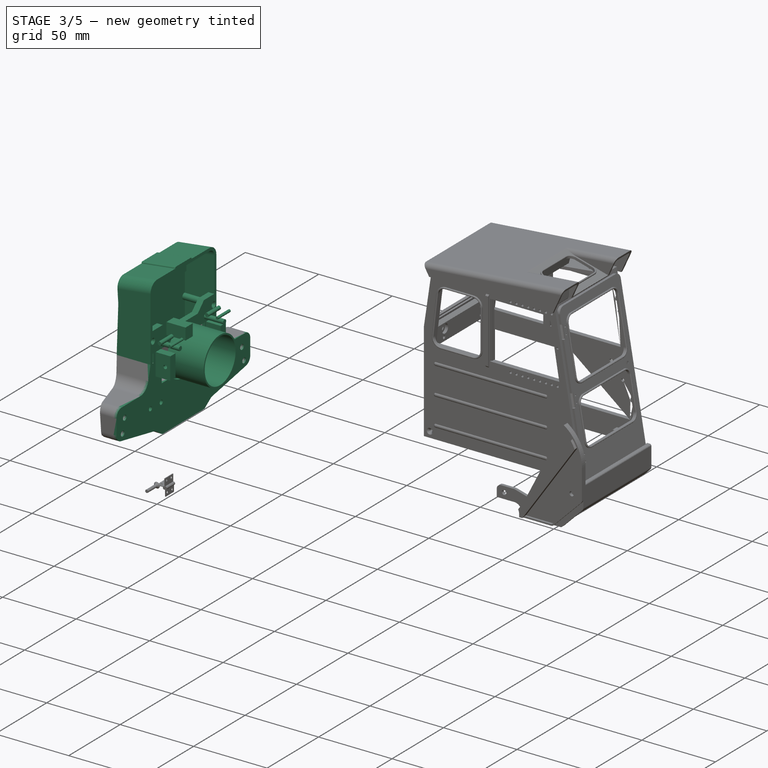
[diagram: stage 3 of 5 — iso view after this stage's code; geometry added in this stage tinted green]
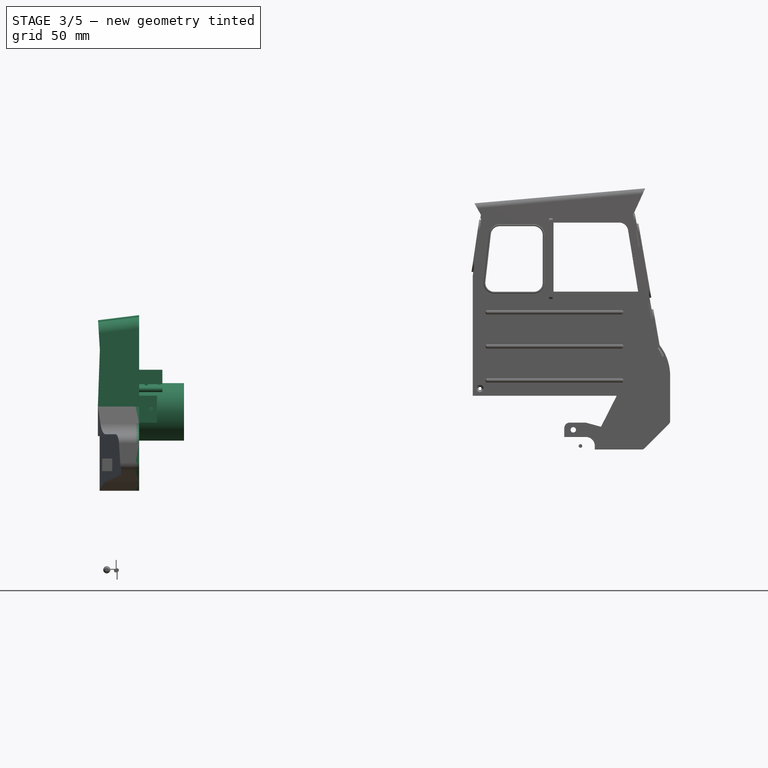
[diagram: stage 3 of 5 — front view after this stage's code; geometry added in this stage tinted green]
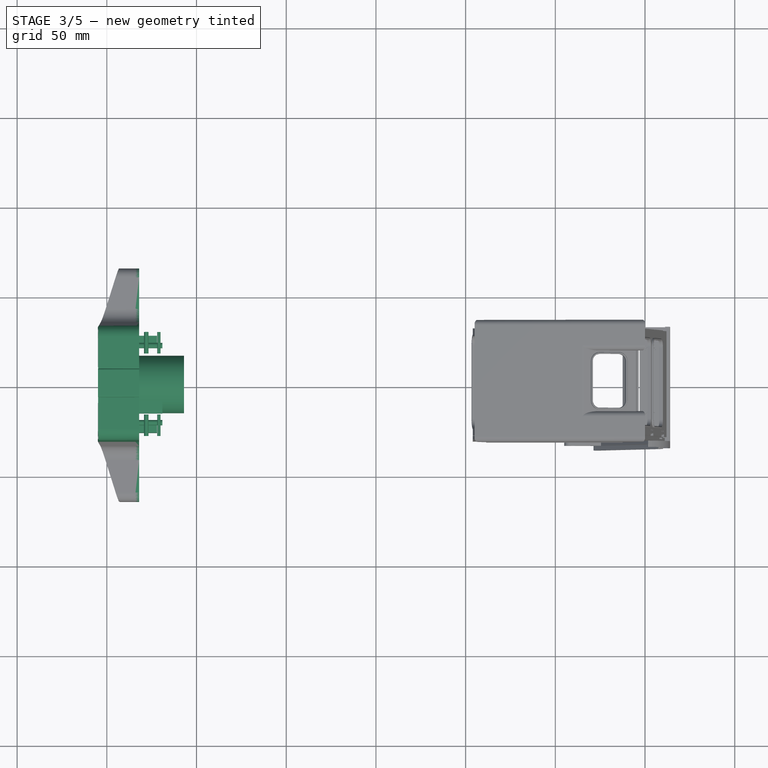
[diagram: stage 3 of 5 — top view after this stage's code; geometry added in this stage tinted green]
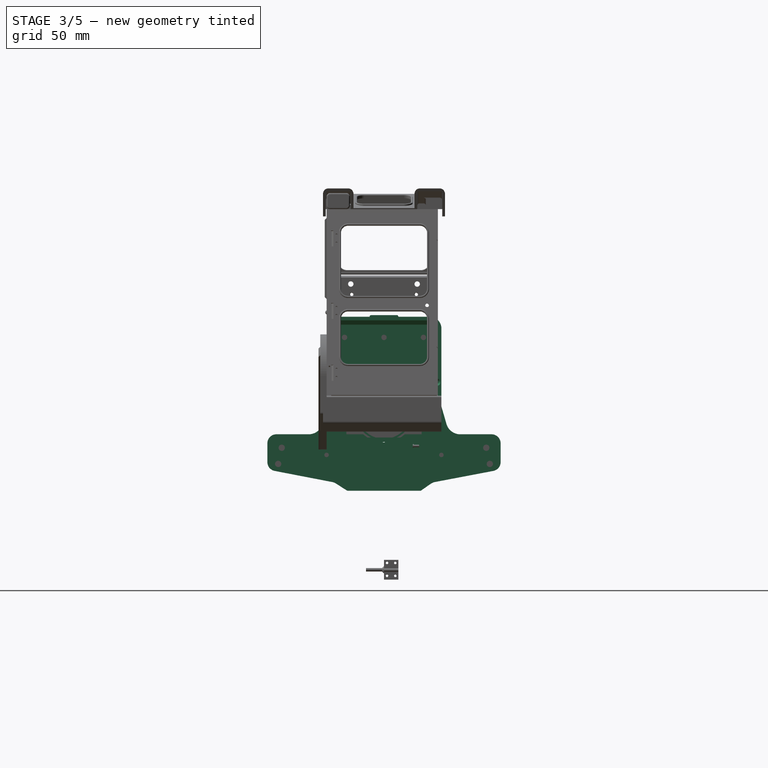
[diagram: stage 3 of 5 — right view after this stage's code; geometry added in this stage tinted green]
FEATURE [Sketcher::SketchObject] Sketch047
  AttachmentOffset = pos=(0,0,-18) rot=(0,0,1;0rad)
  FullyConstrained = false
  MapMode = 5
  Placement = pos=(18,-4e-15,4e-15) rot=(-0.57735,0.57735,0.57735;4.18879rad)
  Support = -> [YZ_Plane028]
  sketch-geometry (30):
    g0: LineSegment StartX=60 StartY=75.5 StartZ=0 EndX=42 EndY=75.5 EndZ=0
    g1: LineSegment StartX=-65 StartY=70.5 StartZ=0 EndX=-65 EndY=60 EndZ=0
    g2: LineSegment StartX=-60.9345 StartY=55.0881 StartZ=0 EndX=-28.3786 EndY=48.8943 EndZ=0
    g3: LineSegment StartX=-26.0683 StartY=47.9217 StartZ=0 EndX=-20.5 EndY=44.0391 EndZ=0
    g4: LineSegment StartX=-20.5 StartY=44.0391 StartZ=0 EndX=0 EndY=44.0391 EndZ=0
    g5: LineSegment StartX=0 StartY=44.0391 StartZ=0 EndX=20.5 EndY=44.0391 EndZ=0
    g6: LineSegment StartX=65 StartY=70.5 StartZ=0 EndX=65 EndY=60 EndZ=0
    g7: LineSegment StartX=60.9483 StartY=55.0907 StartZ=0 EndX=28.8524 EndY=48.8911 EndZ=0
    g8: LineSegment StartX=20.5 StartY=44.0391 StartZ=0 EndX=26.75 EndY=48.0497 EndZ=0
    g9: ArcOfCircle CenterX=-60 CenterY=70.5 CenterZ=0 NormalX=0 NormalY=0 NormalZ=1 AngleXU=0 Radius=5 StartAngle=1.5708 EndAngle=3.14159
    g10: ArcOfCircle CenterX=60 CenterY=70.5 CenterZ=0 NormalX=0 NormalY=0 NormalZ=1 AngleXU=0 Radius=5 StartAngle=-9e-16 EndAngle=1.5708
    g11: ArcOfCircle CenterX=60 CenterY=60 CenterZ=0 NormalX=0 NormalY=0 NormalZ=1 AngleXU=0 Radius=5 StartAngle=4.9032 EndAngle=6.28319
    g12: ArcOfCircle CenterX=-60 CenterY=60 CenterZ=0 NormalX=0 NormalY=0 NormalZ=1 AngleXU=0 Radius=5 StartAngle=3.14159 EndAngle=4.52438
    g13: ArcOfCircle CenterX=29.9904 CenterY=43 CenterZ=0 NormalX=0 NormalY=0 NormalZ=1 AngleXU=0 Radius=6 StartAngle=1.76161 EndAngle=2.14131
    g14: ArcOfCircle CenterX=-29.5 CenterY=43 CenterZ=0 NormalX=0 NormalY=0 NormalZ=1 AngleXU=0 Radius=6 StartAngle=0.961907 EndAngle=1.38279
    g15: LineSegment StartX=-32 StartY=91 StartZ=0 EndX=-34.8156 EndY=81.2752 EndZ=0
    g16: LineSegment StartX=-32 StartY=91 StartZ=0 EndX=-29 EndY=91 EndZ=0
    g17: LineSegment StartX=-21 StartY=75.5 StartZ=0 EndX=0 EndY=75.5 EndZ=0
    g18: LineSegment StartX=0 StartY=75.5 StartZ=0 EndX=21 EndY=75.5 EndZ=0
    g19: LineSegment StartX=29 StartY=91 StartZ=0 EndX=32 EndY=91 EndZ=0
    g20: LineSegment StartX=32 StartY=91 StartZ=0 EndX=34.2158 EndY=81.6544 EndZ=0
    g21: LineSegment StartX=-42.5 StartY=75.5 StartZ=0 EndX=-60 EndY=75.5 EndZ=0
    g22: ArcOfCircle CenterX=42 CenterY=83.5 CenterZ=0 NormalX=0 NormalY=0 NormalZ=1 AngleXU=0 Radius=8 StartAngle=3.37439 EndAngle=4.71239
    g23: ArcOfCircle CenterX=-42.5 CenterY=83.5 CenterZ=0 NormalX=0 NormalY=0 NormalZ=1 AngleXU=0 Radius=8 StartAngle=4.71239 EndAngle=6.00137
    g24: LineSegment StartX=29 StartY=91 StartZ=0 EndX=29 EndY=97 EndZ=0
    g25: LineSegment StartX=29 StartY=97 StartZ=0 EndX=21 EndY=97 EndZ=0
    g26: LineSegment StartX=21 StartY=97 StartZ=0 EndX=21 EndY=75.5 EndZ=0
    g27: LineSegment StartX=-29 StartY=91 StartZ=0 EndX=-29 EndY=97 EndZ=0
    g28: LineSegment StartX=-29 StartY=97 StartZ=0 EndX=-21 EndY=97 EndZ=0
    g29: LineSegment StartX=-21 StartY=97 StartZ=0 EndX=-21 EndY=75.5 EndZ=0
  constraints (67):
    c: Horizontal(g0)
    c: Vertical(g1)
    c: Coincident(g4,g3)
    c: PointOnObject(g4,g-2)
    c: Horizontal(g4)
    c: Coincident(g5,g4)
    c: Horizontal(g5)
    c: Distance(g3,g-2) = 20.5
    c: Distance(g5,g-2) = 20.5
    c: Vertical(g6)
    c: Coincident(g8,g5)
    c: Coincident(g21,g9) = -1.5708
    c: Tangent(g1,g9) = -1.5708
    c: Radius(g9) = 5
    c: Tangent(g6,g10) = 1.5708
    c: Tangent(g0,g10) = -1.5708
    c: Radius(g10) = 5
    c: Distance(g6,g-2) = 65
    c: Tangent(g6,g11) = 1.5708
    c: Tangent(g7,g11) = 1.5708
    c: Radius(g11) = 5
    c: Tangent(g1,g12) = -1.5708
    c: Tangent(g2,g12) = -1.5708
    c: Radius(g12) = 5
    c: DistanceX(g12) = -60
    c: DistanceY(g12) = 60
    c: DistanceY(g11) = 60
    c: Tangent(g8,g13) = 1.5708
    c: Tangent(g7,g13) = -1.5708
    c: Radius(g13) = 6
    c: Tangent(g3,g14) = 1.5708
    c: Tangent(g2,g14) = 1.5708
    c: Radius(g14) = 6
    c: Coincident(g16,g15)
    c: Horizontal(g16)
    c: PointOnObject(g17,g-2)
    c: Horizontal(g17)
    c: Coincident(g18,g17)
    c: Horizontal(g18)
    c: Horizontal(g19)
    c: Coincident(g20,g19)
    c: DistanceY(g0) = 75.5
    c: DistanceX(g9) = -60
    c: DistanceY(g9) = 75.5
    c: Tangent(g0,g22) = 1.5708
    c: Tangent(g20,g22) = -1.5708
    c: Radius(g22) = 8
    c: DistanceX(g15) = -32
    c: DistanceY(g15) = 91
    c: DistanceX(g19) = 32
    c: DistanceY(g19) = 91
    c: Tangent(g15,g23) = 1.5708
    c: Tangent(g21,g23) = 1.5708
    c: Radius(g23) = 8
    c: DistanceX(g22) = 42
    c: Vertical(g24)
    c: Coincident(g25,g24)
    c: Coincident(g26,g25)
    c: Vertical(g26)
    c: Coincident(g16,g27)
    c: Vertical(g27)
    c: Coincident(g27,g28)
    c: Horizontal(g28)
    c: Coincident(g28,g29)
    c: Vertical(g29)
    c: Coincident(g17,g29)
    c: Coincident(g18,g26)
FEATURE [PartDesign::Pad] Pad026
  Direction = (-1,2e-16,-3e-16)
  Length = 2
  Length2 = 10
  Placement = pos=(0,0,0) rot=(0.57735,0.57735,0.57735;2.0944rad)
  Profile = -> Sketch047
  ReferenceAxis = -> Sketch047 [N_Axis]
  Refine = true
  Type = 0
FEATURE [Part::Box] Box783  label="Cube"
  AttacherType = Attacher::AttachEngine3D
  Height = 27.5
  Length = 6
  Placement = pos=(-2.2,-23.75,46.25) rot=(0,0,1;0rad)
  Width = 47.5
FEATURE [Part::Box] Box784  label="Cube"
  AttacherType = Attacher::AttachEngine3D
  Height = 27.5
  Length = 6
  Placement = pos=(3.9,-36.75,46.25) rot=(0,0,1;0rad)
  Width = 73.5
FEATURE [Part::Box] Box785  label="Cube"
  AttacherType = Attacher::AttachEngine3D
  Height = 27.5
  Length = 6
  Placement = pos=(10,-49.75,46.25) rot=(0,0,1;0rad)
  Width = 99.5
FEATURE [Part::MultiFuse] Fusion004002009002027014004009002002008002004029002015013017006002012002031033002013006007008014029072011018024002019049062029014012006016002033001057009078004002010031016012003004006002003003002005005002020005028015  label="Fusion"
  Refine = true
  Shapes = -> [Box783,Box784,Box785]
FEATURE [Part::Box] Box786  label="Cube"
  AttacherType = Attacher::AttachEngine3D
  Height = 15
  Length = 20
  Placement = pos=(-3,-51,40) rot=(0,0,1;0rad)
  Width = 24
FEATURE [Part::Box] Box787  label="Cube"
  AttacherType = Attacher::AttachEngine3D
  Height = 10
  Length = 20
  Placement = pos=(-3,-50,40) rot=(0,0,1;0rad)
  Width = 31
FEATURE [Part::Chamfer] Chamfer039025078004046
  Base = -> Box786
  Edges = 1 edges: [Edge12 r1=5 r2=23.5]
FEATURE [Part::Chamfer] Chamfer039025078004047
  Base = -> Box787
  Edges = 1 edges: [Edge12 r1=5 r2=8]
FEATURE [Part::MultiFuse] Fusion004002009002027014004009002002008002004029002015013017006002012002031033002013006007008014029072011018024002019049062029014012006016002033001057009078004002010031016012003004006002003003002005005002020005028016  label="Fusion"
  Refine = true
  Shapes = -> [Chamfer039025078004046,Chamfer039025078004047]
FEATURE [Part::Feature] Part__Mirroring007002003002018002002002005004004002003004003003004003003003003002002002002002002001  label="Fusion"
  shape: bbox 20 x 32 x 15 mm, 8 faces (baked)
FEATURE [Part::MultiFuse] Fusion004002009002027014004009002002008002004029002015013017006002012002031033002013006007008014029072011018024002019049062029014012006016002033001057009078004002010031016012003004006002003003002005005002020005028017  label="Fusion"
  Placement = pos=(0,0,0.25) rot=(0,0,1;0rad)
  Refine = true
  Shapes = -> [Fusion004002009002027014004009002002008002004029002015013017006002012002031033002013006007008014029072011018024002019049062029014012006016002033001057009078004002010031016012003004006002003003002005005002020005028016,Part__Mirroring007002003002018002002002005004004002003004003003004003003003003002002002002002002001]
FEATURE [Part::Cylinder] Cylinder1492444  label="Cylinder"
  Angle = 360
  AttacherType = Attacher::AttachEngine3D
  FirstAngle = 0
  Height = 18.2
  Placement = pos=(21,-32,64) rot=(0,-1,0;1.5708rad)
  Radius = 1.5
  SecondAngle = 0
FEATURE [Part::Cylinder] Cylinder1492445  label="Cylinder"
  Angle = 360
  AttacherType = Attacher::AttachEngine3D
  FirstAngle = 0
  Height = 18.2
  Placement = pos=(21,32,64) rot=(0,-1,0;1.5708rad)
  Radius = 1.5
  SecondAngle = 0
FEATURE [Part::Box] Box805  label="Cube"
  AttacherType = Attacher::AttachEngine3D
  Height = 15
  Length = 10
  Placement = pos=(18,-27,82) rot=(0,0,1;0rad)
  Width = 5
FEATURE [Part::Cylinder] Cylinder1492452  label="Cylinder"
  Angle = 360
  AttacherType = Attacher::AttachEngine3D
  FirstAngle = 0
  Height = 10
  Placement = pos=(16,-24.5,94) rot=(0,1,0;1.5708rad)
  Radius = 1.5
  SecondAngle = 0
FEATURE [Part::Cylinder] Cylinder1492453  label="Cylinder"
  Angle = 360
  AttacherType = Attacher::AttachEngine3D
  FirstAngle = 0
  Height = 10
  Placement = pos=(16,-24.5,85) rot=(0,1,0;1.5708rad)
  Radius = 1.5
  SecondAngle = 0
FEATURE [Part::Cylinder] Cylinder1492454  label="Cylinder"
  Angle = 360
  AttacherType = Attacher::AttachEngine3D
  FirstAngle = 0
  Height = 10
  Placement = pos=(16,24.5,85) rot=(0,1,0;1.5708rad)
  Radius = 1.5
  SecondAngle = 0
FEATURE [Part::Cylinder] Cylinder1492455  label="Cylinder"
  Angle = 360
  AttacherType = Attacher::AttachEngine3D
  FirstAngle = 0
  Height = 10
  Placement = pos=(16,24.5,94) rot=(0,1,0;1.5708rad)
  Radius = 1.5
  SecondAngle = 0
FEATURE [Part::Cylinder] Cylinder1492456  label="Cylinder"
  Angle = 360
  AttacherType = Attacher::AttachEngine3D
  FirstAngle = 0
  Height = 10
  Placement = pos=(16,21.5,64) rot=(0,1,0;1.5708rad)
  Radius = 1.5
  SecondAngle = 0
FEATURE [Part::Cylinder] Cylinder1492457  label="Cylinder"
  Angle = 360
  AttacherType = Attacher::AttachEngine3D
  FirstAngle = 0
  Height = 10
  Placement = pos=(16,-21.5,64) rot=(0,1,0;1.5708rad)
  Radius = 1.5
  SecondAngle = 0
FEATURE [Part::MultiFuse] Fusion004002009002027014004009002002008002004029002015013017006002012002031033002013006007008014029072011018024002019049062029014012006016002033001057009078004002010031016012003004006002003003002005005002020005028040003  label="Fusion"
  Refine = true
  Shapes = -> [Cylinder1492452,Cylinder1492453,Cylinder1492454,Cylinder1492455,Cylinder1492456,Cylinder1492457]
FEATURE [Part::Cylinder] Cylinder1492464  label="Cylinder"
  Angle = 360
  AttacherType = Attacher::AttachEngine3D
  FirstAngle = 0
  Height = 15
  Placement = pos=(0,-59,59) rot=(0,-1,0;1.5708rad)
  Radius = 1.5
  SecondAngle = 0
FEATURE [Part::Cylinder] Cylinder1492465  label="Cylinder"
  Angle = 360
  AttacherType = Attacher::AttachEngine3D
  FirstAngle = 0
  Height = 15
  Placement = pos=(0,-57,68) rot=(0,-1,0;1.5708rad)
  Radius = 1.5
  SecondAngle = 0
FEATURE [Part::Cylinder] Cylinder1492466  label="Cylinder"
  Angle = 360
  AttacherType = Attacher::AttachEngine3D
  FirstAngle = 0
  Height = 10
  Placement = pos=(0,-59,59) rot=(0,-1,0;1.5708rad)
  Radius = 1.75
  SecondAngle = 0
FEATURE [Part::Cylinder] Cylinder1492467  label="Cylinder"
  Angle = 360
  AttacherType = Attacher::AttachEngine3D
  FirstAngle = 0
  Height = 10
  Placement = pos=(0,-57,68) rot=(0,-1,0;1.5708rad)
  Radius = 1.75
  SecondAngle = 0
FEATURE [Part::Cylinder] Cylinder1492468  label="Cylinder"
  Angle = 360
  AttacherType = Attacher::AttachEngine3D
  FirstAngle = 0
  Height = 15
  Placement = pos=(0,59,59) rot=(0,-1,0;1.5708rad)
  Radius = 1.5
  SecondAngle = 0
FEATURE [Part::Cylinder] Cylinder1492469  label="Cylinder"
  Angle = 360
  AttacherType = Attacher::AttachEngine3D
  FirstAngle = 0
  Height = 15
  Placement = pos=(0,57,68) rot=(0,-1,0;1.5708rad)
  Radius = 1.5
  SecondAngle = 0
FEATURE [Part::Cylinder] Cylinder1492470  label="Cylinder"
  Angle = 360
  AttacherType = Attacher::AttachEngine3D
  FirstAngle = 0
  Height = 10
  Placement = pos=(0,59,59) rot=(0,-1,0;1.5708rad)
  Radius = 1.75
  SecondAngle = 0
FEATURE [Part::Cylinder] Cylinder1492471  label="Cylinder"
  Angle = 360
  AttacherType = Attacher::AttachEngine3D
  FirstAngle = 0
  Height = 10
  Placement = pos=(0,57,68) rot=(0,-1,0;1.5708rad)
  Radius = 1.75
  SecondAngle = 0
FEATURE [Part::MultiFuse] Fusion004002009002027014004009002002008002004029002015013017006002012002031033002013006007008014029072011018024002019049062029014012006016002033001057009078004002010031016012003004006002003003002005005002020005028040007  label="Fusion"
  Placement = pos=(24,0,0) rot=(0,0,1;0rad)
  Refine = true
  Shapes = -> [Cylinder1492464,Cylinder1492465,Cylinder1492466,Cylinder1492467]
FEATURE [Part::MultiFuse] Fusion004002009002027014004009002002008002004029002015013017006002012002031033002013006007008014029072011018024002019049062029014012006016002033001057009078004002010031016012003004006002003003002005005002020005028040008  label="Fusion"
  Placement = pos=(24,0,0) rot=(0,0,1;0rad)
  Refine = true
  Shapes = -> [Cylinder1492468,Cylinder1492469,Cylinder1492470,Cylinder1492471]
FEATURE [Part::MultiFuse] Fusion004002009002027014004009002002008002004029002015013017006002012002031033002013006007008014029072011018024002019049062029014012006016002033001057009078004002010031016012003004006002003003002005005002020005028040009  label="Fusion"
  Refine = true
  Shapes = -> [Fusion004002009002027014004009002002008002004029002015013017006002012002031033002013006007008014029072011018024002019049062029014012006016002033001057009078004002010031016012003004006002003003002005005002020005028040007,+1 more]
FEATURE [Part::MultiFuse] Fusion004002009002027014004009002002008002004029002015013017006002012002031033002013006007008014029072011018024002019049062029014012006016002033001057009078004002010031016012003004006002003003002005005002020005028040011  label="Fusion"
  Refine = true
  Shapes = -> [Cylinder1492445,Cylinder1492444]
FEATURE [Part::MultiFuse] Fusion004002009002027014004009002002008002004029002015013017006002012002031033002013006007008014029072011018024002019049062029014012006016002033001057009078004002010031016012003004006002003003002005005002020005028040012  label="Fusion"
  Refine = true
  Shapes = -> [Fusion004002009002027014004009002002008002004029002015013017006002012002031033002013006007008014029072011018024002019049062029014012006016002033001057009078004002010031016012003004006002003003002005005002020005028040003,+2 more]
FEATURE [Part::Cut] Cut176013009033007019019008010045003002004008006010017027003005053020098001031003007007002011005005004026009004013004003002011004011006011012003022017003021017  label="Cut"
  Base = -> Body001019
  Refine = true
  Tool = -> Fusion004002009002027014004009002002008002004029002015013017006002012002031033002013006007008014029072011018024002019049062029014012006016002033001057009078004002010031016012003004006002003003002005005002020005028040012
FEATURE [Part::Cylinder] Cylinder1492472  label="Cylinder"
  Angle = 360
  AttacherType = Attacher::AttachEngine3D
  FirstAngle = 0
  Height = 18.2
  Placement = pos=(21,-32,64) rot=(0,-1,0;1.5708rad)
  Radius = 1.25
  SecondAngle = 0
FEATURE [Part::Cylinder] Cylinder1492473  label="Cylinder"
  Angle = 360
  AttacherType = Attacher::AttachEngine3D
  FirstAngle = 0
  Height = 18.2
  Placement = pos=(21,32,64) rot=(0,-1,0;1.5708rad)
  Radius = 1.25
  SecondAngle = 0
FEATURE [Part::MultiFuse] Fusion004002009002027014004009002002008002004029002015013017006002012002031033002013006007008014029072011018024002019049062029014012006016002033001057009078004002010031016012003004006002003003002005005002020005028040013  label="Fusion"
  Refine = true
  Shapes = -> [Cylinder1492473,Cylinder1492472]
FEATURE [Part::Cylinder] Cylinder1492474  label="Cylinder"
  Angle = 360
  AttacherType = Attacher::AttachEngine3D
  FirstAngle = 0
  Height = 12
  Placement = pos=(-2,-53,62) rot=(0,-1,0;1.5708rad)
  Radius = 1.25
  SecondAngle = 0
FEATURE [Part::Cylinder] Cylinder1492475  label="Cylinder"
  Angle = 360
  AttacherType = Attacher::AttachEngine3D
  FirstAngle = 0
  Height = 6
  Placement = pos=(-2,-53,62) rot=(0,-1,0;1.5708rad)
  Radius = 1.5
  SecondAngle = 0
FEATURE [Part::MultiFuse] Fusion004002009002027014004009002002008002004029002015013017006002012002031033002013006007008014029072011018024002019049062029014012006016002033001057009078004002010031016012003004006002003003002005005002020005028040014  label="Fusion"
  Placement = pos=(18,14,2) rot=(0,0,1;0rad)
  Refine = true
  Shapes = -> [Cylinder1492474,Cylinder1492475]
FEATURE [Part::Cut] Cut176013009033007019019008010045003002004008006010017027003005053020098001031003007007002011005005004026009004013004003002011004011006011012003022017003021019  label="Cut"
  Base = -> Fusion004002009002027014004009002002008002004029002015013017006002012002031033002013006007008014029072011018024002019049062029014012006016002033001057009078004002010031016012003004006002003003002005005002020005028015
  Refine = true
  Tool = -> Fusion004002009002027014004009002002008002004029002015013017006002012002031033002013006007008014029072011018024002019049062029014012006016002033001057009078004002010031016012003004006002003003002005005002020005028017
FEATURE [Part::Cut] Cut176013009033007019019008010045003002004008006010017027003005053020098001031003007007002011005005004026009004013004003002011004011006011012003022017003021020  label="Cut"
  Base = -> Cut176013009033007019019008010045003002004008006010017027003005053020098001031003007007002011005005004026009004013004003002011004011006011012003022017003021016
  Refine = true
  Tool = -> Box807
FEATURE [Part::Cylinder] Cylinder1492476  label="Cylinder"
  Angle = 360
  AttacherType = Attacher::AttachEngine3D
  FirstAngle = 0
  Height = 2
  Placement = pos=(-2.2,0,70) rot=(0,-1,0;1.5708rad)
  Radius = 1.5
  SecondAngle = 0
FEATURE [Part::Cylinder] Cylinder1492477  label="Cylinder"
  Angle = 360
  AttacherType = Attacher::AttachEngine3D
  FirstAngle = 0
  Height = 20
  Placement = pos=(16,0,70) rot=(0,-1,0;1.5708rad)
  Radius = 1.25
  SecondAngle = 0
FEATURE [Part::MultiFuse] Fusion004002009002027014004009002002008002004029002015013017006002012002031033002013006007008014029072011018024002019049062029014012006016002033001057009078004002010031016012003004006002003003002005005002020005028040015  label="Fusion"
  Refine = true
  Shapes = -> [Cylinder1492476,Cylinder1492477]
FEATURE [Part::Cylinder] Cylinder1492480  label="Cylinder"
  Angle = 360
  AttacherType = Attacher::AttachEngine3D
  FirstAngle = 0
  Height = 12
  Placement = pos=(-2,-53,62) rot=(0,-1,0;1.5708rad)
  Radius = 1.25
  SecondAngle = 0
FEATURE [Part::Cylinder] Cylinder1492481  label="Cylinder"
  Angle = 360
  AttacherType = Attacher::AttachEngine3D
  FirstAngle = 0
  Height = 6
  Placement = pos=(-2,-53,62) rot=(0,-1,0;1.5708rad)
  Radius = 1.5
  SecondAngle = 0
FEATURE [Part::MultiFuse] Fusion004002009002027014004009002002008002004029002015013017006002012002031033002013006007008014029072011018024002019049062029014012006016002033001057009078004002010031016012003004006002003003002005005002020005028040017  label="Fusion"
  Placement = pos=(18,92,2) rot=(0,0,1;0rad)
  Refine = true
  Shapes = -> [Cylinder1492480,Cylinder1492481]
FEATURE [Part::MultiFuse] Fusion004002009002027014004009002002008002004029002015013017006002012002031033002013006007008014029072011018024002019049062029014012006016002033001057009078004002010031016012003004006002003003002005005002020005028040018  label="Fusion"
  Refine = true
  Shapes = -> [Fusion004002009002027014004009002002008002004029002015013017006002012002031033002013006007008014029072011018024002019049062029014012006016002033001057009078004002010031016012003004006002003003002005005002020005028040013,+3 more]
FEATURE [Part::Cut] Cut176013009033007019019008010045003002004008006010017027003005053020098001031003007007002011005005004026009004013004003002011004011006011012003022017003021021  label="frame-rear-counterweight-IRON6mm"
  Base = -> Cut176013009033007019019008010045003002004008006010017027003005053020098001031003007007002011005005004026009004013004003002011004011006011012003022017003021019
  Refine = true
  Tool = -> Fusion004002009002027014004009002002008002004029002015013017006002012002031033002013006007008014029072011018024002019049062029014012006016002033001057009078004002010031016012003004006002003003002005005002020005028040018
FEATURE [Part::Cut] Cut176013009033007019019008010045003002004008006010017027003005053020098001031003007007002011005005004026009004013004003002011004011006011012003022017003021022  label="Cut"
  Base = -> Cut176013009033007019019008010045003002004008006010017027003005053020098001031003007007002011005005004026009004013004003002011004011006011012003022017003021020
  Refine = true
  Tool = -> Fusion004002009002027014004009002002008002004029002015013017006002012002031033002013006007008014029072011018024002019049062029014012006016002033001057009078004002010031016012003004006002003003002005005002020005028040020
FEATURE [Part::Cylinder] Cylinder1492487  label="Cylinder"
  Angle = 360
  AttacherType = Attacher::AttachEngine3D
  FirstAngle = 0
  Height = 10
  Placement = pos=(16,-24.5,94) rot=(0,1,0;1.5708rad)
  Radius = 1.25
  SecondAngle = 0
FEATURE [Part::Cylinder] Cylinder1492488  label="Cylinder"
  Angle = 360
  AttacherType = Attacher::AttachEngine3D
  FirstAngle = 0
  Height = 10
  Placement = pos=(16,-24.5,85) rot=(0,1,0;1.5708rad)
  Radius = 1.25
  SecondAngle = 0
FEATURE [Part::Cylinder] Cylinder1492490  label="Cylinder"
  Angle = 360
  AttacherType = Attacher::AttachEngine3D
  FirstAngle = 0
  Height = 10
  Placement = pos=(24.5,-32,89.5) rot=(-1,0,0;1.5708rad)
  Radius = 1.25
  SecondAngle = 0
FEATURE [Part::MultiFuse] Fusion004002009002027014004009002002008002004029002015013017006002012002031033002013006007008014029072011018024002019049062029014012006016002033001057009078004002010031016012003004006002003003002005005002020005028040022  label="Fusion"
  Refine = true
  Shapes = -> [Cylinder1492487,Cylinder1492488,Cylinder1492490]
FEATURE [Part::Cut] Cut176013009033007019019008010045003002004008006010017027003005053020098001031003007007002011005005004026009004013004003002011004011006011012003022017003021024  label="frame-rear-bumper-attach-right-ALU5mm"
  Base = -> Box805
  Refine = true
  Tool = -> Fusion004002009002027014004009002002008002004029002015013017006002012002031033002013006007008014029072011018024002019049062029014012006016002033001057009078004002010031016012003004006002003003002005005002020005028040022
FEATURE [Part::Box] Box809  label="Cube"
  AttacherType = Attacher::AttachEngine3D
  Height = 15
  Length = 10
  Placement = pos=(18,-27,82) rot=(0,0,1;0rad)
  Width = 5
FEATURE [Part::Cylinder] Cylinder1492491  label="Cylinder"
  Angle = 360
  AttacherType = Attacher::AttachEngine3D
  FirstAngle = 0
  Height = 10
  Placement = pos=(16,-24.5,94) rot=(0,1,0;1.5708rad)
  Radius = 1.25
  SecondAngle = 0
FEATURE [Part::Cylinder] Cylinder1492492  label="Cylinder"
  Angle = 360
  AttacherType = Attacher::AttachEngine3D
  FirstAngle = 0
  Height = 10
  Placement = pos=(16,-24.5,85) rot=(0,1,0;1.5708rad)
  Radius = 1.25
  SecondAngle = 0
FEATURE [Part::Cylinder] Cylinder1492493  label="Cylinder"
  Angle = 360
  AttacherType = Attacher::AttachEngine3D
  FirstAngle = 0
  Height = 10
  Placement = pos=(24.5,-32,89.5) rot=(-1,0,0;1.5708rad)
  Radius = 1.25
  SecondAngle = 0
FEATURE [Part::MultiFuse] Fusion004002009002027014004009002002008002004029002015013017006002012002031033002013006007008014029072011018024002019049062029014012006016002033001057009078004002010031016012003004006002003003002005005002020005028040023  label="Fusion"
  Refine = true
  Shapes = -> [Cylinder1492491,Cylinder1492492,Cylinder1492493]
FEATURE [Part::Cut] Cut176013009033007019019008010045003002004008006010017027003005053020098001031003007007002011005005004026009004013004003002011004011006011012003022017003021025  label="frame-rear-bumper-attach-left-ALU5mm"
  Base = -> Box809
  Placement = pos=(0,49,0) rot=(0,0,1;0rad)
  Refine = true
  Tool = -> Fusion004002009002027014004009002002008002004029002015013017006002012002031033002013006007008014029072011018024002019049062029014012006016002033001057009078004002010031016012003004006002003003002005005002020005028040023
FEATURE [Part::Cylinder] Cylinder1492495  label="Cylinder"
  Angle = 360
  AttacherType = Attacher::AttachEngine3D
  FirstAngle = 0
  Height = 25
  Placement = pos=(18,0,88) rot=(0,1,0;1.5708rad)
  Radius = 16
  SecondAngle = 0
FEATURE [Part::Cylinder] Cylinder1492496  label="Cylinder"
  Angle = 360
  AttacherType = Attacher::AttachEngine3D
  FirstAngle = 0
  Height = 25
  Placement = pos=(18,0,88) rot=(0,1,0;1.5708rad)
  Radius = 15
  SecondAngle = 0
FEATURE [Part::Cut] Cut176013009033007019019008010045003002004008006010017027003005053020098001031003007007002011005005004026009004013004003002011004011006011012003022017003021028  label="Cut"
  Base = -> Cylinder1492495
  Refine = true
  Tool = -> Cylinder1492496
FEATURE [Part::Cylinder] Cylinder1492497  label="Cylinder"
  Angle = 360
  AttacherType = Attacher::AttachEngine3D
  FirstAngle = 0
  Height = 12
  Placement = pos=(22,-29,104) rot=(-1,0,0;1.5708rad)
  Radius = 1.25
  SecondAngle = 0
FEATURE [Part::Cylinder] Cylinder1492498  label="Cylinder"
  Angle = 360
  AttacherType = Attacher::AttachEngine3D
  FirstAngle = 0
  Height = 12
  Placement = pos=(29,-29,104) rot=(-1,0,0;1.5708rad)
  Radius = 0.9
  SecondAngle = 0
FEATURE [Part::Cylinder] Cylinder1492499  label="Cylinder"
  Angle = 360
  AttacherType = Attacher::AttachEngine3D
  FirstAngle = 0
  Height = 12
  Placement = pos=(22,17,104) rot=(-1,0,0;1.5708rad)
  Radius = 1.25
  SecondAngle = 0
FEATURE [Part::Cylinder] Cylinder1492500  label="Cylinder"
  Angle = 360
  AttacherType = Attacher::AttachEngine3D
  FirstAngle = 0
  Height = 12
  Placement = pos=(29,17,104) rot=(-1,0,0;1.5708rad)
  Radius = 0.9
  SecondAngle = 0
FEATURE [Part::MultiFuse] Fusion004002009002027014004009002002008002004029002015013017006002012002031033002013006007008014029072011018024002019049062029014012006016002033001057009078004002010031016012003004006002003003002005005002020005028040025  label="Fusion"
  Refine = true
  Shapes = -> [Cylinder1492500,Cylinder1492497,Cylinder1492498,Cylinder1492499]
FEATURE [App::DocumentObjectGroup] Group012  label="Tools"
  Group = -> [Cut176013009033007019019008010045003002004008006010017027003005053020098001031003007007002011005005004026009004013005002003006024015007006009,Cut176013009033007019019008010045003002004008006010017027003005053020098001031003007007002011005005004026009004013004003002011004011006011012003022017003021033]
FEATURE [Part::Box] Box821  label="Cube"
  AttacherType = Attacher::AttachEngine3D
  Height = 27.5
  Length = 6
  Placement = pos=(-2,-23.75,46.25) rot=(0,0,1;0rad)
  Width = 47.5
FEATURE [Part::Box] Box822  label="Cube"
  AttacherType = Attacher::AttachEngine3D
  Height = 27.5
  Length = 6
  Placement = pos=(4,-36.75,46.25) rot=(0,0,1;0rad)
  Width = 73.5
FEATURE [Part::Box] Box823  label="Cube"
  AttacherType = Attacher::AttachEngine3D
  Height = 27.5
  Length = 6
  Placement = pos=(10,-49.75,46.25) rot=(0,0,1;0rad)
  Width = 99.5
FEATURE [Part::Box] Box824  label="Cube"
  AttacherType = Attacher::AttachEngine3D
  Height = 15
  Length = 20
  Placement = pos=(-3,-51,40) rot=(0,0,1;0rad)
  Width = 24
FEATURE [Part::Box] Box825  label="Cube"
  AttacherType = Attacher::AttachEngine3D
  Height = 10
  Length = 20
  Placement = pos=(-3,-50,40) rot=(0,0,1;0rad)
  Width = 31
FEATURE [Part::Chamfer] Chamfer039025078004052
  Base = -> Box824
  Edges = 1 edges: [Edge12 r1=5 r2=23.5]
FEATURE [Part::Chamfer] Chamfer039025078004053
  Base = -> Box825
  Edges = 1 edges: [Edge12 r1=5 r2=8]
FEATURE [Part::Cylinder] Cylinder1492508  label="Cylinder"
  Angle = 360
  AttacherType = Attacher::AttachEngine3D
  FirstAngle = 0
  Height = 18.2
  Placement = pos=(21,-32,64) rot=(0,-1,0;1.5708rad)
  Radius = 1.25
  SecondAngle = 0
FEATURE [Part::Cylinder] Cylinder1492509  label="Cylinder"
  Angle = 360
  AttacherType = Attacher::AttachEngine3D
  FirstAngle = 0
  Height = 18.2
  Placement = pos=(21,32,64) rot=(0,-1,0;1.5708rad)
  Radius = 1.25
  SecondAngle = 0
FEATURE [Part::Cylinder] Cylinder1492510  label="Cylinder"
  Angle = 360
  AttacherType = Attacher::AttachEngine3D
  FirstAngle = 0
  Height = 12
  Placement = pos=(-2,-53,62) rot=(0,-1,0;1.5708rad)
  Radius = 1.25
  SecondAngle = 0
FEATURE [Part::Cylinder] Cylinder1492511  label="Cylinder"
  Angle = 360
  AttacherType = Attacher::AttachEngine3D
  FirstAngle = 0
  Height = 6
  Placement = pos=(-2,-53,62) rot=(0,-1,0;1.5708rad)
  Radius = 1.5
  SecondAngle = 0
FEATURE [Part::Cylinder] Cylinder1492512  label="Cylinder"
  Angle = 360
  AttacherType = Attacher::AttachEngine3D
  FirstAngle = 0
  Height = 2
  Placement = pos=(-2.2,0,70) rot=(0,-1,0;1.5708rad)
  Radius = 1.5
  SecondAngle = 0
FEATURE [Part::Cylinder] Cylinder1492513  label="Cylinder"
  Angle = 360
  AttacherType = Attacher::AttachEngine3D
  FirstAngle = 0
  Height = 20
  Placement = pos=(16,0,70) rot=(0,-1,0;1.5708rad)
  Radius = 1.25
  SecondAngle = 0
FEATURE [Part::Cylinder] Cylinder1492514  label="Cylinder"
  Angle = 360
  AttacherType = Attacher::AttachEngine3D
  FirstAngle = 0
  Height = 12
  Placement = pos=(-2,-53,62) rot=(0,-1,0;1.5708rad)
  Radius = 1.25
  SecondAngle = 0
FEATURE [Part::Cylinder] Cylinder1492515  label="Cylinder"
  Angle = 360
  AttacherType = Attacher::AttachEngine3D
  FirstAngle = 0
  Height = 6
  Placement = pos=(-2,-53,62) rot=(0,-1,0;1.5708rad)
  Radius = 1.5
  SecondAngle = 0
FEATURE [Part::MultiFuse] Fusion004002009002027014004009002002008002004029002015013017006002012002031033002013006007008014029072011018024002019049062029014012006016002033001057009078004002010031016012003004006002003003002005005002020005028040026011  label="Fusion"
  Refine = true
  Shapes = -> [Box821,Box822,Box823]
FEATURE [Part::MultiFuse] Fusion004002009002027014004009002002008002004029002015013017006002012002031033002013006007008014029072011018024002019049062029014012006016002033001057009078004002010031016012003004006002003003002005005002020005028040026012  label="Fusion"
  Refine = true
  Shapes = -> [Chamfer039025078004052,Chamfer039025078004053]
FEATURE [Part::MultiFuse] Fusion004002009002027014004009002002008002004029002015013017006002012002031033002013006007008014029072011018024002019049062029014012006016002033001057009078004002010031016012003004006002003003002005005002020005028040026014  label="Fusion"
  Refine = true
  Shapes = -> [Cylinder1492509,Cylinder1492508]
FEATURE [Part::MultiFuse] Fusion004002009002027014004009002002008002004029002015013017006002012002031033002013006007008014029072011018024002019049062029014012006016002033001057009078004002010031016012003004006002003003002005005002020005028040026015  label="Fusion"
  Placement = pos=(18,14,2) rot=(0,0,1;0rad)
  Refine = true
  Shapes = -> [Cylinder1492510,Cylinder1492511]
FEATURE [Part::MultiFuse] Fusion004002009002027014004009002002008002004029002015013017006002012002031033002013006007008014029072011018024002019049062029014012006016002033001057009078004002010031016012003004006002003003002005005002020005028040026016  label="Fusion"
  Refine = true
  Shapes = -> [Cylinder1492512,Cylinder1492513]
FEATURE [Part::MultiFuse] Fusion004002009002027014004009002002008002004029002015013017006002012002031033002013006007008014029072011018024002019049062029014012006016002033001057009078004002010031016012003004006002003003002005005002020005028040026017  label="Fusion"
  Placement = pos=(18,92,2) rot=(0,0,1;0rad)
  Refine = true
  Shapes = -> [Cylinder1492514,Cylinder1492515]
FEATURE [Part::MultiFuse] Fusion004002009002027014004009002002008002004029002015013017006002012002031033002013006007008014029072011018024002019049062029014012006016002033001057009078004002010031016012003004006002003003002005005002020005028040026018  label="Fusion"
  Refine = true
  Shapes = -> [Fusion004002009002027014004009002002008002004029002015013017006002012002031033002013006007008014029072011018024002019049062029014012006016002033001057009078004002010031016012003004006002003003002005005002020005028040026014,+3 more]
FEATURE [Part::Feature] Part__Mirroring007002003002018002002002005004004002003004003003004003003003003002002002002002002002002003  label="Fusion"
  shape: bbox 20 x 32 x 15 mm, 8 faces (baked)
FEATURE [Part::MultiFuse] Fusion004002009002027014004009002002008002004029002015013017006002012002031033002013006007008014029072011018024002019049062029014012006016002033001057009078004002010031016012003004006002003003002005005002020005028040026013  label="Fusion"
  Placement = pos=(0,0,0.25) rot=(0,0,1;0rad)
  Refine = true
  Shapes = -> [Fusion004002009002027014004009002002008002004029002015013017006002012002031033002013006007008014029072011018024002019049062029014012006016002033001057009078004002010031016012003004006002003003002005005002020005028040026012,Part__Mirroring007002003002018002002002005004004002003004003003004003003003003002002002002002002002002003]
FEATURE [Part::Cut] Cut176013009033007019019008010045003002004008006010017027003005053020098001031003007007002011005005004026009004013004003002011004011006011012003022017003021034  label="Cut"
  Base = -> Fusion004002009002027014004009002002008002004029002015013017006002012002031033002013006007008014029072011018024002019049062029014012006016002033001057009078004002010031016012003004006002003003002005005002020005028040026011
  Refine = true
  Tool = -> Fusion004002009002027014004009002002008002004029002015013017006002012002031033002013006007008014029072011018024002019049062029014012006016002033001057009078004002010031016012003004006002003003002005005002020005028040026013
FEATURE [Part::Cut] Cut176013009033007019019008010045003002004008006010017027003005053020098001031003007007002011005005004026009004013004003002011004011006011012003022017003021035  label="Cut"
  Base = -> Cut176013009033007019019008010045003002004008006010017027003005053020098001031003007007002011005005004026009004013004003002011004011006011012003022017003021034
  Refine = true
  Tool = -> Fusion004002009002027014004009002002008002004029002015013017006002012002031033002013006007008014029072011018024002019049062029014012006016002033001057009078004002010031016012003004006002003003002005005002020005028040026018
FEATURE [Part::Cylinder] Cylinder1492516  label="Cylinder"
  Angle = 360
  AttacherType = Attacher::AttachEngine3D
  FirstAngle = 0
  Height = 2
  Placement = pos=(16,-21.5,64) rot=(0,1,0;1.5708rad)
  Radius = 3
  SecondAngle = 0
FEATURE [Part::Cylinder] Cylinder1492517  label="Cylinder"
  Angle = 360
  AttacherType = Attacher::AttachEngine3D
  FirstAngle = 0
  Height = 2
  Placement = pos=(16,21.5,64) rot=(0,1,0;1.5708rad)
  Radius = 3
  SecondAngle = 0
FEATURE [Part::MultiFuse] Fusion004002009002027014004009002002008002004029002015013017006002012002031033002013006007008014029072011018024002019049062029014012006016002033001057009078004002010031016012003004006002003003002005005002020005028040026019  label="Fusion"
  Placement = pos=(-2,0,0) rot=(0,0,1;0rad)
  Refine = true
  Shapes = -> [Cylinder1492516,Cylinder1492517]
FEATURE [Part::Cut] Cut176013009033007019019008010045003002004008006010017027003005053020098001031003007007002011005005004026009004013004003002011004011006011012003022017003021036  label="Cut"
  Base = -> Cut176013009033007019019008010045003002004008006010017027003005053020098001031003007007002011005005004026009004013004003002011004011006011012003022017003021035
  Refine = true
  Tool = -> Fusion004002009002027014004009002002008002004029002015013017006002012002031033002013006007008014029072011018024002019049062029014012006016002033001057009078004002010031016012003004006002003003002005005002020005028040026019
FEATURE [Part::Chamfer] Chamfer039025078004054  label="frame-rear-counterweight-PLA"
  Base = -> Cut176013009033007019019008010045003002004008006010017027003005053020098001031003007007002011005005004026009004013004003002011004011006011012003022017003021036
  Edges = 2 edges r=2: [Edge47,Edge51]
FEATURE [Part::Feature] Body001017001  label="frame-rear-bumper-body"
  shape: bbox 21 x 130 x 46.96 mm, 26 faces (baked)
FEATURE [Part::Box] Box826  label="Cube"
  AttacherType = Attacher::AttachEngine3D
  Height = 60
  Length = 23
  Placement = pos=(-5,-32,84) rot=(0,0,1;0rad)
  Width = 64
FEATURE [Part::Cut] Cut176013009033007019019008010045003002004008006010017027003005053020098001031003007007002011005005004026009004013004003002011004011006011012003022017003021037  label="Cut"
  Base = -> Box826
  Refine = true
  Tool = -> Body001017001
FEATURE [Part::Box] Box827  label="Cube"
  AttacherType = Attacher::AttachEngine3D
  Height = 14
  Length = 100
  Placement = pos=(-5,-32,138.14) rot=(0,-1,0;0.123918rad)
  Width = 64
FEATURE [Part::Cut] Cut176013009033007019019008010045003002004008006010017027003005053020098001031003007007002011005005004026009004013004003002011004011006011012003022017003021038  label="Cut"
  Base = -> Cut176013009033007019019008010045003002004008006010017027003005053020098001031003007007002011005005004026009004013004003002011004011006011012003022017003021037
  Refine = true
  Tool = -> Box827
FEATURE [Part::Box] Box828  label="Cube"
  AttacherType = Attacher::AttachEngine3D
  Height = 1
  Length = 24
  Placement = pos=(-5,-8,138.09) rot=(0,-1,0;0.123918rad)
  Width = 16
FEATURE [Part::Box] Box829  label="Cube"
  AttacherType = Attacher::AttachEngine3D
  Height = 3
  Length = 1
  Placement = pos=(-6,-8,137) rot=(0,-1,0;0rad)
  Width = 16
FEATURE [Part::Box] Box830  label="Cube"
  AttacherType = Attacher::AttachEngine3D
  Height = 3
  Length = 1
  Placement = pos=(18,-8,140) rot=(0,-1,0;0rad)
  Width = 16
FEATURE [Part::MultiFuse] Fusion004002009002027014004009002002008002004029002015013017006002012002031033002013006007008014029072011018024002019049062029014012006016002033001057009078004002010031016012003004006002003003002005005002020005028040026020  label="Fusion"
  Refine = true
  Shapes = -> [Box830,Box829]
FEATURE [Part::Cut] Cut176013009033007019019008010045003002004008006010017027003005053020098001031003007007002011005005004026009004013004003002011004011006011012003022017003021039  label="Cut"
  Base = -> Box828
  Refine = true
  Tool = -> Fusion004002009002027014004009002002008002004029002015013017006002012002031033002013006007008014029072011018024002019049062029014012006016002033001057009078004002010031016012003004006002003003002005005002020005028040026020
FEATURE [Part::Fillet] Fillet001006007031015002010024020010005015  label="Fillet"
  Base = -> Cut176013009033007019019008010045003002004008006010017027003005053020098001031003007007002011005005004026009004013004003002011004011006011012003022017003021039
  Edges = 2 edges r=0.9: [Edge6,Edge10]
FEATURE [Part::Fillet] Fillet001006007031015002010024020010005016  label="Fillet"
  Base = -> Cut176013009033007019019008010045003002004008006010017027003005053020098001031003007007002011005005004026009004013004003002011004011006011012003022017003021038
  Edges = 2 edges r=6.5: [Edge11,Edge14]
FEATURE [Part::MultiFuse] Fusion004002009002027014004009002002008002004029002015013017006002012002031033002013006007008014029072011018024002019049062029014012006016002033001057009078004002010031016012003004006002003003002005005002020005028040026021  label="Fusion"
  Refine = true
  Shapes = -> [Fillet001006007031015002010024020010005016,Fillet001006007031015002010024020010005015]
FEATURE [Part::Box] Box831  label="Cube"
  AttacherType = Attacher::AttachEngine3D
  Height = 50
  Length = 10
  Placement = pos=(-15,-32,91) rot=(0,1,0;0.034907rad)
  Width = 64
FEATURE [Part::Chamfer] Chamfer039025078004055
  Base = -> Box831
  Edges = 1 edges: [Edge6 r1=18 r2=1.75]
FEATURE [Part::Cut] Cut176013009033007019019008010045003002004008006010017027003005053020098001031003007007002011005005004026009004013004003002011004011006011012003022017003021040  label="Cut"
  Base = -> Fusion004002009002027014004009002002008002004029002015013017006002012002031033002013006007008014029072011018024002019049062029014012006016002033001057009078004002010031016012003004006002003003002005005002020005028040026021
  Refine = true
  Tool = -> Chamfer039025078004055
FEATURE [Part::Box] Box832  label="Cube"
  AttacherType = Attacher::AttachEngine3D
  Height = 14
  Length = 10
  Placement = pos=(-12,-30.5,122.5) rot=(0,1,0;0rad)
  Width = 61
FEATURE [Part::Fillet] Fillet001006007031015002010024020010005017  label="Fillet"
  Base = -> Box832
  Edges = 2 edges r=5: [Edge10,Edge12]
FEATURE [Part::Cut] Cut176013009033007019019008010045003002004008006010017027003005053020098001031003007007002011005005004026009004013004003002011004011006011012003022017003021041  label="Cut"
  Base = -> Cut176013009033007019019008010045003002004008006010017027003005053020098001031003007007002011005005004026009004013004003002011004011006011012003022017003021040
  Refine = true
  Tool = -> Fillet001006007031015002010024020010005017
FEATURE [Part::Box] Box833  label="Cube"
  AttacherType = Attacher::AttachEngine3D
  Height = 31.7
  Length = 8.85
  Placement = pos=(-12.5,-30.5,91.25) rot=(0,1,0;0.034907rad)
  Width = 0.5
FEATURE [Part::Box] Box834  label="Cube"
  AttacherType = Attacher::AttachEngine3D
  Height = 31.7
  Length = 8.85
  Placement = pos=(-12.5,30,91.25) rot=(0,1,0;0.034907rad)
  Width = 0.5
FEATURE [Part::MultiFuse] Fusion004002009002027014004009002002008002004029002015013017006002012002031033002013006007008014029072011018024002019049062029014012006016002033001057009078004002010031016012003004006002003003002005005002020005028040026022  label="Fusion"
  Refine = true
  Shapes = -> [Box834,Box833]
FEATURE [Part::Cut] Cut176013009033007019019008010045003002004008006010017027003005053020098001031003007007002011005005004026009004013004003002011004011006011012003022017003021042  label="Cut"
  Base = -> Cut176013009033007019019008010045003002004008006010017027003005053020098001031003007007002011005005004026009004013004003002011004011006011012003022017003021041
  Refine = true
  Tool = -> Fusion004002009002027014004009002002008002004029002015013017006002012002031033002013006007008014029072011018024002019049062029014012006016002033001057009078004002010031016012003004006002003003002005005002020005028040026022
FEATURE [Part::Box] Box835  label="Cube"
  AttacherType = Attacher::AttachEngine3D
  Height = 38.7
  Length = 8.2
  Placement = pos=(-12.5,-30.5,84.25) rot=(0,1,0;0.034907rad)
  Width = 61
FEATURE [Part::Cut] Cut176013009033007019019008010045003002004008006010017027003005053020098001031003007007002011005005004026009004013004003002011004011006011012003022017003021043  label="Cut"
  Base = -> Cut176013009033007019019008010045003002004008006010017027003005053020098001031003007007002011005005004026009004013004003002011004011006011012003022017003021042
  Refine = true
  Tool = -> Box835
FEATURE [Part::Cylinder] Cylinder1492518  label="Cylinder"
  Angle = 360
  AttacherType = Attacher::AttachEngine3D
  FirstAngle = 0
  Height = 2
  Placement = pos=(-2,0,129.5) rot=(0,-1,0;1.5708rad)
  Radius = 5
  SecondAngle = 0
FEATURE [Part::Cylinder] Cylinder1492519  label="Cylinder"
  Angle = 360
  AttacherType = Attacher::AttachEngine3D
  FirstAngle = 0
  Height = 2
  Placement = pos=(-2,-22,129.5) rot=(0,-1,0;1.5708rad)
  Radius = 6
  SecondAngle = 0
FEATURE [Part::Cylinder] Cylinder1492520  label="Cylinder"
  Angle = 360
  AttacherType = Attacher::AttachEngine3D
  FirstAngle = 0
  Height = 2
  Placement = pos=(-2,22,129.5) rot=(0,-1,0;1.5708rad)
  Radius = 6
  SecondAngle = 0
FEATURE [Part::Cylinder] Cylinder1492521  label="Cylinder"
  Angle = 360
  AttacherType = Attacher::AttachEngine3D
  FirstAngle = 0
  Height = 1
  Placement = pos=(-3,0,129.5) rot=(0,-1,0;1.5708rad)
  Radius = 4
  SecondAngle = 0
FEATURE [Part::Cylinder] Cylinder1492522  label="Cylinder"
  Angle = 360
  AttacherType = Attacher::AttachEngine3D
  FirstAngle = 0
  Height = 1
  Placement = pos=(-3,-22,129.5) rot=(0,-1,0;1.5708rad)
  Radius = 5
  SecondAngle = 0
FEATURE [Part::Cylinder] Cylinder1492523  label="Cylinder"
  Angle = 360
  AttacherType = Attacher::AttachEngine3D
  FirstAngle = 0
  Height = 1
  Placement = pos=(-3,22,129.5) rot=(0,-1,0;1.5708rad)
  Radius = 5
  SecondAngle = 0
FEATURE [Part::MultiFuse] Fusion004002009002027014004009002002008002004029002015013017006002012002031033002013006007008014029072011018024002019049062029014012006016002033001057009078004002010031016012003004006002003003002005005002020005028040026023  label="Fusion"
  Refine = true
  Shapes = -> [Cylinder1492518,Cylinder1492519,Cylinder1492520]
FEATURE [Part::MultiFuse] Fusion004002009002027014004009002002008002004029002015013017006002012002031033002013006007008014029072011018024002019049062029014012006016002033001057009078004002010031016012003004006002003003002005005002020005028040026024  label="Fusion"
  Refine = true
  Shapes = -> [Cylinder1492521,Cylinder1492522,Cylinder1492523]
FEATURE [Part::Fillet] Fillet001006007031015002010024020010005018  label="Fillet"
  Base = -> Fusion004002009002027014004009002002008002004029002015013017006002012002031033002013006007008014029072011018024002019049062029014012006016002033001057009078004002010031016012003004006002003003002005005002020005028040026023
  Edges = 3 edges r=1.5: [Edge3,Edge6,Edge9]
FEATURE [Part::Cut] Cut176013009033007019019008010045003002004008006010017027003005053020098001031003007007002011005005004026009004013004003002011004011006011012003022017003021044  label="Cut"
  Base = -> Fillet001006007031015002010024020010005018
  Refine = true
  Tool = -> Fusion004002009002027014004009002002008002004029002015013017006002012002031033002013006007008014029072011018024002019049062029014012006016002033001057009078004002010031016012003004006002003003002005005002020005028040026024
FEATURE [Part::MultiFuse] Fusion004002009002027014004009002002008002004029002015013017006002012002031033002013006007008014029072011018024002019049062029014012006016002033001057009078004002010031016012003004006002003003002005005002020005028040026025  label="Fusion"
  Refine = true
  Shapes = -> [Cut176013009033007019019008010045003002004008006010017027003005053020098001031003007007002011005005004026009004013004003002011004011006011012003022017003021043,Cut176013009033007019019008010045003002004008006010017027003005053020098001031003007007002011005005004026009004013004003002011004011006011012003022017003021044]
FEATURE [Part::Cylinder] Cylinder1492524  label="Cylinder"
  Angle = 360
  AttacherType = Attacher::AttachEngine3D
  FirstAngle = 0
  Height = 10
  Placement = pos=(-2,0,129.5) rot=(0,-1,0;1.5708rad)
  Radius = 1.5
  SecondAngle = 0
FEATURE [Part::Cylinder] Cylinder1492525  label="Cylinder"
  Angle = 360
  AttacherType = Attacher::AttachEngine3D
  FirstAngle = 0
  Height = 10
  Placement = pos=(-2,-22,129.5) rot=(0,-1,0;1.5708rad)
  Radius = 1.5
  SecondAngle = 0
FEATURE [Part::Cylinder] Cylinder1492526  label="Cylinder"
  Angle = 360
  AttacherType = Attacher::AttachEngine3D
  FirstAngle = 0
  Height = 10
  Placement = pos=(-2,22,129.5) rot=(0,-1,0;1.5708rad)
  Radius = 1.5
  SecondAngle = 0
FEATURE [Part::MultiFuse] Fusion004002009002027014004009002002008002004029002015013017006002012002031033002013006007008014029072011018024002019049062029014012006016002033001057009078004002010031016012003004006002003003002005005002020005028040026026  label="Fusion"
  Placement = pos=(7,0,0) rot=(0,0,1;0rad)
  Refine = true
  Shapes = -> [Cylinder1492524,Cylinder1492525,Cylinder1492526]
FEATURE [Part::Cut] Cut176013009033007019019008010045003002004008006010017027003005053020098001031003007007002011005005004026009004013004003002011004011006011012003022017003021045  label="Cut"
  Base = -> Fusion004002009002027014004009002002008002004029002015013017006002012002031033002013006007008014029072011018024002019049062029014012006016002033001057009078004002010031016012003004006002003003002005005002020005028040026025
  Refine = true
  Tool = -> Fusion004002009002027014004009002002008002004029002015013017006002012002031033002013006007008014029072011018024002019049062029014012006016002033001057009078004002010031016012003004006002003003002005005002020005028040026026
FEATURE [Part::Box] Box836  label="Cube"
  AttacherType = Attacher::AttachEngine3D
  Height = 60
  Length = 23
  Placement = pos=(-2,-30,84) rot=(0,0,1;0rad)
  Width = 60
FEATURE [Part::Box] Box837  label="Cube"
  AttacherType = Attacher::AttachEngine3D
  Height = 14
  Length = 100
  Placement = pos=(-5,-32,136.14) rot=(0,-1,0;0.123918rad)
  Width = 64
FEATURE [Part::Cut] Cut176013009033007019019008010045003002004008006010017027003005053020098001031003007007002011005005004026009004013004003002011004011006011012003022017003021046  label="Cut"
  Base = -> Box836
  Refine = true
  Tool = -> Box837
FEATURE [Part::Fillet] Fillet001006007031015002010024020010005019  label="Fillet"
  Base = -> Cut176013009033007019019008010045003002004008006010017027003005053020098001031003007007002011005005004026009004013004003002011004011006011012003022017003021046
  Edges = 2 edges r=4.5: [Edge6,Edge8]
FEATURE [Part::Box] Box838  label="Cube"
  AttacherType = Attacher::AttachEngine3D
  Height = 60
  Length = 2
  Placement = pos=(-3,-30,120) rot=(0,0,1;0rad)
  Width = 60
FEATURE [Part::Cut] Cut176013009033007019019008010045003002004008006010017027003005053020098001031003007007002011005005004026009004013004003002011004011006011012003022017003021047  label="Cut"
  Base = -> Fillet001006007031015002010024020010005019
  Refine = true
  Tool = -> Box838
FEATURE [Part::Cut] Cut176013009033007019019008010045003002004008006010017027003005053020098001031003007007002011005005004026009004013004003002011004011006011012003022017003021048  label="Cut"
  Base = -> Cut176013009033007019019008010045003002004008006010017027003005053020098001031003007007002011005005004026009004013004003002011004011006011012003022017003021045
  Refine = true
  Tool = -> Cut176013009033007019019008010045003002004008006010017027003005053020098001031003007007002011005005004026009004013004003002011004011006011012003022017003021047
FEATURE [Part::Box] Box839  label="Cube"
  AttacherType = Attacher::AttachEngine3D
  Height = 9
  Length = 20
  Placement = pos=(-2,-32,82) rot=(0,0,1;0rad)
  Width = 64
FEATURE [Part::Cut] Cut176013009033007019019008010045003002004008006010017027003005053020098001031003007007002011005005004026009004013004003002011004011006011012003022017003021049  label="Cut"
  Base = -> Cut176013009033007019019008010045003002004008006010017027003005053020098001031003007007002011005005004026009004013004003002011004011006011012003022017003021048
  Refine = true
  Tool = -> Box839
FEATURE [Part::Cylinder] Cylinder1492527  label="Cylinder"
  Angle = 360
  AttacherType = Attacher::AttachEngine3D
  FirstAngle = 0
  Height = 17
  Placement = pos=(31,-21.5,100.5) rot=(0,-1,0;1.5708rad)
  Radius = 1.5
  SecondAngle = 0
FEATURE [Part::Cylinder] Cylinder1492528  label="Cylinder"
  Angle = 360
  AttacherType = Attacher::AttachEngine3D
  FirstAngle = 0
  Height = 2
  Placement = pos=(16,0,88) rot=(0,1,0;1.5708rad)
  Radius = 17
  SecondAngle = 0
FEATURE [Part::Cut] Cut176013009033007019019008010045003002004008006010017027003005053020098001031003007007002011005005004026009004013004003002011004011006011012003022017003021050  label="frame-rear-bumper-attach-ALU2mm"
  Base = -> Cut176013009033007019019008010045003002004008006010017027003005053020098001031003007007002011005005004026009004013004003002011004011006011012003022017003021017
  Refine = true
  Tool = -> Cylinder1492528
FEATURE [Part::Cylinder] Cylinder1492529  label="Cylinder"
  Angle = 360
  AttacherType = Attacher::AttachEngine3D
  FirstAngle = 0
  Height = 17
  Placement = pos=(31,21.5,100.5) rot=(0,-1,0;1.5708rad)
  Radius = 1.5
  SecondAngle = 0
FEATURE [Part::MultiFuse] Fusion004002009002027014004009002002008002004029002015013017006002012002031033002013006007008014029072011018024002019049062029014012006016002033001057009078004002010031016012003004006002003003002005005002020005028040026027  label="Fusion"
  Refine = true
  Shapes = -> [Cylinder1492529,Cylinder1492527]
FEATURE [Part::Box] Box840  label="Cube"
  AttacherType = Attacher::AttachEngine3D
  Height = 14
  Length = 4
  Placement = pos=(14,-30,97) rot=(0,0,1;0rad)
  Width = 60
FEATURE [Part::Box] Box841  label="Cube"
  AttacherType = Attacher::AttachEngine3D
  Height = 14
  Length = 4
  Placement = pos=(14,-20,105) rot=(0,0,1;0rad)
  Width = 40
FEATURE [Part::Cut] Cut176013009033007019019008010045003002004008006010017027003005053020098001031003007007002011005005004026009004013004003002011004011006011012003022017003021052  label="Cut"
  Base = -> Box840
  Refine = true
  Tool = -> Box841
FEATURE [Part::Box] Box842  label="Cube"
  AttacherType = Attacher::AttachEngine3D
  Height = 14
  Length = 4
  Placement = pos=(14,-5,83) rot=(0,0,1;0rad)
  Width = 10
FEATURE [Part::Fillet] Fillet001006007031015002010024020010005020  label="Fillet"
  Base = -> Box842
  Edges = 2 edges r=4.99: [Edge9,Edge11]
FEATURE [Part::MultiFuse] Fusion004002009002027014004009002002008002004029002015013017006002012002031033002013006007008014029072011018024002019049062029014012006016002033001057009078004002010031016012003004006002003003002005005002020005028040026028  label="Fusion"
  Refine = true
  Shapes = -> [Cut176013009033007019019008010045003002004008006010017027003005053020098001031003007007002011005005004026009004013004003002011004011006011012003022017003021052,Fillet001006007031015002010024020010005020]
FEATURE [Part::Chamfer] Chamfer039025078004056
  Base = -> Fusion004002009002027014004009002002008002004029002015013017006002012002031033002013006007008014029072011018024002019049062029014012006016002033001057009078004002010031016012003004006002003003002005005002020005028040026028
  Edges = 4 edges r=5.99: [Edge2,Edge13,Edge15,Edge28]
FEATURE [Part::Cylinder] Cylinder1492530  label="Cylinder"
  Angle = 360
  AttacherType = Attacher::AttachEngine3D
  FirstAngle = 0
  Height = 17
  Placement = pos=(31,-21.5,100.5) rot=(0,-1,0;1.5708rad)
  Radius = 1.25
  SecondAngle = 0
FEATURE [Part::Cylinder] Cylinder1492531  label="Cylinder"
  Angle = 360
  AttacherType = Attacher::AttachEngine3D
  FirstAngle = 0
  Height = 17
  Placement = pos=(31,21.5,100.5) rot=(0,-1,0;1.5708rad)
  Radius = 1.25
  SecondAngle = 0
FEATURE [Part::MultiFuse] Fusion004002009002027014004009002002008002004029002015013017006002012002031033002013006007008014029072011018024002019049062029014012006016002033001057009078004002010031016012003004006002003003002005005002020005028040026029  label="Fusion"
  Refine = true
  Shapes = -> [Cylinder1492531,Cylinder1492530]
FEATURE [Part::Cut] Cut176013009033007019019008010045003002004008006010017027003005053020098001031003007007002011005005004026009004013004003002011004011006011012003022017003021053  label="Cut"
  Base = -> Chamfer039025078004056
  Refine = true
  Tool = -> Fusion004002009002027014004009002002008002004029002015013017006002012002031033002013006007008014029072011018024002019049062029014012006016002033001057009078004002010031016012003004006002003003002005005002020005028040026029
FEATURE [Part::Cylinder] Cylinder1492532  label="Cylinder"
  Angle = 360
  AttacherType = Attacher::AttachEngine3D
  FirstAngle = 0
  Height = 17
  Placement = pos=(31,0,97.5) rot=(0,-1,0;1.5708rad)
  Radius = 5
  SecondAngle = 0
FEATURE [Part::Cut] Cut176013009033007019019008010045003002004008006010017027003005053020098001031003007007002011005005004026009004013004003002011004011006011012003022017003021054  label="Cut"
  Base = -> Cut176013009033007019019008010045003002004008006010017027003005053020098001031003007007002011005005004026009004013004003002011004011006011012003022017003021053
  Refine = true
  Tool = -> Cylinder1492532
FEATURE [Part::MultiFuse] Fusion004002009002027014004009002002008002004029002015013017006002012002031033002013006007008014029072011018024002019049062029014012006016002033001057009078004002010031016012003004006002003003002005005002020005028040026030  label="Fusion"
  Refine = true
  Shapes = -> [Cut176013009033007019019008010045003002004008006010017027003005053020098001031003007007002011005005004026009004013004003002011004011006011012003022017003021049,Cut176013009033007019019008010045003002004008006010017027003005053020098001031003007007002011005005004026009004013004003002011004011006011012003022017003021054]
FEATURE [Part::Box] Box843  label="Cube"
  AttacherType = Attacher::AttachEngine3D
  Height = 8
  Length = 13
  Placement = pos=(18,-16.5,103.5) rot=(0,0,1;0rad)
  Width = 7
FEATURE [App::DocumentObjectGroup] Group014  label="Motor Cover"
  Group = -> [Cut176013009033007019019008010045003002004008006010017027003005053020098001031003007007002011005005004026009004013005002003006024007,Part__Mirroring007002003002018002002002005004004002003004003003004003002,Fillet001006007031015002010010,Cut176013009033007019019008010045003002004008006010017027003005053020098001031003007007002011005005004026009004013005002003006024018,+13 more]
FEATURE [Part::Cylinder] Cylinder1492533  label="Cylinder"
  Angle = 360
  AttacherType = Attacher::AttachEngine3D
  FirstAngle = 0
  Height = 4
  Placement = pos=(18,0,87.8) rot=(0,-1,0;1.5708rad)
  Radius = 3
  SecondAngle = 0
FEATURE [Part::Cut] Cut176013009033007019019008010045003002004008006010017027003005053020098001031003007007002011005005004026009004013004003002011004011006011012003022017003021056  label="Cut"
  Base = -> Fusion004002009002027014004009002002008002004029002015013017006002012002031033002013006007008014029072011018024002019049062029014012006016002033001057009078004002010031016012003004006002003003002005005002020005028040026030
  Refine = true
  Tool = -> Cylinder1492533
FEATURE [Part::Box] Box844  label="Cube"
  AttacherType = Attacher::AttachEngine3D
  Height = 8
  Length = 13
  Placement = pos=(6,-16.5,103.5) rot=(0,0,1;0rad)
  Width = 7
FEATURE [Part::Cut] Cut176013009033007019019008010045003002004008006010017027003005053020098001031003007007002011005005004026009004013004003002011004011006011012003022017003021057  label="Cut"
  Base = -> Cut176013009033007019019008010045003002004008006010017027003005053020098001031003007007002011005005004026009004013004003002011004011006011012003022017003021056
  Refine = true
  Tool = -> Box844
FEATURE [Part::Cylinder] Cylinder1492534  label="Cylinder"
  Angle = 360
  AttacherType = Attacher::AttachEngine3D
  FirstAngle = 0
  Height = 21
  Placement = pos=(18,-29.5,104.5) rot=(0,-1,0;1.5708rad)
  Radius = 2
  SecondAngle = 0
FEATURE [Part::Cylinder] Cylinder1492535  label="Cylinder"
  Angle = 360
  AttacherType = Attacher::AttachEngine3D
  FirstAngle = 0
  Height = 21
  Placement = pos=(18,29.5,104.5) rot=(0,-1,0;1.5708rad)
  Radius = 2
  SecondAngle = 0
FEATURE [Part::MultiFuse] Fusion004002009002027014004009002002008002004029002015013017006002012002031033002013006007008014029072011018024002019049062029014012006016002033001057009078004002010031016012003004006002003003002005005002020005028040026031  label="Fusion"
  Refine = true
  Shapes = -> [Cylinder1492535,Cylinder1492534]
FEATURE [Part::Cylinder] Cylinder1492536  label="Cylinder"
  Angle = 360
  AttacherType = Attacher::AttachEngine3D
  FirstAngle = 0
  Height = 20
  Placement = pos=(18,-29.5,104.5) rot=(0,-1,0;1.5708rad)
  Radius = 0.9
  SecondAngle = 0
FEATURE [Part::Cylinder] Cylinder1492537  label="Cylinder"
  Angle = 360
  AttacherType = Attacher::AttachEngine3D
  FirstAngle = 0
  Height = 20
  Placement = pos=(18,29.5,104.5) rot=(0,-1,0;1.5708rad)
  Radius = 0.9
  SecondAngle = 0
FEATURE [Part::MultiFuse] Fusion004002009002027014004009002002008002004029002015013017006002012002031033002013006007008014029072011018024002019049062029014012006016002033001057009078004002010031016012003004006002003003002005005002020005028040026033  label="Fusion"
  Refine = true
  Shapes = -> [Cut176013009033007019019008010045003002004008006010017027003005053020098001031003007007002011005005004026009004013004003002011004011006011012003022017003021057,Fusion004002009002027014004009002002008002004029002015013017006002012002031033002013006007008014029072011018024002019049062029014012006016002033001057009078004002010031016012003004006002003003002005005002020005028040026031]
FEATURE [Part::Cone] Cone003  label="Cone"
  Angle = 360
  AttacherType = Attacher::AttachEngine3D
  Height = 1.5
  Placement = pos=(16.5,29.5,104.5) rot=(0,1,0;1.5708rad)
  Radius1 = 0.9
  Radius2 = 2
FEATURE [Part::Cone] Cone004  label="Cone"
  Angle = 360
  AttacherType = Attacher::AttachEngine3D
  Height = 1.5
  Placement = pos=(16.5,-29.5,104.5) rot=(0,1,0;1.5708rad)
  Radius1 = 0.9
  Radius2 = 2
FEATURE [Part::MultiFuse] Fusion004002009002027014004009002002008002004029002015013017006002012002031033002013006007008014029072011018024002019049062029014012006016002033001057009078004002010031016012003004006002003003002005005002020005028040026032  label="Fusion"
  Refine = true
  Shapes = -> [Cylinder1492537,Cylinder1492536,Cone003,Cone004]
FEATURE [Part::Cut] Cut176013009033007019019008010045003002004008006010017027003005053020098001031003007007002011005005004026009004013004003002011004011006011012003022017003021058  label="frame-rear-motor-cover"
  Base = -> Fusion004002009002027014004009002002008002004029002015013017006002012002031033002013006007008014029072011018024002019049062029014012006016002033001057009078004002010031016012003004006002003003002005005002020005028040026033
  Refine = true
  Tool = -> Fusion004002009002027014004009002002008002004029002015013017006002012002031033002013006007008014029072011018024002019049062029014012006016002033001057009078004002010031016012003004006002003003002005005002020005028040026032
FEATURE [Part::Cut] Cut176013009033007019019008010045003002004008006010017027003005053020098001031003007007002011005005004026009004013004003002011004011006011012003022017003021059  label="frame-rear-bumper"
  Base = -> Cut176013009033007019019008010045003002004008006010017027003005053020098001031003007007002011005005004026009004013004003002011004011006011012003022017003021022
  Refine = true
  Tool = -> Box845
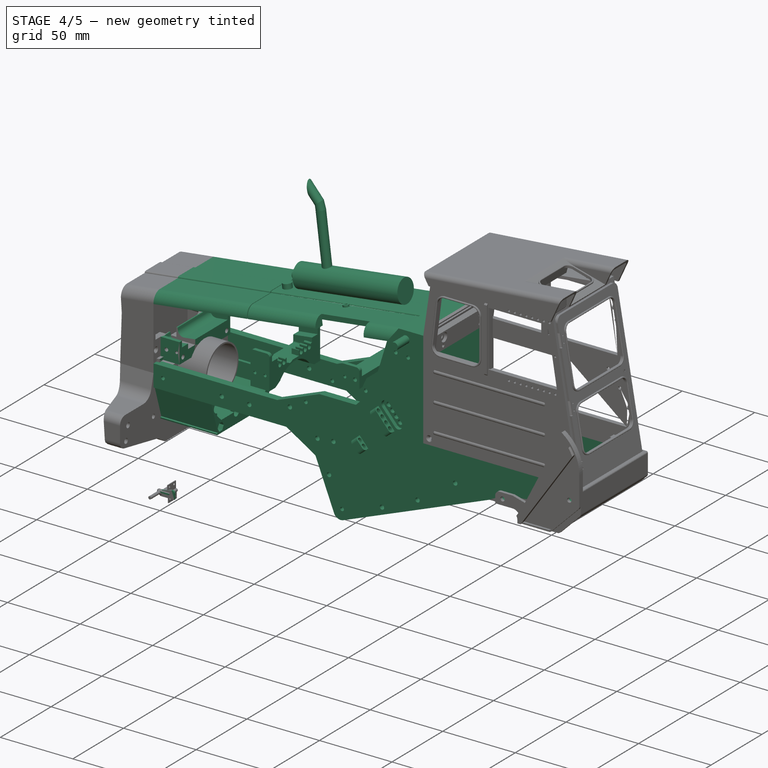
[diagram: stage 4 of 5 — iso view after this stage's code; geometry added in this stage tinted green]
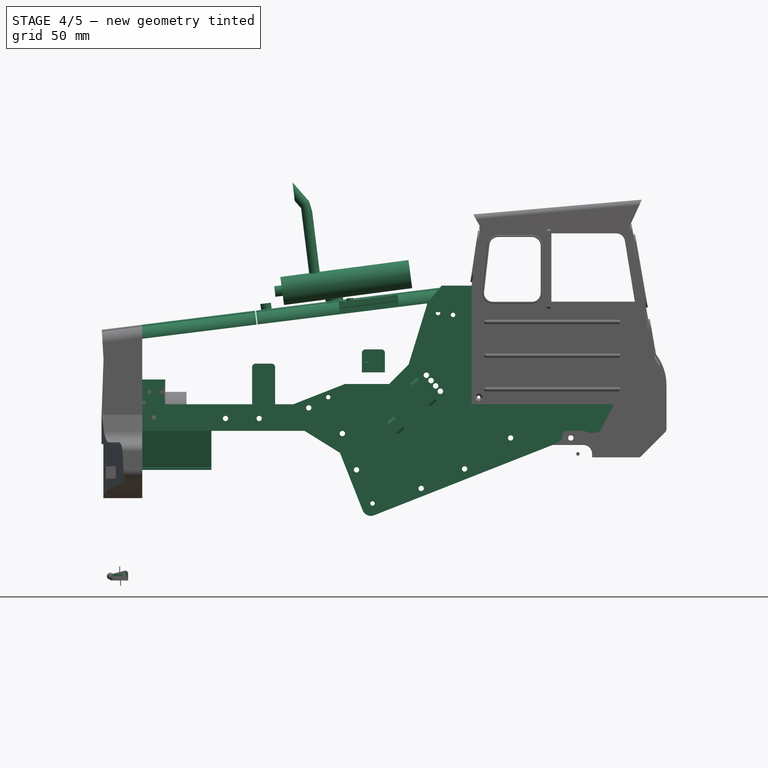
[diagram: stage 4 of 5 — front view after this stage's code; geometry added in this stage tinted green]
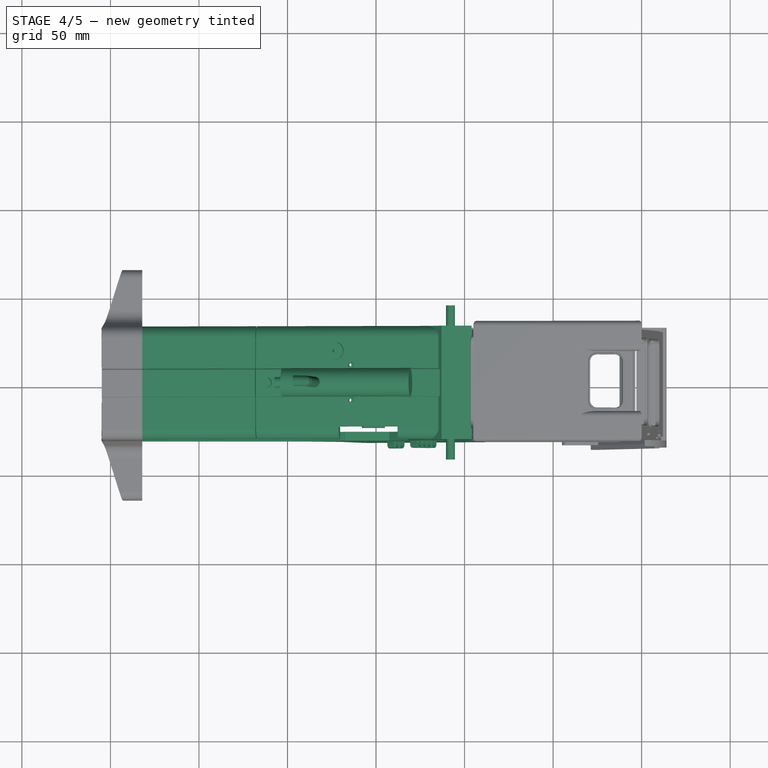
[diagram: stage 4 of 5 — top view after this stage's code; geometry added in this stage tinted green]
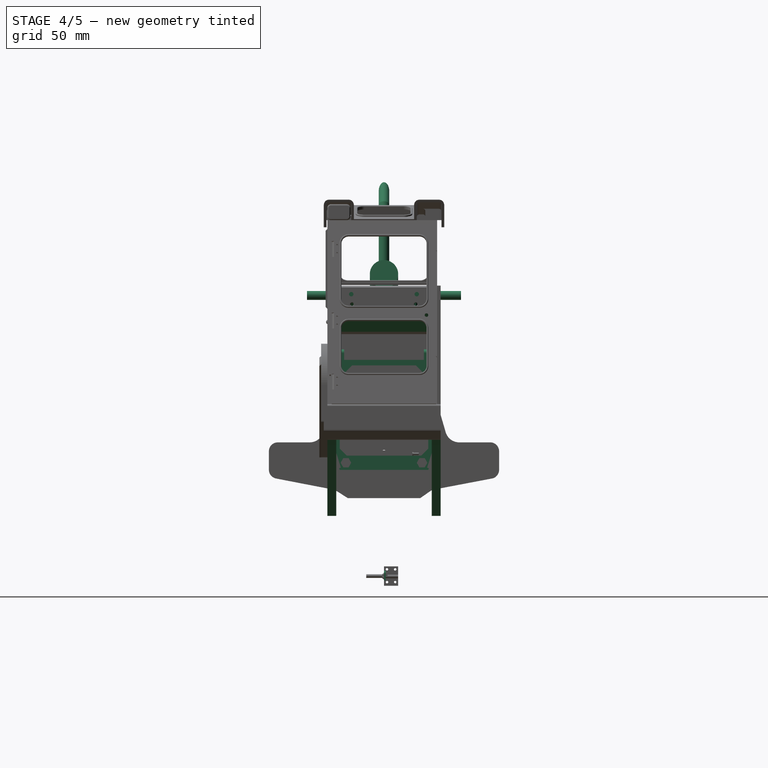
[diagram: stage 4 of 5 — right view after this stage's code; geometry added in this stage tinted green]
FEATURE [Image::ImagePlane] ImagePlane001
  Placement = pos=(199,0,102) rot=(-1,0,0;4.71239rad)
  XSize = 500
  YSize = 227
FEATURE [Part::Feature] Fusion017003004005003  label="rear-wheel-left"
  Placement = pos=(75,56,46) rot=(0,0,1;0rad)
  shape: bbox 96.33 x 28 x 96.33 mm, 456 faces (baked)
FEATURE [Part::Feature] Fusion088026007031024007008004100051009001010  label="rear-wheel-right"
  Placement = pos=(75,-84,46) rot=(0,0,1;0rad)
  shape: bbox 96.33 x 28 x 96.33 mm, 456 faces (baked)
FEATURE [Part::Feature] Fusion088026007031024007008004100051055007010008005003006007005002001  label="front-wheel-right"
  Placement = pos=(260,-87,62) rot=(0,0,1;0rad)
  shape: bbox 129.9 x 36 x 129.9 mm, 584 faces (baked)
FEATURE [Part::Feature] Fusion004002009002027014004009002002008002004029002015013017006002012002031033002013006007008014029072011018024002019049062029014012006016002033001057009050  label="front-wheel-left"
  Placement = pos=(260,51,62) rot=(0,0,1;0rad)
  shape: bbox 129.9 x 36 x 129.9 mm, 584 faces (baked)
FEATURE [Image::ImagePlane] ImagePlane003
  Placement = pos=(211,0.5,112) rot=(-0.57735,0.57735,0.57735;4.18879rad)
  XSize = 194.8
  YSize = 238.29
FEATURE [Part::Feature] Cut176013009033007019019008010045003002004008006021005004078021006001  label="rim-front-external-right"
  Placement = pos=(75,-87,62) rot=(0,0,1;0rad)
  shape: bbox 79.47 x 17 x 79.47 mm, 83 faces (baked)
FEATURE [Part::Feature] Cut176013009033007019019008010045003002004008006021005004078021008001  label="rim-front-internal-right"
  Placement = pos=(75,-87,62) rot=(0,0,1;0rad)
  shape: bbox 79.47 x 17 x 79.47 mm, 46 faces (baked)
FEATURE [Part::Feature] Cut176013009033007019019008010045003002004008006021005004078021012001  label="rim-rear-internal-right"
  Placement = pos=(75,-84,46) rot=(0,0,1;0rad)
  shape: bbox 63.76 x 12.5 x 63.76 mm, 44 faces (baked)
FEATURE [Part::Feature] Cut176013009033007019019008010045003002004008006021005004078021017006001  label="rim-rear-external-right"
  Placement = pos=(75,-84,46) rot=(0,0,1;0rad)
  shape: bbox 63.76 x 15.5 x 63.76 mm, 94 faces (baked)
FEATURE [Part::Feature] Part__Mirroring007002003002018002002002005004005  label="rim-front-external-left"
  Placement = pos=(75,87,62) rot=(0,0,1;0rad)
  shape: bbox 79.47 x 17 x 79.47 mm, 83 faces (baked)
FEATURE [Part::Feature] Part__Mirroring007002003002018002002002005004002001  label="rim-front-internal-left"
  Placement = pos=(75,87,62) rot=(0,0,1;0rad)
  shape: bbox 79.47 x 17 x 79.47 mm, 46 faces (baked)
FEATURE [Part::Feature] Part__Mirroring007002003002018002002002005004003001  label="rim-rear-internal-left"
  Placement = pos=(75,84,46) rot=(0,0,1;0rad)
  shape: bbox 63.76 x 12.5 x 63.76 mm, 44 faces (baked)
FEATURE [Part::Feature] Part__Mirroring007002003002018002002002005004004001  label="rim-rear-external-left"
  Placement = pos=(75,84,46) rot=(0,0,1;0rad)
  shape: bbox 63.76 x 15.5 x 63.76 mm, 94 faces (baked)
FEATURE [App::DocumentObjectGroup] Group002  label="Wheels"
  Group = -> [Fusion088026007031024007008004100051055007010008005003006007005002001,Fusion004002009002027014004009002002008002004029002015013017006002012002031033002013006007008014029072011018024002019049062029014012006016002033001057009050,Fusion017003004005003,Fusion088026007031024007008004100051009001010,Cut176013009033007019019008010045003002004008006021005004078021006001,+7 more]
FEATURE [Part::Part2DObjectPython] Line027  label="arm-middle-joint-full-up"  # Draft 2D object (typed FeaturePython)
  Closed = true
  End = (246.5,70,177)
  FilletRadius = 0
  MapMode = 5
  Placement = pos=(246.5,-70,177) rot=(0,0,1;0rad)
  Points = (2) [(0,0,0),(0,140,0)]
  Start = (246.5,-70,177)
FEATURE [Part::Part2DObjectPython] Line028  label="arm-middle-joint-full-down"  # Draft 2D object (typed FeaturePython)
  Closed = true
  End = (223,70,108.5)
  FilletRadius = 0
  MapMode = 5
  Placement = pos=(223,-70,108.5) rot=(0,0,1;0rad)
  Points = (2) [(0,0,0),(0,140,0)]
  Start = (223,-70,108.5)
FEATURE [App::DocumentObjectGroup] Group  label="Joints&Paths"
  Group = -> [Line013,Line014,Line015,Line016,Line017,Line018,Line019,Line020,Line021,Line022,Line023,Line024,Line025,Line026,Line008,Line009,Line010,Line011,Line012,Line028]
FEATURE [Image::ImagePlane] ImagePlane004
  Placement = pos=(217,-0.5,112) rot=(0.57735,0.57735,0.57735;2.0944rad)
  XSize = 194.8
  YSize = 238.29
FEATURE [Image::ImagePlane] ImagePlane002
  Placement = pos=(238.25,0,112.25) rot=(-1,0,0;4.71239rad)
  XSize = 540
  YSize = 238.3
FEATURE [Sketcher::SketchObject] Sketch011
  FullyConstrained = false
  MapMode = 5
  Placement = pos=(0,0,0) rot=(1,0,0;1.5708rad)
  Support = -> [XZ_Plane010]
  sketch-geometry (19):
    g0: LineSegment StartX=103.25 StartY=97 StartZ=0 EndX=132.5 EndY=108.5 EndZ=0
    g1: LineSegment StartX=18 StartY=82 StartZ=0 EndX=109.611 EndY=82 EndZ=0
    g2: LineSegment StartX=18 StartY=97 StartZ=0 EndX=103.25 EndY=97 EndZ=0
    g3: LineSegment StartX=168.333 StartY=119.333 StartZ=0 EndX=179 EndY=154 EndZ=0
    g4: LineSegment StartX=204 StartY=164 StartZ=0 EndX=204 EndY=97 EndZ=0
    g5: LineSegment StartX=204 StartY=97 StartZ=0 EndX=311 EndY=97 EndZ=0
    g6: LineSegment StartX=311 StartY=97 StartZ=0 EndX=311 EndY=82 EndZ=0
    g7: LineSegment StartX=311 StartY=82 StartZ=0 EndX=283 EndY=82 EndZ=0
    g8: LineSegment StartX=283 StartY=82 StartZ=0 EndX=270 EndY=74 EndZ=0
    g9: LineSegment StartX=270 StartY=74 StartZ=0 EndX=249.596 EndY=74 EndZ=0
    g10: LineSegment StartX=179 StartY=154 StartZ=0 EndX=187 EndY=164 EndZ=0
    g11: LineSegment StartX=187 StartY=164 StartZ=0 EndX=204 EndY=164 EndZ=0
    g12: LineSegment StartX=132.5 StartY=108.5 StartZ=0 EndX=157.5 EndY=108.5 EndZ=0
    g13: LineSegment StartX=109.611 StartY=82 StartZ=0 EndX=129.649 EndY=69.5702 EndZ=0
    g14: LineSegment StartX=148.877 StartY=34.3216 StartZ=0 EndX=249.596 EndY=74 EndZ=0
    g15: LineSegment StartX=129.649 StartY=69.5702 StartZ=0 EndX=142.443 EndY=37.1179 EndZ=0
    g16: ArcOfCircle CenterX=147.058 CenterY=38.9374 CenterZ=0 NormalX=0 NormalY=0 NormalZ=1 AngleXU=0 Radius=4.96103 StartAngle=3.51712 EndAngle=5.08767
    g17: LineSegment StartX=168.333 StartY=119.333 StartZ=0 EndX=157.5 EndY=108.5 EndZ=0
    g18: LineSegment StartX=18 StartY=97 StartZ=0 EndX=18 EndY=82 EndZ=0
  constraints (36):
    c: Horizontal(g1)
    c: Horizontal(g2)
    c: Vertical(g4)
    c: Coincident(g5,g4)
    c: Horizontal(g5)
    c: Coincident(g6,g5)
    c: Vertical(g6)
    c: Coincident(g7,g6)
    c: Horizontal(g7)
    c: Coincident(g8,g7)
    c: Coincident(g9,g8)
    c: Horizontal(g9)
    c: Coincident(g0,g2)
    c: Coincident(g10,g3)
    c: Coincident(g11,g10)
    c: Coincident(g11,g4)
    c: Horizontal(g11)
    c: DistanceX(g5) = 311
    c: DistanceY(g5) = 97
    c: DistanceY(g6) = 82
    c: DistanceX(g4) = 204
    c: DistanceY(g4) = 164
    c: Coincident(g12,g0)
    c: Horizontal(g12)
    c: Coincident(g13,g1)
    c: Coincident(g13,g15)
    c: Coincident(g9,g14)
    c: Tangent(g15,g16) = -1.5708
    c: Tangent(g14,g16) = -1.5708
    c: Coincident(g3,g17)
    c: Coincident(g12,g17)
    c: DistanceX(g12) = 157.5
    c: DistanceY(g12) = 108.5
    c: Vertical(g18)
    c: Coincident(g2,g18)
    c: Coincident(g1,g18)
FEATURE [PartDesign::Pad] Pad008
  Direction = (0,-1,-2e-16)
  Length = 5
  Length2 = 10
  Placement = pos=(0,0,0) rot=(1,0,0;1.5708rad)
  Profile = -> Sketch011
  ReferenceAxis = -> Sketch011 [N_Axis]
  Refine = true
  Type = 0
FEATURE [Part::Cylinder] Cylinder1492264  label="Cylinder"
  Angle = 360
  AttacherType = Attacher::AttachEngine3D
  FirstAngle = 0
  Height = 66
  Placement = pos=(65,-32,89) rot=(-1,0,0;1.5708rad)
  Radius = 1.5
  SecondAngle = 0
FEATURE [Part::Cylinder] Cylinder1492265  label="Cylinder"
  Angle = 360
  AttacherType = Attacher::AttachEngine3D
  FirstAngle = 0
  Height = 66
  Placement = pos=(84,-32,89) rot=(-1,0,0;1.5708rad)
  Radius = 1.5
  SecondAngle = 0
FEATURE [Part::Cylinder] Cylinder1492266  label="Cylinder"
  Angle = 360
  AttacherType = Attacher::AttachEngine3D
  FirstAngle = 0
  Height = 66
  Placement = pos=(123,-33,101) rot=(-1,0,0;1.5708rad)
  Radius = 1.25
  SecondAngle = 0
FEATURE [Part::Cylinder] Cylinder1492268  label="Cylinder"
  Angle = 360
  AttacherType = Attacher::AttachEngine3D
  FirstAngle = 0
  Height = 88
  Placement = pos=(185,-44,148.5) rot=(-1,0,0;1.5708rad)
  Radius = 1.25
  SecondAngle = 0
FEATURE [Part::Cylinder] Cylinder1492269  label="Cylinder"
  Angle = 360
  AttacherType = Attacher::AttachEngine3D
  FirstAngle = 0
  Height = 88
  Placement = pos=(192,-44,158.5) rot=(-1,0,0;1.5708rad)
  Radius = 2.5
  SecondAngle = 0
FEATURE [Part::Cylinder] Cylinder1492270  label="Cylinder"
  Angle = 360
  AttacherType = Attacher::AttachEngine3D
  FirstAngle = 0
  Height = 66
  Placement = pos=(226,-33,78) rot=(-1,0,0;1.5708rad)
  Radius = 1.5
  SecondAngle = 0
FEATURE [Part::Cylinder] Cylinder1492271  label="Cylinder"
  Angle = 360
  AttacherType = Attacher::AttachEngine3D
  FirstAngle = 0
  Height = 66
  Placement = pos=(260,-33,78) rot=(-1,0,0;1.5708rad)
  Radius = 1.5
  SecondAngle = 0
FEATURE [Part::Cylinder] Cylinder1492276  label="Cylinder"
  Angle = 360
  AttacherType = Attacher::AttachEngine3D
  FirstAngle = 0
  Height = 66
  Placement = pos=(306,-33,89.5) rot=(-1,0,0;1.5708rad)
  Radius = 1.5
  SecondAngle = 0
FEATURE [Part::Feature] Cut176013009033007019019008010045003002004002002  label="rear-axle-steering-knukle-body-right"
  Placement = pos=(75,-92.5,46) rot=(0,0,1;0rad)
  shape: bbox 25.81 x 12 x 15.2 mm, 30 faces (baked)
FEATURE [Part::Feature] Cut176013009033007019019008010045003002004008006021005002002001  label="BEARING-17x23x4-6703"
  Placement = pos=(156,-75,0) rot=(0,0,1;1.5708rad)
  shape: bbox 4 x 23 x 23 mm, 4 faces (baked)
FEATURE [Part::Feature] Cut176013009033007019019008010045003002004008006021005004001001  label="BEARING-5x9x3-MR95ZZ"
  Placement = pos=(0,-24.5,0) rot=(0,0,1;0rad)
  shape: bbox 9 x 3 x 9 mm, 4 faces (baked)
FEATURE [Part::Feature] Cut176013009033007019019008010045003002004008006021005004003001  label="BEARING-5x9x3-MR95ZZ"
  Placement = pos=(0,-110.5,0) rot=(0,0,1;0rad)
  shape: bbox 9 x 3 x 9 mm, 4 faces (baked)
FEATURE [Part::Feature] Cut176013009033007019019008010045003002004008006021005004004004004002004001  label="BEARING-5x9x3-MR95ZZ"
  Placement = pos=(0,-0.5,0) rot=(0,0,1;0rad)
  shape: bbox 9 x 3 x 9 mm, 4 faces (baked)
FEATURE [Part::Feature] Cut176013009033007019019008010045003002004008006021005004004004004002005001  label="BEARING-5x9x3-MR95ZZ"
  Placement = pos=(0,-7.5,0) rot=(0,0,1;0rad)
  shape: bbox 9 x 3 x 9 mm, 4 faces (baked)
FEATURE [Part::Feature] Cut176013009033007019019008010045003002004008006021005004004004004002006001  label="BEARING-5x9x3-MR95ZZ"
  Placement = pos=(0,-134.5,0) rot=(0,0,1;0rad)
  shape: bbox 9 x 3 x 9 mm, 4 faces (baked)
FEATURE [Part::Feature] Cut176013009033007019019008010045003002004008006021005004004004004002007001  label="BEARING-5x9x3-MR95ZZ"
  Placement = pos=(0,-127.5,0) rot=(0,0,1;0rad)
  shape: bbox 9 x 3 x 9 mm, 4 faces (baked)
FEATURE [Part::Feature] Cut176013009033007019019008010045003002004008006021005004004004004002008001  label="BEARING-8x12x3.5-MR128ZZ"
  Placement = pos=(0,-77,0) rot=(0,0,1;0rad)
  shape: bbox 12 x 3.5 x 12 mm, 4 faces (baked)
FEATURE [Part::Feature] Cut176013009033007019019008010045003002004008006021005004004004004002009001  label="BEARING-5x9x3-MR95ZZ"
  Placement = pos=(163,-75,0) rot=(0,0,1;1.5708rad)
  shape: bbox 3 x 9 x 9 mm, 4 faces (baked)
FEATURE [Part::Feature] Cut176013009033007019019008010045003002004008006021005004004004004002010001  label="BEARING-5x9x3-MR95ZZ"
  Placement = pos=(158,-75,0) rot=(0,0,1;1.5708rad)
  shape: bbox 3 x 9 x 9 mm, 4 faces (baked)
FEATURE [Part::Feature] Cut176013009033007019019008010045003002004008006021005004004004004002012033009003001  label="rear-axle-pinion-side"
  shape: bbox 22 x 96 x 28 mm, 89 faces (baked)
FEATURE [Part::Feature] Cut176013009033007019019008010045003002004008006021005004004004004002012033009016002012007009001  label="BEARING-17x23x4-6703"
  Placement = pos=(127,-75,0) rot=(0,0,1;1.5708rad)
  shape: bbox 4 x 23 x 23 mm, 4 faces (baked)
FEATURE [Part::Feature] Cut176013009033007019019008010045003002004008006021005004004004004002012033009016002012007022011002  label="rear-axle-steering-knukle-lever-ALU3mm"
  shape: bbox 15.4 x 30.5 x 3 mm, 24 faces (baked)
FEATURE [Part::Feature] Cut176013009033007019019008010045003002004008006021005004004004004002012033009016002012007022024011001  label="rear-axle-front-holder-ALU5mm"
  shape: bbox 5 x 64 x 65 mm, 35 faces (baked)
FEATURE [Part::Feature] Cut176013009033007019019008010045003002004008006021005004004004004002012033009016002012007022024012001  label="rear-axle-rear-holder-ALU5mm"
  Placement = pos=(-1,0,0) rot=(0,0,1;0rad)
  shape: bbox 5 x 64 x 65 mm, 37 faces (baked)
FEATURE [Part::Feature] Cut176013009033007019019008010045003002004008006021005004004004004002012033009016002012007022024063001  label="rear-axle-knukle-holder-upper-left-ALU5mm"
  shape: bbox 14 x 24.5 x 5 mm, 23 faces (baked)
FEATURE [Part::Feature] Cut176013009033007019019008010045003002004008006021005004004004004002012033009016002012007022024068001  label="rear-axle-pump-holder-ALU5mm"
  Placement = pos=(148.844,-9e-15,0) rot=(0,0,1;3.14159rad)
  shape: bbox 25 x 34 x 5 mm, 10 faces (baked)
FEATURE [Part::Feature] Cut176013009033007019019008010045003002004008006021005004004004004002012033009016002012007022024077001  label="rear-axle-back-side"
  shape: bbox 18 x 96 x 28 mm, 101 faces (baked)
FEATURE [Part::Feature] Cut176013009033007019019008010045003002004008006021005004004004004002012033009016002012007022024084001  label="rear-axle-attach-left-ALU6mm"
  shape: bbox 25 x 6 x 15 mm, 10 faces (baked)
FEATURE [Part::Feature] Cut176013009033007019019008010045003002004008006021005004004004004002012033009016002012007022024085001  label="rear-axle-attach-right-ALU6mm"
  shape: bbox 25 x 6 x 15 mm, 10 faces (baked)
FEATURE [Part::Feature] Cut176013009033007019019008010045003002004008006021005004004004004002012033009016002012007022025001  label="rear-axle-knukle-holder-lower-left-ALU5mm"
  shape: bbox 14 x 24.5 x 5 mm, 21 faces (baked)
FEATURE [Part::Feature] Cut176013009033007019019008010045003002004008006021005004004004008001  label="rear-axle-steering-knukle-arm-right-ALU4mm"
  Placement = pos=(75,-92.5,46) rot=(0,0,1;0rad)
  shape: bbox 24.2 x 22.25 x 4 mm, 22 faces (baked)
FEATURE [Part::Feature] Cut176013009033007019019008010045003002004008006021005005001001  label="BEARING-8x12x3.5-MR128ZZ"
  Placement = pos=(0,-57.5,0) rot=(0,0,1;0rad)
  shape: bbox 12 x 3.5 x 12 mm, 4 faces (baked)
FEATURE [Part::Feature] Cut176013009033007019019008010045003002004008006021005010001  label="wheel-axle-left"
  Placement = pos=(75,93,46) rot=(0,0,1;3.14159rad)
  shape: bbox 11 x 25 x 11 mm, 19 faces, 2 solids (baked)
FEATURE [Part::Feature] Extrude007017001  label="HEX-BAR-25mm"
  Placement = pos=(87,25,77) rot=(0,0,1;1.5708rad)
  shape: bbox 25 x 6 x 5.196 mm, 8 faces (baked)
FEATURE [Part::Feature] Extrude007018001  label="HEX-BAR-25mm"
  Placement = pos=(87,-25,77) rot=(0,0,1;1.5708rad)
  shape: bbox 25 x 6 x 5.196 mm, 8 faces (baked)
FEATURE [Part::Feature] Extrude007019001  label="HEX-BAR-25mm"
  Placement = pos=(87,21.5,64) rot=(0,0,1;1.5708rad)
  shape: bbox 25 x 6 x 5.196 mm, 8 faces (baked)
FEATURE [Part::Feature] Extrude007020001  label="HEX-BAR-25mm"
  Placement = pos=(87,-21.5,64) rot=(0,0,1;1.5708rad)
  shape: bbox 25 x 6 x 5.196 mm, 8 faces (baked)
FEATURE [Part::Feature] Fusion004002009002027014004009002002008002004029002015013017006002012002031033002013006007008014029072011018024002019049062029014012006016002033001057009067001  label="rear-axle-steering-knukle-upper-plate-right"
  shape: bbox 21.09 x 21.7 x 8.4 mm, 52 faces (baked)
FEATURE [Part::Feature] Fusion041001001  label="differential+pinion"
  Placement = pos=(82.5,-54.5,53.5) rot=(0,1,0;3.14159rad)
  shape: bbox 40.5 x 23 x 23 mm, 14 faces (baked)
FEATURE [Part::Feature] Fusion088026007031024007008004081022014001  label="axle-shaft-left"
  Placement = pos=(75,93,46) rot=(0,0,1;3.14159rad)
  shape: bbox 6 x 53.5 x 11 mm, 15 faces (baked)
FEATURE [Part::Feature] Part__Mirroring007002003002002001  label="rear-axle-steering-knukle-body-left"
  Placement = pos=(75,93,46) rot=(0,0,1;0rad)
  shape: bbox 25.81 x 12 x 15.2 mm, 30 faces (baked)
FEATURE [Part::Feature] Part__Mirroring007002003002018002002002005001001  label="wheel-axle-right"
  shape: bbox 11 x 25 x 11 mm, 19 faces, 2 solids (baked)
FEATURE [Part::Feature] Part__Mirroring007002003002018002002002005004004002001001  label="rear-axle-knukle-holder-lower-right-ALU5mm"
  shape: bbox 14 x 24.5 x 5 mm, 21 faces (baked)
FEATURE [Part::Feature] Part__Mirroring007002003002018002002002005004004002002001  label="rear-axle-steering-knukle-upper-plate-left"
  shape: bbox 21.09 x 21.5 x 4.4 mm, 33 faces (baked)
FEATURE [Part::Feature] Part__Mirroring007002003002018002002002005004004002003001001  label="rear-axle-steering-knukle-lower-plate-left"
  Placement = pos=(0,0,92) rot=(0,0,1;0rad)
  shape: bbox 21.09 x 21.5 x 4.4 mm, 33 faces (baked)
FEATURE [Part::Feature] Part__Mirroring007002003002018002002002005004004002003002001  label="rear-axle-steering-knukle-lower-plate-right"
  Placement = pos=(0,0,92) rot=(0,0,1;0rad)
  shape: bbox 21.09 x 21.5 x 4.4 mm, 33 faces (baked)
FEATURE [Part::Feature] Part__Mirroring007002003002018002002002005004004002003003001  label="rear-axle-steering-knukle-arm-left-ALU4mm"
  shape: bbox 24.2 x 22.25 x 4 mm, 22 faces (baked)
FEATURE [Part::Feature] Part__Mirroring007002003002018002002002005004004003001  label="rear-axle-knukle-holder-upper-right-ALU5mm"
  shape: bbox 14 x 24.5 x 5 mm, 21 faces (baked)
FEATURE [Part::Feature] Part__Mirroring007002003002018002002002006001  label="axle-shaft-right"
  shape: bbox 6 x 53.5 x 11 mm, 15 faces (baked)
FEATURE [Part::Feature] Cut176013009033007019019008010045003002004008006021005004004004004002012019001  label="BEARING-8x12x3.5-MR128ZZ"
  Placement = pos=(154,-57.5,9) rot=(0,0,1;0rad)
  shape: bbox 12 x 3.5 x 12 mm, 4 faces (baked)
FEATURE [Part::Feature] Cut176013009033007019019008010045003002004008006021005004004004004002012020001  label="BEARING-8x12x3.5-MR128ZZ"
  Placement = pos=(154,-77,9) rot=(0,0,1;0rad)
  shape: bbox 12 x 3.5 x 12 mm, 4 faces (baked)
FEATURE [Part::Feature] Cut176013009033007019019008010045003002004008006021005004004004004002012033009014001  label="front-hub-external-left"
  Placement = pos=(0,0,2) rot=(0,0,1;0rad)
  shape: bbox 30 x 10 x 30 mm, 32 faces (baked)
FEATURE [Part::Feature] Cut176013009033007019019008010045003002004008006021005004004004004002012033009016001001  label="BUSH-5x11x4"
  Placement = pos=(185,-3,16) rot=(0,0,1;0rad)
  shape: bbox 11 x 4 x 11 mm, 4 faces (baked)
FEATURE [Part::Feature] Cut176013009033007019019008010045003002004008006021005004004004004002012033009016002002001  label="diff_front_gear_lock_right"
  Placement = pos=(0,0,2) rot=(0,0,1;0rad)
  shape: bbox 10 x 22 x 10 mm, 9 faces (baked)
FEATURE [Part::Feature] Cut176013009033007019019008010045003002004008006021005004004004004002012033009016002003001  label="diff_front_gear_lock_left"
  Placement = pos=(0,0,2) rot=(0,0,1;0rad)
  shape: bbox 10 x 6 x 10 mm, 7 faces (baked)
FEATURE [Part::Feature] Cut176013009033007019019008010045003002004008006021005004004004004002012033009016002004001  label="diff_rear_gear_lock_left"
  Placement = pos=(-31,3.5,-5) rot=(0,0,1;0rad)
  shape: bbox 10 x 4.5 x 10 mm, 7 faces (baked)
FEATURE [Part::Feature] Cut176013009033007019019008010045003002004008006021005004004004004002012033009016002007001  label="diff_rear_gear_lock_right"
  Placement = pos=(-31,-24,-5) rot=(0,0,1;0rad)
  shape: bbox 10 x 4.5 x 10 mm, 7 faces (baked)
FEATURE [Part::Feature] Cut176013009033007019019008010045003002004008006021005004004004004002012033009016002012007003001  label="diff_front_lock"
  Placement = pos=(0,0,2) rot=(0,0,1;0rad)
  shape: bbox 30 x 13 x 30 mm, 44 faces (baked)
FEATURE [Part::Feature] Cut176013009033007019019008010045003002004008006021005004004004004002012033009016002012007006001  label="BEARING-5x9x3-MR95ZZ"
  Placement = pos=(146,75,9) rot=(0,0,-1;1.5708rad)
  shape: bbox 3 x 9 x 9 mm, 4 faces (baked)
FEATURE [Part::Feature] Cut176013009033007019019008010045003002004008006021005004004004004002012033009016002012007007001  label="BEARING-5x9x3-MR95ZZ"
  Placement = pos=(141,75,9) rot=(0,0,-1;1.5708rad)
  shape: bbox 3 x 9 x 9 mm, 4 faces (baked)
FEATURE [Part::Feature] Cut176013009033007019019008010045003002004008006021005004004004004002012033009016002012007022016001  label="diff_rear_gear_left"
  Placement = pos=(0.5,0,0) rot=(0,0,1;0rad)
  shape: bbox 29.48 x 8 x 29.55 mm, 336 faces (baked)
FEATURE [Part::Feature] Cut176013009033007019019008010045003002004008006021005004004004004002012033009016002012007022017001  label="diff_front_gear_left"
  shape: bbox 38.98 x 8 x 39.03 mm, 448 faces (baked)
FEATURE [Part::Feature] Cut176013009033007019019008010045003002004008006021005004004004004002012033009016002012007022019001  label="front-hub-internal-left"
  shape: bbox 30 x 4 x 30 mm, 22 faces (baked)
FEATURE [Part::Feature] Cut176013009033007019019008010045003002004008006021005004004004004002012033009016002012007022024014001  label="BEARING-5x9x3-MR95ZZ"
  Placement = pos=(154,-50,9) rot=(0,0,1;0rad)
  shape: bbox 9 x 3 x 9 mm, 4 faces (baked)
FEATURE [Part::Feature] Cut176013009033007019019008010045003002004008006021005004004004004002012033009016002012007022024015001  label="BEARING-5x9x3-MR95ZZ"
  Placement = pos=(154,-85,9) rot=(0,0,1;0rad)
  shape: bbox 9 x 3 x 9 mm, 4 faces (baked)
FEATURE [Part::Feature] Cut176013009033007019019008010045003002004008006021005004004004004002012033009016002012007022024016001  label="BEARING-5x9x3-MR95ZZ"
  Placement = pos=(154,-47,9) rot=(0,0,1;0rad)
  shape: bbox 9 x 3 x 9 mm, 4 faces (baked)
FEATURE [Part::Feature] Cut176013009033007019019008010045003002004008006021005004004004004002012033009016002012007022024017001  label="BEARING-5x9x3-MR95ZZ"
  Placement = pos=(154,-88,9) rot=(0,0,1;0rad)
  shape: bbox 9 x 3 x 9 mm, 4 faces (baked)
FEATURE [Part::Feature] Cut176013009033007019019008010045003002004008006021005004004004004002012033009016002012007022024028001  label="BEARING-5x8x2.5-MR85ZZ"
  Placement = pos=(185,-85,16) rot=(0,0,1;0rad)
  shape: bbox 8 x 2.5 x 8 mm, 4 faces (baked)
FEATURE [Part::Feature] Cut176013009033007019019008010045003002004008006021005004004004004002012033009016002012007022024029001  label="BEARING-5x8x2.5-MR85ZZ"
  Placement = pos=(185,-50.5,16) rot=(0,0,1;0rad)
  shape: bbox 8 x 2.5 x 8 mm, 4 faces (baked)
FEATURE [Part::Feature] Cut176013009033007019019008010045003002004008006021005004004004004002012033009016002012007022024034001  label="BUSH-5x11x4"
  Placement = pos=(185,-132,16) rot=(0,0,1;0rad)
  shape: bbox 11 x 4 x 11 mm, 4 faces (baked)
FEATURE [Part::Feature] Cut176013009033007019019008010045003002004008006021005004004004004002012033009016002012007022024046001  label="BEARING-5x9x3-MR95ZZ"
  Placement = pos=(185,-7.5,16) rot=(0,0,1;0rad)
  shape: bbox 9 x 3 x 9 mm, 4 faces (baked)
FEATURE [Part::Feature] Cut176013009033007019019008010045003002004008006021005004004004004002012033009016002012007022024047001  label="BEARING-5x9x3-MR95ZZ"
  Placement = pos=(185,-127.5,16) rot=(0,0,1;0rad)
  shape: bbox 9 x 3 x 9 mm, 4 faces (baked)
FEATURE [Part::Feature] Cut176013009033007019019008010045003002004008006021005004004004004002012033009016002012007022024053001  label="diff-front-side-spacer-left"
  shape: bbox 32 x 6 x 12 mm, 21 faces (baked)
FEATURE [Part::Feature] Cut176013009033007019019008010045003002004008006021005004004004004002012033009016002012007022024058001  label="diff-front-side-left-ALU5mm"
  shape: bbox 75 x 5 x 51 mm, 32 faces (baked)
FEATURE [Part::Feature] Cut176013009033007019019008010045003002004008006021005004004004004002012033009016002012007022024058002  label="front-axle-left"
  shape: bbox 38 x 40.5 x 39 mm, 75 faces (baked)
FEATURE [Part::Feature] Cut176013009033007019019008010045003002004008006021005004004004004002012033009016002012007022024083001  label="diff-front-side-cap-left"
  shape: bbox 23.81 x 3 x 23.81 mm, 10 faces (baked)
FEATURE [Part::Feature] Cut176013009033007019019008010045003002004008006021005004004004004002012033009016002012014001  label="BEARING-5x9x3-MR95ZZ"
  Placement = pos=(185,-100,16) rot=(0,0,1;0rad)
  shape: bbox 9 x 3 x 9 mm, 4 faces (baked)
FEATURE [Part::Feature] Cut176013009033007019019008010045003002004008006021005004004004004002012033009016002012015001  label="BEARING-5x9x3-MR95ZZ"
  Placement = pos=(185,-35,16) rot=(0,0,1;0rad)
  shape: bbox 9 x 3 x 9 mm, 4 faces (baked)
FEATURE [Part::Feature] Extrude001001  label="HEX-BAR-32mm"
  Placement = pos=(277,-16,82) rot=(0,0,1;0rad)
  shape: bbox 6 x 32 x 5.196 mm, 8 faces (baked)
FEATURE [Part::Feature] Extrude002001  label="HEX-BAR-32mm"
  Placement = pos=(277,-16,39) rot=(0,0,1;0rad)
  shape: bbox 6 x 32 x 5.196 mm, 8 faces (baked)
FEATURE [Part::Feature] Extrude003001  label="HEX-BAR-32mm"
  Placement = pos=(240,-16,39) rot=(0,0,1;0rad)
  shape: bbox 6 x 32 x 5.196 mm, 8 faces (baked)
FEATURE [Part::Feature] Extrude005001  label="HEX-BAR-32mm"
  Placement = pos=(243,-16,82) rot=(0,0,1;0rad)
  shape: bbox 6 x 32 x 5.196 mm, 8 faces (baked)
FEATURE [Part::Feature] Fusion088026007031024007008004100051055007010008005013001  label="diff_front_gear_lock_screws"
  Placement = pos=(0,1,2) rot=(0,0,1;0rad)
  shape: bbox 22.19 x 8 x 19.75 mm, 15 faces, 3 solids (baked)
FEATURE [Part::Feature] Fusion088026007031024007008004100051055007010008005020001001  label="front-axle-rod-left"
  Placement = pos=(0,0,2) rot=(0,0,1;0rad)
  shape: bbox 10 x 75 x 5 mm, 9 faces (baked)
FEATURE [Part::Feature] Fusion088026007031024007008004100051055007010008005020019001001  label="differential+pinion+rod"
  Placement = pos=(2,0,110) rot=(1,0,0;3.14159rad)
  shape: bbox 40.5 x 48 x 23 mm, 18 faces (baked)
FEATURE [Part::Feature] Part__Mirroring007002003002018002002002002001  label="front-axle-rod-right"
  Placement = pos=(0,0,2) rot=(0,0,1;0rad)
  shape: bbox 10 x 75 x 5 mm, 9 faces (baked)
FEATURE [Part::Feature] Part__Mirroring007002003002018002002002005004004002003004003001001  label="front-hub-internal-right"
  shape: bbox 30 x 4 x 30 mm, 22 faces (baked)
FEATURE [Part::Feature] Part__Mirroring007002003002018002002002005004004002003004003003001001  label="diff_rear_gear_right"
  shape: bbox 29.48 x 8 x 29.55 mm, 336 faces (baked)
FEATURE [Part::Feature] Part__Mirroring007002003002018002002002005004004002003004003003002001  label="front-axle-right"
  shape: bbox 38 x 40.5 x 39 mm, 75 faces (baked)
FEATURE [Part::Feature] Part__Mirroring007002003002018002002002005004004002003004003003003001001  label="diff-front-side-right-ALU5mm"
  shape: bbox 75 x 5 x 51 mm, 32 faces (baked)
FEATURE [Part::Feature] Part__Mirroring007002003002018002002002005004004002003004003003004001001  label="diff-front-side-cap-right"
  shape: bbox 23.81 x 3 x 23.81 mm, 12 faces (baked)
FEATURE [Part::Feature] Part__Mirroring007002003002018002002002005004004002003004003003004003001  label="diff-front-side-cap-right"
  shape: bbox 23.81 x 3 x 23.81 mm, 10 faces (baked)
FEATURE [Part::Feature] Part__Mirroring007002003002018002002002005004004002003004003003005001  label="diff-front-side-spacer-right"
  shape: bbox 32 x 6 x 12 mm, 21 faces (baked)
FEATURE [Part::Feature] Part__Mirroring007002003002018002002002005004004002003004003004001  label="diff_front_gear_right"
  shape: bbox 38.98 x 8 x 39.03 mm, 448 faces (baked)
FEATURE [Part::Feature] Part__Mirroring007002003002018002002002005004004002003004004001  label="front-hub-external-right"
  shape: bbox 30 x 10 x 30 mm, 32 faces (baked)
FEATURE [Part::Feature] Fusion004002009002027014004009002002008002004029002015013017006002012002031033002013006007008014029072011018024002019049062029014012006016002033001057009078004002010031016012003004001  label="GEARMOTOR"
  Placement = pos=(-0.5,-1,-5.5) rot=(0,0,1;0rad)
  shape: bbox 76 x 25 x 25 mm, 195 faces (baked)
FEATURE [Part::Cylinder] Cylinder1492309  label="Cylinder"
  Angle = 360
  AttacherType = Attacher::AttachEngine3D
  FirstAngle = 0
  Height = 30
  Placement = pos=(139,-52,60) rot=(-1,0,0;1.5708rad)
  Radius = 1.5
  SecondAngle = 0
FEATURE [Part::Cylinder] Cylinder1492310  label="Cylinder"
  Angle = 360
  AttacherType = Attacher::AttachEngine3D
  FirstAngle = 0
  Height = 30
  Placement = pos=(131,-52,80.5) rot=(-1,0,0;1.5708rad)
  Radius = 1.5
  SecondAngle = 0
FEATURE [Part::Cylinder] Cylinder1492311  label="Cylinder"
  Angle = 360
  AttacherType = Attacher::AttachEngine3D
  FirstAngle = 0
  Height = 30
  Placement = pos=(175.5,-52,49.5) rot=(-1,0,0;1.5708rad)
  Radius = 1.5
  SecondAngle = 0
FEATURE [Part::Cylinder] Cylinder1492312  label="Cylinder"
  Angle = 360
  AttacherType = Attacher::AttachEngine3D
  FirstAngle = 0
  Height = 23
  Placement = pos=(200,-32,60.5) rot=(-1,0,0;1.5708rad)
  Radius = 1.5
  SecondAngle = 0
FEATURE [Part::Cylinder] Cylinder1492313  label="Cylinder"
  Angle = 360
  AttacherType = Attacher::AttachEngine3D
  FirstAngle = 0
  Height = 19
  Placement = pos=(112,-32,95) rot=(-1,0,0;1.5708rad)
  Radius = 1.5
  SecondAngle = 0
FEATURE [Part::Cylinder] Cylinder1492267  label="Cylinder"
  Angle = 360
  AttacherType = Attacher::AttachEngine3D
  FirstAngle = 0
  Height = 66
  Placement = pos=(148,-33,41) rot=(-1,0,0;1.5708rad)
  Radius = 1.25
  SecondAngle = 0
FEATURE [PartDesign::Body] Body001009  label="frame-back-side-right"
  Group = -> [Sketch025,Pad013,Sketch027,Pocket010,Sketch028,Pocket011]
  Origin = -> Origin015
  Placement = pos=(0,-32,0) rot=(0,0,1;0rad)
  Tip = -> Pocket011
FEATURE [Sketcher::SketchObject] Sketch029
  AttachmentOffset = pos=(0,0,32) rot=(0,0,1;0rad)
  FullyConstrained = false
  MapMode = 5
  Placement = pos=(0,-32,-7.1e-15) rot=(1,0,0;1.5708rad)
  Support = -> [XZ_Plane019]
  sketch-geometry (4):
    g0: LineSegment StartX=179 StartY=154 StartZ=0 EndX=185.223 EndY=161.779 EndZ=0
    g1: LineSegment StartX=18 StartY=141 StartZ=0 EndX=185.223 EndY=161.779 EndZ=0
    g2: LineSegment StartX=18 StartY=141 StartZ=0 EndX=18 EndY=134 EndZ=0
    g3: LineSegment StartX=18 StartY=134 StartZ=0 EndX=179 EndY=154 EndZ=0
  constraints (7):
    c: Coincident(g2,g1)
    c: Vertical(g2)
    c: Coincident(g1,g0)
    c: DistanceX(g0) = 179
    c: DistanceY(g0) = 154
    c: Coincident(g3,g0)
    c: Coincident(g2,g3)
FEATURE [PartDesign::Pad] Pad014
  Direction = (0,-1,2e-16)
  Length = 64
  Length2 = 10
  Placement = pos=(0,0,0) rot=(1,0,0;1.5708rad)
  Profile = -> Sketch029
  ReferenceAxis = -> Sketch029 [N_Axis]
  Refine = true
  Reversed = true
  Type = 0
FEATURE [PartDesign::Body] Body001010
  Group = -> [Sketch029,Pad014]
  Origin = -> Origin016
  Tip = -> Pad014
FEATURE [Sketcher::SketchObject] Sketch030
  AttachmentOffset = pos=(0,0,8) rot=(0,0,1;0rad)
  FullyConstrained = false
  MapMode = 5
  Placement = pos=(0,-8,-1.8e-15) rot=(1,0,0;1.5708rad)
  Support = -> [XZ_Plane020]
  sketch-geometry (4):
    g0: LineSegment StartX=179 StartY=154 StartZ=0 EndX=186 EndY=162.85 EndZ=0
    g1: LineSegment StartX=18 StartY=142 StartZ=0 EndX=186 EndY=162.85 EndZ=0
    g2: LineSegment StartX=18 StartY=142 StartZ=0 EndX=18 EndY=134 EndZ=0
    g3: LineSegment StartX=18 StartY=134 StartZ=0 EndX=179 EndY=154 EndZ=0
  constraints (9):
    c: Coincident(g2,g1)
    c: Vertical(g2)
    c: Coincident(g1,g0)
    c: DistanceX(g0) = 179
    c: DistanceY(g0) = 154
    c: Coincident(g3,g0)
    c: Coincident(g2,g3)
    c: DistanceX(g0) = 186
    c: DistanceY(g0) = 162.85
FEATURE [PartDesign::Pad] Pad015
  Direction = (0,-1,-2e-16)
  Length = 16
  Length2 = 10
  Placement = pos=(0,0,0) rot=(1,0,0;1.5708rad)
  Profile = -> Sketch030
  ReferenceAxis = -> Sketch030 [N_Axis]
  Refine = true
  Reversed = true
  Type = 0
FEATURE [PartDesign::Body] Body001011
  Group = -> [Sketch030,Pad015]
  Origin = -> Origin017
  Tip = -> Pad015
FEATURE [Part::MultiFuse] Fusion004002009002027014004009002002008002004029002015013017006002012002031033002013006007008014029072011018024002019049062029014012006016002033001057009078004002010031016012003004006002003003002005005002019  label="Fusion"
  Refine = true
  Shapes = -> [Body001010,Body001011]
FEATURE [Sketcher::SketchObject] Sketch031
  AttachmentOffset = pos=(0,0,25) rot=(0,0,1;0rad)
  FullyConstrained = false
  MapMode = 5
  Placement = pos=(0,-25,-5.6e-15) rot=(1,0,0;1.5708rad)
  Support = -> [XZ_Plane021]
  sketch-geometry (4):
    g0: LineSegment StartX=179 StartY=154 StartZ=0 EndX=183 EndY=158.5 EndZ=0
    g1: LineSegment StartX=18 StartY=138.003 StartZ=0 EndX=18 EndY=134 EndZ=0
    g2: LineSegment StartX=18 StartY=134 StartZ=0 EndX=179 EndY=154 EndZ=0
    g3: LineSegment StartX=18 StartY=138.003 StartZ=0 EndX=183 EndY=158.5 EndZ=0
  constraints (10):
    c: Vertical(g1)
    c: DistanceX(g0) = 179
    c: DistanceY(g0) = 154
    c: Coincident(g2,g0)
    c: Coincident(g1,g2)
    c: DistanceX(g1) = 18
    c: DistanceY(g1) = 134
    c: Parallel(g2,g3)
    c: Coincident(g3,g0)
    c: Coincident(g1,g3)
FEATURE [PartDesign::Pad] Pad016
  Direction = (0,-1,-2e-16)
  Length = 50
  Length2 = 10
  Placement = pos=(0,0,0) rot=(1,0,0;1.5708rad)
  Profile = -> Sketch031
  ReferenceAxis = -> Sketch031 [N_Axis]
  Refine = true
  Reversed = true
  Type = 0
FEATURE [PartDesign::Body] Body001012
  Group = -> [Sketch031,Pad016]
  Origin = -> Origin018
  Tip = -> Pad016
FEATURE [Part::Cut] Cut176013009033007019019008010045003002004008006010017027003005053020098001031003007007002011005005004026009004013005002003006024021  label="Cut"
  Base = -> Fusion004002009002027014004009002002008002004029002015013017006002012002031033002013006007008014029072011018024002019049062029014012006016002033001057009078004002010031016012003004006002003003002005005002019
  Refine = true
  Tool = -> Body001012
FEATURE [Part::Fillet] Fillet001006007031015002010024004  label="Fillet"
  Base = -> Cut176013009033007019019008010045003002004008006010017027003005053020098001031003007007002011005005004026009004013005002003006024021
  Edges = 2 edges r=6.5: [Edge9,Edge12]
FEATURE [Part::Fillet] Fillet001006007031015002010024005  label="Fillet"
  Base = -> Fillet001006007031015002010024004
  Edges = 2 edges r=0.9: [Edge39,Edge41]
FEATURE [Part::Fillet] Fillet001006007031015002010024006  label="Fillet"
  Base = -> Fillet001006007031015002010024005
  Edges = 2 edges r=1: [Edge39,Edge43]
FEATURE [Part::Box] Box102  label="Cube"
  AttacherType = Attacher::AttachEngine3D
  Height = 11
  Length = 33.5
  Placement = pos=(129.75,-32.2,147.91) rot=(0,-1,0;0.123918rad)
  Width = 7.4
FEATURE [Part::Chamfer] Chamfer011006022
  Base = -> Box102
  Edges = 1 edges r=4: [Edge12]
  Placement = pos=(0,0,-0.05) rot=(0,0,1;0rad)
FEATURE [Part::Cut] Cut176013009033007019019008010045003002004008006010017027003005053020098001031003007007002011005005004026009004013005002003006024022  label="Cut"
  Base = -> Fillet001006007031015002010024006
  Refine = true
  Tool = -> Chamfer011006022
FEATURE [Part::Feature] Fusion004002009002027014004009002002008002004029002015013017006002012002031033002013006007008014029072011018024002019049062029014012006016002033001057009078004002010031016012003004006002003003002005005002020001  label="upper-panels-magnets-HOLES"
  Placement = pos=(17,-3.5,4.9) rot=(0,-1,0;0.123569rad)
  shape: bbox 148.4 x 3 x 25.39 mm, 15 faces, 5 solids (baked)
FEATURE [Part::Feature] Fusion004002009002027014004009002002008002004029002015013017006002012002031033002013006007008014029072011018024002019049062029014012006016002033001057009078004002010031016012003004006002003003002005005002020002  label="upper-panels-magnets-HOLES"
  Placement = pos=(17,50.5,4.9) rot=(0,-1,0;0.123569rad)
  shape: bbox 148.4 x 3 x 25.39 mm, 15 faces, 5 solids (baked)
FEATURE [Part::MultiFuse] Fusion004002009002027014004009002002008002004029002015013017006002012002031033002013006007008014029072011018024002019049062029014012006016002033001057009078004002010031016012003004006002003003002005005002020003  label="Fusion"
  Refine = true
  Shapes = -> [Fusion004002009002027014004009002002008002004029002015013017006002012002031033002013006007008014029072011018024002019049062029014012006016002033001057009078004002010031016012003004006002003003002005005002020001,+1 more]
FEATURE [Part::Cut] Cut176013009033007019019008010045003002004008006010017027003005053020098001031003007007002011005005004026009004013005002003006024024  label="Cut"
  Base = -> Cut176013009033007019019008010045003002004008006010017027003005053020098001031003007007002011005005004026009004013005002003006024022
  Refine = true
  Tool = -> Fusion004002009002027014004009002002008002004029002015013017006002012002031033002013006007008014029072011018024002019049062029014012006016002033001057009078004002010031016012003004006002003003002005005002020003
FEATURE [Part::Feature] Part__Mirroring007002003002018002002002005004004002003004003003004003003001  label="frame-motor-cover-left-panel-frame"
  shape: bbox 164 x 4 x 63 mm, 93 faces (baked)
FEATURE [Part::Box] Box103  label="Cube"
  AttacherType = Attacher::AttachEngine3D
  Height = 23
  Length = 13
  Placement = pos=(80,-25,97) rot=(0,0,1;0rad)
  Width = 50
FEATURE [Part::Cylinder] Cylinder1492354  label="Cylinder"
  Angle = 360
  AttacherType = Attacher::AttachEngine3D
  FirstAngle = 0
  Height = 13
  Placement = pos=(80,0,88) rot=(0,1,0;1.5708rad)
  Radius = 18.5
  SecondAngle = 0
FEATURE [Part::Cut] Cut176013009033007019019008010045003002004008006010017027003005053020098001031003007007002011005005004026009004013005002003006024028  label="Cut"
  Base = -> Box103
  Refine = true
  Tool = -> Cylinder1492354
FEATURE [Part::Box] Box104  label="Cube"
  AttacherType = Attacher::AttachEngine3D
  Height = 23
  Length = 13
  Placement = pos=(80,-17,108) rot=(0,0,1;0rad)
  Width = 34
FEATURE [Part::Cut] Cut176013009033007019019008010045003002004008006010017027003005053020098001031003007007002011005005004026009004013005002003006024029  label="Cut"
  Base = -> Cut176013009033007019019008010045003002004008006010017027003005053020098001031003007007002011005005004026009004013005002003006024028
  Refine = true
  Tool = -> Box104
FEATURE [Part::Feature] Fusion004002009002027014004009002002008002004029002015013017006002012002031033002013006007008014029072011018024002019049062029014012006016002033001057009078004002010031016012003004006002003003002005005002020005009  label="SCREW-M2x10"
  Placement = pos=(-62,0,-14) rot=(0,0,1;0rad)
  shape: bbox 4 x 10 x 4 mm, 4 faces (baked)
FEATURE [Part::Feature] Fusion004002009002027014004009002002008002004029002015013017006002012002031033002013006007008014029072011018024002019049062029014012006016002033001057009078004002010031016012003004006002003003002005005002020005010  label="SCREW-M2x10"
  Placement = pos=(-55,0,-14) rot=(0,0,1;0rad)
  shape: bbox 4 x 10 x 4 mm, 4 faces (baked)
FEATURE [Part::Feature] Part__Mirroring007002003002018002002002005004004002003004003003004003003002001  label="SCREW-M2x10"
  shape: bbox 4 x 10 x 4 mm, 4 faces (baked)
FEATURE [Part::Feature] Part__Mirroring007002003002018002002002005004004002003004003003004003003003001  label="SCREW-M2x10"
  shape: bbox 4 x 10 x 4 mm, 4 faces (baked)
FEATURE [Part::MultiFuse] Fusion004002009002027014004009002002008002004029002015013017006002012002031033002013006007008014029072011018024002019049062029014012006016002033001057009078004002010031016012003004006002003003002005005002020005011  label="Fusion"
  Refine = true
  Shapes = -> [Fusion004002009002027014004009002002008002004029002015013017006002012002031033002013006007008014029072011018024002019049062029014012006016002033001057009078004002010031016012003004006002003003002005005002020005009,+3 more]
FEATURE [Part::Cut] Cut176013009033007019019008010045003002004008006010017027003005053020098001031003007007002011005005004026009004013005002003006024030  label="Cut"
  Base = -> Cut176013009033007019019008010045003002004008006010017027003005053020098001031003007007002011005005004026009004013005002003006024029
  Refine = true
  Tool = -> Fusion004002009002027014004009002002008002004029002015013017006002012002031033002013006007008014029072011018024002019049062029014012006016002033001057009078004002010031016012003004006002003003002005005002020005011
FEATURE [Part::Box] Box105  label="battery"
  AttacherType = Attacher::AttachEngine3D
  Height = 33
  Length = 133
  Placement = pos=(24,-22.5,106) rot=(0,-1,0;0.122173rad)
  Width = 45
FEATURE [Part::Cut] Cut176013009033007019019008010045003002004008006010017027003005053020098001031003007007002011005005004026009004013005002003006024031  label="Cut"
  Base = -> Cut176013009033007019019008010045003002004008006010017027003005053020098001031003007007002011005005004026009004013005002003006024030
  Refine = true
  Tool = -> Box105
FEATURE [Part::Cylinder] Cylinder1492355  label="Cylinder"
  Angle = 360
  AttacherType = Attacher::AttachEngine3D
  FirstAngle = 0
  Height = 13
  Placement = pos=(80,-4.5,110) rot=(0,1,0;1.5708rad)
  Radius = 3
  SecondAngle = 0
FEATURE [Part::Cut] Cut176013009033007019019008010045003002004008006010017027003005053020098001031003007007002011005005004026009004013005002003006024032  label="Cut"
  Base = -> Cut176013009033007019019008010045003002004008006010017027003005053020098001031003007007002011005005004026009004013005002003006024031
  Refine = true
  Tool = -> Cylinder1492355
FEATURE [Part::Chamfer] Chamfer
  Base = -> Cut176013009033007019019008010045003002004008006010017027003005053020098001031003007007002011005005004026009004013005002003006024032
  Edges = 2 edges r=3: [Edge45,Edge46]
FEATURE [Part::Fillet] Fillet001006007031015002010024007  label="Fillet"
  Base = -> Chamfer
  Edges = 8 edges: [Edge3 r=2,Edge14 r=2,Edge31 r=2,Edge46 r=1,Edge48 r=2,Edge50 r=1,Edge54 r=1,Edge59 r=1]
FEATURE [Part::Cylinder] Cylinder1492356  label="Cylinder"
  Angle = 360
  AttacherType = Attacher::AttachEngine3D
  FirstAngle = 0
  Height = 73
  Placement = pos=(97,0,161) rot=(0,1,0;1.4399rad)
  Radius = 8
  SecondAngle = 0
FEATURE [Part::Cylinder] Cylinder1492357  label="Cylinder"
  Angle = 360
  AttacherType = Attacher::AttachEngine3D
  FirstAngle = 0
  Height = 2
  Placement = pos=(88.2168,0,148.949) rot=(0,-1,0;0.1309rad)
  Radius = 3
  SecondAngle = 0
FEATURE [Part::Cylinder] Cylinder1492358  label="Cylinder"
  Angle = 360
  AttacherType = Attacher::AttachEngine3D
  FirstAngle = 0
  Height = 14
  Placement = pos=(137,10,143) rot=(0,-1,0;0.1309rad)
  Radius = 0.9
  SecondAngle = 0
FEATURE [Part::Cylinder] Cylinder1492359  label="Cylinder"
  Angle = 360
  AttacherType = Attacher::AttachEngine3D
  FirstAngle = 0
  Height = 14
  Placement = pos=(137,-10,143) rot=(0,-1,0;0.1309rad)
  Radius = 0.9
  SecondAngle = 0
FEATURE [Part::Cylinder] Cylinder1492364  label="Cylinder"
  Angle = 360
  AttacherType = Attacher::AttachEngine3D
  FirstAngle = 0
  Height = 5
  Placement = pos=(127,18,152) rot=(0,-1,0;0.1309rad)
  Radius = 5
  SecondAngle = 0
FEATURE [Part::MultiFuse] Fusion004002009002027014004009002002008002004029002015013017006002012002031033002013006007008014029072011018024002019049062029014012006016002033001057009078004002010031016012003004006002003003002005005002020005012  label="Fusion"
  Refine = true
  Shapes = -> [Cut176013009033007019019008010045003002004008006010017027003005053020098001031003007007002011005005004026009004013005002003006024024,Cut176013009033007019019008010045003002004008006010017027003005053020098001031003007007002011005005004026009004013005002003006024033001,+2 more]
FEATURE [Part::Cylinder] Cylinder1492365  label="Cylinder"
  Angle = 360
  AttacherType = Attacher::AttachEngine3D
  FirstAngle = 0
  Height = 5
  Placement = pos=(127,18,152) rot=(0,-1,0;0.1309rad)
  Radius = 0.9
  SecondAngle = 0
FEATURE [Part::Feature] Fusion004002009002027014004009002002008002004029002015013017006002012002031033002013006007008014029072011018024002019049062029014012006016002033001057009078004002010031016012003004006002003003002005005002020005016  label="SCREW-M2x10"
  Placement = pos=(-59.0239,120,158.199) rot=(0.996419,-0.059785,0.059785;1.57446rad)
  shape: bbox 4.174 x 4 x 10.29 mm, 4 faces (baked)
FEATURE [Part::MultiFuse] Fusion004002009002027014004009002002008002004029002015013017006002012002031033002013006007008014029072011018024002019049062029014012006016002033001057009078004002010031016012003004006002003003002005005002020005017  label="Fusion"
  Refine = true
  Shapes = -> [Cylinder1492357,Cylinder1492358,Cylinder1492359,Cylinder1492365,Fusion004002009002027014004009002002008002004029002015013017006002012002031033002013006007008014029072011018024002019049062029014012006016002033001057009078004002010031016012003004006002003003002005005002020005016]
FEATURE [Part::Cut] Cut176013009033007019019008010045003002004008006010017027003005053020098001031003007007002011005005004026009004013005002003006024034007  label="Cut"
  Base = -> Fusion004002009002027014004009002002008002004029002015013017006002012002031033002013006007008014029072011018024002019049062029014012006016002033001057009078004002010031016012003004006002003003002005005002020005012
  Refine = true
  Tool = -> Fusion004002009002027014004009002002008002004029002015013017006002012002031033002013006007008014029072011018024002019049062029014012006016002033001057009078004002010031016012003004006002003003002005005002020005017
FEATURE [Part::Box] Box110  label="Cube"
  AttacherType = Attacher::AttachEngine3D
  Height = 5.5
  Length = 10
  Placement = pos=(0,0,-2.5) rot=(0,0,1;0rad)
  Width = 1
FEATURE [Part::Box] Box111  label="Cube"
  AttacherType = Attacher::AttachEngine3D
  Height = 1
  Length = 7
  Placement = pos=(0,-1,0) rot=(0,0,1;0rad)
  Width = 3
FEATURE [Part::Chamfer] Chamfer011006024
  Base = -> Box110
  Edges = 1 edges: [Edge2 r1=2 r2=8]
FEATURE [Part::Fillet] Fillet001006007031015002010024010  label="Fillet"
  Base = -> Chamfer011006024
  Edges = 1 edges r=1.5: [Edge15]
FEATURE [Part::Box] Box112  label="Cube"
  AttacherType = Attacher::AttachEngine3D
  Height = 10
  Length = 0.5
  Placement = pos=(82.75,-40,141) rot=(0,-1,0;0.123918rad)
  Width = 80
FEATURE [Part::Cut] Cut176013009033007019019008010045003002004008006010017027003005053020098001031003007007002011005005004026009004013005002003006024034008  label="Cut"
  Base = -> Cut176013009033007019019008010045003002004008006010017027003005053020098001031003007007002011005005004026009004013005002003006024034007
  Refine = true
  Tool = -> Box112
FEATURE [Part::Cylinder] Cylinder1492368  label="Cylinder"
  Angle = 360
  AttacherType = Attacher::AttachEngine3D
  FirstAngle = 0
  Height = 6
  Placement = pos=(0,0,4) rot=(0,0,1;0rad)
  Radius = 3
  SecondAngle = 0
FEATURE [Part::Cylinder] Cylinder1492369  label="Cylinder"
  Angle = 360
  AttacherType = Attacher::AttachEngine3D
  FirstAngle = 0
  Height = 15
  Placement = pos=(6,0,16) rot=(0,1,0;1.5708rad)
  Radius = 3
  SecondAngle = 0
FEATURE [Part::Feature] Sweep001  label="Sweep"
  shape: bbox 9.742 x 6 x 9.742 mm, 1 faces, 0 solids (baked)
FEATURE [Part::Compound] Compound
  Links = -> [Cylinder1492368,Cylinder1492369,Sweep001]
  Placement = pos=(88.8718,0,144.09) rot=(0,-1,0;0.123918rad)
FEATURE [Part::Cylinder] Cylinder1492370  label="Cylinder"
  Angle = 360
  AttacherType = Attacher::AttachEngine3D
  FirstAngle = 0
  Height = 43
  Placement = pos=(0,0,4) rot=(0,0,1;0rad)
  Radius = 3
  SecondAngle = 0
FEATURE [Part::Cylinder] Cylinder1492371  label="Cylinder"
  Angle = 360
  AttacherType = Attacher::AttachEngine3D
  FirstAngle = 0
  Height = 15
  Placement = pos=(-0.5,0,51) rot=(0,-1,0;0.593412rad)
  Radius = 3
  SecondAngle = 0
FEATURE [Part::Box] Box114  label="Cube"
  AttacherType = Attacher::AttachEngine3D
  Height = 16
  Length = 10
  Placement = pos=(-16,-5,52) rot=(0,0,1;0rad)
  Width = 10
FEATURE [Part::Cylinder] Cylinder1492372  label="Cylinder"
  Angle = 360
  AttacherType = Attacher::AttachEngine3D
  FirstAngle = 0
  Height = 15
  Placement = pos=(-0.5,0,51) rot=(0,-1,0;0.593412rad)
  Radius = 2.5
  SecondAngle = 0
FEATURE [Part::Cut] Cut176013009033007019019008010045003002004008006010017027003005053020098001031003007007002011005005004026009004013005002003006024034009  label="Cut"
  Base = -> Cylinder1492371
  Refine = true
  Tool = -> Cylinder1492372
FEATURE [Part::Cut] Cut176013009033007019019008010045003002004008006010017027003005053020098001031003007007002011005005004026009004013005002003006024034010  label="Cut"
  Base = -> Cut176013009033007019019008010045003002004008006010017027003005053020098001031003007007002011005005004026009004013005002003006024034009
  Refine = true
  Tool = -> Box114
FEATURE [Part::Feature] Loft001  label="Loft"
  shape: bbox 7.451 x 8.131 x 5.678 mm, 3 faces (baked)
FEATURE [Part::MultiFuse] Fusion004002009002027014004009002002008002004029002015013017006002012002031033002013006007008014029072011018024002019049062029014012006016002033001057009078004002010031016012003004006002003003002005005002020005021  label="Fusion"
  Placement = pos=(116.724,0,159.148) rot=(0,-1,0;0.123918rad)
  Refine = true
  Shapes = -> [Cylinder1492370,Cut176013009033007019019008010045003002004008006010017027003005053020098001031003007007002011005005004026009004013005002003006024034010,Loft001]
FEATURE [Part::Compound] Compound003002002002  label="frame-exhaust"
  Links = -> [Cylinder1492356,Compound,Fusion004002009002027014004009002002008002004029002015013017006002012002031033002013006007008014029072011018024002019049062029014012006016002033001057009078004002010031016012003004006002003003002005005002020005021]
FEATURE [Part::Feature] Cut176013009033007019019008010045003002004008006010017027003005053020098001031003007007002011005005004026009004013005002003006024015005001  label="rear-axle-oscillation-limiter-10deg"
  shape: bbox 25 x 64 x 26.34 mm, 62 faces (baked)
FEATURE [App::DocumentObjectGroup] Group005  label="Rear Axle"
  Group = -> [Cut176013009033007019019008010045003002004002002,Cut176013009033007019019008010045003002004008006021005002002001,Cut176013009033007019019008010045003002004008006021005004001001,Cut176013009033007019019008010045003002004008006021005004003001,Cut176013009033007019019008010045003002004008006021005004004004004002004001,Cut176013009033007019019008010045003002004008006021005004004004004002005001,+37 more]
FEATURE [Part::Feature] Cut176013009033007019019008010045003002004008006010017027003005053020098001031003007007002011005005004026009004013005002003006024015007001  label="gearbox-lock-servo-mount"
  shape: bbox 36 x 64 x 30.5 mm, 81 faces (baked)
FEATURE [App::DocumentObjectGroup] Group010  label="Gearbox"
  Group = -> [Common002001,Common003001,Common003002,Common004001,Cut176013009033007019019008010045003002004008006010017027003005053020098001031003007007002011005005004026009003002001,Cut176013009033007019019008010045003002004008006010017027003005053020098001031003007007002011005005004026009003009001,+14 more]
FEATURE [Part::Box] Box115  label="battery"
  AttacherType = Attacher::AttachEngine3D
  Height = 33
  Length = 133
  Placement = pos=(24,-22.5,106) rot=(0,-1,0;0.122173rad)
  Width = 45
FEATURE [Part::Feature] Fusion004002009002027014004009002002008002004029002015013017006002012002031033002013006007008014029072011018024002019049062029014012006016002033001057009078004002010031016012003004006002003003002005005002020005022  label="SCREW-M2x10"
  Placement = pos=(0,-3.5,0) rot=(0,0,1;0rad)
  shape: bbox 4 x 10 x 4 mm, 4 faces (baked)
FEATURE [Part::Feature] Part__Mirroring007002003002018002002002005004004002003004003003004003003003002  label="SCREW-M2x10"
  Placement = pos=(62,3.5,14) rot=(0,0,1;0rad)
  shape: bbox 4 x 10 x 4 mm, 4 faces (baked)
FEATURE [Part::Box] Box116  label="Cube"
  AttacherType = Attacher::AttachEngine3D
  Height = 13
  Length = 13
  Placement = pos=(141,-25,115) rot=(0,0,1;0rad)
  Width = 50
FEATURE [Part::Box] Box117  label="Cube"
  AttacherType = Attacher::AttachEngine3D
  Height = 4
  Length = 13
  Placement = pos=(141,-22,115) rot=(0,0,1;0rad)
  Width = 44
FEATURE [Part::Feature] Fusion004002009002027014004009002002008002004029002015013017006002012002031033002013006007008014029072011018024002019049062029014012006016002033001057009078004002010031016012003014007001  label="SCREW-V-M3x7"
  Placement = pos=(-112,-45,51) rot=(0,0,1;0rad)
  shape: bbox 6 x 7 x 6 mm, 5 faces (baked)
FEATURE [Part::Feature] Part__Mirroring007002003002018002002002005004004002003004003003004003003003003001  label="SCREW-V-M3x7"
  shape: bbox 6 x 7 x 6 mm, 5 faces (baked)
FEATURE [Part::Cut] Cut176013009033007019019008010045003002004008006010017027003005053020098001031003007007002011005005004026009004013005002003006024015007002  label="Cut"
  Base = -> Box116
  Refine = true
  Tool = -> Box117
FEATURE [Part::MultiFuse] Fusion004002009002027014004009002002008002004029002015013017006002012002031033002013006007008014029072011018024002019049062029014012006016002033001057009078004002010031016012003004006002003003002005005002020005023  label="Fusion"
  Refine = true
  Shapes = -> [Fusion004002009002027014004009002002008002004029002015013017006002012002031033002013006007008014029072011018024002019049062029014012006016002033001057009078004002010031016012003004006002003003002005005002020005022,Part__Mirroring007002003002018002002002005004004002003004003003004003003003002,+2 more]
FEATURE [Part::Chamfer] Chamfer011006025
  Base = -> Cut176013009033007019019008010045003002004008006010017027003005053020098001031003007007002011005005004026009004013005002003006024015007002
  Edges = 2 edges r=3.99: [Edge17,Edge19]
FEATURE [Part::Fillet] Fillet001006007031015002010024012  label="Fillet"
  Base = -> Chamfer011006025
  Edges = 2 edges r=2: [Edge4,Edge24]
  Placement = pos=(1,0,0) rot=(0,0,1;0rad)
FEATURE [Part::Cut] Cut176013009033007019019008010045003002004008006010017027003005053020098001031003007007002011005005004026009004013005002003006024015007003  label="Cut"
  Base = -> Fillet001006007031015002010024012
  Refine = true
  Tool = -> Box115
FEATURE [Part::Cut] Cut176013009033007019019008010045003002004008006010017027003005053020098001031003007007002011005005004026009004013005002003006024015007004  label="frame-motor-cover-front-arc"
  Base = -> Cut176013009033007019019008010045003002004008006010017027003005053020098001031003007007002011005005004026009004013005002003006024015007003
  Refine = true
  Tool = -> Fusion004002009002027014004009002002008002004029002015013017006002012002031033002013006007008014029072011018024002019049062029014012006016002033001057009078004002010031016012003004006002003003002005005002020005023
FEATURE [Part::Cylinder] Cylinder1492411  label="Cylinder"
  Angle = 360
  AttacherType = Attacher::AttachEngine3D
  FirstAngle = 0
  Height = 10
  Placement = pos=(123,-21.5,85.5) rot=(1,0,0;1.5708rad)
  Radius = 1.25
  SecondAngle = 0
FEATURE [Part::Cylinder] Cylinder1492412  label="Cylinder"
  Angle = 360
  AttacherType = Attacher::AttachEngine3D
  FirstAngle = 0
  Height = 10
  Placement = pos=(100,-21.5,85.5) rot=(1,0,0;1.5708rad)
  Radius = 1.25
  SecondAngle = 0
FEATURE [Part::Cylinder] Cylinder1492413  label="Cylinder"
  Angle = 360
  AttacherType = Attacher::AttachEngine3D
  FirstAngle = 0
  Height = 15
  Placement = pos=(142,37,90) rot=(1,0,0;1.5708rad)
  Radius = 1.5
  SecondAngle = 0
FEATURE [Part::Cylinder] Cylinder1492414  label="Cylinder"
  Angle = 360
  AttacherType = Attacher::AttachEngine3D
  FirstAngle = 0
  Height = 15
  Placement = pos=(142,-22,81.5) rot=(1,0,0;1.5708rad)
  Radius = 1.5
  SecondAngle = 0
FEATURE [PartDesign::Body] Body001019  label="frame-rear-bumper-attach-body"
  Group = -> [Sketch047,Pad026]
  Origin = -> Origin025
  Tip = -> Pad026
FEATURE [Part::Feature] Extrude008022001  label="HEX-BAR-M3-39mm"
  Placement = pos=(18,-21.5,64) rot=(0,0,-1;1.5708rad)
  shape: bbox 39 x 6 x 5.196 mm, 8 faces (baked)
FEATURE [Part::Feature] Extrude008022002  label="HEX-BAR-M3-39mm"
  Placement = pos=(18,21.5,64) rot=(0,0,-1;1.5708rad)
  shape: bbox 39 x 6 x 5.196 mm, 8 faces (baked)
FEATURE [Part::Box] Box773  label="Cube"
  AttacherType = Attacher::AttachEngine3D
  Height = 22
  Length = 39
  Placement = pos=(18,-32,60) rot=(0,0,1;0rad)
  Width = 7
FEATURE [Part::Box] Box775  label="Cube"
  AttacherType = Attacher::AttachEngine3D
  Height = 22
  Length = 39
  Placement = pos=(18,-35,60) rot=(0,0,1;0rad)
  Width = 7
FEATURE [Part::Box] Box779  label="Cube"
  AttacherType = Attacher::AttachEngine3D
  Height = 23
  Length = 39
  Placement = pos=(18,-26.25,60.65) rot=(1,0,0;0.305433rad)
  Width = 2
FEATURE [Part::Chamfer] Chamfer039025078004042
  Base = -> Box773
  Edges = 1 edges: [Edge9 r1=21.99 r2=6.99]
FEATURE [Part::Chamfer] Chamfer039025078004043
  Base = -> Box775
  Edges = 1 edges: [Edge11 r1=21.99 r2=6.99]
  Placement = pos=(0,60,0) rot=(0,0,1;0rad)
FEATURE [Part::Box] Box780  label="Cube"
  AttacherType = Attacher::AttachEngine3D
  Height = 8
  Length = 39
  Placement = pos=(18,-25,60) rot=(0,0,1;0rad)
  Width = 50
FEATURE [Part::MultiFuse] Fusion004002009002027014004009002002008002004029002015013017006002012002031033002013006007008014029072011018024002019049062029014012006016002033001057009078004002010031016012003004006002003003002005005002020005028010  label="Fusion"
  Refine = true
  Shapes = -> [Chamfer039025078004042,Chamfer039025078004043,Box780]
FEATURE [Part::Cylinder] Cylinder1492420  label="Cylinder"
  Angle = 360
  AttacherType = Attacher::AttachEngine3D
  FirstAngle = 0
  Height = 3
  Placement = pos=(54,25,77) rot=(0,1,0;1.5708rad)
  Radius = 3.25
  SecondAngle = 0
FEATURE [Part::Cylinder] Cylinder1492421  label="Cylinder"
  Angle = 360
  AttacherType = Attacher::AttachEngine3D
  FirstAngle = 0
  Height = 3
  Placement = pos=(54,-25,77) rot=(0,1,0;1.5708rad)
  Radius = 3.25
  SecondAngle = 0
FEATURE [Part::Cylinder] Cylinder1492423  label="Cylinder"
  Angle = 360
  AttacherType = Attacher::AttachEngine3D
  FirstAngle = 0
  Height = 3
  Placement = pos=(54,6,67) rot=(0,1,0;1.5708rad)
  Radius = 2.5
  SecondAngle = 0
FEATURE [Part::Cylinder] Cylinder1492424  label="Cylinder"
  Angle = 360
  AttacherType = Attacher::AttachEngine3D
  FirstAngle = 0
  Height = 3
  Placement = pos=(54,-6,67) rot=(0,1,0;1.5708rad)
  Radius = 2.5
  SecondAngle = 0
FEATURE [Part::MultiFuse] Fusion004002009002027014004009002002008002004029002015013017006002012002031033002013006007008014029072011018024002019049062029014012006016002033001057009078004002010031016012003004006002003003002005005002020005028011  label="Fusion"
  Refine = true
  Shapes = -> [Cylinder1492420,Cylinder1492421,Cylinder1492423,Cylinder1492424]
FEATURE [Part::Feature] Extrude008022003  label="HEX-BAR-M3-39mm"
  Placement = pos=(18,-21.5,64) rot=(0,0,-1;1.5708rad)
  shape: bbox 39 x 6 x 5.196 mm, 8 faces (baked)
FEATURE [Part::Feature] Extrude008022004  label="HEX-BAR-M3-39mm"
  Placement = pos=(18,21.5,64) rot=(0,0,-1;1.5708rad)
  shape: bbox 39 x 6 x 5.196 mm, 8 faces (baked)
FEATURE [Part::MultiFuse] Fusion004002009002027014004009002002008002004029002015013017006002012002031033002013006007008014029072011018024002019049062029014012006016002033001057009078004002010031016012003004006002003003002005005002020005028012  label="Fusion"
  Refine = true
  Shapes = -> [Extrude008022003,Extrude008022004]
FEATURE [Part::Feature] Part__Mirroring007002003002018002002002005004004002003004003003004003003003003002002002002002001  label="Cube"
  shape: bbox 39 x 8.824 x 22.54 mm, 6 faces (baked)
FEATURE [Part::MultiFuse] Fusion004002009002027014004009002002008002004029002015013017006002012002031033002013006007008014029072011018024002019049062029014012006016002033001057009078004002010031016012003004006002003003002005005002020005028009  label="Fusion"
  Refine = true
  Shapes = -> [Part__Mirroring007002003002018002002002005004004002003004003003004003003003003002002002002002001,Box779]
FEATURE [Part::Cut] Cut176013009033007019019008010045003002004008006010017027003005053020098001031003007007002011005005004026009004013005002003006024015007006022  label="Cut"
  Base = -> Fusion004002009002027014004009002002008002004029002015013017006002012002031033002013006007008014029072011018024002019049062029014012006016002033001057009078004002010031016012003004006002003003002005005002020005028010
  Refine = true
  Tool = -> Fusion004002009002027014004009002002008002004029002015013017006002012002031033002013006007008014029072011018024002019049062029014012006016002033001057009078004002010031016012003004006002003003002005005002020005028009
FEATURE [Part::Cylinder] Cylinder1492425  label="Cylinder"
  Angle = 360
  AttacherType = Attacher::AttachEngine3D
  FirstAngle = 0
  Height = 10
  Placement = pos=(24.5,-32,89.5) rot=(-1,0,0;1.5708rad)
  Radius = 1.25
  SecondAngle = 0
FEATURE [Part::Cut] Cut176013009033007019019008010045003002004008006010017027003005053020098001031003007007002011005005004026009004013005002003006024015007006024  label="Cut"
  Base = -> Cut176013009033007019019008010045003002004008006010017027003005053020098001031003007007002011005005004026009004013005002003006024015007006022
  Refine = true
  Tool = -> Fusion004002009002027014004009002002008002004029002015013017006002012002031033002013006007008014029072011018024002019049062029014012006016002033001057009078004002010031016012003004006002003003002005005002020005028012
FEATURE [Part::Chamfer] Chamfer039025078004045
  Base = -> Cut176013009033007019019008010045003002004008006010017027003005053020098001031003007007002011005005004026009004013005002003006024015007006024
  Edges = 2 edges r=4: [Edge25,Edge29]
FEATURE [Part::Box] Box138  label="Cube138"
  AttacherType = Attacher::AttachEngine3D
  Height = 5.8
  Length = 10.5
  Placement = pos=(178.75,-14.75,146.5) rot=(0,0,1;0rad)
  Width = 33.5
FEATURE [Part::Cylinder] Cylinder1224  label="Cylinder1226"
  Angle = 360
  AttacherType = Attacher::AttachEngine3D
  FirstAngle = 0
  Height = 20
  Placement = pos=(173,-11.5,148.2) rot=(0,1,0;1.5708rad)
  Radius = 1
  SecondAngle = 0
FEATURE [Part::Cylinder] Cylinder1225  label="Cylinder1227"
  Angle = 360
  AttacherType = Attacher::AttachEngine3D
  FirstAngle = 0
  Height = 20
  Placement = pos=(173,2,148.2) rot=(0,1,0;1.5708rad)
  Radius = 1
  SecondAngle = 0
FEATURE [Part::Cylinder] Cylinder1226  label="Cylinder1228"
  Angle = 360
  AttacherType = Attacher::AttachEngine3D
  FirstAngle = 0
  Height = 20
  Placement = pos=(173,15.5,148.2) rot=(0,1,0;1.5708rad)
  Radius = 1
  SecondAngle = 0
FEATURE [Part::Fillet] Fillet002001030
  Base = -> Box138
  Edges = 4 edges r=2.5: [Edge1,Edge3,Edge5,Edge7]
  Placement = pos=(0,0,-0.25) rot=(0,0,1;0rad)
FEATURE [Part::Feature] Cut176013009033007019019008010045003002004008006010017027003005053020098001031003007007002011005005004026009004013005002003006024015007003003004001  label="diff-front-top"
  shape: bbox 67 x 32 x 8 mm, 41 faces (baked)
FEATURE [Part::Feature] Cut176013009033007019019008010045003002004008006010017027003005053020098001031003007007002011005005004026009004013005002003006024015007003003004002  label="diff-front-lock-servo-mount"
  shape: bbox 16.5 x 38 x 12 mm, 32 faces (baked)
FEATURE [Part::Feature] Cut176013009033007019019008010045003002004008006010017027003005053020098001031003007007002011005005004026009004013005002003006024015007007001  label="diff-front-bottom"
  shape: bbox 67 x 32 x 8 mm, 34 faces (baked)
FEATURE [Part::Feature] Cut176013009033007019019008010045003002004008006010017027003005053020098001031003007007002011005005004026009004013005002003006024015007003003004003  label="diff-front-lock-lever-ALU4mm"
  Placement = pos=(520,-5,0) rot=(0,0,1;3.14159rad)
  shape: bbox 28 x 4 x 47 mm, 30 faces (baked)
FEATURE [Part::Feature] Compound003002002003004  label="servo-EMAX_ES08MA_II"
  Placement = pos=(275.1,-2.5,92) rot=(0.707107,-0.707107,0;3.14159rad)
  shape: bbox 29 x 32 x 21 mm, 45 faces, 2 solids (baked)
FEATURE [Part::Feature] Cut176013009033007019019008010045003002004008006010017027003005053020098001031003007007002011005005004026009004013005002003006005001  label="diff-back-side"
  shape: bbox 8 x 32 x 51 mm, 55 faces (baked)
FEATURE [App::DocumentObjectGroup] Group009  label="Front Axle"
  Group = -> [Cut176013009033007019019008010045003002004008006021005004004004004002012019001,Cut176013009033007019019008010045003002004008006021005004004004004002012020001,Cut176013009033007019019008010045003002004008006021005004004004004002012033009014001,Cut176013009033007019019008010045003002004008006021005004004004004002012033009016001001,+48 more]
FEATURE [Part::Box] Box788  label="Cube"
  AttacherType = Attacher::AttachEngine3D
  Height = 17
  Length = 5
  Placement = pos=(-7,-36,2) rot=(0,0,1;0rad)
  Width = 4
FEATURE [Part::Box] Box789  label="Cube"
  AttacherType = Attacher::AttachEngine3D
  Height = 9
  Length = 5
  Placement = pos=(-31,-36,2) rot=(0,0,1;0rad)
  Width = 4
FEATURE [Part::Feature] Fusion004002009002027014004009002002008002004029002015013017006002012002031033002013006007008014029072011018024002019049062029014012006016002033001057009078004002010031016012003004006002003003002005010012002041041  label="Fusion"
  shape: bbox 31 x 3 x 15 mm, 12 faces, 4 solids (baked)
FEATURE [Part::Cut] Cut176013009033007019019008010045003002004008006010017027003005053020098001031003007007002011005005004026009004013004003002011004011006011012003022017003021002  label="Cut"
  Base = -> Box788
  Refine = true
  Tool = -> Fusion004002009002027014004009002002008002004029002015013017006002012002031033002013006007008014029072011018024002019049062029014012006016002033001057009078004002010031016012003004006002003003002005010012002041041
FEATURE [Part::Fillet] Fillet001006007031016007002  label="frame-tube-holder-4way-right"
  Base = -> Cut176013009033007019019008010045003002004008006010017027003005053020098001031003007007002011005005004026009004013004003002011004011006011012003022017003021002
  Edges = 2 edges r=2: [Edge9,Edge11]
  Placement = pos=(187,0,99) rot=(0,-1,0;0.715585rad)
FEATURE [Part::Feature] Fusion004002009002027014004009002002008002004029002015013017006002012002031033002013006007008014029072011018024002019049062029014012006016002033001057009078004002010031016012003004006002003003002005010012002041042  label="Fusion"
  shape: bbox 31 x 3 x 15 mm, 12 faces, 4 solids (baked)
FEATURE [Part::Cut] Cut176013009033007019019008010045003002004008006010017027003005053020098001031003007007002011005005004026009004013004003002011004011006011012003022017003021003  label="Cut"
  Base = -> Box789
  Refine = true
  Tool = -> Fusion004002009002027014004009002002008002004029002015013017006002012002031033002013006007008014029072011018024002019049062029014012006016002033001057009078004002010031016012003004006002003003002005010012002041042
FEATURE [Part::Fillet] Fillet001006007031016007003  label="frame-tube-holder-2way-right"
  Base = -> Cut176013009033007019019008010045003002004008006010017027003005053020098001031003007007002011005005004026009004013004003002011004011006011012003022017003021003
  Edges = 2 edges r=2: [Edge5,Edge7]
  Placement = pos=(187,0,99) rot=(0,-1,0;0.715585rad)
FEATURE [Part::Feature] Part__Mirroring007002003002018002002002005004004002003004003003004003002002006001  label="frame-tube-holder-2way-left"
  shape: bbox 9.678 x 4 x 10.07 mm, 12 faces (baked)
FEATURE [Part::Feature] Part__Mirroring007002003002018002002002005004004002003004003003004003002002007  label="frame-tube-holder-4way-left"
  shape: bbox 14.93 x 4 x 16.11 mm, 12 faces (baked)
FEATURE [Part::MultiFuse] Fusion004002009002027014004009002002008002004029002015013017006002012002031033002013006007008014029072011018024002019049062029014012006016002033001057009078004002010031016012003004006002003003002005005002020005028018  label="Fusion"
  Refine = true
  Shapes = -> [Cylinder1226,Cylinder1224,Cylinder1225]
FEATURE [Part::Cut] Cut
  Base = -> Fillet002001030
  Placement = pos=(0,0.8,2.8) rot=(0,0,1;0rad)
  Refine = true
  Tool = -> Fusion004002009002027014004009002002008002004029002015013017006002012002031033002013006007008014029072011018024002019049062029014012006016002033001057009078004002010031016012003004006002003003002005005002020005028018
FEATURE [Part::Cylinder] Cylinder1492428  label="arm-rod-STEEL5mm"
  Angle = 360
  AttacherType = Attacher::AttachEngine3D
  FirstAngle = 0
  Height = 87
  Placement = pos=(192,-43.5,158.5) rot=(-1,0,0;1.5708rad)
  Radius = 2.5
  SecondAngle = 0
FEATURE [Part::Box] Box790  label="Cube"
  AttacherType = Attacher::AttachEngine3D
  Height = 9.15
  Length = 25
  Placement = pos=(179,-27,154.85) rot=(0,0,1;0rad)
  Width = 54
FEATURE [Part::Box] Box791  label="Cube"
  AttacherType = Attacher::AttachEngine3D
  Height = 16
  Length = 10
  Placement = pos=(170.99,-27,160) rot=(0,1,0;0.67457rad)
  Width = 54
FEATURE [Part::Cut] Cut176013009033007019019008010045003002004008006010017027003005053020098001031003007007002011005005004026009004013004003002011004011006011012003022017003021004  label="Cut"
  Base = -> Box790
  Refine = true
  Tool = -> Box791
FEATURE [Part::Cylinder] Cylinder1492429  label="arm-rod-STEEL5mm"
  Angle = 360
  AttacherType = Attacher::AttachEngine3D
  FirstAngle = 0
  Height = 77
  Placement = pos=(192,-38.5,158.5) rot=(-1,0,0;1.5708rad)
  Radius = 2.75
  SecondAngle = 0
FEATURE [Part::Cylinder] Cylinder1492430  label="Cylinder"
  Angle = 360
  AttacherType = Attacher::AttachEngine3D
  FirstAngle = 0
  Height = 5
  Placement = pos=(186.5,-27,154) rot=(-1,0,0;1.5708rad)
  Radius = 1.25
  SecondAngle = 0
FEATURE [Part::Box] Box792  label="Cube"
  AttacherType = Attacher::AttachEngine3D
  Height = 4
  Length = 8
  Placement = pos=(182.5,-27,151.5) rot=(0,0,1;0rad)
  Width = 4.5
FEATURE [Part::Box] Box793  label="Cube"
  AttacherType = Attacher::AttachEngine3D
  Height = 4
  Length = 8
  Placement = pos=(182.5,22.5,151.5) rot=(0,0,1;0rad)
  Width = 4.5
FEATURE [Part::Box] Box794  label="Cube"
  AttacherType = Attacher::AttachEngine3D
  Height = 5
  Length = 4
  Placement = pos=(200,-15,154.85) rot=(0,0,1;0rad)
  Width = 30
FEATURE [Part::Cylinder] Cylinder1492431  label="Cylinder1228"
  Angle = 360
  AttacherType = Attacher::AttachEngine3D
  FirstAngle = 0
  Height = 4.4
  Placement = pos=(201.8,24.5,159.2) rot=(0,1,0;1.5708rad)
  Radius = 1.5
  SecondAngle = 0
FEATURE [Part::Cylinder] Cylinder1492432  label="Cylinder1228"
  Angle = 360
  AttacherType = Attacher::AttachEngine3D
  FirstAngle = 0
  Height = 4.4
  Placement = pos=(201.8,-24.5,159.2) rot=(0,1,0;1.5708rad)
  Radius = 1.5
  SecondAngle = 0
FEATURE [Part::Cylinder] Cylinder1492433  label="Cylinder1228"
  Angle = 360
  AttacherType = Attacher::AttachEngine3D
  FirstAngle = 0
  Height = 6
  Placement = pos=(198,18.5,159.2) rot=(0,1,0;1.5708rad)
  Radius = 1.25
  SecondAngle = 0
FEATURE [Part::Cylinder] Cylinder1492434  label="Cylinder1228"
  Angle = 360
  AttacherType = Attacher::AttachEngine3D
  FirstAngle = 0
  Height = 6
  Placement = pos=(198,-18.5,159.2) rot=(0,1,0;1.5708rad)
  Radius = 1.25
  SecondAngle = 0
FEATURE [Part::MultiFuse] Fusion004002009002027014004009002002008002004029002015013017006002012002031033002013006007008014029072011018024002019049062029014012006016002033001057009078004002010031016012003004006002003003002005005002020005028021  label="Fusion"
  Refine = true
  Shapes = -> [Box794,Cylinder1492431,Cylinder1492432,Cylinder1492433,Cylinder1492434]
FEATURE [Part::Box] Box797  label="Cube"
  AttacherType = Attacher::AttachEngine3D
  Height = 19
  Length = 6
  Placement = pos=(0,0,1) rot=(0,0,1;0rad)
  Width = 5
FEATURE [Part::Cylinder] Cylinder1492435  label="Cylinder"
  Angle = 360
  AttacherType = Attacher::AttachEngine3D
  FirstAngle = 0
  Height = 10
  Placement = pos=(3,0,4.5) rot=(-1,0,0;1.5708rad)
  Radius = 1.55
  SecondAngle = 0
FEATURE [Part::Cylinder] Cylinder1492436  label="Cylinder"
  Angle = 360
  AttacherType = Attacher::AttachEngine3D
  FirstAngle = 0
  Height = 10
  Placement = pos=(3,0,8.5) rot=(-1,0,0;1.5708rad)
  Radius = 1.55
  SecondAngle = 0
FEATURE [Part::Cylinder] Cylinder1492437  label="Cylinder"
  Angle = 360
  AttacherType = Attacher::AttachEngine3D
  FirstAngle = 0
  Height = 10
  Placement = pos=(3,0,12.5) rot=(-1,0,0;1.5708rad)
  Radius = 1.55
  SecondAngle = 0
FEATURE [Part::Cylinder] Cylinder1492438  label="Cylinder"
  Angle = 360
  AttacherType = Attacher::AttachEngine3D
  FirstAngle = 0
  Height = 10
  Placement = pos=(3,0,16.5) rot=(-1,0,0;1.5708rad)
  Radius = 1.55
  SecondAngle = 0
FEATURE [Part::Fillet] Fillet001006007031015002010024020010005012  label="Fillet"
  Base = -> Box797
  Edges = 4 edges r=2.99: [Edge2,Edge4,Edge6,Edge8]
FEATURE [Part::MultiFuse] Fusion004002009002027014004009002002008002004029002015013017006002012002031033002013006007008014029072011018024002019049062029014012006016002033001057009078004002010031016012003004006002003003002005005002020005028024  label="Fusion"
  Refine = true
  Shapes = -> [Cylinder1492435,Cylinder1492436,Cylinder1492437,Cylinder1492438]
FEATURE [Part::MultiFuse] Fusion004002009002027014004009002002008002004029002015013017006002012002031033002013006007008014029072011018024002019049062029014012006016002033001057009078004002010031016012003004006002003003002005005002020005028025  label="Fusion"
  Placement = pos=(187,-34.5,99) rot=(0,-1,0;0.715585rad)
  Refine = true
  Shapes = -> [Fillet001006007031015002010024020010005012,Fusion004002009002027014004009002002008002004029002015013017006002012002031033002013006007008014029072011018024002019049062029014012006016002033001057009078004002010031016012003004006002003003002005005002020005028024]
FEATURE [Part::Feature] Part__Mirroring007002003002018002002002005004004002003004003003004003003003003002002002002002002002001  label="Fusion"
  shape: bbox 14.54 x 10 x 15.82 mm, 18 faces (baked)
FEATURE [Part::Feature] Part__Mirroring007002003002018002002002005004002003002001  label="left-arm-attach-spacer"
  shape: bbox 22.13 x 6.5 x 25.02 mm, 44 faces (baked)
FEATURE [Part::Feature] Cut176013009033007019019008010045003002004008006010017027003005053020098001031003007007002011005005004026009004013004003002011004008001  label="right-arm-attach-spacer"
  shape: bbox 22.13 x 6.5 x 25.02 mm, 44 faces (baked)
FEATURE [App::DocumentObjectGroup] Group006  label="Arm"
  Group = -> [Cylinder1492428,Cut176013009033007019019008010045003002004008006010017027003005053020098001031003007007002011005005004026009004013004003002011004008001,Part__Mirroring007002003002018002002002005004002003002001]
FEATURE [Part::Cylinder] Cylinder1492439  label="Cylinder"
  Angle = 360
  AttacherType = Attacher::AttachEngine3D
  FirstAngle = 0
  Height = 66
  Placement = pos=(193.5,-33,147.5) rot=(-1,0,0;1.5708rad)
  Radius = 1.25
  SecondAngle = 0
FEATURE [Part::Cylinder] Cylinder1492440  label="Cylinder"
  Angle = 360
  AttacherType = Attacher::AttachEngine3D
  FirstAngle = 0
  Height = 66
  Placement = pos=(186.5,-33,154) rot=(-1,0,0;1.5708rad)
  Radius = 1.25
  SecondAngle = 0
FEATURE [Part::MultiFuse] Fusion004002009002027014004009002002008002004029002015013017006002012002031033002013006007008014029072011018024002019049062029014012006016002033001057009071003003  label="frame-holes"
  Refine = true
  Shapes = -> [Cylinder1492264,Cylinder1492265,Cylinder1492266,Cylinder1492267,Cylinder1492268,Cylinder1492269,Cylinder1492270,Cylinder1492271,Cylinder1492276,Cylinder1492312,Cylinder1492311,Cylinder1492310,Cylinder1492309,Cylinder1492313,Cylinder1492411,Cylinder1492412,Cylinder1492439,Cylinder1492440,Cylinder1492425]
FEATURE [Part::Cut] Cut176013009033007019019008010045003002004008006010017027003005053020098001031003007007002011005005004026009004013  label="frame-right_base"
  Base = -> Body001004
  Refine = true
  Tool = -> Fusion004002009002027014004009002002008002004029002015013017006002012002031033002013006007008014029072011018024002019049062029014012006016002033001057009071003003
FEATURE [Part::Cut] Cut176013009033007019019008010045003002004008006010017027003005053020098001031003007007002011005005004026009004013005002003006024015007006016  label="Cut"
  Base = -> Cut176013009033007019019008010045003002004008006010017027003005053020098001031003007007002011005005004026009004013
  Refine = true
  Tool = -> Cylinder1492414
FEATURE [Part::Cut] Cut176013009033007019019008010045003002004008006010017027003005053020098001031003007007002011005005004026009004013004003002011004011006011012003022017003021007  label="frame-right_ALU5mm"
  Base = -> Cut176013009033007019019008010045003002004008006010017027003005053020098001031003007007002011005005004026009004013005002003006024015007006016
  Refine = true
  Tool = -> Fusion004002009002027014004009002002008002004029002015013017006002012002031033002013006007008014029072011018024002019049062029014012006016002033001057009078004002010031016012003004006002003003002005005002020005028025
FEATURE [Part::Feature] Part__Mirroring007002003002018002002002005004004002003004003003004003003003003002002002002002002002002001  label="frame-left_base"
  shape: bbox 293 x 5 x 130 mm, 42 faces (baked)
FEATURE [Part::Cut] Cut176013009033007019019008010045003002004008006010017027003005053020098001031003007007002011005005004026009004013004003002011004011006011012003022017003021008  label="Cut"
  Base = -> Part__Mirroring007002003002018002002002005004004002003004003003004003003003003002002002002002002002002001
  Refine = true
  Tool = -> Cylinder1492413
FEATURE [Part::Cut] Cut176013009033007019019008010045003002004008006010017027003005053020098001031003007007002011005005004026009004013004003002011004011006011012003022017003021009  label="frame-left_ALU5mm"
  Base = -> Cut176013009033007019019008010045003002004008006010017027003005053020098001031003007007002011005005004026009004013004003002011004011006011012003022017003021008
  Refine = true
  Tool = -> Part__Mirroring007002003002018002002002005004004002003004003003004003003003003002002002002002002002001
FEATURE [Part::Cylinder] Cylinder1492441  label="Cylinder"
  Angle = 360
  AttacherType = Attacher::AttachEngine3D
  FirstAngle = 0
  Height = 5
  Placement = pos=(186.5,22,154) rot=(-1,0,0;1.5708rad)
  Radius = 1.25
  SecondAngle = 0
FEATURE [Part::MultiFuse] Fusion004002009002027014004009002002008002004029002015013017006002012002031033002013006007008014029072011018024002019049062029014012006016002033001057009078004002010031016012003004006002003003002005005002020005028019  label="Fusion"
  Refine = true
  Shapes = -> [Cylinder1492429,Cylinder1492430,Cylinder1492441]
FEATURE [Part::MultiFuse] Fusion004002009002027014004009002002008002004029002015013017006002012002031033002013006007008014029072011018024002019049062029014012006016002033001057009078004002010031016012003004006002003003002005005002020005028026  label="Fusion"
  Refine = true
  Shapes = -> [Cut176013009033007019019008010045003002004008006010017027003005053020098001031003007007002011005005004026009004013004003002011004011006011012003022017003021004,Box792,Box793]
FEATURE [Part::Chamfer] Chamfer039025078004048
  Base = -> Fusion004002009002027014004009002002008002004029002015013017006002012002031033002013006007008014029072011018024002019049062029014012006016002033001057009078004002010031016012003004006002003003002005005002020005028026
  Edges = 4 edges r=2: [Edge4,Edge18,Edge23,Edge27]
FEATURE [Part::Cut] Cut176013009033007019019008010045003002004008006010017027003005053020098001031003007007002011005005004026009004013004003002011004011006011012003022017003021010  label="Cut"
  Base = -> Chamfer039025078004048
  Refine = true
  Tool = -> Fusion004002009002027014004009002002008002004029002015013017006002012002031033002013006007008014029072011018024002019049062029014012006016002033001057009078004002010031016012003004006002003003002005005002020005028021
FEATURE [Part::Cut] Cut176013009033007019019008010045003002004008006010017027003005053020098001031003007007002011005005004026009004013004003002011004011006011012003022017003021011  label="Cut"
  Base = -> Cut176013009033007019019008010045003002004008006010017027003005053020098001031003007007002011005005004026009004013004003002011004011006011012003022017003021010
  Refine = true
  Tool = -> Fusion004002009002027014004009002002008002004029002015013017006002012002031033002013006007008014029072011018024002019049062029014012006016002033001057009078004002010031016012003004006002003003002005005002020005028019
FEATURE [Part::MultiFuse] Fusion004002009002027014004009002002008002004029002015013017006002012002031033002013006007008014029072011018024002019049062029014012006016002033001057009078004002010031016012003004006002003003002005005002020005028027  label="frame-distributor-holder"
  Refine = true
  Shapes = -> [Cut176013009033007019019008010045003002004008006010017027003005053020098001031003007007002011005005004026009004013004003002011004011006011012003022017003021011,Cut]
FEATURE [Part::Cut] Cut176013009033007019019008010045003002004008006010017027003005053020098001031003007007002011005005004026009004013004003002011004011006011012003022017003021018  label="frame-lower-rear-closure"
  Base = -> Chamfer039025078004045
  Refine = true
  Tool = -> Fusion004002009002027014004009002002008002004029002015013017006002012002031033002013006007008014029072011018024002019049062029014012006016002033001057009078004002010031016012003004006002003003002005005002020005028011
FEATURE [Part::Box] Box810  label="Cube"
  AttacherType = Attacher::AttachEngine3D
  Height = 14
  Length = 13
  Placement = pos=(80,-25,97) rot=(0,0,1;0rad)
  Width = 50
FEATURE [Part::Cylinder] Cylinder1492494  label="Cylinder"
  Angle = 360
  AttacherType = Attacher::AttachEngine3D
  FirstAngle = 0
  Height = 13
  Placement = pos=(80,0,88) rot=(0,1,0;1.5708rad)
  Radius = 15.5
  SecondAngle = 0
FEATURE [Part::Cut] Cut176013009033007019019008010045003002004008006010017027003005053020098001031003007007002011005005004026009004013004003002011004011006011012003022017003021026  label="Cut"
  Base = -> Box810
  Placement = pos=(-62,0,0) rot=(0,0,1;0rad)
  Refine = true
  Tool = -> Cylinder1492494
FEATURE [Part::Box] Box811  label="battery"
  AttacherType = Attacher::AttachEngine3D
  Height = 33
  Length = 133
  Placement = pos=(19.5335,-22.5,105.452) rot=(0,-1,0;0.122173rad)
  Width = 45
FEATURE [Part::Cut] Cut176013009033007019019008010045003002004008006010017027003005053020098001031003007007002011005005004026009004013004003002011004011006011012003022017003021027  label="Cut"
  Base = -> Cut176013009033007019019008010045003002004008006010017027003005053020098001031003007007002011005005004026009004013004003002011004011006011012003022017003021026
  Refine = true
  Tool = -> Box811
FEATURE [Part::MultiFuse] Fusion004002009002027014004009002002008002004029002015013017006002012002031033002013006007008014029072011018024002019049062029014012006016002033001057009078004002010031016012003004006002003003002005005002020005028040024  label="Fusion"
  Refine = true
  Shapes = -> [Cut176013009033007019019008010045003002004008006010017027003005053020098001031003007007002011005005004026009004013004003002011004011006011012003022017003021027,Cut176013009033007019019008010045003002004008006010017027003005053020098001031003007007002011005005004026009004013004003002011004011006011012003022017003021028]
FEATURE [Part::Fillet] Fillet001006007031015002010024020010005014  label="Fillet"
  Base = -> Fusion004002009002027014004009002002008002004029002015013017006002012002031033002013006007008014029072011018024002019049062029014012006016002033001057009078004002010031016012003004006002003003002005005002020005028040024
  Edges = 1 edges r=4: [Edge32]
FEATURE [Part::Cut] Cut176013009033007019019008010045003002004008006010017027003005053020098001031003007007002011005005004026009004013004003002011004011006011012003022017003021029  label="Cut"
  Base = -> Fillet001006007031015002010024020010005014
  Refine = true
  Tool = -> Fusion004002009002027014004009002002008002004029002015013017006002012002031033002013006007008014029072011018024002019049062029014012006016002033001057009078004002010031016012003004006002003003002005005002020005028040025
FEATURE [Part::Box] Box812  label="Cube"
  AttacherType = Attacher::AttachEngine3D
  Height = 3.5
  Length = 5
  Placement = pos=(88,4,108) rot=(0,0,1;0rad)
  Width = 13
FEATURE [Part::Box] Box813  label="Cube"
  AttacherType = Attacher::AttachEngine3D
  Height = 2
  Length = 5
  Placement = pos=(88,13.2,110) rot=(0,0,1;0rad)
  Width = 2.6
FEATURE [Part::Cylinder] Cylinder1492501  label="Cylinder"
  Angle = 360
  AttacherType = Attacher::AttachEngine3D
  FirstAngle = 0
  Height = 5
  Placement = pos=(88,14.5,109.5) rot=(0,1,0;1.5708rad)
  Radius = 1.5
  SecondAngle = 0
FEATURE [Part::Box] Box814  label="Cube"
  AttacherType = Attacher::AttachEngine3D
  Height = 3.5
  Length = 5
  Placement = pos=(88,-17,108) rot=(0,0,1;0rad)
  Width = 9
FEATURE [Part::MultiFuse] Fusion004002009002027014004009002002008002004029002015013017006002012002031033002013006007008014029072011018024002019049062029014012006016002033001057009078004002010031016012003004006002003003002005005002020005028040026007  label="Fusion"
  Refine = true
  Shapes = -> [Fillet001006007031015002010024007,Box812,Box814]
FEATURE [Part::Cylinder] Cylinder1492502  label="Cylinder"
  Angle = 360
  AttacherType = Attacher::AttachEngine3D
  FirstAngle = 0
  Height = 5
  Placement = pos=(88,10.5,109.5) rot=(0,1,0;1.5708rad)
  Radius = 1.5
  SecondAngle = 0
FEATURE [Part::Cylinder] Cylinder1492503  label="Cylinder"
  Angle = 360
  AttacherType = Attacher::AttachEngine3D
  FirstAngle = 0
  Height = 5
  Placement = pos=(88,6.5,109.5) rot=(0,1,0;1.5708rad)
  Radius = 1.5
  SecondAngle = 0
FEATURE [Part::Cylinder] Cylinder1492504  label="Cylinder"
  Angle = 360
  AttacherType = Attacher::AttachEngine3D
  FirstAngle = 0
  Height = 5
  Placement = pos=(88,-10.5,109.5) rot=(0,1,0;1.5708rad)
  Radius = 1.5
  SecondAngle = 0
FEATURE [Part::Cylinder] Cylinder1492505  label="Cylinder"
  Angle = 360
  AttacherType = Attacher::AttachEngine3D
  FirstAngle = 0
  Height = 5
  Placement = pos=(88,-14.5,109.5) rot=(0,1,0;1.5708rad)
  Radius = 1.5
  SecondAngle = 0
FEATURE [Part::Box] Box815  label="Cube"
  AttacherType = Attacher::AttachEngine3D
  Height = 2
  Length = 5
  Placement = pos=(88,9.2,110) rot=(0,0,1;0rad)
  Width = 2.6
FEATURE [Part::Box] Box816  label="Cube"
  AttacherType = Attacher::AttachEngine3D
  Height = 2
  Length = 5
  Placement = pos=(88,5.2,110) rot=(0,0,1;0rad)
  Width = 2.6
FEATURE [Part::Box] Box817  label="Cube"
  AttacherType = Attacher::AttachEngine3D
  Height = 2
  Length = 5
  Placement = pos=(88,-11.8,110) rot=(0,0,1;0rad)
  Width = 2.6
FEATURE [Part::Box] Box818  label="Cube"
  AttacherType = Attacher::AttachEngine3D
  Height = 2
  Length = 5
  Placement = pos=(88,-15.8,110) rot=(0,0,1;0rad)
  Width = 2.6
FEATURE [Part::MultiFuse] Fusion004002009002027014004009002002008002004029002015013017006002012002031033002013006007008014029072011018024002019049062029014012006016002033001057009078004002010031016012003004006002003003002005005002020005028040026008  label="Fusion"
  Refine = true
  Shapes = -> [Box813,Box815,Box816,Box817,Box818]
FEATURE [Part::MultiFuse] Fusion004002009002027014004009002002008002004029002015013017006002012002031033002013006007008014029072011018024002019049062029014012006016002033001057009078004002010031016012003004006002003003002005005002020005028040026009  label="Fusion"
  Refine = true
  Shapes = -> [Cylinder1492501,Cylinder1492502,Cylinder1492503,Cylinder1492504,Cylinder1492505]
FEATURE [Part::Cut] Cut176013009033007019019008010045003002004008006010017027003005053020098001031003007007002011005005004026009004013004003002011004011006011012003022017003021030  label="Cut"
  Base = -> Fusion004002009002027014004009002002008002004029002015013017006002012002031033002013006007008014029072011018024002019049062029014012006016002033001057009078004002010031016012003004006002003003002005005002020005028040026007
  Refine = true
  Tool = -> Fusion004002009002027014004009002002008002004029002015013017006002012002031033002013006007008014029072011018024002019049062029014012006016002033001057009078004002010031016012003004006002003003002005005002020005028040026008
FEATURE [Part::Cut] Cut176013009033007019019008010045003002004008006010017027003005053020098001031003007007002011005005004026009004013004003002011004011006011012003022017003021031  label="Cut"
  Base = -> Cut176013009033007019019008010045003002004008006010017027003005053020098001031003007007002011005005004026009004013004003002011004011006011012003022017003021030
  Refine = true
  Tool = -> Fusion004002009002027014004009002002008002004029002015013017006002012002031033002013006007008014029072011018024002019049062029014012006016002033001057009078004002010031016012003004006002003003002005005002020005028040026009
FEATURE [Part::Chamfer] Chamfer039025078004051  label="frame-motor-cover-middle-arc"
  Base = -> Cut176013009033007019019008010045003002004008006010017027003005053020098001031003007007002011005005004026009004013004003002011004011006011012003022017003021031
  Edges = 10 edges r=0.5: [Edge6,Edge105,Edge107,Edge109,Edge111,Edge113,Edge148,Edge151,Edge155,Edge158]
FEATURE [Part::Box] Box819  label="Cube"
  AttacherType = Attacher::AttachEngine3D
  Height = 15.4
  Length = 10
  Placement = pos=(18,-27.2,81.8) rot=(0,0,1;0rad)
  Width = 5.4
FEATURE [Part::Box] Box820  label="Cube"
  AttacherType = Attacher::AttachEngine3D
  Height = 19
  Length = 6
  Placement = pos=(14,-29,80) rot=(0,0,1;0rad)
  Width = 9
FEATURE [Part::Cylinder] Cylinder1492506  label="Cylinder"
  Angle = 360
  AttacherType = Attacher::AttachEngine3D
  FirstAngle = 0
  Height = 10
  Placement = pos=(16,-24.5,94) rot=(0,1,0;1.5708rad)
  Radius = 1.25
  SecondAngle = 0
FEATURE [Part::Cylinder] Cylinder1492507  label="Cylinder"
  Angle = 360
  AttacherType = Attacher::AttachEngine3D
  FirstAngle = 0
  Height = 10
  Placement = pos=(16,-24.5,85) rot=(0,1,0;1.5708rad)
  Radius = 1.25
  SecondAngle = 0
FEATURE [Part::MultiFuse] Fusion004002009002027014004009002002008002004029002015013017006002012002031033002013006007008014029072011018024002019049062029014012006016002033001057009078004002010031016012003004006002003003002005005002020005028040026010  label="Fusion"
  Placement = pos=(-4,0,0) rot=(0,0,1;0rad)
  Refine = true
  Shapes = -> [Cylinder1492506,Cylinder1492507]
FEATURE [Part::Cut] Cut176013009033007019019008010045003002004008006010017027003005053020098001031003007007002011005005004026009004013004003002011004011006011012003022017003021032  label="Cut"
  Base = -> Box820
  Refine = true
  Tool = -> Box819
FEATURE [Part::Cut] Cut176013009033007019019008010045003002004008006010017027003005053020098001031003007007002011005005004026009004013004003002011004011006011012003022017003021033  label="frame-rear-bumper-attach-HOLES-TOOL"
  Base = -> Cut176013009033007019019008010045003002004008006010017027003005053020098001031003007007002011005005004026009004013004003002011004011006011012003022017003021032
  Refine = true
  Tool = -> Fusion004002009002027014004009002002008002004029002015013017006002012002031033002013006007008014029072011018024002019049062029014012006016002033001057009078004002010031016012003004006002003003002005005002020005028040026010
FEATURE [Part::Cut] Cut176013009033007019019008010045003002004008006010017027003005053020098001031003007007002011005005004026009004013004003002011004011006011012003022017003021051  label="Cut"
  Base = -> Cut176013009033007019019008010045003002004008006010017027003005053020098001031003007007002011005005004026009004013004003002011004011006011012003022017003021029
  Refine = true
  Tool = -> Fusion004002009002027014004009002002008002004029002015013017006002012002031033002013006007008014029072011018024002019049062029014012006016002033001057009078004002010031016012003004006002003003002005005002020005028040026027
FEATURE [Part::Cut] Cut176013009033007019019008010045003002004008006010017027003005053020098001031003007007002011005005004026009004013004003002011004011006011012003022017003021055  label="frame-motor-cover-rear-arc"
  Base = -> Cut176013009033007019019008010045003002004008006010017027003005053020098001031003007007002011005005004026009004013004003002011004011006011012003022017003021051
  Refine = true
  Tool = -> Box843
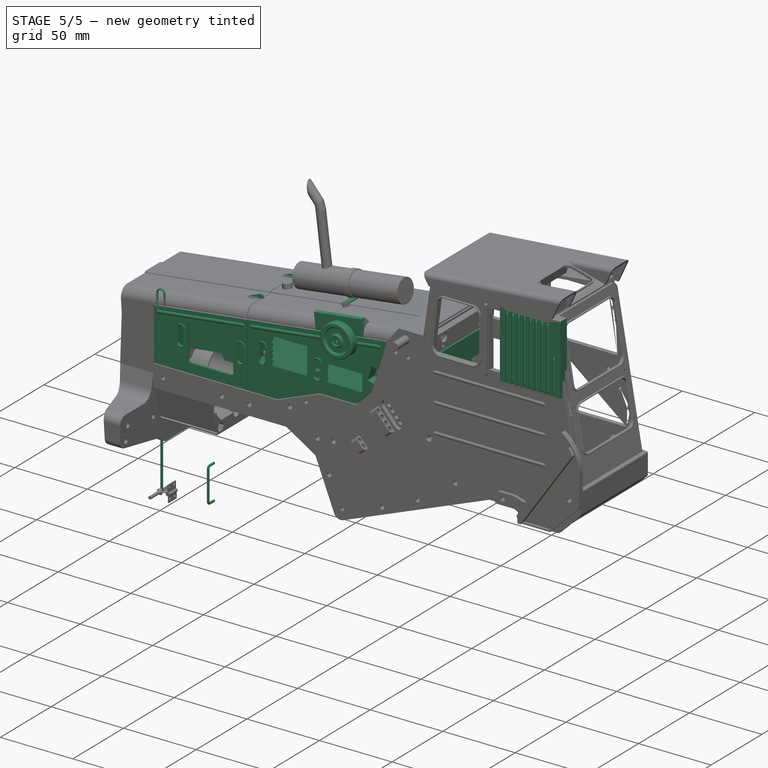
[diagram: stage 5 of 5 — iso view after this stage's code; geometry added in this stage tinted green]
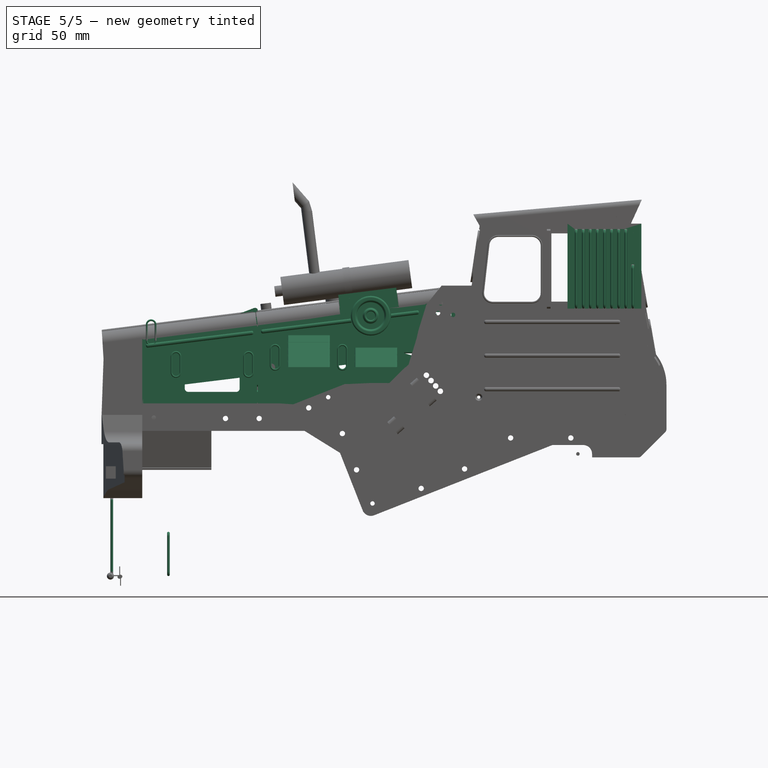
[diagram: stage 5 of 5 — front view after this stage's code; geometry added in this stage tinted green]
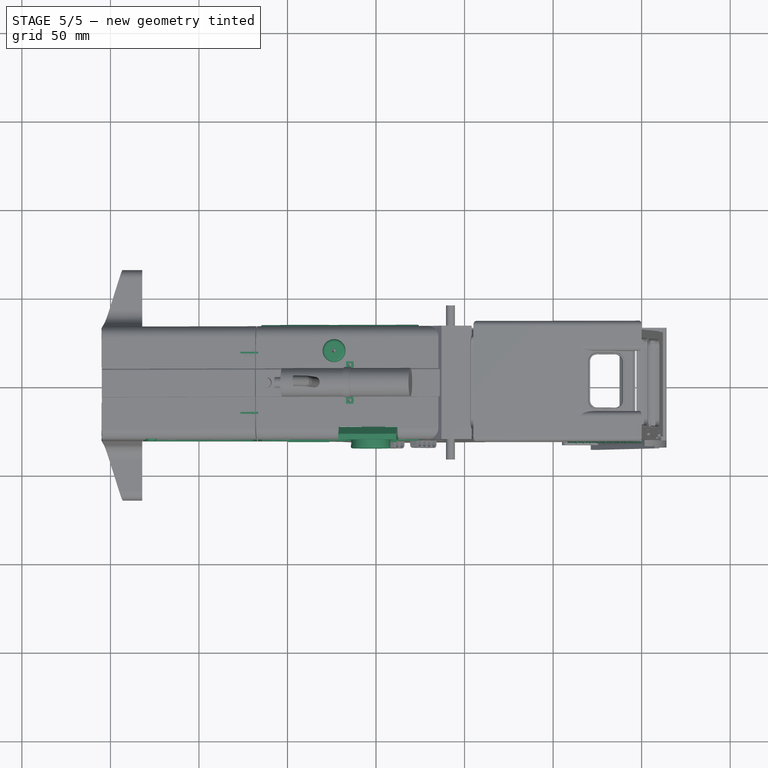
[diagram: stage 5 of 5 — top view after this stage's code; geometry added in this stage tinted green]
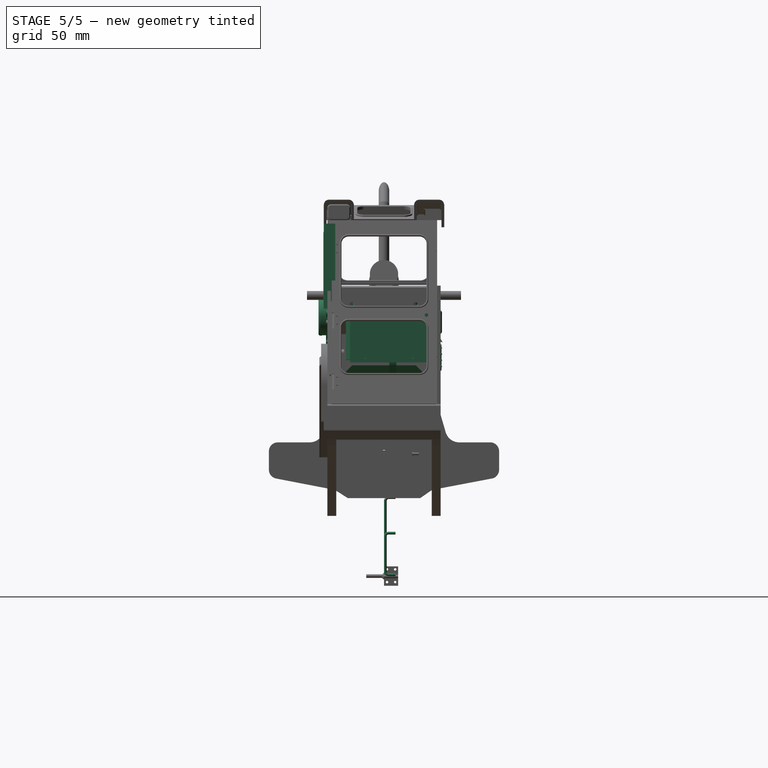
[diagram: stage 5 of 5 — right view after this stage's code; geometry added in this stage tinted green]
FEATURE [Image::ImagePlane] ImagePlane
  Placement = pos=(241.302,0,103.584) rot=(0.999753,-0.015705,0.015705;1.57104rad)
  XSize = 472
  YSize = 215
FEATURE [Part::Part2DObjectPython] Line008  label="rear-wheels-right-path"  # Draft 2D object (typed FeaturePython)
  Closed = true
  End = (140,-70,46)
  FilletRadius = 0
  MapMode = 5
  Placement = pos=(10,-70,46) rot=(0,0,1;0rad)
  Points = (2) [(0,0,0),(130,0,0)]
  Start = (10,-70,46)
FEATURE [Part::Part2DObjectPython] Line009  label="rear-wheels-left-path"  # Draft 2D object (typed FeaturePython)
  Closed = true
  End = (140,70,46)
  FilletRadius = 0
  MapMode = 5
  Placement = pos=(10,70,46) rot=(0,0,1;0rad)
  Points = (2) [(0,0,0),(130,0,0)]
  Start = (10,70,46)
FEATURE [Part::Part2DObjectPython] Line010  label="front-wheels-right-path"  # Draft 2D object (typed FeaturePython)
  Closed = true
  End = (325,-69,62)
  FilletRadius = 0
  MapMode = 5
  Placement = pos=(195,-69,62) rot=(0,0,1;0rad)
  Points = (2) [(0,0,0),(130,0,0)]
  Start = (195,-69,62)
FEATURE [Part::Part2DObjectPython] Line011  label="front-wheels-left-path"  # Draft 2D object (typed FeaturePython)
  Closed = true
  End = (325,69,62)
  FilletRadius = 0
  MapMode = 5
  Placement = pos=(195,69,62) rot=(0,0,1;0rad)
  Points = (2) [(0,0,0),(130,0,0)]
  Start = (195,69,62)
FEATURE [Part::Part2DObjectPython] Line012  label="longitudinal-midframe-path"  # Draft 2D object (typed FeaturePython)
  Closed = true
  End = (350,0,46)
  FilletRadius = 0
  MapMode = 5
  Placement = pos=(0,0,46) rot=(0,0,1;0rad)
  Points = (2) [(0,0,0),(350,0,0)]
  Start = (0,0,46)
FEATURE [Part::Part2DObjectPython] Line013  label="rear-wheels-axle-path"  # Draft 2D object (typed FeaturePython)
  Closed = true
  End = (75,70,46)
  FilletRadius = 0
  MapMode = 5
  Placement = pos=(75,-70,46) rot=(0,0,1;0rad)
  Points = (2) [(0,0,0),(0,140,0)]
  Start = (75,-70,46)
FEATURE [Part::Part2DObjectPython] Line014  label="front-wheels-axle-path"  # Draft 2D object (typed FeaturePython)
  Closed = true
  End = (260,70,62)
  FilletRadius = 0
  MapMode = 5
  Placement = pos=(260,-70,62) rot=(0,0,1;0rad)
  Points = (2) [(0,0,0),(0,140,0)]
  Start = (260,-70,62)
FEATURE [Part::Part2DObjectPython] Line015  label="arm-upper-joint"  # Draft 2D object (typed FeaturePython)
  Closed = true
  End = (192,70,158.5)
  FilletRadius = 0
  MapMode = 5
  Placement = pos=(192,-70,158.5) rot=(0,0,1;0rad)
  Points = (2) [(0,0,0),(0,140,0)]
  Start = (192,-70,158.5)
FEATURE [Part::Part2DObjectPython] Line016  label="arm-lower-joint"  # Draft 2D object (typed FeaturePython)
  Closed = true
  End = (387,70,67.5)
  FilletRadius = 0
  MapMode = 5
  Placement = pos=(387,-70,67.5) rot=(0,0,1;0rad)
  Points = (2) [(0,0,0),(0,140,0)]
  Start = (387,-70,67.5)
FEATURE [Part::Part2DObjectPython] Line017  label="bucket-lever-upper-joint"  # Draft 2D object (typed FeaturePython)
  Closed = true
  End = (184,70,189)
  FilletRadius = 0
  MapMode = 5
  Placement = pos=(184,-70,189) rot=(0,0,1;0rad)
  Points = (2) [(0,0,0),(0,140,0)]
  Start = (184,-70,189)
FEATURE [Part::Part2DObjectPython] Line018  label="bucket-lever-middle-joint"  # Draft 2D object (typed FeaturePython)
  Closed = true
  End = (185,70,148.5)
  FilletRadius = 0
  MapMode = 5
  Placement = pos=(185,-70,148.5) rot=(0,0,1;0rad)
  Points = (2) [(0,0,0),(0,140,0)]
  Start = (185,-70,148.5)
FEATURE [Part::Part2DObjectPython] Line019  label="bucket-lever-lower-joint"  # Draft 2D object (typed FeaturePython)
  Closed = true
  End = (195,70,126)
  FilletRadius = 0
  MapMode = 5
  Placement = pos=(195,-70,126) rot=(0,0,1;0rad)
  Points = (2) [(0,0,0),(0,140,0)]
  Start = (195,-70,126)
FEATURE [Part::Part2DObjectPython] Line020  label="bucket-tirant-first-joint"  # Draft 2D object (typed FeaturePython)
  Closed = true
  End = (341,70,112.5)
  FilletRadius = 0
  MapMode = 5
  Placement = pos=(341,-70,112.5) rot=(0,0,1;0rad)
  Points = (2) [(0,0,0),(0,140,0)]
  Start = (341,-70,112.5)
FEATURE [Part::Part2DObjectPython] Line021  label="bucket-tirant-second-joint"  # Draft 2D object (typed FeaturePython)
  Closed = true
  End = (351.5,70,85)
  FilletRadius = 0
  MapMode = 5
  Placement = pos=(351.5,-70,85) rot=(0,0,1;0rad)
  Points = (2) [(0,0,0),(0,140,0)]
  Start = (351.5,-70,85)
FEATURE [Part::Part2DObjectPython] Line022  label="bucket-tirant-third-joint"  # Draft 2D object (typed FeaturePython)
  Closed = true
  End = (349.5,70,118.5)
  FilletRadius = 0
  MapMode = 5
  Placement = pos=(349.5,-70,118.5) rot=(0,0,1;0rad)
  Points = (2) [(0,0,0),(0,140,0)]
  Start = (349.5,-70,118.5)
FEATURE [Part::Part2DObjectPython] Line023  label="bucket-tirant-fourth-joint"  # Draft 2D object (typed FeaturePython)
  Closed = true
  End = (386,70,101)
  FilletRadius = 0
  MapMode = 5
  Placement = pos=(386,-70,101) rot=(0,0,1;0rad)
  Points = (2) [(0,0,0),(0,140,0)]
  Start = (386,-70,101)
FEATURE [Part::Part2DObjectPython] Line024  label="bucket-cylinder-joint"  # Draft 2D object (typed FeaturePython)
  Closed = true
  End = (123,70,101)
  FilletRadius = 0
  MapMode = 5
  Placement = pos=(123,-70,101) rot=(0,0,1;0rad)
  Points = (2) [(0,0,0),(0,140,0)]
  Start = (123,-70,101)
FEATURE [Part::Part2DObjectPython] Line025  label="arm-cylinder-joint"  # Draft 2D object (typed FeaturePython)
  Closed = true
  End = (148,70,41)
  FilletRadius = 0
  MapMode = 5
  Placement = pos=(148,-70,41) rot=(0,0,1;0rad)
  Points = (2) [(0,0,0),(0,140,0)]
  Start = (148,-70,41)
FEATURE [Part::Part2DObjectPython] Line026  label="arm-middle-joint"  # Draft 2D object (typed FeaturePython)
  Closed = true
  End = (234.5,70,118.5)
  FilletRadius = 0
  MapMode = 5
  Placement = pos=(230.5,-70,120.5) rot=(0,0,1;0rad)
  Points = (2) [(4,0,-2),(4,140,-2)]
  Start = (234.5,-70,118.5)
FEATURE [Part::Box] Box003  label="battery"
  AttacherType = Attacher::AttachEngine3D
  Height = 33
  Length = 133
  Placement = pos=(24,-21.5,106) rot=(0,-1,0;0.122173rad)
  Width = 43
FEATURE [PartDesign::Body] Body001004  label="frame-base"
  Group = -> [Sketch011,Pad008]
  Origin = -> Origin010
  Placement = pos=(0,-27,0) rot=(0,0,1;0rad)
  Tip = -> Pad008
FEATURE [Part::Feature] _03012_302001  label="MAGOM-PUMP"
  Placement = pos=(153,78.5,50) rot=(0.57735,-0.57735,-0.57735;2.0944rad)
  shape: bbox 115.6 x 41.21 x 42.72 mm, 1315 faces, 39 solids (baked)
FEATURE [Part::Feature] Compound001  label="MAGOM-3WAY-DISTRIBUTOR"
  Placement = pos=(0,0,0) rot=(0.57735,0.57735,0.57735;2.0944rad)
  shape: bbox 32 x 44 x 32.86 mm, 313 faces, 7 solids (baked)
FEATURE [Part::Feature] Part__Feature058  label="SG90 - Micro Servo 9g - Tower Pro.1_Pea"
  Placement = pos=(-27,5.12,-1) rot=(0.57735,0.57735,0.57735;4.18879rad)
  shape: bbox 29.96 x 13.21 x 32.11 mm, 643 faces, 13 solids (baked)
FEATURE [Part::Feature] Part__Feature059  label="SG90 - Micro Servo 9g - Tower Pro.1_Pea"
  Placement = pos=(-27,-8.39,-1) rot=(0.57735,0.57735,0.57735;4.18879rad)
  shape: bbox 29.96 x 13.21 x 32.11 mm, 643 faces, 13 solids (baked)
FEATURE [Part::Feature] Part__Feature060  label="SG90 - Micro Servo 9g - Tower Pro.1_Pea"
  Placement = pos=(-27,-21.9,-1) rot=(0.57735,0.57735,0.57735;4.18879rad)
  shape: bbox 29.96 x 13.21 x 32.11 mm, 643 faces, 13 solids (baked)
FEATURE [Part::Compound] Compound002  label="MAGOM-3WAY-DISTRIBUTOR"
  Links = -> [Compound001,Part__Feature058,Part__Feature059,Part__Feature060]
  Placement = pos=(195,-5.6,136) rot=(1,0,0;3.14159rad)
FEATURE [Part::Feature] Compound003003  label="servo-DS_3218MG"
  Placement = pos=(176,-26,96) rot=(0.707107,0,-0.707107;3.14159rad)
  shape: bbox 55.85 x 47.54 x 38.43 mm, 2500 faces, 12 solids (baked)
FEATURE [Part::Feature] Fusion004002009002027014004009002002008002004029002015013017006002012002031033002013006007008014029072011018024002019049062029014012006016002033001057009078004002010031016012003004006002003003002005003  label="steering-link-STEEL"
  shape: bbox 101.4 x 21.08 x 15.55 mm, 9 faces (baked)
FEATURE [Part::Feature] Common001001  label="gearbox-cage_third_part"
  shape: bbox 9 x 44 x 51 mm, 46 faces (baked)
FEATURE [Part::Feature] Common002001  label="gearbox-cage_fourth_part"
  shape: bbox 18 x 42 x 42 mm, 31 faces (baked)
FEATURE [Part::Feature] Common003001  label="gearbox-cage_second_part"
  shape: bbox 10 x 44 x 71 mm, 44 faces (baked)
FEATURE [Part::Feature] Common003002  label="gearbox-cage_first_part-A"
  shape: bbox 2.5 x 46 x 51 mm, 21 faces (baked)
FEATURE [Part::Feature] Common004001  label="gearbox-cage_first_part-B"
  shape: bbox 10.5 x 46 x 51 mm, 31 faces (baked)
FEATURE [Part::Feature] Cut176013009033007019019008010045003002004008006010017027003005053020098001031003007007002011005005004026009003002001  label="BEARING-17x23x4-6703"
  Placement = pos=(264,-75,9) rot=(0,0,1;1.5708rad)
  shape: bbox 4 x 23 x 23 mm, 4 faces (baked)
FEATURE [Part::Feature] Cut176013009033007019019008010045003002004008006010017027003005053020098001031003007007002011005005004026009003009001  label="gearbox-gear"
  shape: bbox 8 x 31 x 31 mm, 351 faces (baked)
FEATURE [Part::Feature] Cut176013009033007019019008010045003002004008006010017027003005053020098001031003007007002011005005004026009003017001  label="gearbox-gear-lock-BRASS"
  shape: bbox 16 x 22 x 22 mm, 27 faces (baked)
FEATURE [Part::Feature] Cut176013009033007019019008010045003002004008006010017027003005053020098001031003007007002011005005004026009004013003001  label="gearbox-lock-STEEL"
  shape: bbox 11 x 9.959 x 11.5 mm, 25 faces (baked)
FEATURE [Part::Feature] Cut176013009033007019019008010045003002004008006010017027003005053020098001031003007007002011005005004026009004013004001  label="BEARING-5x9x3-MR95ZZ"
  Placement = pos=(245,-75,9) rot=(0,0,1;1.5708rad)
  shape: bbox 3 x 9 x 9 mm, 4 faces (baked)
FEATURE [Part::Feature] Cut176013009033007019019008010045003002004008006010017027003005053020098001031003007007002011005005004026009004013005002003003001  label="gearbox-lock-fork-guide-BRASS4mm"
  shape: bbox 22 x 4 x 4 mm, 4 faces (baked)
FEATURE [Part::Feature] Cut176013009033007019019008010045003002004008006010017027003005053020098001031003007007002011005005004026009004013005002003006014001  label="gearbox-servo-attach"
  shape: bbox 19 x 54 x 29 mm, 28 faces (baked)
FEATURE [Part::Feature] Cut176013009033007019019008010045003002004008006021005004004004004002012033009016002012007022024016001001  label="BEARING-5x9x3-MR95ZZ"
  Placement = pos=(226,-75,9) rot=(0,0,1;1.5708rad)
  shape: bbox 3 x 9 x 9 mm, 4 faces (baked)
FEATURE [Part::Feature] Cut176013009033007019019008010045003002004008006021005004004004004002012033009016002012007022024086001  label="BEARING-5x8x2.5-MR85ZZ"
  Placement = pos=(273.5,-62,25.5) rot=(0,0,1;1.5708rad)
  shape: bbox 2.5 x 8 x 8 mm, 4 faces (baked)
FEATURE [Part::Feature] Fusion004002009002027014004009002002008002004029002015013017006002012002031033002013006007008014029072011018024002019049062029014012006016002033001057009078004002010031016012003004006002003003002005005001  label="gearbox-lock-fork-ASSEMBLY"
  shape: bbox 72 x 17 x 13 mm, 34 faces (baked)
FEATURE [Part::Feature] Fusion004002009002027014004009002002008002004029002015013017006002012002031033002013006007008014029072011018024002019049062029014012006016002033001057009078004002010031016012003004006002003003002005042  label="GEARMOTOR"
  Placement = pos=(-0.5,-1,-5.5) rot=(0,0,1;0rad)
  shape: bbox 76 x 25 x 25 mm, 195 faces (baked)
FEATURE [Part::Feature] Fusion004002009002027014004009002002008002004029002015013017006002012002031033002013006007008014029072011018024002019049062029014012006016002033001057009078004002010031016012003004006002003003002005043  label="gearbox-shaft-STEEL"
  shape: bbox 48 x 6 x 6 mm, 7 faces (baked)
FEATURE [Part::Feature] Fusion088026007031024007008004100051055007010008005020006001  label="rear-prop-shaft-STEEL"
  shape: bbox 58 x 11 x 20.07 mm, 107 faces, 3 solids (baked)
FEATURE [Part::Feature] Compound003002002001  label="servo-EMAX_ES08MA_II"
  Placement = pos=(118,-4,64.5) rot=(0,0,1;3.14159rad)
  shape: bbox 32 x 29 x 21 mm, 45 faces, 2 solids (baked)
FEATURE [Sketcher::SketchObject] Sketch012
  FullyConstrained = false
  MapMode = 5
  Placement = pos=(0,0,0) rot=(1,0,0;1.5708rad)
  Support = -> [XZ_Plane011]
  sketch-geometry (20):
    g0: LineSegment StartX=103.25 StartY=97 StartZ=0 EndX=132.5 EndY=108.5 EndZ=0
    g1: LineSegment StartX=18 StartY=97 StartZ=0 EndX=37.6667 EndY=97 EndZ=0
    g2: LineSegment StartX=168.333 StartY=119.333 StartZ=0 EndX=172.921 EndY=134.243 EndZ=0
    g3: LineSegment StartX=179 StartY=154 StartZ=0 EndX=185.223 EndY=161.779 EndZ=0
    g4: LineSegment StartX=132.5 StartY=108.5 StartZ=0 EndX=136.167 EndY=108.5 EndZ=0
    g5: LineSegment StartX=168.333 StartY=119.333 StartZ=0 EndX=157.5 EndY=108.5 EndZ=0
    g6: LineSegment StartX=18 StartY=141 StartZ=0 EndX=185.223 EndY=161.779 EndZ=0
    g7: LineSegment StartX=18 StartY=141 StartZ=0 EndX=18 EndY=97 EndZ=0
    g8: LineSegment StartX=58.3333 StartY=97 StartZ=0 EndX=55 EndY=91 EndZ=0
    g9: LineSegment StartX=37.6667 StartY=97 StartZ=0 EndX=41 EndY=91 EndZ=0
    g10: LineSegment StartX=41 StartY=91 StartZ=0 EndX=55 EndY=91 EndZ=0
    g11: LineSegment StartX=58.3333 StartY=97 StartZ=0 EndX=103.25 EndY=97 EndZ=0
    g12: LineSegment StartX=136.167 StartY=108.5 StartZ=0 EndX=139.5 EndY=102.5 EndZ=0
    g13: LineSegment StartX=155.333 StartY=108.5 StartZ=0 EndX=152 EndY=102.5 EndZ=0
    g14: LineSegment StartX=139.5 StartY=102.5 StartZ=0 EndX=152 EndY=102.5 EndZ=0
    g15: LineSegment StartX=155.333 StartY=108.5 StartZ=0 EndX=157.5 EndY=108.5 EndZ=0
    g16: LineSegment StartX=182.049 StartY=143.508 StartZ=0 EndX=179.364 EndY=134.78 EndZ=0
    g17: LineSegment StartX=177.551 StartY=149.291 StartZ=0 EndX=182.049 EndY=143.508 EndZ=0
    g18: LineSegment StartX=179.364 StartY=134.78 StartZ=0 EndX=172.921 EndY=134.243 EndZ=0
    g19: LineSegment StartX=177.551 StartY=149.291 StartZ=0 EndX=179 EndY=154 EndZ=0
  constraints (32):
    c: Horizontal(g1)
    c: Coincident(g0,g11)
    c: Coincident(g3,g19)
    c: Coincident(g4,g0)
    c: Horizontal(g4)
    c: Coincident(g2,g5)
    c: Coincident(g15,g5)
    c: DistanceX(g15) = 157.5
    c: DistanceY(g15) = 108.5
    c: Coincident(g7,g6)
    c: Vertical(g7)
    c: Coincident(g7,g1)
    c: Coincident(g6,g3)
    c: Coincident(g10,g9)
    c: Coincident(g10,g8)
    c: Horizontal(g10)
    c: Coincident(g1,g9)
    c: Coincident(g11,g8)
    c: Coincident(g14,g12)
    c: Coincident(g14,g13)
    c: Horizontal(g14)
    c: Coincident(g4,g12)
    c: Coincident(g15,g13)
    c: DistanceX(g19) = 179
    c: DistanceY(g19) = 154
    c: DistanceX(g2) = 168.333
    c: DistanceY(g2) = 119.333
    c: Parallel(g2,g16)
    c: Coincident(g16,g17)
    c: Coincident(g16,g18)
    c: Coincident(g17,g19)
    c: Coincident(g18,g2)
FEATURE [PartDesign::Pad] Pad009
  Direction = (0,-1,-2e-16)
  Length = 7
  Length2 = 10
  Placement = pos=(0,0,0) rot=(1,0,0;1.5708rad)
  Profile = -> Sketch012
  ReferenceAxis = -> Sketch012 [N_Axis]
  Refine = true
  Reversed = true
  Type = 0
FEATURE [Sketcher::SketchObject] Sketch013
  FullyConstrained = false
  MapMode = 5
  Placement = pos=(0,0,0) rot=(1,0,0;1.5708rad)
  Support = -> [XZ_Plane011]
  sketch-geometry (15):
    g0: LineSegment StartX=103.25 StartY=97 StartZ=0 EndX=132.5 EndY=108.5 EndZ=0
    g1: LineSegment StartX=18 StartY=97 StartZ=0 EndX=37.6667 EndY=97 EndZ=0
    g2: LineSegment StartX=168.333 StartY=119.333 StartZ=0 EndX=179 EndY=154 EndZ=0
    g3: LineSegment StartX=132.5 StartY=108.5 StartZ=0 EndX=136.167 EndY=108.5 EndZ=0
    g4: LineSegment StartX=168.333 StartY=119.333 StartZ=0 EndX=157.5 EndY=108.5 EndZ=0
    g5: LineSegment StartX=18 StartY=133.994 StartZ=0 EndX=18 EndY=97 EndZ=0
    g6: LineSegment StartX=18 StartY=133.994 StartZ=0 EndX=179 EndY=154 EndZ=0
    g7: LineSegment StartX=37.6667 StartY=97 StartZ=0 EndX=41 EndY=91 EndZ=0
    g8: LineSegment StartX=55 StartY=91 StartZ=0 EndX=58.3333 EndY=97 EndZ=0
    g9: LineSegment StartX=41 StartY=91 StartZ=0 EndX=55 EndY=91 EndZ=0
    g10: LineSegment StartX=58.3333 StartY=97 StartZ=0 EndX=103.25 EndY=97 EndZ=0
    g11: LineSegment StartX=139.5 StartY=102.5 StartZ=0 EndX=136.167 EndY=108.5 EndZ=0
    g12: LineSegment StartX=139.5 StartY=102.5 StartZ=0 EndX=152 EndY=102.5 EndZ=0
    g13: LineSegment StartX=152 StartY=102.5 StartZ=0 EndX=155.333 EndY=108.5 EndZ=0
    g14: LineSegment StartX=155.333 StartY=108.5 StartZ=0 EndX=157.5 EndY=108.5 EndZ=0
  constraints (21):
    c: Horizontal(g1)
    c: Coincident(g0,g10)
    c: Coincident(g3,g0)
    c: Horizontal(g3)
    c: Coincident(g2,g4)
    c: Coincident(g14,g4)
    c: DistanceX(g14) = 157.5
    c: DistanceY(g14) = 108.5
    c: Vertical(g5)
    c: Coincident(g5,g1)
    c: Coincident(g5,g6)
    c: Coincident(g9,g7)
    c: Coincident(g9,g8)
    c: Horizontal(g9)
    c: Coincident(g1,g7)
    c: Coincident(g10,g8)
    c: Coincident(g12,g11)
    c: Horizontal(g12)
    c: Coincident(g13,g12)
    c: Coincident(g3,g11)
    c: Coincident(g13,g14)
FEATURE [PartDesign::Pocket] Pocket
  BaseFeature = -> Pad009
  Direction = (0,1,2e-16)
  Length = 3
  Length2 = 5
  Placement = pos=(0,0,0) rot=(1,0,0;1.5708rad)
  Profile = -> Sketch013
  ReferenceAxis = -> Sketch013 [N_Axis]
  Refine = true
  Type = 0
FEATURE [Sketcher::SketchObject] Sketch014
  FullyConstrained = false
  MapMode = 5
  Placement = pos=(0,0,0) rot=(1,0,0;1.5708rad)
  Support = -> [XZ_Plane011]
  sketch-geometry (21):
    g0: LineSegment StartX=22 StartY=100.978 StartZ=0 EndX=79 EndY=100.978 EndZ=0
    g1: LineSegment StartX=102.934 StartY=100.978 StartZ=0 EndX=132.041 EndY=112.654 EndZ=0
    g2: LineSegment StartX=132.041 StartY=112.654 StartZ=0 EndX=156.243 EndY=112.654 EndZ=0
    g3: LineSegment StartX=156.243 StartY=112.654 StartZ=0 EndX=161.176 EndY=117.219 EndZ=0
    g4: LineSegment StartX=170.909 StartY=149.127 StartZ=0 EndX=87 EndY=138.577 EndZ=0
    g5: LineSegment StartX=22 StartY=130.5 StartZ=0 EndX=22 EndY=100.978 EndZ=0
    g6: LineSegment StartX=79 StartY=137.583 StartZ=0 EndX=79 EndY=128.5 EndZ=0
    g7: LineSegment StartX=87 StartY=138.577 StartZ=0 EndX=87 EndY=100.978 EndZ=0
    g8: LineSegment StartX=87 StartY=100.978 StartZ=0 EndX=102.934 EndY=100.978 EndZ=0
    g9: LineSegment StartX=79 StartY=137.583 StartZ=0 EndX=22 EndY=130.5 EndZ=0
    g10: LineSegment StartX=82 StartY=125.5 StartZ=0 EndX=82 EndY=113.5 EndZ=0
    g11: LineSegment StartX=82 StartY=125.5 StartZ=0 EndX=79 EndY=128.5 EndZ=0
    g12: LineSegment StartX=82 StartY=113.5 StartZ=0 EndX=79 EndY=110.5 EndZ=0
    g13: LineSegment StartX=79 StartY=110.5 StartZ=0 EndX=79 EndY=100.978 EndZ=0
    g14: LineSegment StartX=170.909 StartY=149.127 StartZ=0 EndX=161.176 EndY=117.219 EndZ=0
    g15: LineSegment StartX=173.739 StartY=133.937 StartZ=0 EndX=170.823 EndY=124.377 EndZ=0
    g16: LineSegment StartX=170.823 StartY=124.377 StartZ=0 EndX=166.455 EndY=125.709 EndZ=0
    g17: LineSegment StartX=165.791 StartY=126.957 StartZ=0 EndX=168.123 EndY=134.604 EndZ=0
    g18: LineSegment StartX=169.372 StartY=135.269 StartZ=0 EndX=173.739 EndY=133.937 EndZ=0
    g19: ArcOfCircle CenterX=169.08 CenterY=134.312 CenterZ=0 NormalX=0 NormalY=0 NormalZ=1 AngleXU=0 Radius=1 StartAngle=1.27471 EndAngle=2.8455
    g20: ArcOfCircle CenterX=166.747 CenterY=126.666 CenterZ=0 NormalX=0 NormalY=0 NormalZ=1 AngleXU=0 Radius=1 StartAngle=2.8455 EndAngle=4.4163
  constraints (32):
    c: Horizontal(g0)
    c: Coincident(g1,g8)
    c: Coincident(g2,g1)
    c: Horizontal(g2)
    c: Coincident(g3,g2)
    c: Coincident(g5,g9)
    c: Coincident(g5,g0)
    c: Vertical(g6)
    c: Vertical(g7)
    c: Coincident(g0,g13)
    c: Coincident(g8,g7)
    c: Coincident(g4,g7)
    c: Coincident(g9,g6)
    c: Vertical(g10)
    c: Coincident(g11,g10)
    c: Coincident(g12,g10)
    c: Coincident(g12,g13)
    c: Coincident(g11,g6)
    c: Coincident(g3,g14)
    c: Coincident(g4,g14)
    c: Coincident(g16,g15)
    c: Coincident(g18,g15)
    c: Parallel(g18,g16)
    c: Parallel(g14,g17)
    c: Tangent(g18,g19) = 1.5708
    c: Tangent(g17,g19) = 1.5708
    c: Tangent(g16,g20) = 1.5708
    c: Tangent(g17,g20) = 1.5708
    c: Radius(g19) = 1
    c: Radius(g20) = 1
    c: Perpendicular(g15,g18)
    c: Perpendicular(g17,g18)
FEATURE [PartDesign::Pocket] Pocket001
  BaseFeature = -> Pocket
  Direction = (0,1,2e-16)
  Length = 5
  Length2 = 5
  Placement = pos=(0,0,0) rot=(1,0,0;1.5708rad)
  Profile = -> Sketch014
  ReferenceAxis = -> Sketch014 [N_Axis]
  Refine = true
  Type = 1
FEATURE [Sketcher::SketchObject] Sketch015
  AttachmentOffset = pos=(0,0,32) rot=(0,0,1;0rad)
  FullyConstrained = false
  MapMode = 5
  Placement = pos=(0,-32,-7.1e-15) rot=(1,0,0;1.5708rad)
  Support = -> [XZ_Plane014]
  sketch-geometry (7):
    g0: LineSegment StartX=103.25 StartY=97.5 StartZ=0 EndX=132.5 EndY=109 EndZ=0
    g1: LineSegment StartX=168 StartY=119.5 StartZ=0 EndX=178.5 EndY=153.5 EndZ=0
    g2: LineSegment StartX=132.5 StartY=109 StartZ=0 EndX=157.5 EndY=109 EndZ=0
    g3: LineSegment StartX=168 StartY=119.5 StartZ=0 EndX=157.5 EndY=109 EndZ=0
    g4: LineSegment StartX=83.25 StartY=141.594 StartZ=0 EndX=83.25 EndY=97.5 EndZ=0
    g5: LineSegment StartX=83.25 StartY=141.594 StartZ=0 EndX=178.5 EndY=153.5 EndZ=0
    g6: LineSegment StartX=83.25 StartY=97.5 StartZ=0 EndX=103.25 EndY=97.5 EndZ=0
  constraints (10):
    c: Coincident(g0,g6)
    c: Coincident(g2,g0)
    c: Horizontal(g2)
    c: Coincident(g1,g3)
    c: Coincident(g2,g3)
    c: DistanceX(g2) = 157.5
    c: DistanceY(g2) = 109
    c: Vertical(g4)
    c: Coincident(g5,g4)
    c: Coincident(g6,g4)
FEATURE [Sketcher::SketchObject] Sketch016
  AttachmentOffset = pos=(0,0,32) rot=(0,0,1;0rad)
  FullyConstrained = false
  MapMode = 5
  Placement = pos=(0,-32,-7.1e-15) rot=(1,0,0;1.5708rad)
  Support = -> [XZ_Plane015]
  sketch-geometry (4):
    g0: LineSegment StartX=18.5 StartY=97.5 StartZ=0 EndX=82.75 EndY=97.5 EndZ=0
    g1: LineSegment StartX=18.5 StartY=133.5 StartZ=0 EndX=18.5 EndY=97.5 EndZ=0
    g2: LineSegment StartX=18.5 StartY=133.5 StartZ=0 EndX=82.75 EndY=141.531 EndZ=0
    g3: LineSegment StartX=82.75 StartY=141.531 StartZ=0 EndX=82.75 EndY=97.5 EndZ=0
  constraints (7):
    c: Horizontal(g0)
    c: Vertical(g1)
    c: Coincident(g1,g0)
    c: Coincident(g1,g2)
    c: Vertical(g3)
    c: Coincident(g2,g3)
    c: Coincident(g0,g3)
FEATURE [PartDesign::Pad] Pad010
  Direction = (0,-1,2e-16)
  Length = 3
  Length2 = 10
  Placement = pos=(0,0,0) rot=(1,0,0;1.5708rad)
  Profile = -> Sketch016
  ReferenceAxis = -> Sketch016 [N_Axis]
  Refine = true
  Reversed = true
  Type = 0
FEATURE [PartDesign::Pad] Pad011
  Direction = (0,-1,2e-16)
  Length = 3
  Length2 = 10
  Placement = pos=(0,0,0) rot=(1,0,0;1.5708rad)
  Profile = -> Sketch015
  ReferenceAxis = -> Sketch015 [N_Axis]
  Refine = true
  Reversed = true
  Type = 0
FEATURE [Part::Cylinder] Cylinder
  Angle = 360
  AttacherType = Attacher::AttachEngine3D
  FirstAngle = 0
  Height = 61.25
  Placement = pos=(20,-31.5,130) rot=(0,1,0;1.44862rad)
  Radius = 1.25
  SecondAngle = 0
FEATURE [Part::Cylinder] Cylinder1492324
  Angle = 360
  AttacherType = Attacher::AttachEngine3D
  FirstAngle = 0
  Height = 90
  Placement = pos=(85,-31.5,138) rot=(0,1,0;1.44862rad)
  Radius = 1.25
  SecondAngle = 0
FEATURE [Part::Fillet] Fillet
  Base = -> Cylinder
  Edges = 2 edges r=1: [Edge2,Edge3]
FEATURE [Part::Fillet] Fillet001006007031013  label="Fillet"
  Base = -> Cylinder1492324
  Edges = 2 edges r=1: [Edge2,Edge3]
FEATURE [Part::Box] Box  label="Cube"
  AttacherType = Attacher::AttachEngine3D
  Height = 15
  Length = 6
  Placement = pos=(20,-32.5,130) rot=(0,0,1;0rad)
  Width = 1
FEATURE [Part::Fillet] Fillet001006007031014
  Base = -> Box
  Edges = 4 edges r=2.99: [Edge2,Edge4,Edge6,Edge8]
FEATURE [Part::Box] Box087  label="Cube"
  AttacherType = Attacher::AttachEngine3D
  Height = 13
  Length = 4
  Placement = pos=(21,-32.5,131) rot=(0,0,1;0rad)
  Width = 1
FEATURE [Part::Fillet] Fillet001006007031015
  Base = -> Box087
  Edges = 4 edges r=1.99: [Edge2,Edge4,Edge6,Edge8]
FEATURE [Part::Cut] Cut176013009033007019019008010045003002004008006010017027003005053020098001031003007007002011005005004026009004013005002003006024005  label="Cut"
  Base = -> Fillet001006007031014
  Refine = true
  Tool = -> Fillet001006007031015
FEATURE [Part::Fillet] Fillet001006007031015002
  Base = -> Cut176013009033007019019008010045003002004008006010017027003005053020098001031003007007002011005005004026009004013005002003006024005
  Edges = 2 edges r=0.49: [Edge1,Edge12]
FEATURE [Sketcher::SketchObject] Sketch017
  AttachmentOffset = pos=(0,0,32) rot=(0,0,1;0rad)
  FullyConstrained = false
  MapMode = 5
  Placement = pos=(0,-32,-7.1e-15) rot=(1,0,0;1.5708rad)
  Support = -> [XZ_Plane015]
  sketch-geometry (16):
    g0: LineSegment StartX=42.0004 StartY=127.016 StartZ=0 EndX=42.0004 EndY=106 EndZ=0
    g1: LineSegment StartX=44.0004 StartY=104 StartZ=0 EndX=71 EndY=104 EndZ=0
    g2: LineSegment StartX=73 StartY=106 StartZ=0 EndX=73 EndY=130 EndZ=0
    g3: LineSegment StartX=43.7806 StartY=129.004 StartZ=0 EndX=70.7803 EndY=131.988 EndZ=0
    g4: ArcOfCircle CenterX=44.0004 CenterY=106 CenterZ=0 NormalX=0 NormalY=0 NormalZ=1 AngleXU=0 Radius=2 StartAngle=3.14159 EndAngle=4.71239
    g5: ArcOfCircle CenterX=44.0004 CenterY=127.016 CenterZ=0 NormalX=0 NormalY=0 NormalZ=1 AngleXU=0 Radius=2 StartAngle=1.68088 EndAngle=3.14159
    g6: ArcOfCircle CenterX=71 CenterY=130 CenterZ=0 NormalX=0 NormalY=0 NormalZ=1 AngleXU=0 Radius=2 StartAngle=3.6e-15 EndAngle=1.68088
    g7: ArcOfCircle CenterX=71 CenterY=106 CenterZ=0 NormalX=0 NormalY=0 NormalZ=1 AngleXU=0 Radius=2 StartAngle=4.71239 EndAngle=6.28319
    g8: ArcOfCircle CenterX=37 CenterY=124 CenterZ=0 NormalX=0 NormalY=0 NormalZ=1 AngleXU=0 Radius=2 StartAngle=0 EndAngle=3.14159
    g9: ArcOfCircle CenterX=37 CenterY=115 CenterZ=0 NormalX=0 NormalY=0 NormalZ=1 AngleXU=0 Radius=2 StartAngle=3.14159 EndAngle=6.28319
    g10: LineSegment StartX=35 StartY=124 StartZ=0 EndX=35 EndY=115 EndZ=0
    g11: LineSegment StartX=39 StartY=115 StartZ=0 EndX=39 EndY=124 EndZ=0
    g12: ArcOfCircle CenterX=78 CenterY=124 CenterZ=0 NormalX=0 NormalY=0 NormalZ=1 AngleXU=0 Radius=2 StartAngle=0 EndAngle=3.14159
    g13: ArcOfCircle CenterX=78 CenterY=115 CenterZ=0 NormalX=0 NormalY=0 NormalZ=1 AngleXU=0 Radius=2 StartAngle=3.14159 EndAngle=6.28318
    g14: LineSegment StartX=76 StartY=124 StartZ=0 EndX=76 EndY=115 EndZ=0
    g15: LineSegment StartX=80 StartY=115 StartZ=0 EndX=80 EndY=124 EndZ=0
  constraints (28):
    c: Vertical(g0)
    c: Horizontal(g1)
    c: Vertical(g2)
    c: Tangent(g0,g4) = -1.5708
    c: Tangent(g1,g4) = -1.5708
    c: Tangent(g3,g5) = 1.5708
    c: Tangent(g0,g5) = -1.5708
    c: Tangent(g3,g6) = 1.5708
    c: Tangent(g2,g6) = -1.5708
    c: Tangent(g2,g7) = -1.5708
    c: Tangent(g1,g7) = -1.5708
    c: Radius(g4) = 2
    c: Radius(g7) = 2
    c: Radius(g6) = 2
    c: Radius(g5) = 2
    c: Coincident(g10,g8)
    c: Coincident(g10,g9)
    c: Vertical(g10)
    c: Coincident(g11,g9)
    c: Coincident(g11,g8)
    c: Vertical(g11)
    c: Coincident(g14,g12)
    c: Coincident(g14,g13)
    c: Vertical(g14)
    c: Tangent(g14,g12)
    c: Coincident(g15,g13)
    c: Coincident(g15,g12)
    c: Vertical(g15)
FEATURE [PartDesign::Pocket] Pocket002
  BaseFeature = -> Pad010
  Direction = (0,1,2e-16)
  Length = 5
  Length2 = 5
  Placement = pos=(0,0,0) rot=(1,0,0;1.5708rad)
  Profile = -> Sketch017
  ReferenceAxis = -> Sketch017 [N_Axis]
  Refine = true
  Type = 1
FEATURE [Sketcher::SketchObject] Sketch018
  AttachmentOffset = pos=(0,0,31) rot=(0,0,1;0rad)
  FullyConstrained = false
  MapMode = 5
  Placement = pos=(0,-31,-6.9e-15) rot=(1,0,0;1.5708rad)
  Support = -> [XZ_Plane015]
  sketch-geometry (8):
    g0: LineSegment StartX=32 StartY=129 StartZ=0 EndX=78 EndY=134.5 EndZ=0
    g1: LineSegment StartX=32 StartY=129 StartZ=0 EndX=32 EndY=102 EndZ=0
    g2: LineSegment StartX=32 StartY=102 StartZ=0 EndX=78 EndY=102 EndZ=0
    g3: LineSegment StartX=78 StartY=102 StartZ=0 EndX=78 EndY=110.5 EndZ=0
    g4: LineSegment StartX=78 StartY=128.5 StartZ=0 EndX=81.5 EndY=128.5 EndZ=0
    g5: LineSegment StartX=81.5 StartY=128.5 StartZ=0 EndX=81.5 EndY=110.5 EndZ=0
    g6: LineSegment StartX=81.5 StartY=110.5 StartZ=0 EndX=78 EndY=110.5 EndZ=0
    g7: LineSegment StartX=78 StartY=128.5 StartZ=0 EndX=78 EndY=134.5 EndZ=0
  constraints (14):
    c: Coincident(g1,g0)
    c: Vertical(g1)
    c: Coincident(g2,g1)
    c: Horizontal(g2)
    c: Vertical(g3)
    c: Coincident(g0,g7)
    c: Coincident(g2,g3)
    c: Horizontal(g4)
    c: Coincident(g5,g4)
    c: Vertical(g5)
    c: Coincident(g6,g5)
    c: Horizontal(g6)
    c: Coincident(g3,g6)
    c: Coincident(g7,g4)
FEATURE [PartDesign::Pocket] Pocket003
  BaseFeature = -> Pocket002
  Direction = (0,1,2e-16)
  Length = 2
  Length2 = 5
  Placement = pos=(0,0,0) rot=(1,0,0;1.5708rad)
  Profile = -> Sketch018
  ReferenceAxis = -> Sketch018 [N_Axis]
  Refine = true
  Type = 0
FEATURE [PartDesign::Body] Body001007  label="frame-back-rear-panel-right"
  Group = -> [Sketch016,Pad010,Sketch017,Pocket002,Sketch018,Pocket003]
  Origin = -> Origin013
  Tip = -> Pocket003
FEATURE [Part::Feature] Fillet001006007031015002005  label="Fillet"
  Placement = pos=(14,0,-18) rot=(0,0,1;0rad)
  shape: bbox 6.493 x 1 x 15.49 mm, 34 faces (baked)
FEATURE [Part::Feature] Fillet001006007031015002006  label="Fillet"
  Placement = pos=(55,0,-18) rot=(0,0,1;0rad)
  shape: bbox 6.493 x 1 x 15.49 mm, 34 faces (baked)
FEATURE [Part::MultiFuse] Fusion
  Refine = true
  Shapes = -> [Body001007,Fillet,Fillet001006007031015002005,Fillet001006007031015002006]
FEATURE [Part::Cylinder] Cylinder1492325  label="Cylinder"
  Angle = 360
  AttacherType = Attacher::AttachEngine3D
  FirstAngle = 0
  Height = 4.4
  Placement = pos=(20.5,-26.8,132) rot=(1,0,0;1.5708rad)
  Radius = 1.6
  SecondAngle = 0
FEATURE [Part::Cylinder] Cylinder1492326  label="Cylinder"
  Angle = 360
  AttacherType = Attacher::AttachEngine3D
  FirstAngle = 0
  Height = 4.4
  Placement = pos=(20.5,-26.8,99.5) rot=(1,0,0;1.5708rad)
  Radius = 1.6
  SecondAngle = 0
FEATURE [Part::Cylinder] Cylinder1492327  label="Cylinder"
  Angle = 360
  AttacherType = Attacher::AttachEngine3D
  FirstAngle = 0
  Height = 4.4
  Placement = pos=(80.5,-26.8,99.5) rot=(1,0,0;1.5708rad)
  Radius = 1.6
  SecondAngle = 0
FEATURE [Part::Cylinder] Cylinder1492328  label="Cylinder"
  Angle = 360
  AttacherType = Attacher::AttachEngine3D
  FirstAngle = 0
  Height = 4.4
  Placement = pos=(85.5,-26.8,99.5) rot=(1,0,0;1.5708rad)
  Radius = 1.6
  SecondAngle = 0
FEATURE [Part::Cylinder] Cylinder1492329  label="Cylinder"
  Angle = 360
  AttacherType = Attacher::AttachEngine3D
  FirstAngle = 0
  Height = 4.4
  Placement = pos=(80.5,-26.8,139) rot=(1,0,0;1.5708rad)
  Radius = 1.6
  SecondAngle = 0
FEATURE [Part::Cylinder] Cylinder1492330  label="Cylinder"
  Angle = 360
  AttacherType = Attacher::AttachEngine3D
  FirstAngle = 0
  Height = 4.4
  Placement = pos=(85,-26.8,139.5) rot=(1,0,0;1.5708rad)
  Radius = 1.6
  SecondAngle = 0
FEATURE [Part::Cylinder] Cylinder1492331  label="Cylinder"
  Angle = 360
  AttacherType = Attacher::AttachEngine3D
  FirstAngle = 0
  Height = 4.4
  Placement = pos=(175.5,-26.8,151) rot=(1,0,0;1.5708rad)
  Radius = 1.6
  SecondAngle = 0
FEATURE [Part::Cylinder] Cylinder1492332  label="Cylinder"
  Angle = 360
  AttacherType = Attacher::AttachEngine3D
  FirstAngle = 0
  Height = 4.4
  Placement = pos=(156.5,-26.8,110.5) rot=(1,0,0;1.5708rad)
  Radius = 1.6
  SecondAngle = 0
FEATURE [Part::MultiFuse] Fusion004002009002027014004009002002008002004029002015013017006002012002031033002013006007008014029072011018024002019049062029014012006016002033001057009078004002010031016012003004006002003003002005005002  label="lateral-panels-magnets-HOLES"
  Refine = true
  Shapes = -> [Cylinder1492325,Cylinder1492326,Cylinder1492327,Cylinder1492328,Cylinder1492329,Cylinder1492330,Cylinder1492331,Cylinder1492332]
FEATURE [Part::Feature] Fusion004002009002027014004009002002008002004029002015013017006002012002031033002013006007008014029072011018024002019049062029014012006016002033001057009078004002010031016012003004006002003003002005005002002  label="lateral-panels-magnets-HOLES"
  shape: bbox 158 x 4.4 x 54.5 mm, 24 faces, 8 solids (baked)
FEATURE [Part::Feature] Fusion004002009002027014004009002002008002004029002015013017006002012002031033002013006007008014029072011018024002019049062029014012006016002033001057009078004002010031016012003004006002003003002005005002003  label="lateral-panels-magnets-HOLES"
  shape: bbox 158 x 4.4 x 54.5 mm, 24 faces, 8 solids (baked)
FEATURE [Part::Cut] Cut176013009033007019019008010045003002004008006010017027003005053020098001031003007007002011005005004026009004013005002003006024007  label="frame-motor-cover-right-rear-panel"
  Base = -> Fusion
  Refine = true
  Tool = -> Fusion004002009002027014004009002002008002004029002015013017006002012002031033002013006007008014029072011018024002019049062029014012006016002033001057009078004002010031016012003004006002003003002005005002002
FEATURE [Sketcher::SketchObject] Sketch019
  AttachmentOffset = pos=(0,0,32) rot=(0,0,1;0rad)
  FullyConstrained = false
  MapMode = 5
  Placement = pos=(0,-32,-7.1e-15) rot=(1,0,0;1.5708rad)
  Support = -> [XZ_Plane014]
  sketch-geometry (16):
    g0: ArcOfCircle CenterX=93 CenterY=128 CenterZ=0 NormalX=0 NormalY=0 NormalZ=1 AngleXU=0 Radius=2 StartAngle=1.8e-15 EndAngle=3.14159
    g1: LineSegment StartX=91 StartY=128 StartZ=0 EndX=91 EndY=119 EndZ=0
    g2: LineSegment StartX=95 StartY=128 StartZ=0 EndX=95 EndY=119 EndZ=0
    g3: ArcOfCircle CenterX=93 CenterY=119 CenterZ=0 NormalX=0 NormalY=0 NormalZ=1 AngleXU=0 Radius=2 StartAngle=3.14159 EndAngle=6.28319
    g4: ArcOfCircle CenterX=131 CenterY=128 CenterZ=0 NormalX=0 NormalY=0 NormalZ=1 AngleXU=0 Radius=2 StartAngle=0 EndAngle=3.14159
    g5: ArcOfCircle CenterX=131 CenterY=119 CenterZ=0 NormalX=0 NormalY=0 NormalZ=1 AngleXU=0 Radius=2 StartAngle=3.14159 EndAngle=6.28319
    g6: LineSegment StartX=129 StartY=128 StartZ=0 EndX=129 EndY=119 EndZ=0
    g7: LineSegment StartX=133 StartY=119 StartZ=0 EndX=133 EndY=128 EndZ=0
    g8: LineSegment StartX=100 StartY=136 StartZ=0 EndX=124 EndY=136 EndZ=0
    g9: LineSegment StartX=124 StartY=136 StartZ=0 EndX=124 EndY=118 EndZ=0
    g10: LineSegment StartX=124 StartY=118 StartZ=0 EndX=100 EndY=118 EndZ=0
    g11: LineSegment StartX=100 StartY=118 StartZ=0 EndX=100 EndY=136 EndZ=0
    g12: LineSegment StartX=138 StartY=118 StartZ=0 EndX=162 EndY=118 EndZ=0
    g13: LineSegment StartX=162 StartY=118 StartZ=0 EndX=162 EndY=129 EndZ=0
    g14: LineSegment StartX=162 StartY=129 StartZ=0 EndX=138 EndY=129 EndZ=0
    g15: LineSegment StartX=138 StartY=129 StartZ=0 EndX=138 EndY=118 EndZ=0
  constraints (34):
    c: Radius(g0) = 2
    c: Vertical(g1)
    c: Vertical(g2)
    c: Vertical(g6)
    c: Vertical(g7)
    c: Coincident(g8,g9)
    c: Coincident(g9,g10)
    c: Coincident(g10,g11)
    c: Coincident(g11,g8)
    c: Horizontal(g8)
    c: Horizontal(g10)
    c: Vertical(g9)
    c: Vertical(g11)
    c: Distance(g8,g9) = 24
    c: Coincident(g12,g13)
    c: Coincident(g13,g14)
    c: Coincident(g14,g15)
    c: Coincident(g15,g12)
    c: Horizontal(g12)
    c: Horizontal(g14)
    c: Vertical(g13)
    c: Vertical(g15)
    c: Distance(g8,g10) = 18
    c: Distance(g14,g12) = 11
    c: Distance(g14,g13) = 24
    c: Radius(g5) = 2
    c: Tangent(g6,g4) = -1.5708
    c: Tangent(g7,g4) = -1.5708
    c: Tangent(g6,g5) = -1.5708
    c: Tangent(g7,g5) = -1.5708
    c: Tangent(g3,g2) = 1.5708
    c: Tangent(g3,g1) = -1.5708
    c: Tangent(g1,g0) = -1.5708
    c: Tangent(g2,g0) = 1.5708
FEATURE [PartDesign::Pocket] Pocket004
  BaseFeature = -> Pad011
  Direction = (0,1,2e-16)
  Length = 5
  Length2 = 5
  Placement = pos=(0,0,0) rot=(1,0,0;1.5708rad)
  Profile = -> Sketch019
  ReferenceAxis = -> Sketch019 [N_Axis]
  Refine = true
  Type = 1
FEATURE [Part::Feature] Fillet001006007031015002008  label="Fillet"
  Placement = pos=(70,0,-14) rot=(0,0,1;0rad)
  shape: bbox 6.493 x 1 x 15.49 mm, 34 faces (baked)
FEATURE [Part::Feature] Fillet001006007031015002009  label="Fillet"
  Placement = pos=(108,0,-14) rot=(0,0,1;0rad)
  shape: bbox 6.493 x 1 x 15.49 mm, 34 faces (baked)
FEATURE [Sketcher::SketchObject] Sketch020
  AttachmentOffset = pos=(0,0,31) rot=(0,0,1;0rad)
  FullyConstrained = false
  MapMode = 5
  Placement = pos=(0,-31,-6.9e-15) rot=(1,0,0;1.5708rad)
  Support = -> [XZ_Plane014]
  sketch-geometry (8):
    g0: LineSegment StartX=89 StartY=132 StartZ=0 EndX=97 EndY=132 EndZ=0
    g1: LineSegment StartX=97 StartY=132 StartZ=0 EndX=97 EndY=115 EndZ=0
    g2: LineSegment StartX=97 StartY=115 StartZ=0 EndX=89 EndY=115 EndZ=0
    g3: LineSegment StartX=89 StartY=115 StartZ=0 EndX=89 EndY=132 EndZ=0
    g4: LineSegment StartX=127 StartY=132 StartZ=0 EndX=135 EndY=132 EndZ=0
    g5: LineSegment StartX=135 StartY=132 StartZ=0 EndX=135 EndY=115 EndZ=0
    g6: LineSegment StartX=135 StartY=115 StartZ=0 EndX=127 EndY=115 EndZ=0
    g7: LineSegment StartX=127 StartY=115 StartZ=0 EndX=127 EndY=132 EndZ=0
  constraints (16):
    c: Coincident(g0,g1)
    c: Coincident(g1,g2)
    c: Coincident(g2,g3)
    c: Coincident(g3,g0)
    c: Horizontal(g0)
    c: Horizontal(g2)
    c: Vertical(g1)
    c: Vertical(g3)
    c: Coincident(g4,g5)
    c: Coincident(g5,g6)
    c: Coincident(g6,g7)
    c: Coincident(g7,g4)
    c: Horizontal(g4)
    c: Horizontal(g6)
    c: Vertical(g5)
    c: Vertical(g7)
FEATURE [PartDesign::Pocket] Pocket005
  BaseFeature = -> Pocket004
  Direction = (0,1,2e-16)
  Length = 3
  Length2 = 5
  Placement = pos=(0,0,0) rot=(1,0,0;1.5708rad)
  Profile = -> Sketch020
  ReferenceAxis = -> Sketch020 [N_Axis]
  Refine = true
  Type = 0
FEATURE [PartDesign::Body] Body001006  label="frame-back-front-panel-right"
  Group = -> [Sketch015,Pad011,Sketch019,Pocket004,Sketch020,Pocket005]
  Origin = -> Origin012
  Tip = -> Pocket005
FEATURE [Part::MultiFuse] Fusion004002009002027014004009002002008002004029002015013017006002012002031033002013006007008014029072011018024002019049062029014012006016002033001057009078004002010031016012003004006002003003002005005002004  label="Fusion"
  Refine = true
  Shapes = -> [Body001006,Fillet001006007031013,Fillet001006007031015002008,Fillet001006007031015002009]
FEATURE [Part::Cut] Cut176013009033007019019008010045003002004008006010017027003005053020098001031003007007002011005005004026009004013005002003006024009  label="Cut"
  Base = -> Fusion004002009002027014004009002002008002004029002015013017006002012002031033002013006007008014029072011018024002019049062029014012006016002033001057009078004002010031016012003004006002003003002005005002004
  Refine = true
  Tool = -> Fusion004002009002027014004009002002008002004029002015013017006002012002031033002013006007008014029072011018024002019049062029014012006016002033001057009078004002010031016012003004006002003003002005005002003
FEATURE [Part::Cylinder] Cylinder1492333  label="Cylinder"
  Angle = 360
  AttacherType = Attacher::AttachEngine3D
  FirstAngle = 0
  Height = 10
  Placement = pos=(147,-26,147) rot=(1,0,0;1.5708rad)
  Radius = 11.5
  SecondAngle = 0
FEATURE [Part::Cut] Cut176013009033007019019008010045003002004008006010017027003005053020098001031003007007002011005005004026009004013005002003006024010  label="Cut"
  Base = -> Cut176013009033007019019008010045003002004008006010017027003005053020098001031003007007002011005005004026009004013005002003006024009
  Refine = true
  Tool = -> Cylinder1492333
FEATURE [Part::Cylinder] Cylinder1492334  label="Cylinder"
  Angle = 360
  AttacherType = Attacher::AttachEngine3D
  FirstAngle = 0
  Height = 6
  Placement = pos=(147,-29,147) rot=(1,0,0;1.5708rad)
  Radius = 11
  SecondAngle = 0
FEATURE [Part::Box] Box093  label="Cube"
  AttacherType = Attacher::AttachEngine3D
  Height = 4
  Length = 24
  Placement = pos=(100,-32,132) rot=(1,0,0;0rad)
  Width = 4
FEATURE [Part::Chamfer] Chamfer011006013
  Base = -> Box093
  Edges = 1 edges: [Edge10 r1=3.99 r2=2]
FEATURE [Part::Chamfer] Chamfer011006014
  Base = -> Chamfer011006013
  Edges = 1 edges: [Edge11 r1=3.99 r2=1]
FEATURE [Part::Fillet] Fillet001006007031015002010  label="Fillet"
  Base = -> Chamfer011006014
  Edges = 2 edges r=0.75: [Edge5,Edge16]
  Placement = pos=(0,-1,0) rot=(0,0,1;0rad)
FEATURE [Part::Feature] Fillet001006007031015002010001  label="Fillet"
  Placement = pos=(0,-1,-3.5) rot=(0,0,1;0rad)
  shape: bbox 24 x 4.004 x 4.67 mm, 10 faces (baked)
FEATURE [Part::Feature] Fillet001006007031015002010002  label="Fillet"
  Placement = pos=(0,-1,-7) rot=(0,0,1;0rad)
  shape: bbox 24 x 4.004 x 4.67 mm, 10 faces (baked)
FEATURE [Part::Feature] Fillet001006007031015002010003  label="Fillet"
  Placement = pos=(0,-1,-10.5) rot=(0,0,1;0rad)
  shape: bbox 24 x 4.004 x 4.67 mm, 10 faces (baked)
FEATURE [Part::Feature] Fillet001006007031015002010004  label="Fillet"
  Placement = pos=(0,-1,-14) rot=(0,0,1;0rad)
  shape: bbox 24 x 4.004 x 4.67 mm, 10 faces (baked)
FEATURE [Part::Box] Box094  label="Cube"
  AttacherType = Attacher::AttachEngine3D
  Height = 17
  Length = 24
  Placement = pos=(100,-31,118) rot=(1,0,0;0rad)
  Width = 2
FEATURE [Part::MultiFuse] Fusion004002009002027014004009002002008002004029002015013017006002012002031033002013006007008014029072011018024002019049062029014012006016002033001057009078004002010031016012003004006002003003002005005002006  label="Fusion"
  Refine = true
  Shapes = -> [Fillet001006007031015002010,Fillet001006007031015002010001,Fillet001006007031015002010002,Fillet001006007031015002010003,Fillet001006007031015002010004,Box094]
FEATURE [Part::Box] Box095  label="Cube"
  AttacherType = Attacher::AttachEngine3D
  Height = 4
  Length = 24
  Placement = pos=(100,-32,132) rot=(1,0,0;0rad)
  Width = 4
FEATURE [Part::Chamfer] Chamfer011006015
  Base = -> Box095
  Edges = 1 edges: [Edge10 r1=3.99 r2=2]
FEATURE [Part::Chamfer] Chamfer011006016
  Base = -> Chamfer011006015
  Edges = 1 edges: [Edge11 r1=3.99 r2=1]
FEATURE [Part::Fillet] Fillet001006007031015002010005  label="Fillet"
  Base = -> Chamfer011006016
  Edges = 2 edges r=0.75: [Edge5,Edge16]
  Placement = pos=(0,-1,0) rot=(0,0,1;0rad)
FEATURE [Part::Feature] Fillet001006007031015002010006  label="Fillet"
  Placement = pos=(0,-1,-3.5) rot=(0,0,1;0rad)
  shape: bbox 24 x 4.004 x 4.67 mm, 10 faces (baked)
FEATURE [Part::Feature] Fillet001006007031015002010007  label="Fillet"
  Placement = pos=(0,-1,-7) rot=(0,0,1;0rad)
  shape: bbox 24 x 4.004 x 4.67 mm, 10 faces (baked)
FEATURE [Part::Box] Box096  label="Cube"
  AttacherType = Attacher::AttachEngine3D
  Height = 10
  Length = 24
  Placement = pos=(100,-31,125) rot=(1,0,0;0rad)
  Width = 2
FEATURE [Part::MultiFuse] Fusion004002009002027014004009002002008002004029002015013017006002012002031033002013006007008014029072011018024002019049062029014012006016002033001057009078004002010031016012003004006002003003002005005002007  label="Fusion"
  Placement = pos=(38,0,-7) rot=(0,0,1;0rad)
  Refine = true
  Shapes = -> [Fillet001006007031015002010005,Fillet001006007031015002010006,Fillet001006007031015002010007,Box096]
FEATURE [Part::MultiFuse] Fusion004002009002027014004009002002008002004029002015013017006002012002031033002013006007008014029072011018024002019049062029014012006016002033001057009078004002010031016012003004006002003003002005005002008  label="Fusion"
  Refine = true
  Shapes = -> [Cut176013009033007019019008010045003002004008006010017027003005053020098001031003007007002011005005004026009004013005002003006024010,Fusion004002009002027014004009002002008002004029002015013017006002012002031033002013006007008014029072011018024002019049062029014012006016002033001057009078004002010031016012003004006002003003002005005002006,+1 more]
FEATURE [Part::Cylinder] Cylinder1492335  label="Cylinder"
  Angle = 360
  AttacherType = Attacher::AttachEngine3D
  FirstAngle = 0
  Height = 2
  Placement = pos=(147,-35,147) rot=(1,0,0;1.5708rad)
  Radius = 11.2
  SecondAngle = 0
FEATURE [Part::Cylinder] Cylinder1492336  label="Cylinder"
  Angle = 360
  AttacherType = Attacher::AttachEngine3D
  FirstAngle = 0
  Height = 1.5
  Placement = pos=(147,-35.5,147) rot=(1,0,0;1.5708rad)
  Radius = 8
  SecondAngle = 0
FEATURE [Part::Cut] Cut176013009033007019019008010045003002004008006010017027003005053020098001031003007007002011005005004026009004013005002003006024011  label="Cut"
  Base = -> Cylinder1492335
  Refine = true
  Tool = -> Cylinder1492336
FEATURE [Part::Cylinder] Cylinder1492337  label="Cylinder"
  Angle = 360
  AttacherType = Attacher::AttachEngine3D
  FirstAngle = 0
  Height = 1.5
  Placement = pos=(147,-35.5,147) rot=(1,0,0;1.5708rad)
  Radius = 4
  SecondAngle = 0
FEATURE [Part::Cylinder] Cylinder1492338  label="Cylinder"
  Angle = 360
  AttacherType = Attacher::AttachEngine3D
  FirstAngle = 0
  Height = 1
  Placement = pos=(147,-36,147) rot=(1,0,0;1.5708rad)
  Radius = 2.5
  SecondAngle = 0
FEATURE [Part::Cut] Cut176013009033007019019008010045003002004008006010017027003005053020098001031003007007002011005005004026009004013005002003006024012  label="Cut"
  Base = -> Cylinder1492337
  Refine = true
  Tool = -> Cylinder1492338
FEATURE [Part::Cylinder] Cylinder1492339  label="Cylinder"
  Angle = 360
  AttacherType = Attacher::AttachEngine3D
  FirstAngle = 0
  Height = 2
  Placement = pos=(147,-35,147) rot=(1,0,0;1.5708rad)
  Radius = 1
  SecondAngle = 0
FEATURE [Part::MultiFuse] Fusion004002009002027014004009002002008002004029002015013017006002012002031033002013006007008014029072011018024002019049062029014012006016002033001057009078004002010031016012003004006002003003002005005002009  label="Fusion"
  Refine = true
  Shapes = -> [Cut176013009033007019019008010045003002004008006010017027003005053020098001031003007007002011005005004026009004013005002003006024011,Cut176013009033007019019008010045003002004008006010017027003005053020098001031003007007002011005005004026009004013005002003006024012]
FEATURE [Part::Cut] Cut176013009033007019019008010045003002004008006010017027003005053020098001031003007007002011005005004026009004013005002003006024013  label="Cut"
  Base = -> Fusion004002009002027014004009002002008002004029002015013017006002012002031033002013006007008014029072011018024002019049062029014012006016002033001057009078004002010031016012003004006002003003002005005002009
  Refine = true
  Tool = -> Cylinder1492339
FEATURE [Part::Cylinder] Cylinder1492340  label="Cylinder"
  Angle = 360
  AttacherType = Attacher::AttachEngine3D
  FirstAngle = 0
  Height = 8
  Placement = pos=(147,-29,147) rot=(1,0,0;1.5708rad)
  Radius = 0.8
  SecondAngle = 0
FEATURE [Part::Fillet] Fillet001006007031015002010008  label="Fillet"
  Base = -> Cut176013009033007019019008010045003002004008006010017027003005053020098001031003007007002011005005004026009004013005002003006024013
  Edges = 2 edges r=1: [Edge3,Edge5]
FEATURE [Part::Fillet] Fillet001006007031015002010009  label="Fillet"
  Base = -> Fillet001006007031015002010008
  Edges = 1 edges r=0.49: [Edge14]
FEATURE [Part::Fillet] Fillet001006007031015002010010  label="frame-fake-air-filter-cap"
  Base = -> Fillet001006007031015002010009
  Edges = 3 edges r=0.7: [Edge8,Edge11,Edge14]
FEATURE [Part::Box] Box097  label="Cube"
  AttacherType = Attacher::AttachEngine3D
  Height = 11
  Length = 33
  Placement = pos=(130,-32.2,147.91) rot=(0,-1,0;0.123918rad)
  Width = 7.2
FEATURE [Part::Cylinder] Cylinder1492341  label="Cylinder"
  Angle = 180
  AttacherType = Attacher::AttachEngine3D
  FirstAngle = 0
  Height = 4
  Placement = pos=(147,-25,147) rot=(1,0,0;1.5708rad)
  Radius = 11
  SecondAngle = 0
FEATURE [Part::MultiFuse] Fusion004002009002027014004009002002008002004029002015013017006002012002031033002013006007008014029072011018024002019049062029014012006016002033001057009078004002010031016012003004006002003003002005005002010  label="Fusion"
  Refine = true
  Shapes = -> [Cylinder1492334,Cylinder1492341]
FEATURE [Part::Cut] Cut176013009033007019019008010045003002004008006010017027003005053020098001031003007007002011005005004026009004013005002003006024014  label="Cut"
  Base = -> Fusion004002009002027014004009002002008002004029002015013017006002012002031033002013006007008014029072011018024002019049062029014012006016002033001057009078004002010031016012003004006002003003002005005002010
  Placement = pos=(274.989,0,310.819) rot=(0,1,0;3.01942rad)
  Refine = true
  Tool = -> Cylinder1492340
FEATURE [Part::Feature] Cut176013009033007019019008010045003002004008006010017027003005053020098001031003007007002011005005004026009004013001  label="frame-left-OLD_ALU5mm"
  Placement = pos=(0,59,0) rot=(0,0,1;0rad)
  shape: bbox 300 x 5 x 130 mm, 37 faces (baked)
FEATURE [Part::Feature] Cut176013009033007019019008010045003002004008006010017027003005053020098001031003007007002011005005004026009004013002  label="frame-right-OLD_ALU5mm"
  shape: bbox 300 x 5 x 130 mm, 37 faces (baked)
FEATURE [Part::Feature] Part__Mirroring007002003002018002002002005004004002003004003003004003002  label="frame-motor-cover-left-rear-panel"
  shape: bbox 64.25 x 3.75 x 44.03 mm, 112 faces (baked)
FEATURE [Part::Box] Box098  label="Cube"
  AttacherType = Attacher::AttachEngine3D
  Height = 4
  Length = 24
  Placement = pos=(100,-32,132) rot=(1,0,0;0rad)
  Width = 4
FEATURE [Part::Box] Box099  label="Cube"
  AttacherType = Attacher::AttachEngine3D
  Height = 17
  Length = 24
  Placement = pos=(100,-31,118) rot=(1,0,0;0rad)
  Width = 2
FEATURE [Part::Chamfer] Chamfer011006018
  Base = -> Box098
  Edges = 1 edges: [Edge10 r1=3.99 r2=2]
FEATURE [Part::Chamfer] Chamfer011006019
  Base = -> Chamfer011006018
  Edges = 1 edges: [Edge11 r1=3.99 r2=1]
FEATURE [Part::Cylinder] Cylinder1492342
  Angle = 360
  AttacherType = Attacher::AttachEngine3D
  FirstAngle = 0
  Height = 90
  Placement = pos=(85,-31.5,138) rot=(0,1,0;1.44862rad)
  Radius = 1.25
  SecondAngle = 0
FEATURE [Part::Fillet] Fillet001006007031015002010011  label="Fillet"
  Base = -> Cylinder1492342
  Edges = 2 edges r=1: [Edge2,Edge3]
FEATURE [Part::Feature] Fillet001006007031015002010012  label="Fillet"
  Placement = pos=(70,0,-14) rot=(0,0,1;0rad)
  shape: bbox 6.493 x 1 x 15.49 mm, 34 faces (baked)
FEATURE [Part::Feature] Fillet001006007031015002010013  label="Fillet"
  Placement = pos=(108,0,-14) rot=(0,0,1;0rad)
  shape: bbox 6.493 x 1 x 15.49 mm, 34 faces (baked)
FEATURE [Part::Fillet] Fillet001006007031015002010014  label="Fillet"
  Base = -> Chamfer011006019
  Edges = 2 edges r=0.75: [Edge5,Edge16]
  Placement = pos=(0,-1,0) rot=(0,0,1;0rad)
FEATURE [Part::Feature] Fillet001006007031015002010015  label="Fillet"
  Placement = pos=(0,-1,-3.5) rot=(0,0,1;0rad)
  shape: bbox 24 x 4.004 x 4.67 mm, 10 faces (baked)
FEATURE [Part::Feature] Fillet001006007031015002010016  label="Fillet"
  Placement = pos=(0,-1,-7) rot=(0,0,1;0rad)
  shape: bbox 24 x 4.004 x 4.67 mm, 10 faces (baked)
FEATURE [Part::Feature] Fillet001006007031015002010017  label="Fillet"
  Placement = pos=(0,-1,-10.5) rot=(0,0,1;0rad)
  shape: bbox 24 x 4.004 x 4.67 mm, 10 faces (baked)
FEATURE [Part::Feature] Fillet001006007031015002010018  label="Fillet"
  Placement = pos=(0,-1,-14) rot=(0,0,1;0rad)
  shape: bbox 24 x 4.004 x 4.67 mm, 10 faces (baked)
FEATURE [Part::Feature] Fusion004002009002027014004009002002008002004029002015013017006002012002031033002013006007008014029072011018024002019049062029014012006016002033001057009078004002010031016012003004006002003003002005005002012  label="lateral-panels-magnets-HOLES"
  shape: bbox 158 x 4.4 x 54.5 mm, 24 faces, 8 solids (baked)
FEATURE [Part::MultiFuse] Fusion004002009002027014004009002002008002004029002015013017006002012002031033002013006007008014029072011018024002019049062029014012006016002033001057009078004002010031016012003004006002003003002005005002014  label="Fusion"
  Refine = true
  Shapes = -> [Fillet001006007031015002010014,Fillet001006007031015002010015,Fillet001006007031015002010016,Fillet001006007031015002010017,Fillet001006007031015002010018,Box099]
FEATURE [Sketcher::SketchObject] Sketch021
  AttachmentOffset = pos=(0,0,32) rot=(0,0,1;0rad)
  FullyConstrained = false
  MapMode = 5
  Placement = pos=(0,-32,-7.1e-15) rot=(1,0,0;1.5708rad)
  Support = -> [XZ_Plane016]
  sketch-geometry (7):
    g0: LineSegment StartX=103.25 StartY=97.5 StartZ=0 EndX=132.5 EndY=109 EndZ=0
    g1: LineSegment StartX=168 StartY=119.5 StartZ=0 EndX=178.5 EndY=153.5 EndZ=0
    g2: LineSegment StartX=132.5 StartY=109 StartZ=0 EndX=157.5 EndY=109 EndZ=0
    g3: LineSegment StartX=168 StartY=119.5 StartZ=0 EndX=157.5 EndY=109 EndZ=0
    g4: LineSegment StartX=83.25 StartY=141.594 StartZ=0 EndX=83.25 EndY=97.5 EndZ=0
    g5: LineSegment StartX=83.25 StartY=141.594 StartZ=0 EndX=178.5 EndY=153.5 EndZ=0
    g6: LineSegment StartX=83.25 StartY=97.5 StartZ=0 EndX=103.25 EndY=97.5 EndZ=0
  constraints (10):
    c: Coincident(g0,g6)
    c: Coincident(g2,g0)
    c: Horizontal(g2)
    c: Coincident(g1,g3)
    c: Coincident(g2,g3)
    c: DistanceX(g2) = 157.5
    c: DistanceY(g2) = 109
    c: Vertical(g4)
    c: Coincident(g5,g4)
    c: Coincident(g6,g4)
FEATURE [PartDesign::Pad] Pad012
  Direction = (0,-1,2e-16)
  Length = 3
  Length2 = 10
  Placement = pos=(0,0,0) rot=(1,0,0;1.5708rad)
  Profile = -> Sketch021
  ReferenceAxis = -> Sketch021 [N_Axis]
  Refine = true
  Reversed = true
  Type = 0
FEATURE [Sketcher::SketchObject] Sketch022
  AttachmentOffset = pos=(0,0,32) rot=(0,0,1;0rad)
  FullyConstrained = false
  MapMode = 5
  Placement = pos=(0,-32,-7.1e-15) rot=(1,0,0;1.5708rad)
  Support = -> [XZ_Plane016]
  sketch-geometry (16):
    g0: ArcOfCircle CenterX=93 CenterY=128 CenterZ=0 NormalX=0 NormalY=0 NormalZ=1 AngleXU=0 Radius=2 StartAngle=1.8e-15 EndAngle=3.14159
    g1: LineSegment StartX=91 StartY=128 StartZ=0 EndX=91 EndY=119 EndZ=0
    g2: LineSegment StartX=95 StartY=128 StartZ=0 EndX=95 EndY=119 EndZ=0
    g3: ArcOfCircle CenterX=93 CenterY=119 CenterZ=0 NormalX=0 NormalY=0 NormalZ=1 AngleXU=0 Radius=2 StartAngle=3.14159 EndAngle=6.28319
    g4: ArcOfCircle CenterX=131 CenterY=128 CenterZ=0 NormalX=0 NormalY=0 NormalZ=1 AngleXU=0 Radius=2 StartAngle=0 EndAngle=3.14159
    g5: ArcOfCircle CenterX=131 CenterY=119 CenterZ=0 NormalX=0 NormalY=0 NormalZ=1 AngleXU=0 Radius=2 StartAngle=3.14159 EndAngle=6.28319
    g6: LineSegment StartX=129 StartY=128 StartZ=0 EndX=129 EndY=119 EndZ=0
    g7: LineSegment StartX=133 StartY=119 StartZ=0 EndX=133 EndY=128 EndZ=0
    g8: LineSegment StartX=100 StartY=136 StartZ=0 EndX=124 EndY=136 EndZ=0
    g9: LineSegment StartX=124 StartY=136 StartZ=0 EndX=124 EndY=118 EndZ=0
    g10: LineSegment StartX=124 StartY=118 StartZ=0 EndX=100 EndY=118 EndZ=0
    g11: LineSegment StartX=100 StartY=118 StartZ=0 EndX=100 EndY=136 EndZ=0
    g12: LineSegment StartX=138 StartY=118 StartZ=0 EndX=162 EndY=118 EndZ=0
    g13: LineSegment StartX=162 StartY=118 StartZ=0 EndX=162 EndY=136 EndZ=0
    g14: LineSegment StartX=162 StartY=136 StartZ=0 EndX=138 EndY=136 EndZ=0
    g15: LineSegment StartX=138 StartY=136 StartZ=0 EndX=138 EndY=118 EndZ=0
  constraints (34):
    c: Radius(g0) = 2
    c: Vertical(g1)
    c: Vertical(g2)
    c: Vertical(g6)
    c: Vertical(g7)
    c: Coincident(g8,g9)
    c: Coincident(g9,g10)
    c: Coincident(g10,g11)
    c: Coincident(g11,g8)
    c: Horizontal(g8)
    c: Horizontal(g10)
    c: Vertical(g9)
    c: Vertical(g11)
    c: Distance(g8,g9) = 24
    c: Coincident(g12,g13)
    c: Coincident(g13,g14)
    c: Coincident(g14,g15)
    c: Coincident(g15,g12)
    c: Horizontal(g12)
    c: Horizontal(g14)
    c: Vertical(g13)
    c: Vertical(g15)
    c: Distance(g8,g10) = 18
    c: Distance(g14,g12) = 18
    c: Distance(g14,g13) = 24
    c: Radius(g5) = 2
    c: Tangent(g6,g4) = -1.5708
    c: Tangent(g7,g4) = -1.5708
    c: Tangent(g6,g5) = -1.5708
    c: Tangent(g7,g5) = -1.5708
    c: Tangent(g3,g2) = 1.5708
    c: Tangent(g3,g1) = -1.5708
    c: Tangent(g1,g0) = -1.5708
    c: Tangent(g2,g0) = 1.5708
FEATURE [PartDesign::Pocket] Pocket006
  BaseFeature = -> Pad012
  Direction = (0,1,2e-16)
  Length = 5
  Length2 = 5
  Placement = pos=(0,0,0) rot=(1,0,0;1.5708rad)
  Profile = -> Sketch022
  ReferenceAxis = -> Sketch022 [N_Axis]
  Refine = true
  Type = 1
FEATURE [Sketcher::SketchObject] Sketch023
  AttachmentOffset = pos=(0,0,31) rot=(0,0,1;0rad)
  FullyConstrained = false
  MapMode = 5
  Placement = pos=(0,-31,-6.9e-15) rot=(1,0,0;1.5708rad)
  Support = -> [XZ_Plane016]
  sketch-geometry (8):
    g0: LineSegment StartX=89 StartY=132 StartZ=0 EndX=97 EndY=132 EndZ=0
    g1: LineSegment StartX=97 StartY=132 StartZ=0 EndX=97 EndY=115 EndZ=0
    g2: LineSegment StartX=97 StartY=115 StartZ=0 EndX=89 EndY=115 EndZ=0
    g3: LineSegment StartX=89 StartY=115 StartZ=0 EndX=89 EndY=132 EndZ=0
    g4: LineSegment StartX=127 StartY=132 StartZ=0 EndX=135 EndY=132 EndZ=0
    g5: LineSegment StartX=135 StartY=132 StartZ=0 EndX=135 EndY=115 EndZ=0
    g6: LineSegment StartX=135 StartY=115 StartZ=0 EndX=127 EndY=115 EndZ=0
    g7: LineSegment StartX=127 StartY=115 StartZ=0 EndX=127 EndY=132 EndZ=0
  constraints (16):
    c: Coincident(g0,g1)
    c: Coincident(g1,g2)
    c: Coincident(g2,g3)
    c: Coincident(g3,g0)
    c: Horizontal(g0)
    c: Horizontal(g2)
    c: Vertical(g1)
    c: Vertical(g3)
    c: Coincident(g4,g5)
    c: Coincident(g5,g6)
    c: Coincident(g6,g7)
    c: Coincident(g7,g4)
    c: Horizontal(g4)
    c: Horizontal(g6)
    c: Vertical(g5)
    c: Vertical(g7)
FEATURE [PartDesign::Pocket] Pocket007
  BaseFeature = -> Pocket006
  Direction = (0,1,2e-16)
  Length = 3
  Length2 = 5
  Placement = pos=(0,0,0) rot=(1,0,0;1.5708rad)
  Profile = -> Sketch023
  ReferenceAxis = -> Sketch023 [N_Axis]
  Refine = true
  Type = 0
FEATURE [PartDesign::Body] Body001008  label="frame-back-front-panel-right"
  Group = -> [Sketch021,Pad012,Sketch022,Pocket006,Sketch023,Pocket007]
  Origin = -> Origin014
  Tip = -> Pocket007
FEATURE [Part::MultiFuse] Fusion004002009002027014004009002002008002004029002015013017006002012002031033002013006007008014029072011018024002019049062029014012006016002033001057009078004002010031016012003004006002003003002005005002013  label="Fusion"
  Refine = true
  Shapes = -> [Body001008,Fillet001006007031015002010011,Fillet001006007031015002010012,Fillet001006007031015002010013]
FEATURE [Part::Cut] Cut176013009033007019019008010045003002004008006010017027003005053020098001031003007007002011005005004026009004013005002003006024016  label="Cut"
  Base = -> Fusion004002009002027014004009002002008002004029002015013017006002012002031033002013006007008014029072011018024002019049062029014012006016002033001057009078004002010031016012003004006002003003002005005002013
  Refine = true
  Tool = -> Fusion004002009002027014004009002002008002004029002015013017006002012002031033002013006007008014029072011018024002019049062029014012006016002033001057009078004002010031016012003004006002003003002005005002012
FEATURE [Part::Box] Box100  label="Cube"
  AttacherType = Attacher::AttachEngine3D
  Height = 4
  Length = 24
  Placement = pos=(100,-32,132) rot=(1,0,0;0rad)
  Width = 4
FEATURE [Part::Box] Box101  label="Cube"
  AttacherType = Attacher::AttachEngine3D
  Height = 17
  Length = 24
  Placement = pos=(100,-31,118) rot=(1,0,0;0rad)
  Width = 2
FEATURE [Part::Chamfer] Chamfer011006020
  Base = -> Box100
  Edges = 1 edges: [Edge10 r1=3.99 r2=2]
FEATURE [Part::Chamfer] Chamfer011006021
  Base = -> Chamfer011006020
  Edges = 1 edges: [Edge11 r1=3.99 r2=1]
FEATURE [Part::Fillet] Fillet001006007031015002010019  label="Fillet"
  Base = -> Chamfer011006021
  Edges = 2 edges r=0.75: [Edge5,Edge16]
  Placement = pos=(0,-1,0) rot=(0,0,1;0rad)
FEATURE [Part::Feature] Fillet001006007031015002010020  label="Fillet"
  Placement = pos=(0,-1,-3.5) rot=(0,0,1;0rad)
  shape: bbox 24 x 4.004 x 4.67 mm, 10 faces (baked)
FEATURE [Part::Feature] Fillet001006007031015002010021  label="Fillet"
  Placement = pos=(0,-1,-7) rot=(0,0,1;0rad)
  shape: bbox 24 x 4.004 x 4.67 mm, 10 faces (baked)
FEATURE [Part::Feature] Fillet001006007031015002010022  label="Fillet"
  Placement = pos=(0,-1,-10.5) rot=(0,0,1;0rad)
  shape: bbox 24 x 4.004 x 4.67 mm, 10 faces (baked)
FEATURE [Part::Feature] Fillet001006007031015002010023  label="Fillet"
  Placement = pos=(0,-1,-14) rot=(0,0,1;0rad)
  shape: bbox 24 x 4.004 x 4.67 mm, 10 faces (baked)
FEATURE [Part::MultiFuse] Fusion004002009002027014004009002002008002004029002015013017006002012002031033002013006007008014029072011018024002019049062029014012006016002033001057009078004002010031016012003004006002003003002005005002015  label="Fusion"
  Placement = pos=(38,0,0) rot=(0,0,1;0rad)
  Refine = true
  Shapes = -> [Fillet001006007031015002010019,Fillet001006007031015002010020,Fillet001006007031015002010021,Fillet001006007031015002010022,Fillet001006007031015002010023,Box101]
FEATURE [Part::MultiFuse] Fusion004002009002027014004009002002008002004029002015013017006002012002031033002013006007008014029072011018024002019049062029014012006016002033001057009078004002010031016012003004006002003003002005005002016  label="Fusion"
  Refine = true
  Shapes = -> [Cut176013009033007019019008010045003002004008006010017027003005053020098001031003007007002011005005004026009004013005002003006024016,Fusion004002009002027014004009002002008002004029002015013017006002012002031033002013006007008014029072011018024002019049062029014012006016002033001057009078004002010031016012003004006002003003002005005002014,+1 more]
FEATURE [Part::Mirroring] Part__Mirroring  label="Mirror"
  Base = (0,0,0)
  Normal = (0,1,0)
  Source = -> Fusion004002009002027014004009002002008002004029002015013017006002012002031033002013006007008014029072011018024002019049062029014012006016002033001057009078004002010031016012003004006002003003002005005002016
FEATURE [Part::Feature] Fillet001006007031015002010024002  label="Fillet"
  Placement = pos=(1,0,3) rot=(0,0,1;0rad)
  shape: bbox 7.457 x 10 x 10.78 mm, 8 faces (baked)
FEATURE [Part::Feature] Fillet001006007031015002010024003  label="Fillet"
  Placement = pos=(1,58,3) rot=(0,0,1;0rad)
  shape: bbox 7.457 x 10 x 10.78 mm, 8 faces (baked)
FEATURE [Part::Cut] Cut176013009033007019019008010045003002004008006010017027003005053020098001031003007007002011005005004026009004013005002003006024018  label="frame-motor-cover-left-front-panel"
  Base = -> Part__Mirroring
  Refine = true
  Tool = -> Fillet001006007031015002010024003
FEATURE [Part::Cut] Cut176013009033007019019008010045003002004008006010017027003005053020098001031003007007002011005005004026009004013005002003006024019  label="frame-motor-cover-right-front-panel"
  Base = -> Fusion004002009002027014004009002002008002004029002015013017006002012002031033002013006007008014029072011018024002019049062029014012006016002033001057009078004002010031016012003004006002003003002005005002008
  Refine = true
  Tool = -> Fillet001006007031015002010024002
FEATURE [Part::Chamfer] Chamfer011006017
  Base = -> Box097
  Edges = 1 edges r=4: [Edge12]
FEATURE [Part::MultiFuse] Fusion004002009002027014004009002002008002004029002015013017006002012002031033002013006007008014029072011018024002019049062029014012006016002033001057009078004002010031016012003004006002003003002005005002017  label="Fusion"
  Refine = true
  Shapes = -> [Cut176013009033007019019008010045003002004008006010017027003005053020098001031003007007002011005005004026009004013005002003006024014,Chamfer011006017]
FEATURE [Sketcher::SketchObject] Sketch024
  FullyConstrained = false
  MapMode = 5
  Placement = pos=(0,0,0) rot=(1,0,0;1.5708rad)
  Support = -> [XZ_Plane011]
  sketch-geometry (12):
    g0: LineSegment StartX=36.6364 StartY=97 StartZ=0 EndX=41 EndY=89 EndZ=0
    g1: LineSegment StartX=55 StartY=89 StartZ=0 EndX=59.3636 EndY=97 EndZ=0
    g2: LineSegment StartX=41 StartY=89 StartZ=0 EndX=55 EndY=89 EndZ=0
    g3: LineSegment StartX=135.409 StartY=108.5 StartZ=0 EndX=139.5 EndY=101 EndZ=0
    g4: LineSegment StartX=139.5 StartY=101 StartZ=0 EndX=152 EndY=101 EndZ=0
    g5: LineSegment StartX=152 StartY=101 StartZ=0 EndX=156.125 EndY=108.5 EndZ=0
    g6: LineSegment StartX=172.746 StartY=133.675 StartZ=0 EndX=181 EndY=134.5 EndZ=0
    g7: LineSegment StartX=183.5 StartY=142.5 StartZ=0 EndX=177.74 EndY=149.906 EndZ=0
    g8: LineSegment StartX=183.5 StartY=142.5 StartZ=0 EndX=181 EndY=134.5 EndZ=0
    g9: LineSegment StartX=177.74 StartY=149.906 StartZ=0 EndX=172.746 EndY=133.675 EndZ=0
    g10: LineSegment StartX=156.125 StartY=108.5 StartZ=0 EndX=135.409 EndY=108.5 EndZ=0
    g11: LineSegment StartX=59.3636 StartY=97 StartZ=0 EndX=36.6364 EndY=97 EndZ=0
  constraints (16):
    c: Coincident(g2,g0)
    c: Coincident(g2,g1)
    c: Horizontal(g2)
    c: Coincident(g4,g3)
    c: Horizontal(g4)
    c: Coincident(g5,g4)
    c: Coincident(g8,g7)
    c: Coincident(g8,g6)
    c: Coincident(g9,g7)
    c: Coincident(g9,g6)
    c: Coincident(g10,g5)
    c: Coincident(g10,g3)
    c: Horizontal(g10)
    c: Coincident(g11,g1)
    c: Coincident(g11,g0)
    c: Horizontal(g11)
FEATURE [PartDesign::Pocket] Pocket008
  BaseFeature = -> Pocket001
  Direction = (0,1,2e-16)
  Length = 5
  Length2 = 5
  Placement = pos=(0,0,0) rot=(1,0,0;1.5708rad)
  Profile = -> Sketch024
  ReferenceAxis = -> Sketch024 [N_Axis]
  Refine = true
  Type = 0
FEATURE [PartDesign::Body] Body001005  label="frame-back-side-right"
  Group = -> [Sketch012,Pad009,Sketch013,Pocket,Sketch014,Pocket001,Sketch024,Pocket008]
  Origin = -> Origin011
  Placement = pos=(0,-32,0) rot=(0,0,1;0rad)
  Tip = -> Pocket008
FEATURE [Part::Cylinder] Cylinder1492343  label="Cylinder"
  Angle = 360
  AttacherType = Attacher::AttachEngine3D
  FirstAngle = 0
  Height = 4.4
  Placement = pos=(25,-23.5,125.8) rot=(0,-1,0;0rad)
  Radius = 1.5
  SecondAngle = 0
FEATURE [Sketcher::SketchObject] Sketch025
  AttachmentOffset = pos=(0,0,-3) rot=(0,0,1;0rad)
  FullyConstrained = false
  MapMode = 5
  Placement = pos=(0,3,7e-16) rot=(1,0,0;1.5708rad)
  Support = -> [XZ_Plane017]
  sketch-geometry (19):
    g0: LineSegment StartX=103.25 StartY=97 StartZ=0 EndX=132.5 EndY=108.5 EndZ=0
    g1: LineSegment StartX=18 StartY=97 StartZ=0 EndX=39 EndY=97 EndZ=0
    g2: LineSegment StartX=168.333 StartY=119.333 StartZ=0 EndX=172.921 EndY=134.243 EndZ=0
    g3: LineSegment StartX=132.5 StartY=108.5 StartZ=0 EndX=136.167 EndY=108.5 EndZ=0
    g4: LineSegment StartX=168.333 StartY=119.333 StartZ=0 EndX=157.5 EndY=108.5 EndZ=0
    g5: LineSegment StartX=18 StartY=134 StartZ=0 EndX=18 EndY=97 EndZ=0
    g6: LineSegment StartX=54 StartY=97 StartZ=0 EndX=53 EndY=91 EndZ=0
    g7: LineSegment StartX=39 StartY=97 StartZ=0 EndX=40 EndY=91 EndZ=0
    g8: LineSegment StartX=40 StartY=91 StartZ=0 EndX=53 EndY=91 EndZ=0
    g9: LineSegment StartX=54 StartY=97 StartZ=0 EndX=103.25 EndY=97 EndZ=0
    g10: LineSegment StartX=136.167 StartY=108.5 StartZ=0 EndX=139.5 EndY=102.5 EndZ=0
    g11: LineSegment StartX=155.333 StartY=108.5 StartZ=0 EndX=152 EndY=102.5 EndZ=0
    g12: LineSegment StartX=139.5 StartY=102.5 StartZ=0 EndX=152 EndY=102.5 EndZ=0
    g13: LineSegment StartX=155.333 StartY=108.5 StartZ=0 EndX=157.5 EndY=108.5 EndZ=0
    g14: LineSegment StartX=182.049 StartY=143.508 StartZ=0 EndX=179.364 EndY=134.78 EndZ=0
    g15: LineSegment StartX=177.551 StartY=149.291 StartZ=0 EndX=182.049 EndY=143.508 EndZ=0
    g16: LineSegment StartX=179.364 StartY=134.78 StartZ=0 EndX=172.921 EndY=134.243 EndZ=0
    g17: LineSegment StartX=177.551 StartY=149.291 StartZ=0 EndX=179 EndY=154 EndZ=0
    g18: LineSegment StartX=179 StartY=154 StartZ=0 EndX=18 EndY=134 EndZ=0
  constraints (30):
    c: Horizontal(g1)
    c: Coincident(g0,g9)
    c: Coincident(g3,g0)
    c: Horizontal(g3)
    c: Coincident(g2,g4)
    c: Coincident(g13,g4)
    c: DistanceX(g13) = 157.5
    c: DistanceY(g13) = 108.5
    c: Vertical(g5)
    c: Coincident(g5,g1)
    c: Coincident(g8,g7)
    c: Coincident(g8,g6)
    c: Horizontal(g8)
    c: Coincident(g1,g7)
    c: Coincident(g9,g6)
    c: Coincident(g12,g10)
    c: Coincident(g12,g11)
    c: Horizontal(g12)
    c: Coincident(g3,g10)
    c: Coincident(g13,g11)
    c: DistanceX(g17) = 179
    c: DistanceY(g17) = 154
    c: DistanceX(g2) = 168.333
    c: DistanceY(g2) = 119.333
    c: Parallel(g2,g14)
    c: Coincident(g14,g15)
    c: Coincident(g14,g16)
    c: Coincident(g15,g17)
    c: Coincident(g16,g2)
    c: Coincident(g5,g18)
FEATURE [PartDesign::Pad] Pad013
  Direction = (0,-1,-2e-16)
  Length = 4
  Length2 = 10
  Placement = pos=(0,0,0) rot=(1,0,0;1.5708rad)
  Profile = -> Sketch025
  ReferenceAxis = -> Sketch025 [N_Axis]
  Refine = true
  Reversed = true
  Type = 0
FEATURE [Sketcher::SketchObject] Sketch027
  AttachmentOffset = pos=(0,0,-3) rot=(0,0,1;0rad)
  FullyConstrained = false
  MapMode = 5
  Placement = pos=(0,3,7e-16) rot=(1,0,0;1.5708rad)
  Support = -> [XZ_Plane017]
  sketch-geometry (24):
    g0: LineSegment StartX=33 StartY=100.978 StartZ=0 EndX=79 EndY=100.978 EndZ=0
    g1: LineSegment StartX=102.934 StartY=100.978 StartZ=0 EndX=132.041 EndY=112.654 EndZ=0
    g2: LineSegment StartX=132.041 StartY=112.654 StartZ=0 EndX=141 EndY=112.654 EndZ=0
    g3: LineSegment StartX=141 StartY=145.366 StartZ=0 EndX=93 EndY=139.331 EndZ=0
    g4: LineSegment StartX=79 StartY=137.583 StartZ=0 EndX=79 EndY=128.5 EndZ=0
    g5: LineSegment StartX=93 StartY=100.978 StartZ=0 EndX=102.934 EndY=100.978 EndZ=0
    g6: LineSegment StartX=79 StartY=137.583 StartZ=0 EndX=33 EndY=131.867 EndZ=0
    g7: LineSegment StartX=82 StartY=125.5 StartZ=0 EndX=82 EndY=113.5 EndZ=0
    g8: LineSegment StartX=82 StartY=125.5 StartZ=0 EndX=79 EndY=128.5 EndZ=0
    g9: LineSegment StartX=82 StartY=113.5 StartZ=0 EndX=79 EndY=110.5 EndZ=0
    g10: LineSegment StartX=79 StartY=110.5 StartZ=0 EndX=79 EndY=100.978 EndZ=0
    g11: LineSegment StartX=173.739 StartY=133.937 StartZ=0 EndX=170.823 EndY=124.377 EndZ=0
    g12: LineSegment StartX=170.823 StartY=124.377 StartZ=0 EndX=166.455 EndY=125.709 EndZ=0
    g13: LineSegment StartX=165.791 StartY=126.957 StartZ=0 EndX=168.123 EndY=134.604 EndZ=0
    g14: LineSegment StartX=169.372 StartY=135.269 StartZ=0 EndX=173.739 EndY=133.937 EndZ=0
    g15: ArcOfCircle CenterX=169.08 CenterY=134.312 CenterZ=0 NormalX=0 NormalY=0 NormalZ=1 AngleXU=0 Radius=1 StartAngle=1.27471 EndAngle=2.8455
    g16: ArcOfCircle CenterX=166.747 CenterY=126.666 CenterZ=0 NormalX=0 NormalY=0 NormalZ=1 AngleXU=0 Radius=1 StartAngle=2.8455 EndAngle=4.4163
    g17: LineSegment StartX=33 StartY=131.867 StartZ=0 EndX=33 EndY=100.978 EndZ=0
    g18: LineSegment StartX=93 StartY=133 StartZ=0 EndX=89 EndY=129 EndZ=0
    g19: LineSegment StartX=89 StartY=129 StartZ=0 EndX=89 EndY=118 EndZ=0
    g20: LineSegment StartX=89 StartY=118 StartZ=0 EndX=93 EndY=114 EndZ=0
    g21: LineSegment StartX=93 StartY=114 StartZ=0 EndX=93 EndY=100.978 EndZ=0
    g22: LineSegment StartX=93 StartY=133 StartZ=0 EndX=93 EndY=139.331 EndZ=0
    g23: LineSegment StartX=141 StartY=145.366 StartZ=0 EndX=141 EndY=112.654 EndZ=0
  constraints (38):
    c: Horizontal(g0)
    c: Coincident(g1,g5)
    c: Coincident(g2,g1)
    c: Horizontal(g2)
    c: Vertical(g4)
    c: Coincident(g0,g10)
    c: Coincident(g6,g4)
    c: Vertical(g7)
    c: Coincident(g8,g7)
    c: Coincident(g9,g7)
    c: Coincident(g9,g10)
    c: Coincident(g8,g4)
    c: Coincident(g12,g11)
    c: Coincident(g14,g11)
    c: Parallel(g14,g12)
    c: Tangent(g14,g15) = 1.5708
    c: Tangent(g13,g15) = 1.5708
    c: Tangent(g12,g16) = 1.5708
    c: Tangent(g13,g16) = 1.5708
    c: Radius(g15) = 1
    c: Radius(g16) = 1
    c: Perpendicular(g11,g14)
    c: Perpendicular(g13,g14)
    c: Vertical(g17)
    c: Coincident(g6,g17)
    c: Coincident(g17,g0)
    c: Coincident(g19,g18)
    c: Vertical(g19)
    c: Coincident(g20,g19)
    c: Coincident(g21,g20)
    c: Vertical(g21)
    c: Coincident(g22,g18)
    c: Vertical(g22)
    c: Coincident(g3,g22)
    c: Coincident(g21,g5)
    c: Vertical(g23)
    c: Coincident(g2,g23)
    c: Coincident(g3,g23)
FEATURE [PartDesign::Pocket] Pocket010
  BaseFeature = -> Pad013
  Direction = (0,1,2e-16)
  Length = 5
  Length2 = 5
  Placement = pos=(0,0,0) rot=(1,0,0;1.5708rad)
  Profile = -> Sketch027
  ReferenceAxis = -> Sketch027 [N_Axis]
  Refine = true
  Type = 1
FEATURE [Sketcher::SketchObject] Sketch028
  AttachmentOffset = pos=(0,0,-3) rot=(0,0,1;0rad)
  FullyConstrained = false
  MapMode = 5
  Placement = pos=(0,3,7e-16) rot=(1,0,0;1.5708rad)
  Support = -> [XZ_Plane017]
  sketch-geometry (12):
    g0: LineSegment StartX=38 StartY=97 StartZ=0 EndX=39 EndY=89 EndZ=0
    g1: LineSegment StartX=54 StartY=89 StartZ=0 EndX=55 EndY=97 EndZ=0
    g2: LineSegment StartX=39 StartY=89 StartZ=0 EndX=54 EndY=89 EndZ=0
    g3: LineSegment StartX=135.409 StartY=108.5 StartZ=0 EndX=139.5 EndY=101 EndZ=0
    g4: LineSegment StartX=139.5 StartY=101 StartZ=0 EndX=152 EndY=101 EndZ=0
    g5: LineSegment StartX=152 StartY=101 StartZ=0 EndX=156.125 EndY=108.5 EndZ=0
    g6: LineSegment StartX=172.746 StartY=133.675 StartZ=0 EndX=181 EndY=134.5 EndZ=0
    g7: LineSegment StartX=183.5 StartY=142.5 StartZ=0 EndX=177.74 EndY=149.906 EndZ=0
    g8: LineSegment StartX=183.5 StartY=142.5 StartZ=0 EndX=181 EndY=134.5 EndZ=0
    g9: LineSegment StartX=177.74 StartY=149.906 StartZ=0 EndX=172.746 EndY=133.675 EndZ=0
    g10: LineSegment StartX=156.125 StartY=108.5 StartZ=0 EndX=135.409 EndY=108.5 EndZ=0
    g11: LineSegment StartX=55 StartY=97 StartZ=0 EndX=38 EndY=97 EndZ=0
  constraints (16):
    c: Coincident(g2,g0)
    c: Coincident(g2,g1)
    c: Horizontal(g2)
    c: Coincident(g4,g3)
    c: Horizontal(g4)
    c: Coincident(g5,g4)
    c: Coincident(g8,g7)
    c: Coincident(g8,g6)
    c: Coincident(g9,g7)
    c: Coincident(g9,g6)
    c: Coincident(g10,g5)
    c: Coincident(g10,g3)
    c: Horizontal(g10)
    c: Coincident(g11,g1)
    c: Coincident(g11,g0)
    c: Horizontal(g11)
FEATURE [PartDesign::Pocket] Pocket011
  BaseFeature = -> Pocket010
  Direction = (0,1,2e-16)
  Length = 2
  Length2 = 5
  Placement = pos=(0,0,0) rot=(1,0,0;1.5708rad)
  Profile = -> Sketch028
  ReferenceAxis = -> Sketch028 [N_Axis]
  Refine = true
  Type = 0
FEATURE [Part::Cylinder] Cylinder1492344  label="Cylinder"
  Angle = 360
  AttacherType = Attacher::AttachEngine3D
  FirstAngle = 0
  Height = 4.4
  Placement = pos=(94,-23.5,125.8) rot=(0,-1,0;0rad)
  Radius = 1.5
  SecondAngle = 0
FEATURE [Part::Cylinder] Cylinder1492345  label="Cylinder"
  Angle = 360
  AttacherType = Attacher::AttachEngine3D
  FirstAngle = 0
  Height = 4.4
  Placement = pos=(171,-23.5,125.8) rot=(0,-1,0;0rad)
  Radius = 1.6
  SecondAngle = 0
FEATURE [Part::Cylinder] Cylinder1492346  label="Cylinder"
  Angle = 360
  AttacherType = Attacher::AttachEngine3D
  FirstAngle = 0
  Height = 8.2
  Placement = pos=(29,-23.5,124) rot=(0,-1,0;0rad)
  Radius = 1
  SecondAngle = 0
FEATURE [Part::Cylinder] Cylinder1492347  label="Cylinder"
  Angle = 360
  AttacherType = Attacher::AttachEngine3D
  FirstAngle = 0
  Height = 8.2
  Placement = pos=(167,-23.5,124) rot=(0,-1,0;0rad)
  Radius = 1
  SecondAngle = 0
FEATURE [Part::MultiFuse] Fusion004002009002027014004009002002008002004029002015013017006002012002031033002013006007008014029072011018024002019049062029014012006016002033001057009078004002010031016012003004006002003003002005005002020  label="upper-panels-magnets-HOLES"
  Placement = pos=(17,-3.5,4.9) rot=(0,-1,0;0.123569rad)
  Refine = true
  Shapes = -> [Cylinder1492343,Cylinder1492344,Cylinder1492345,Cylinder1492346,Cylinder1492347]
FEATURE [Part::Feature] Extrude008021001  label="HEX-BAR-M3-50mm"
  Placement = pos=(22,-25,104) rot=(0,0,1;0rad)
  shape: bbox 6 x 50 x 5.196 mm, 8 faces (baked)
FEATURE [Part::Cylinder] Cylinder1492348  label="Cylinder"
  Angle = 360
  AttacherType = Attacher::AttachEngine3D
  FirstAngle = 0
  Height = 58
  Placement = pos=(22,-29,104) rot=(-1,0,0;1.5708rad)
  Radius = 1.5
  SecondAngle = 0
FEATURE [Part::Cylinder] Cylinder1492349  label="Cylinder"
  Angle = 360
  AttacherType = Attacher::AttachEngine3D
  FirstAngle = 0
  Height = 58
  Placement = pos=(152,-29,120) rot=(-1,0,0;1.5708rad)
  Radius = 1.5
  SecondAngle = 0
FEATURE [Part::Cone] Cone
  Angle = 360
  AttacherType = Attacher::AttachEngine3D
  Height = 2
  Placement = pos=(22,-27,104) rot=(1,0,0;1.5708rad)
  Radius1 = 1.5
  Radius2 = 3
FEATURE [Part::Cone] Cone001
  Angle = 360
  AttacherType = Attacher::AttachEngine3D
  Height = 2
  Placement = pos=(152,-27,120) rot=(1,0,0;1.5708rad)
  Radius1 = 1.5
  Radius2 = 3
FEATURE [Part::MultiFuse] Fusion004002009002027014004009002002008002004029002015013017006002012002031033002013006007008014029072011018024002019049062029014012006016002033001057009078004002010031016012003004006002003003002005005002020004  label="Fusion"
  Refine = true
  Shapes = -> [Cylinder1492348,Cylinder1492349,Cone,Cone001]
FEATURE [Part::Cylinder] Cylinder1492350  label="Cylinder"
  Angle = 360
  AttacherType = Attacher::AttachEngine3D
  FirstAngle = 0
  Height = 10
  Placement = pos=(145,-29,120) rot=(-1,0,0;1.5708rad)
  Radius = 1
  SecondAngle = 0
FEATURE [Part::Cone] Cone002
  Angle = 360
  AttacherType = Attacher::AttachEngine3D
  Height = 1.5
  Placement = pos=(145,-27.5,120) rot=(1,0,0;1.5708rad)
  Radius1 = 1
  Radius2 = 2
FEATURE [Part::MultiFuse] Fusion004002009002027014004009002002008002004029002015013017006002012002031033002013006007008014029072011018024002019049062029014012006016002033001057009078004002010031016012003004006002003003002005005002020005  label="SCREW-M2x10"
  Refine = true
  Shapes = -> [Cylinder1492350,Cone002]
FEATURE [Part::Feature] Fusion004002009002027014004009002002008002004029002015013017006002012002031033002013006007008014029072011018024002019049062029014012006016002033001057009078004002010031016012003004006002003003002005005002020005001  label="SCREW-M2x10"
  Placement = pos=(-55,0,-14) rot=(0,0,1;0rad)
  shape: bbox 4 x 10 x 4 mm, 4 faces (baked)
FEATURE [Part::Feature] Fusion004002009002027014004009002002008002004029002015013017006002012002031033002013006007008014029072011018024002019049062029014012006016002033001057009078004002010031016012003004006002003003002005005002020005002  label="SCREW-M2x10"
  Placement = pos=(-62,0,-14) rot=(0,0,1;0rad)
  shape: bbox 4 x 10 x 4 mm, 4 faces (baked)
FEATURE [Part::Feature] Fusion004002009002027014004009002002008002004029002015013017006002012002031033002013006007008014029072011018024002019049062029014012006016002033001057009078004002010031016012003004006002003003002005005002020005003  label="SCREW-M2x10"
  Placement = pos=(-116,0,-16) rot=(0,0,1;0rad)
  shape: bbox 4 x 10 x 4 mm, 4 faces (baked)
FEATURE [Part::MultiFuse] Fusion004002009002027014004009002002008002004029002015013017006002012002031033002013006007008014029072011018024002019049062029014012006016002033001057009078004002010031016012003004006002003003002005005002020005004  label="Fusion"
  Refine = true
  Shapes = -> [Fusion004002009002027014004009002002008002004029002015013017006002012002031033002013006007008014029072011018024002019049062029014012006016002033001057009078004002010031016012003004006002003003002005005002020005,+3 more]
FEATURE [Part::Cylinder] Cylinder1492351  label="Cylinder"
  Angle = 360
  AttacherType = Attacher::AttachEngine3D
  FirstAngle = 0
  Height = 10
  Placement = pos=(145.5,-29,105.5) rot=(-1,0,0;1.5708rad)
  Radius = 1.5
  SecondAngle = 0
FEATURE [Part::Cylinder] Cylinder1492352  label="Cylinder"
  Angle = 360
  AttacherType = Attacher::AttachEngine3D
  FirstAngle = 0
  Height = 10
  Placement = pos=(177.5,-29,140) rot=(-1,0,0;1.5708rad)
  Radius = 1.5
  SecondAngle = 0
FEATURE [Part::Cylinder] Cylinder1492353  label="Cylinder"
  Angle = 360
  AttacherType = Attacher::AttachEngine3D
  FirstAngle = 0
  Height = 10
  Placement = pos=(46.5,-29,94) rot=(-1,0,0;1.5708rad)
  Radius = 1.5
  SecondAngle = 0
FEATURE [Part::MultiFuse] Fusion004002009002027014004009002002008002004029002015013017006002012002031033002013006007008014029072011018024002019049062029014012006016002033001057009078004002010031016012003004006002003003002005005002020005005  label="Fusion"
  Refine = true
  Shapes = -> [Cylinder1492351,Cylinder1492352,Cylinder1492353]
FEATURE [Part::MultiFuse] Fusion004002009002027014004009002002008002004029002015013017006002012002031033002013006007008014029072011018024002019049062029014012006016002033001057009078004002010031016012003004006002003003002005005002020005006  label="Fusion"
  Refine = true
  Shapes = -> [Fusion004002009002027014004009002002008002004029002015013017006002012002031033002013006007008014029072011018024002019049062029014012006016002033001057009078004002010031016012003004006002003003002005005002020004,+2 more]
FEATURE [App::DocumentObjectGroup] Group011  label="Spacers"
  Group = -> [Extrude008021001]
FEATURE [Part::Feature] Fusion004002009002027014004009002002008002004029002015013017006002012002031033002013006007008014029072011018024002019049062029014012006016002033001057009078004002010031016012003004006002003003002005005002020005007  label="lateral-panels-magnets-HOLES"
  shape: bbox 158.2 x 4.4 x 54.7 mm, 24 faces, 8 solids (baked)
FEATURE [Part::Cut] Cut176013009033007019019008010045003002004008006010017027003005053020098001031003007007002011005005004026009004013005002003006024025  label="Cut"
  Base = -> Body001009
  Refine = true
  Tool = -> Fusion004002009002027014004009002002008002004029002015013017006002012002031033002013006007008014029072011018024002019049062029014012006016002033001057009078004002010031016012003004006002003003002005005002020005007
FEATURE [Part::MultiFuse] Fusion004002009002027014004009002002008002004029002015013017006002012002031033002013006007008014029072011018024002019049062029014012006016002033001057009078004002010031016012003004006002003003002005005002020005008  label="Fusion"
  Refine = true
  Shapes = -> [Cut176013009033007019019008010045003002004008006010017027003005053020098001031003007007002011005005004026009004013005002003006024025,Fusion004002009002027014004009002002008002004029002015013017006002012002031033002013006007008014029072011018024002019049062029014012006016002033001057009078004002010031016012003004006002003003002005005002017]
FEATURE [Part::Cut] Cut176013009033007019019008010045003002004008006010017027003005053020098001031003007007002011005005004026009004013005002003006024026  label="Cut"
  Base = -> Fusion004002009002027014004009002002008002004029002015013017006002012002031033002013006007008014029072011018024002019049062029014012006016002033001057009078004002010031016012003004006002003003002005005002020005008
  Refine = true
  Tool = -> Fusion004002009002027014004009002002008002004029002015013017006002012002031033002013006007008014029072011018024002019049062029014012006016002033001057009078004002010031016012003004006002003003002005005002020
FEATURE [Part::Cut] Cut176013009033007019019008010045003002004008006010017027003005053020098001031003007007002011005005004026009004013005002003006024027  label="frame-motor-cover-right-panel-frame"
  Base = -> Cut176013009033007019019008010045003002004008006010017027003005053020098001031003007007002011005005004026009004013005002003006024026
  Refine = true
  Tool = -> Fusion004002009002027014004009002002008002004029002015013017006002012002031033002013006007008014029072011018024002019049062029014012006016002033001057009078004002010031016012003004006002003003002005005002020005006
FEATURE [Part::Feature] Cut176013009033007019019008010045003002004008006010017027003005053020098001031003007007002011005005004026009004013005002003006024033001  label="Cylinder"
  shape: bbox 4.227 x 4 x 2.505 mm, 3 faces (baked)
FEATURE [Part::Feature] Cut176013009033007019019008010045003002004008006010017027003005053020098001031003007007002011005005004026009004013005002003006024034001  label="Cylinder"
  shape: bbox 4.227 x 4 x 2.505 mm, 3 faces (baked)
FEATURE [Part::Cylinder] Cylinder1492360  label="Cylinder"
  Angle = 360
  AttacherType = Attacher::AttachEngine3D
  FirstAngle = 0
  Height = 4
  Placement = pos=(131.998,0,165.608) rot=(0,1,0;1.4399rad)
  Radius = 8.5
  SecondAngle = 0
FEATURE [Part::Cylinder] Cylinder1492361  label="Cylinder"
  Angle = 360
  AttacherType = Attacher::AttachEngine3D
  FirstAngle = 0
  Height = 5
  Placement = pos=(131.998,0,165.608) rot=(0,1,0;1.4399rad)
  Radius = 8
  SecondAngle = 0
FEATURE [Part::Box] Box106  label="Cube"
  AttacherType = Attacher::AttachEngine3D
  Height = 1
  Length = 4
  Placement = pos=(133.18,-12,156.72) rot=(0,-1,0;0.1309rad)
  Width = 24
FEATURE [Part::MultiFuse] Fusion004002009002027014004009002002008002004029002015013017006002012002031033002013006007008014029072011018024002019049062029014012006016002033001057009078004002010031016012003004006002003003002005005002020005014  label="Fusion"
  Refine = true
  Shapes = -> [Cylinder1492360,Box106]
FEATURE [Part::Cut] Cut176013009033007019019008010045003002004008006010017027003005053020098001031003007007002011005005004026009004013005002003006024034003  label="Cut"
  Base = -> Fusion004002009002027014004009002002008002004029002015013017006002012002031033002013006007008014029072011018024002019049062029014012006016002033001057009078004002010031016012003004006002003003002005005002020005014
  Refine = true
  Tool = -> Cylinder1492361
FEATURE [Part::Box] Box107  label="Cube"
  AttacherType = Attacher::AttachEngine3D
  Height = 3
  Length = 6
  Placement = pos=(132.216,-1.25,156.392) rot=(0,-1,0;0.1309rad)
  Width = 2.5
FEATURE [Part::Cut] Cut176013009033007019019008010045003002004008006010017027003005053020098001031003007007002011005005004026009004013005002003006024034004  label="Cut"
  Base = -> Cut176013009033007019019008010045003002004008006010017027003005053020098001031003007007002011005005004026009004013005002003006024034003
  Refine = true
  Tool = -> Box107
FEATURE [Part::Cylinder] Cylinder1492362  label="Cylinder"
  Angle = 360
  AttacherType = Attacher::AttachEngine3D
  FirstAngle = 0
  Height = 19
  Placement = pos=(137,10,143) rot=(0,-1,0;0.1309rad)
  Radius = 1
  SecondAngle = 0
FEATURE [Part::Cylinder] Cylinder1492363  label="Cylinder"
  Angle = 360
  AttacherType = Attacher::AttachEngine3D
  FirstAngle = 0
  Height = 19
  Placement = pos=(137,-10,143) rot=(0,-1,0;0.1309rad)
  Radius = 1
  SecondAngle = 0
FEATURE [Part::MultiFuse] Fusion004002009002027014004009002002008002004029002015013017006002012002031033002013006007008014029072011018024002019049062029014012006016002033001057009078004002010031016012003004006002003003002005005002020005015  label="Fusion"
  Refine = true
  Shapes = -> [Cylinder1492362,Cylinder1492363]
FEATURE [Part::Cut] Cut176013009033007019019008010045003002004008006010017027003005053020098001031003007007002011005005004026009004013005002003006024034005  label="frame-exhaust-attach"
  Base = -> Cut176013009033007019019008010045003002004008006010017027003005053020098001031003007007002011005005004026009004013005002003006024034004
  Refine = true
  Tool = -> Fusion004002009002027014004009002002008002004029002015013017006002012002031033002013006007008014029072011018024002019049062029014012006016002033001057009078004002010031016012003004006002003003002005005002020005015
FEATURE [Part::Cylinder] Cylinder1492366  label="Cylinder"
  Angle = 360
  AttacherType = Attacher::AttachEngine3D
  FirstAngle = 0
  Height = 2
  Placement = pos=(126.347,18,156.957) rot=(0,-1,0;0.1309rad)
  Radius = 6.5
  SecondAngle = 0
FEATURE [Part::Fillet] Fillet001006007031015002010024008  label="Fillet"
  Base = -> Cylinder1492366
  Edges = 1 edges r=1.5: [Edge3]
FEATURE [Part::Cylinder] Cylinder1492367  label="Cylinder"
  Angle = 360
  AttacherType = Attacher::AttachEngine3D
  FirstAngle = 0
  Height = 2
  Placement = pos=(126.347,18,156.957) rot=(0,-1,0;0.1309rad)
  Radius = 1
  SecondAngle = 0
FEATURE [Part::Cut] Cut176013009033007019019008010045003002004008006010017027003005053020098001031003007007002011005005004026009004013005002003006024034006  label="frame-motor-cover-cap"
  Base = -> Fillet001006007031015002010024008
  Refine = true
  Tool = -> Cylinder1492367
FEATURE [Part::Box] Box108  label="Cube"
  AttacherType = Attacher::AttachEngine3D
  Height = 5.5
  Length = 10
  Placement = pos=(0,0,-2.5) rot=(0,0,1;0rad)
  Width = 1
FEATURE [Part::Chamfer] Chamfer011006023
  Base = -> Box108
  Edges = 1 edges: [Edge2 r1=2 r2=8]
FEATURE [Part::Fillet] Fillet001006007031015002010024009  label="Fillet"
  Base = -> Chamfer011006023
  Edges = 1 edges r=1.5: [Edge15]
FEATURE [Part::Box] Box109  label="Cube"
  AttacherType = Attacher::AttachEngine3D
  Height = 1
  Length = 7
  Placement = pos=(0,-1,0) rot=(0,0,1;0rad)
  Width = 3
FEATURE [Part::MultiFuse] Fusion004002009002027014004009002002008002004029002015013017006002012002031033002013006007008014029072011018024002019049062029014012006016002033001057009078004002010031016012003004006002003003002005005002020005018  label="Fusion"
  Placement = pos=(73.5077,-17.5,147.426) rot=(0,-1,0;0.123918rad)
  Refine = true
  Shapes = -> [Fillet001006007031015002010024009,Box109]
FEATURE [Part::MultiFuse] Fusion004002009002027014004009002002008002004029002015013017006002012002031033002013006007008014029072011018024002019049062029014012006016002033001057009078004002010031016012003004006002003003002005005002020005019  label="Fusion"
  Placement = pos=(73.5077,16.5,147.426) rot=(0,-1,0;0.123918rad)
  Refine = true
  Shapes = -> [Fillet001006007031015002010024010,Box111]
FEATURE [Part::MultiFuse] Fusion004002009002027014004009002002008002004029002015013017006002012002031033002013006007008014029072011018024002019049062029014012006016002033001057009078004002010031016012003004006002003003002005005002020005020  label="frame-motor-cover-top"
  Refine = true
  Shapes = -> [Fusion004002009002027014004009002002008002004029002015013017006002012002031033002013006007008014029072011018024002019049062029014012006016002033001057009078004002010031016012003004006002003003002005005002020005018,+2 more]
FEATURE [Part::Box] Box118  label="Cube"
  AttacherType = Attacher::AttachEngine3D
  Height = 11
  Length = 40
  Width = 26
FEATURE [Part::Box] Box119  label="Cube"
  AttacherType = Attacher::AttachEngine3D
  Height = 16
  Length = 16
  Width = 26
FEATURE [Part::MultiFuse] Fusion004002009002027014004009002002008002004029002015013017006002012002031033002013006007008014029072011018024002019049062029014012006016002033001057009078004002010031016012003004006002003003002005005002020005024  label="Fusion"
  Refine = true
  Shapes = -> [Box119,Box118]
FEATURE [Part::Fillet] Fillet001006007031015002010024013  label="RECEIVER"
  Base = -> Fusion004002009002027014004009002002008002004029002015013017006002012002031033002013006007008014029072011018024002019049062029014012006016002033001057009078004002010031016012003004006002003003002005005002020005024
  Edges = 2 edges r=2.4: [Edge3,Edge7]
  Placement = pos=(219,-11,86) rot=(0,0,1;0rad)
FEATURE [Part::Box] Box121  label="Cube"
  AttacherType = Attacher::AttachEngine3D
  Height = 45
  Length = 1.7
  Width = 6.5
FEATURE [Part::Box] Box122  label="Cube"
  AttacherType = Attacher::AttachEngine3D
  Height = 42
  Length = 1.7
  Placement = pos=(0,1.5,1.5) rot=(0,0,1;0rad)
  Width = 6.5
FEATURE [Part::Fillet] Fillet001006007031015002010024018  label="Fillet"
  Base = -> Box122
  Edges = 2 edges r=1: [Edge9,Edge10]
FEATURE [Part::Cut] Cut176013009033007019019008010045003002004008006010017027003005053020098001031003007007002011005005004026009004013005002003006024015007006  label="Cut"
  Base = -> Box121
  Refine = true
  Tool = -> Fillet001006007031015002010024018
FEATURE [Part::Box] Box123  label="Cube"
  AttacherType = Attacher::AttachEngine3D
  Height = 25
  Length = 1.7
  Width = 6.5
FEATURE [Part::Box] Box124  label="Cube"
  AttacherType = Attacher::AttachEngine3D
  Height = 22
  Length = 1.7
  Placement = pos=(0,1.5,1.5) rot=(0,0,1;0rad)
  Width = 6.5
FEATURE [Part::Fillet] Fillet001006007031015002010024019  label="Fillet"
  Base = -> Box124
  Edges = 2 edges r=1: [Edge9,Edge10]
FEATURE [Part::Cut] Cut176013009033007019019008010045003002004008006010017027003005053020098001031003007007002011005005004026009004013005002003006024015007006008  label="Cut"
  Base = -> Box123
  Placement = pos=(32,0,0) rot=(0,0,1;0rad)
  Refine = true
  Tool = -> Fillet001006007031015002010024019
FEATURE [Part::Fillet] Fillet001006007031015002010024020  label="Fillet"
  Base = -> Cut176013009033007019019008010045003002004008006010017027003005053020098001031003007007002011005005004026009004013005002003006024015007006
  Edges = 2 edges r=0.84: [Edge5,Edge20]
FEATURE [Part::Fillet] Fillet001006007031015002010024021  label="Fillet"
  Base = -> Cut176013009033007019019008010045003002004008006010017027003005053020098001031003007007002011005005004026009004013005002003006024015007006008
  Edges = 2 edges r=0.84: [Edge5,Edge20]
FEATURE [Part::Feature] Fillet001006007031015002010024020001  label="Fillet"
  Placement = pos=(4,0,0) rot=(0,0,1;0rad)
  shape: bbox 1.7 x 6.637 x 45.27 mm, 22 faces (baked)
FEATURE [Part::Feature] Fillet001006007031015002010024020002  label="Fillet"
  Placement = pos=(8,0,0) rot=(0,0,1;0rad)
  shape: bbox 1.7 x 6.637 x 45.27 mm, 22 faces (baked)
FEATURE [Part::Feature] Fillet001006007031015002010024020003  label="Fillet"
  Placement = pos=(12,0,0) rot=(0,0,1;0rad)
  shape: bbox 1.7 x 6.637 x 45.27 mm, 22 faces (baked)
FEATURE [Part::Feature] Fillet001006007031015002010024020004  label="Fillet"
  Placement = pos=(16,0,0) rot=(0,0,1;0rad)
  shape: bbox 1.7 x 6.637 x 45.27 mm, 22 faces (baked)
FEATURE [Part::Feature] Fillet001006007031015002010024020005  label="Fillet"
  Placement = pos=(20,0,0) rot=(0,0,1;0rad)
  shape: bbox 1.7 x 6.637 x 45.27 mm, 22 faces (baked)
FEATURE [Part::Feature] Fillet001006007031015002010024020006  label="Fillet"
  Placement = pos=(24,0,0) rot=(0,0,1;0rad)
  shape: bbox 1.7 x 6.637 x 45.27 mm, 22 faces (baked)
FEATURE [Part::Feature] Fillet001006007031015002010024020007  label="Fillet"
  Placement = pos=(28,0,0) rot=(0,0,1;0rad)
  shape: bbox 1.7 x 6.637 x 45.27 mm, 22 faces (baked)
FEATURE [Part::Box] Box125  label="Cube"
  AttacherType = Attacher::AttachEngine3D
  Height = 48
  Length = 41.7
  Placement = pos=(-4,0,0) rot=(0,0,1;0rad)
  Width = 6.5
FEATURE [Part::MultiFuse] Fusion004002009002027014004009002002008002004029002015013017006002012002031033002013006007008014029072011018024002019049062029014012006016002033001057009078004002010031016012003004006002003003002005005002020005027  label="Fusion"
  Refine = true
  Shapes = -> [Fillet001006007031015002010024021,Fillet001006007031015002010024020001,Fillet001006007031015002010024020002,Fillet001006007031015002010024020003,Fillet001006007031015002010024020004,Fillet001006007031015002010024020005,Fillet001006007031015002010024020006,Fillet001006007031015002010024020007,Fillet001006007031015002010024020]
FEATURE [Part::Cut] Cut176013009033007019019008010045003002004008006010017027003005053020098001031003007007002011005005004026009004013005002003006024015007006009  label="frame-cab-lateral-grid-TOOL"
  Base = -> Box125
  Placement = pos=(262.15,-34,151) rot=(0,0,1;0rad)
  Refine = true
  Tool = -> Fusion004002009002027014004009002002008002004029002015013017006002012002031033002013006007008014029072011018024002019049062029014012006016002033001057009078004002010031016012003004006002003003002005005002020005027
FEATURE [Part::Box] Box126  label="Cube"
  AttacherType = Attacher::AttachEngine3D
  Height = 25
  Length = 1.5
  Width = 6.5
FEATURE [Part::Box] Box127  label="Cube"
  AttacherType = Attacher::AttachEngine3D
  Height = 22
  Length = 1.5
  Placement = pos=(0,1.5,1.5) rot=(0,0,1;0rad)
  Width = 6.5
FEATURE [Part::Fillet] Fillet001006007031015002010024020008  label="Fillet"
  Base = -> Box127
  Edges = 2 edges r=1: [Edge9,Edge10]
FEATURE [Part::Cut] Cut176013009033007019019008010045003002004008006010017027003005053020098001031003007007002011005005004026009004013005002003006024015007006010  label="Cut"
  Base = -> Box126
  Placement = pos=(32,0,0) rot=(0,0,1;0rad)
  Refine = true
  Tool = -> Fillet001006007031015002010024020008
FEATURE [Part::Fillet] Fillet001006007031015002010024020009  label="Fillet"
  Base = -> Cut176013009033007019019008010045003002004008006010017027003005053020098001031003007007002011005005004026009004013005002003006024015007006010
  Edges = 2 edges r=2.5: [Edge13,Edge29]
FEATURE [Part::Fillet] Fillet001006007031015002010024020010  label="front-grid-long-bar"
  Base = -> Fillet001006007031015002010024020009
  Edges = 12 edges r=0.74: [Edge1,Edge3,Edge5,Edge7,Edge9,Edge11,Edge14,Edge20,Edge22,Edge28,Edge30,Edge36]
FEATURE [Part::Feature] Fillet001006007031015002010024020010001  label="Fillet"
  Placement = pos=(262.25,-34.25,151) rot=(0,0,1;0rad)
  shape: bbox 1.5 x 6.706 x 25.41 mm, 34 faces (baked)
FEATURE [Part::Box] Box128  label="Cube"
  AttacherType = Attacher::AttachEngine3D
  Height = 45
  Length = 1.5
  Width = 6.5
FEATURE [Part::Box] Box129  label="Cube"
  AttacherType = Attacher::AttachEngine3D
  Height = 42
  Length = 1.5
  Placement = pos=(0,1.5,1.5) rot=(0,0,1;0rad)
  Width = 6.5
FEATURE [Part::Fillet] Fillet001006007031015002010024020010002  label="Fillet"
  Base = -> Box129
  Edges = 2 edges r=1: [Edge9,Edge10]
FEATURE [Part::Cut] Cut176013009033007019019008010045003002004008006010017027003005053020098001031003007007002011005005004026009004013005002003006024015007006011  label="Cut"
  Base = -> Box128
  Refine = true
  Tool = -> Fillet001006007031015002010024020010002
FEATURE [Part::Fillet] Fillet001006007031015002010024020010003  label="Fillet"
  Base = -> Cut176013009033007019019008010045003002004008006010017027003005053020098001031003007007002011005005004026009004013005002003006024015007006011
  Edges = 2 edges r=0.74: [Edge5,Edge20]
FEATURE [Part::Fillet] Fillet001006007031015002010024020010004  label="Fillet"
  Base = -> Fillet001006007031015002010024020010003
  Edges = 2 edges r=2.5: [Edge19,Edge22]
FEATURE [Part::Fillet] Fillet001006007031015002010024020010005  label="front-grid-short-bar"
  Base = -> Fillet001006007031015002010024020010004
  Edges = 2 edges r=0.74: [Edge3,Edge22]
FEATURE [Part::Feature] Fillet001006007031015002010024020010005001  label="Fillet"
  Placement = pos=(262.25,-34.25,151) rot=(0,0,1;0rad)
  shape: bbox 1.5 x 6.706 x 45.41 mm, 34 faces (baked)
FEATURE [Part::Feature] Fillet001006007031015002010024020010005002  label="Fillet"
  Placement = pos=(266.25,-34.25,151) rot=(0,0,1;0rad)
  shape: bbox 1.5 x 6.706 x 45.41 mm, 34 faces (baked)
FEATURE [Part::Feature] Fillet001006007031015002010024020010005003  label="Fillet"
  Placement = pos=(270.25,-34.25,151) rot=(0,0,1;0rad)
  shape: bbox 1.5 x 6.706 x 45.41 mm, 34 faces (baked)
FEATURE [Part::Feature] Fillet001006007031015002010024020010005004  label="Fillet"
  Placement = pos=(274.25,-34.25,151) rot=(0,0,1;0rad)
  shape: bbox 1.5 x 6.706 x 45.41 mm, 34 faces (baked)
FEATURE [Part::Feature] Fillet001006007031015002010024020010005005  label="Fillet"
  Placement = pos=(278.25,-34.25,151) rot=(0,0,1;0rad)
  shape: bbox 1.5 x 6.706 x 45.41 mm, 34 faces (baked)
FEATURE [Part::Feature] Fillet001006007031015002010024020010005006  label="Fillet"
  Placement = pos=(282.25,-34.25,151) rot=(0,0,1;0rad)
  shape: bbox 1.5 x 6.706 x 45.41 mm, 34 faces (baked)
FEATURE [Part::Feature] Fillet001006007031015002010024020010005007  label="Fillet"
  Placement = pos=(286.25,-34.25,151) rot=(0,0,1;0rad)
  shape: bbox 1.5 x 6.706 x 45.41 mm, 34 faces (baked)
FEATURE [Part::Feature] Fillet001006007031015002010024020010005008  label="Fillet"
  Placement = pos=(290.25,-34.25,151) rot=(0,0,1;0rad)
  shape: bbox 1.5 x 6.706 x 45.41 mm, 34 faces (baked)
FEATURE [Part::MultiFuse] Fusion004002009002027014004009002002008002004029002015013017006002012002031033002013006007008014029072011018024002019049062029014012006016002033001057009078004002010031016012003004006002003003002005005002020005029  label="frame-cab-right-lateral-grid-BRASS1.5mm"
  Refine = true
  Shapes = -> [Fillet001006007031015002010024020010001,Fillet001006007031015002010024020010005001,Fillet001006007031015002010024020010005002,Fillet001006007031015002010024020010005003,Fillet001006007031015002010024020010005004,Fillet001006007031015002010024020010005005,Fillet001006007031015002010024020010005006,Fillet001006007031015002010024020010005007,Fillet001006007031015002010024020010005008]
FEATURE [Part::Box] Box132  label="Cube"
  AttacherType = Attacher::AttachEngine3D
  Height = 0.5
  Length = 5
  Width = 8
FEATURE [Part::Cylinder] Cylinder1492404  label="Cylinder"
  Angle = 360
  AttacherType = Attacher::AttachEngine3D
  FirstAngle = 0
  Height = 0.5
  Placement = pos=(1.8,1.7,0) rot=(0,0,1;0rad)
  Radius = 0.7
  SecondAngle = 0
FEATURE [Part::Cylinder] Cylinder1492405  label="Cylinder"
  Angle = 360
  AttacherType = Attacher::AttachEngine3D
  FirstAngle = 0
  Height = 0.5
  Placement = pos=(1.8,6.3,0) rot=(0,0,1;0rad)
  Radius = 0.7
  SecondAngle = 0
FEATURE [Part::Cylinder] Cylinder1492406  label="Cylinder"
  Angle = 360
  AttacherType = Attacher::AttachEngine3D
  FirstAngle = 0
  Height = 8
  Placement = pos=(5.75,0,-0.25) rot=(-1,0,0;1.5708rad)
  Radius = 1
  SecondAngle = 0
FEATURE [Part::Box] Box133  label="Cube"
  AttacherType = Attacher::AttachEngine3D
  Height = 5
  Length = 0.5
  Placement = pos=(5,0,0.5) rot=(0,0,1;0rad)
  Width = 8
FEATURE [Part::Cylinder] Cylinder1492407  label="Cylinder"
  Angle = 360
  AttacherType = Attacher::AttachEngine3D
  FirstAngle = 0
  Height = 0.5
  Placement = pos=(5.5,1.7,3.8) rot=(0,-1,0;1.5708rad)
  Radius = 0.7
  SecondAngle = 0
FEATURE [Part::Cylinder] Cylinder1492408  label="Cylinder"
  Angle = 360
  AttacherType = Attacher::AttachEngine3D
  FirstAngle = 0
  Height = 0.5
  Placement = pos=(5.5,6.3,3.8) rot=(0,-1,0;1.5708rad)
  Radius = 0.7
  SecondAngle = 0
FEATURE [Part::MultiFuse] Fusion004002009002027014004009002002008002004029002015013017006002012002031033002013006007008014029072011018024002019049062029014012006016002033001057009078004002010031016012003004006002003003002005005002020005028003  label="Fusion"
  Refine = true
  Shapes = -> [Cylinder1492404,Cylinder1492405]
FEATURE [Part::Cut] Cut176013009033007019019008010045003002004008006010017027003005053020098001031003007007002011005005004026009004013005002003006024015007006014  label="Cut"
  Base = -> Box132
  Refine = true
  Tool = -> Fusion004002009002027014004009002002008002004029002015013017006002012002031033002013006007008014029072011018024002019049062029014012006016002033001057009078004002010031016012003004006002003003002005005002020005028003
FEATURE [Part::MultiFuse] Fusion004002009002027014004009002002008002004029002015013017006002012002031033002013006007008014029072011018024002019049062029014012006016002033001057009078004002010031016012003004006002003003002005005002020005028004  label="Fusion"
  Refine = true
  Shapes = -> [Cylinder1492407,Cylinder1492408]
FEATURE [Part::Cut] Cut176013009033007019019008010045003002004008006010017027003005053020098001031003007007002011005005004026009004013005002003006024015007006015  label="Cut"
  Base = -> Box133
  Refine = true
  Tool = -> Fusion004002009002027014004009002002008002004029002015013017006002012002031033002013006007008014029072011018024002019049062029014012006016002033001057009078004002010031016012003004006002003003002005005002020005028004
FEATURE [Part::Compound] Compound003002002003  label="HINGE-8x10mm"
  Links = -> [Cylinder1492406,Cut176013009033007019019008010045003002004008006010017027003005053020098001031003007007002011005005004026009004013005002003006024015007006014,Cut176013009033007019019008010045003002004008006010017027003005053020098001031003007007002011005005004026009004013005002003006024015007006015]
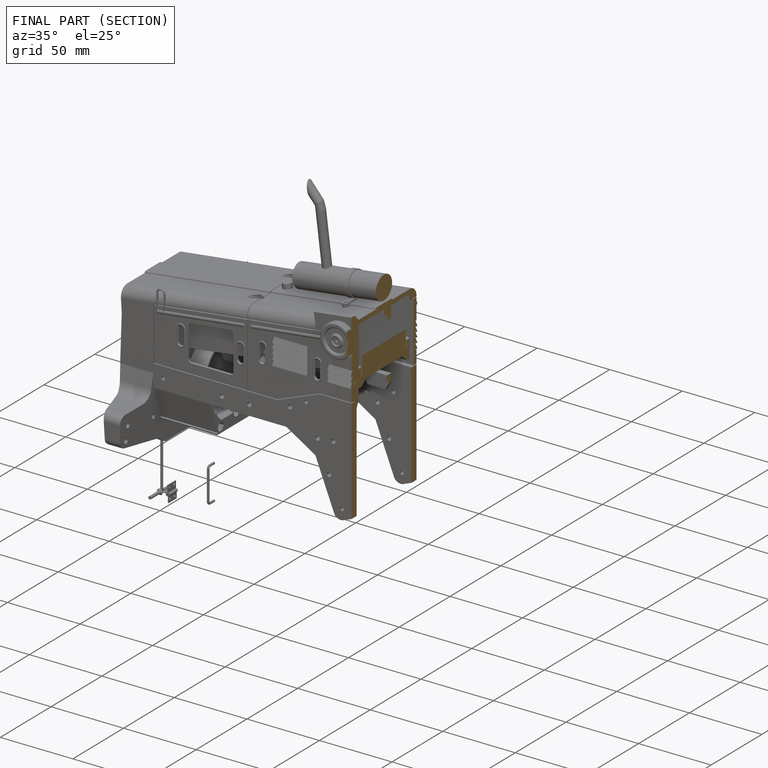
[diagram: finished part — half-section view (interior)]
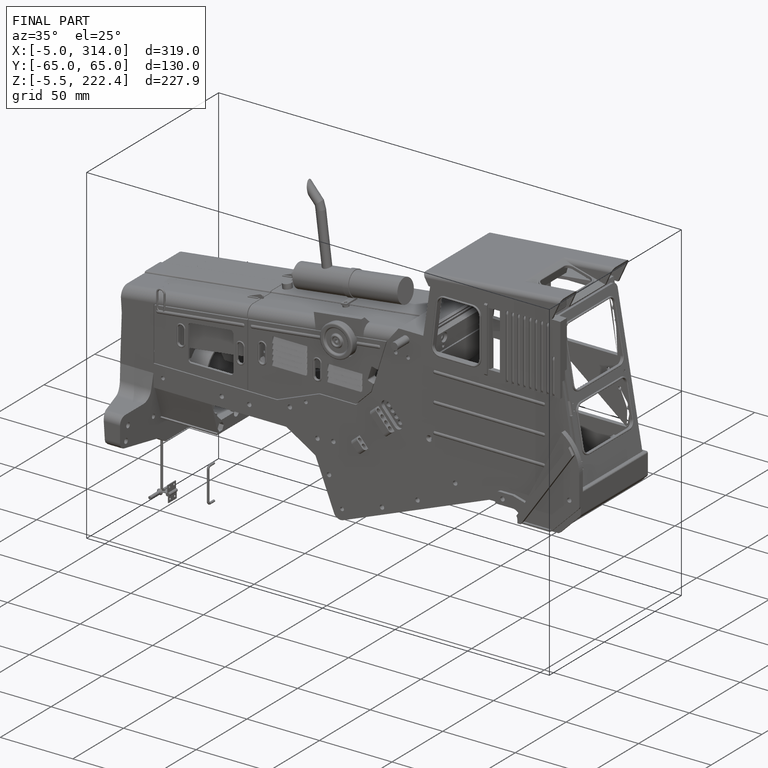
[diagram: finished part — iso view with bounding-box wireframe]
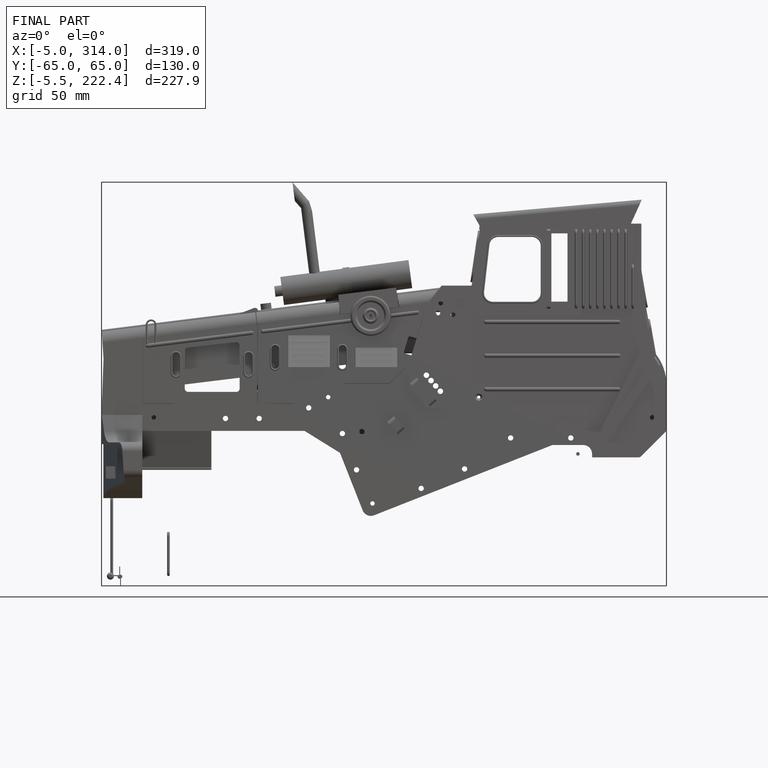
[diagram: finished part — front view with bounding-box wireframe]
